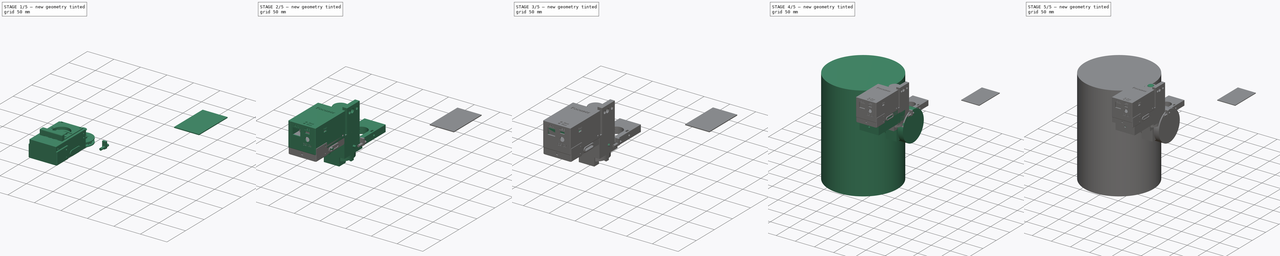
[diagram: build sequence overview — one tinted view per stage of 5, left to right]
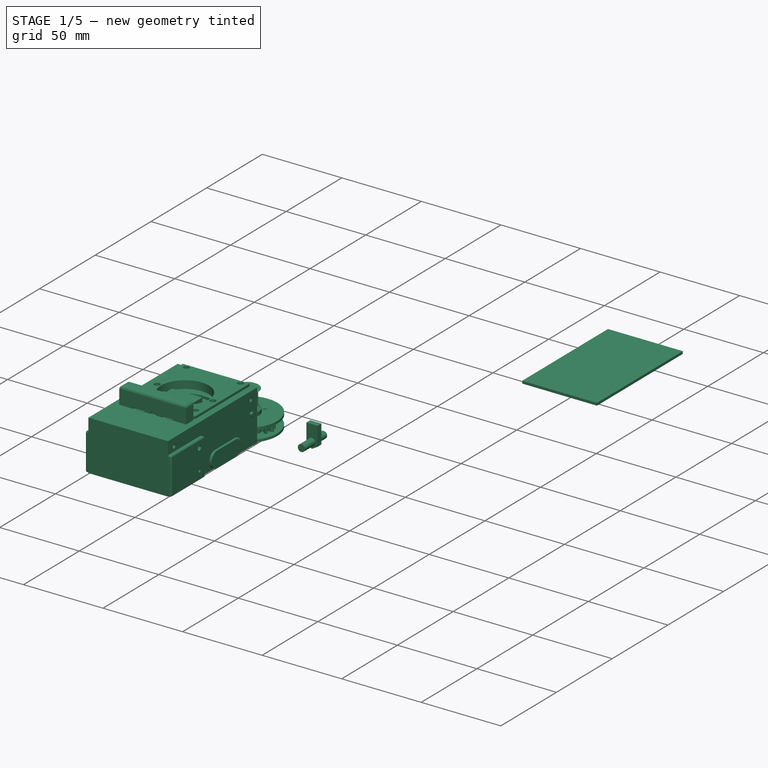
[diagram: stage 1 of 5 — iso view after this stage's code; geometry added in this stage tinted green]
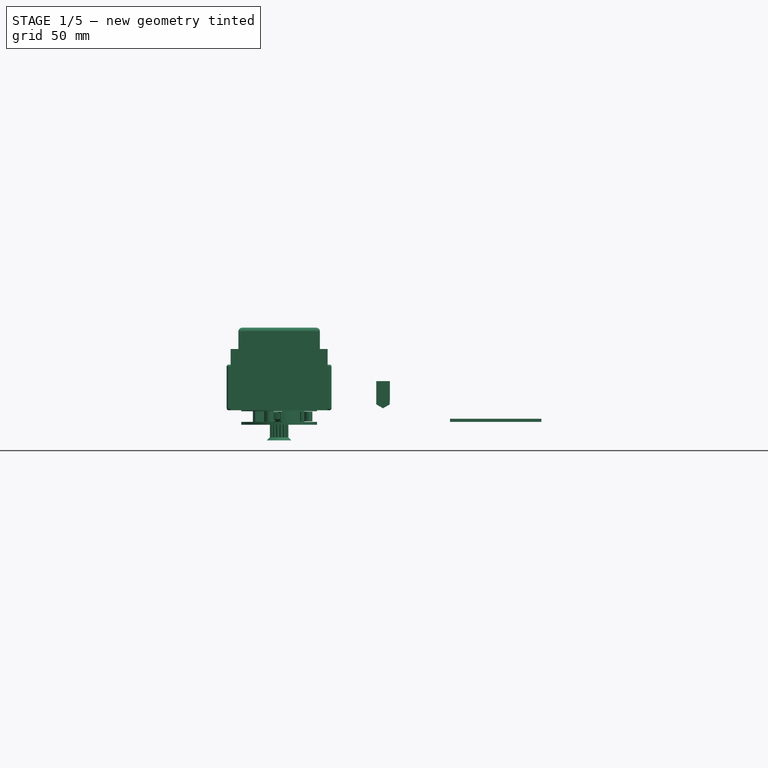
[diagram: stage 1 of 5 — front view after this stage's code; geometry added in this stage tinted green]
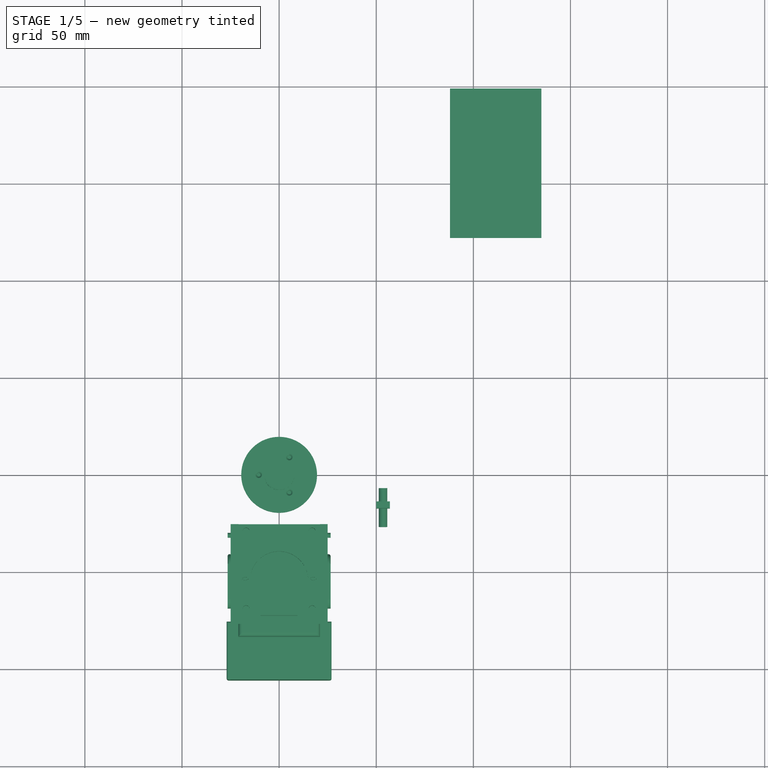
[diagram: stage 1 of 5 — top view after this stage's code; geometry added in this stage tinted green]
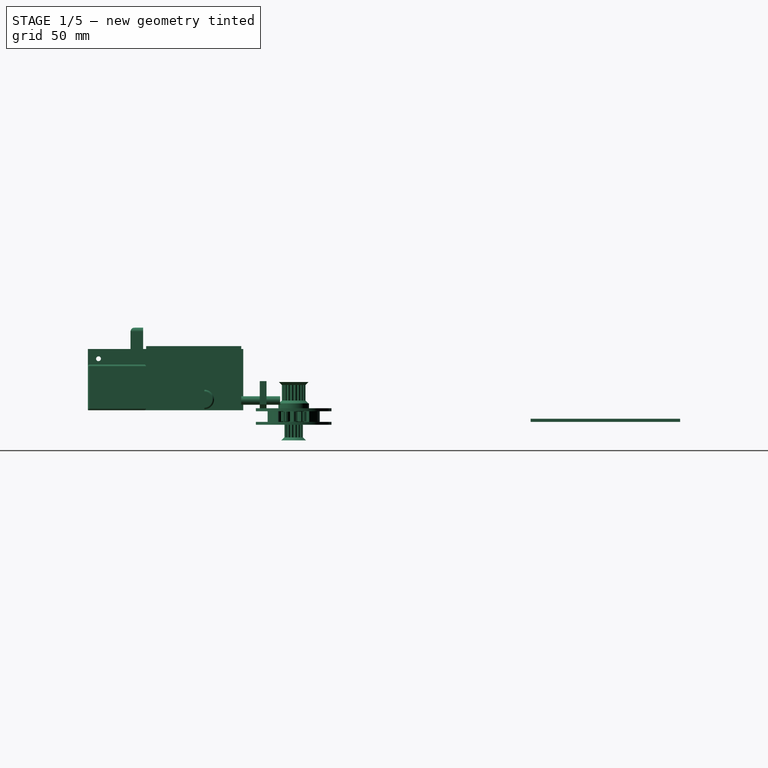
[diagram: stage 1 of 5 — right view after this stage's code; geometry added in this stage tinted green]
FCSTD DOCUMENT  (FreeCAD 0.19R24291 (Git))
Label: 28BYJ-fokuser
License: All rights reserved
LicenseURL: http://en.wikipedia.org/wiki/All_rights_reserved
objects: Part::Feature×782, Part::Cylinder×401, Part::Box×225, Part::MultiFuse×165, Part::Cut×79, Part::Extrusion×34, Part::Fillet×32, App::Part×28, Sketcher::SketchObject×24, Part::FeaturePython×10, Part::Part2DObjectPython×10, Part::Chamfer×5, Part::Sphere×1
note: 1768 computed .brp shape members not serialized (recipe doc carries the construction recipe); baked Part::Feature solids carry a one-line shape summary decoded from their .brp

FEATURE [App::Part] Part018  label="GSO"
  Group = -> [Fillet028003005,Cylinder112024025003003006010004276004,Cylinder112024025003003006010004264,Cylinder112024025003003006010004276005,Cylinder112024025003003006010004276,Cylinder112024025003003006010004276003,Cylinder112024025003003006010004276006,Cylinder112024025003003006010004276007,Fusion005043005007002078054,Fusion005043005007002078053,Cylinder112024025003003006010004263,+94 more]
  Origin = -> Origin018
FEATURE [Part::Feature] Shape312
  shape: bbox 0.6 x 0.6 x 2e-07 mm, 0 faces, 0 solids (baked)
FEATURE [Part::Feature] Shape292
  shape: bbox 2e-07 x 10.17 x 2e-07 mm, 0 faces, 0 solids (baked)
FEATURE [Part::Feature] Shape315
  shape: bbox 3.2 x 1.594 x 2e-07 mm, 0 faces, 0 solids (baked)
FEATURE [Part::Feature] Shape326
  shape: bbox 3 x 3 x 2e-07 mm, 0 faces, 0 solids (baked)
FEATURE [Part::Feature] Shape328
  shape: bbox 0.9 x 0.9 x 2e-07 mm, 0 faces, 0 solids (baked)
FEATURE [Part::Feature] Shape330
  shape: bbox 0.9 x 0.9 x 2e-07 mm, 0 faces, 0 solids (baked)
FEATURE [Part::Feature] Shape321
  shape: bbox 3.5 x 3.5 x 2e-07 mm, 0 faces, 0 solids (baked)
FEATURE [Part::Feature] Shape337
  shape: bbox 1.524 x 1.524 x 2e-07 mm, 0 faces, 0 solids (baked)
FEATURE [Part::Feature] Shape285
  shape: bbox 2e-07 x 15.5 x 2e-07 mm, 0 faces, 0 solids (baked)
FEATURE [Part::Feature] Shape320
  shape: bbox 3 x 3 x 2e-07 mm, 0 faces, 0 solids (baked)
FEATURE [Part::Feature] Shape313
  shape: bbox 4.4 x 2.2 x 2e-07 mm, 0 faces, 0 solids (baked)
FEATURE [Part::Feature] Shape332
  shape: bbox 0.9 x 0.9 x 2e-07 mm, 0 faces, 0 solids (baked)
FEATURE [Part::Feature] Shape283
  shape: bbox 2e-07 x 5.08 x 2e-07 mm, 0 faces, 0 solids (baked)
FEATURE [Part::Feature] Shape297
  shape: bbox 2e-07 x 1.016 x 2e-07 mm, 0 faces, 0 solids (baked)
FEATURE [Part::Feature] Shape317
  shape: bbox 12 x 12 x 2e-07 mm, 0 faces, 0 solids (baked)
FEATURE [Part::Feature] Shape343
  shape: bbox 1.524 x 1.524 x 2e-07 mm, 0 faces, 0 solids (baked)
FEATURE [Part::Feature] Shape336
  shape: bbox 0.9144 x 0.9144 x 2e-07 mm, 0 faces, 0 solids (baked)
FEATURE [Part::Feature] Shape344
  shape: bbox 0.9144 x 0.9144 x 2e-07 mm, 0 faces, 0 solids (baked)
FEATURE [Part::Feature] Shape323
  shape: bbox 3.5 x 3.5 x 2e-07 mm, 0 faces, 0 solids (baked)
FEATURE [Part::Feature] Shape333
  shape: bbox 1.651 x 1.651 x 2e-07 mm, 0 faces, 0 solids (baked)
FEATURE [Part::Feature] Shape290
  shape: bbox 7.517 x 2e-07 x 2e-07 mm, 0 faces, 0 solids (baked)
FEATURE [Part::Feature] Shape309
  shape: bbox 6.1 x 3.154 x 2e-07 mm, 0 faces, 0 solids (baked)
FEATURE [Part::Feature] Shape345
  shape: bbox 1.524 x 1.524 x 2e-07 mm, 0 faces, 0 solids (baked)
FEATURE [Part::Feature] Shape331
  shape: bbox 1.651 x 1.651 x 2e-07 mm, 0 faces, 0 solids (baked)
FEATURE [Part::Feature] Shape346
  shape: bbox 0.9144 x 0.9144 x 2e-07 mm, 0 faces, 0 solids (baked)
FEATURE [Part::Feature] Shape291
  shape: bbox 7.513 x 2e-07 x 2e-07 mm, 0 faces, 0 solids (baked)
FEATURE [Part::Feature] Shape293
  shape: bbox 7.513 x 2e-07 x 2e-07 mm, 0 faces, 0 solids (baked)
FEATURE [Part::Feature] Shape308
  shape: bbox 9.758 x 8.689 x 2e-07 mm, 0 faces, 0 solids (baked)
FEATURE [Part::Feature] Shape286
  shape: bbox 2e-07 x 15.5 x 2e-07 mm, 0 faces, 0 solids (baked)
FEATURE [Part::Feature] Shape287
  shape: bbox 18.16 x 2e-07 x 2e-07 mm, 0 faces, 0 solids (baked)
FEATURE [Part::Feature] Shape299
  shape: bbox 2e-07 x 2.032 x 2e-07 mm, 0 faces, 0 solids (baked)
FEATURE [Part::Feature] Shape294
  shape: bbox 7.517 x 2e-07 x 2e-07 mm, 0 faces, 0 solids (baked)
FEATURE [Part::Feature] Shape304
  shape: bbox 4 x 3.547 x 2e-07 mm, 0 faces, 0 solids (baked)
FEATURE [Part::Feature] Shape284
  shape: bbox 18.16 x 2e-07 x 2e-07 mm, 0 faces, 0 solids (baked)
FEATURE [Part::Feature] Shape302
  shape: bbox 1.27 x 2e-07 x 2e-07 mm, 0 faces, 0 solids (baked)
FEATURE [Part::Feature] Shape295
  shape: bbox 1.016 x 2e-07 x 2e-07 mm, 0 faces, 0 solids (baked)
FEATURE [Part::Feature] Shape305
  shape: bbox 0.6 x 0.6 x 2e-07 mm, 0 faces, 0 solids (baked)
FEATURE [Part::Feature] Shape306
  shape: bbox 0.25 x 0.25 x 2e-07 mm, 0 faces, 0 solids (baked)
FEATURE [Part::Feature] Shape310
  shape: bbox 0.3 x 0.3 x 2e-07 mm, 0 faces, 0 solids (baked)
FEATURE [Part::Feature] Shape314
  shape: bbox 4.4 x 2.2 x 2e-07 mm, 0 faces, 0 solids (baked)
FEATURE [Part::Feature] Shape301
  shape: bbox 2e-07 x 0.762 x 2e-07 mm, 0 faces, 0 solids (baked)
FEATURE [Part::Feature] Shape318
  shape: bbox 2.54 x 2.54 x 2e-07 mm, 0 faces, 0 solids (baked)
FEATURE [Part::Feature] Shape303
  shape: bbox 4 x 3.547 x 2e-07 mm, 0 faces, 0 solids (baked)
FEATURE [Part::Feature] Shape322
  shape: bbox 3 x 3 x 2e-07 mm, 0 faces, 0 solids (baked)
FEATURE [Part::Feature] Shape288
  shape: bbox 7.513 x 2e-07 x 2e-07 mm, 0 faces, 0 solids (baked)
FEATURE [Part::Feature] Shape289
  shape: bbox 7.521 x 2e-07 x 2e-07 mm, 0 faces, 0 solids (baked)
FEATURE [Part::Feature] Shape298
  shape: bbox 1.016 x 2e-07 x 2e-07 mm, 0 faces, 0 solids (baked)
FEATURE [Part::Feature] Shape300
  shape: bbox 2e-07 x 0.254 x 2e-07 mm, 0 faces, 0 solids (baked)
FEATURE [Part::Feature] Shape296
  shape: bbox 2e-07 x 1.016 x 2e-07 mm, 0 faces, 0 solids (baked)
FEATURE [Part::Feature] Shape307
  shape: bbox 1.27 x 0.635 x 2e-07 mm, 0 faces, 0 solids (baked)
FEATURE [Part::Feature] Shape311
  shape: bbox 1.27 x 0.635 x 2e-07 mm, 0 faces, 0 solids (baked)
FEATURE [Part::Feature] Shape316
  shape: bbox 3.2 x 1.594 x 2e-07 mm, 0 faces, 0 solids (baked)
FEATURE [Part::Feature] Shape319
  shape: bbox 8 x 8 x 2e-07 mm, 0 faces, 0 solids (baked)
FEATURE [Part::Feature] Shape324
  shape: bbox 3 x 3 x 2e-07 mm, 0 faces, 0 solids (baked)
FEATURE [Part::Feature] Shape325
  shape: bbox 3.5 x 3.5 x 2e-07 mm, 0 faces, 0 solids (baked)
FEATURE [Part::Feature] Shape327
  shape: bbox 3.5 x 3.5 x 2e-07 mm, 0 faces, 0 solids (baked)
FEATURE [Part::Feature] Shape329
  shape: bbox 1.651 x 1.651 x 2e-07 mm, 0 faces, 0 solids (baked)
FEATURE [Part::Feature] Shape334
  shape: bbox 0.9 x 0.9 x 2e-07 mm, 0 faces, 0 solids (baked)
FEATURE [Part::Feature] Shape335
  shape: bbox 1.651 x 1.651 x 2e-07 mm, 0 faces, 0 solids (baked)
FEATURE [Part::Feature] Shape339
  shape: bbox 1.524 x 1.524 x 2e-07 mm, 0 faces, 0 solids (baked)
FEATURE [Part::Feature] Shape338
  shape: bbox 0.9144 x 0.9144 x 2e-07 mm, 0 faces, 0 solids (baked)
FEATURE [Part::Feature] Shape340
  shape: bbox 0.9144 x 0.9144 x 2e-07 mm, 0 faces, 0 solids (baked)
FEATURE [Part::Feature] Shape341
  shape: bbox 1.524 x 1.524 x 2e-07 mm, 0 faces, 0 solids (baked)
FEATURE [Part::Feature] Shape342
  shape: bbox 0.9144 x 0.9144 x 2e-07 mm, 0 faces, 0 solids (baked)
FEATURE [Part::Feature] Shape365
  shape: bbox 1.575 x 1.575 x 2e-07 mm, 0 faces, 0 solids (baked)
FEATURE [Part::Feature] Shape369
  shape: bbox 1.905 x 1.905 x 2e-07 mm, 0 faces, 0 solids (baked)
FEATURE [Part::Feature] Shape374
  shape: bbox 1 x 1 x 2e-07 mm, 0 faces, 0 solids (baked)
FEATURE [Part::Feature] Shape361
  shape: bbox 1.575 x 1.575 x 2e-07 mm, 0 faces, 0 solids (baked)
FEATURE [Part::Feature] Shape375
  shape: bbox 2.159 x 2.159 x 2e-07 mm, 0 faces, 0 solids (baked)
FEATURE [Part::Feature] Shape356
  shape: bbox 1.016 x 1.016 x 2e-07 mm, 0 faces, 0 solids (baked)
FEATURE [Part::Feature] Shape353
  shape: bbox 1.88 x 1.88 x 2e-07 mm, 0 faces, 0 solids (baked)
FEATURE [Part::Feature] Shape370
  shape: bbox 1 x 1 x 2e-07 mm, 0 faces, 0 solids (baked)
FEATURE [Part::Feature] Shape352
  shape: bbox 1.016 x 1.016 x 2e-07 mm, 0 faces, 0 solids (baked)
FEATURE [Part::Feature] Shape376
  shape: bbox 1 x 1 x 2e-07 mm, 0 faces, 0 solids (baked)
FEATURE [Part::Feature] Shape350
  shape: bbox 1.016 x 1.016 x 2e-07 mm, 0 faces, 0 solids (baked)
FEATURE [Part::Feature] Shape358
  shape: bbox 0.889 x 0.889 x 2e-07 mm, 0 faces, 0 solids (baked)
FEATURE [Part::Feature] Shape377
  shape: bbox 2.159 x 2.159 x 2e-07 mm, 0 faces, 0 solids (baked)
FEATURE [Part::Feature] Shape351
  shape: bbox 1.88 x 1.88 x 2e-07 mm, 0 faces, 0 solids (baked)
FEATURE [Part::Feature] Shape378
  shape: bbox 1.2 x 1.2 x 2e-07 mm, 0 faces, 0 solids (baked)
FEATURE [Part::Feature] Shape379
  shape: bbox 1.8 x 1.8 x 2e-07 mm, 0 faces, 0 solids (baked)
FEATURE [Part::Feature] Shape363
  shape: bbox 1.575 x 1.575 x 2e-07 mm, 0 faces, 0 solids (baked)
FEATURE [Part::Feature] Shape380
  shape: bbox 1.2 x 1.2 x 2e-07 mm, 0 faces, 0 solids (baked)
FEATURE [Part::Feature] Shape381
  shape: bbox 1.8 x 1.8 x 2e-07 mm, 0 faces, 0 solids (baked)
FEATURE [Part::Feature] Shape382
  shape: bbox 0.9 x 0.9 x 2e-07 mm, 0 faces, 0 solids (baked)
FEATURE [Part::Feature] Shape383
  shape: bbox 1.5 x 1.5 x 2e-07 mm, 0 faces, 0 solids (baked)
FEATURE [Part::Feature] Shape384
  shape: bbox 0.9 x 0.9 x 2e-07 mm, 0 faces, 0 solids (baked)
FEATURE [Part::Feature] Shape385
  shape: bbox 1.5 x 1.5 x 2e-07 mm, 0 faces, 0 solids (baked)
FEATURE [Part::Feature] Shape372
  shape: bbox 1 x 1 x 2e-07 mm, 0 faces, 0 solids (baked)
FEATURE [Part::Feature] Shape360
  shape: bbox 0.889 x 0.889 x 2e-07 mm, 0 faces, 0 solids (baked)
FEATURE [Part::Feature] Shape362
  shape: bbox 0.889 x 0.889 x 2e-07 mm, 0 faces, 0 solids (baked)
FEATURE [Part::Feature] Shape367
  shape: bbox 1.905 x 1.905 x 2e-07 mm, 0 faces, 0 solids (baked)
FEATURE [Part::Feature] Shape386
  shape: bbox 0.9 x 0.9 x 2e-07 mm, 0 faces, 0 solids (baked)
FEATURE [Part::Feature] Shape357
  shape: bbox 1.88 x 1.88 x 2e-07 mm, 0 faces, 0 solids (baked)
FEATURE [Part::Feature] Shape348
  shape: bbox 0.9144 x 0.9144 x 2e-07 mm, 0 faces, 0 solids (baked)
FEATURE [Part::Feature] Shape347
  shape: bbox 1.524 x 1.524 x 2e-07 mm, 0 faces, 0 solids (baked)
FEATURE [Part::Feature] Shape355
  shape: bbox 1.88 x 1.88 x 2e-07 mm, 0 faces, 0 solids (baked)
FEATURE [Part::Feature] Shape359
  shape: bbox 1.575 x 1.575 x 2e-07 mm, 0 faces, 0 solids (baked)
FEATURE [Part::Feature] Shape368
  shape: bbox 1.118 x 1.118 x 2e-07 mm, 0 faces, 0 solids (baked)
FEATURE [Part::Feature] Shape366
  shape: bbox 1.118 x 1.118 x 2e-07 mm, 0 faces, 0 solids (baked)
FEATURE [Part::Feature] Shape364
  shape: bbox 0.889 x 0.889 x 2e-07 mm, 0 faces, 0 solids (baked)
FEATURE [Part::Feature] Shape371
  shape: bbox 2.159 x 2.159 x 2e-07 mm, 0 faces, 0 solids (baked)
FEATURE [Part::Feature] Shape349
  shape: bbox 1.524 x 1.524 x 2e-07 mm, 0 faces, 0 solids (baked)
FEATURE [Part::Feature] Shape354
  shape: bbox 1.016 x 1.016 x 2e-07 mm, 0 faces, 0 solids (baked)
FEATURE [Part::Feature] Shape373
  shape: bbox 2.159 x 2.159 x 2e-07 mm, 0 faces, 0 solids (baked)
FEATURE [Part::Feature] Shape431
  shape: bbox 1.5 x 1.5 x 2e-07 mm, 0 faces, 0 solids (baked)
FEATURE [Part::Feature] Shape436
  shape: bbox 0.9144 x 0.9144 x 2e-07 mm, 0 faces, 0 solids (baked)
FEATURE [Part::Feature] Shape438
  shape: bbox 0.9144 x 0.9144 x 2e-07 mm, 0 faces, 0 solids (baked)
FEATURE [Part::Feature] Shape441
  shape: bbox 1.524 x 1.524 x 2e-07 mm, 0 faces, 0 solids (baked)
FEATURE [Part::Feature] Shape408
  shape: bbox 0.9 x 0.9 x 2e-07 mm, 0 faces, 0 solids (baked)
FEATURE [Part::Feature] Shape413
  shape: bbox 1.5 x 1.5 x 2e-07 mm, 0 faces, 0 solids (baked)
FEATURE [Part::Feature] Shape415
  shape: bbox 1.5 x 1.5 x 2e-07 mm, 0 faces, 0 solids (baked)
FEATURE [Part::Feature] Shape428
  shape: bbox 0.9 x 0.9 x 2e-07 mm, 0 faces, 0 solids (baked)
FEATURE [Part::Feature] Shape414
  shape: bbox 0.9 x 0.9 x 2e-07 mm, 0 faces, 0 solids (baked)
FEATURE [Part::Feature] Shape439
  shape: bbox 1.524 x 1.524 x 2e-07 mm, 0 faces, 0 solids (baked)
FEATURE [Part::Feature] Shape393
  shape: bbox 1.5 x 1.5 x 2e-07 mm, 0 faces, 0 solids (baked)
FEATURE [Part::Feature] Shape390
  shape: bbox 0.9 x 0.9 x 2e-07 mm, 0 faces, 0 solids (baked)
FEATURE [Part::Feature] Shape420
  shape: bbox 0.9 x 0.9 x 2e-07 mm, 0 faces, 0 solids (baked)
FEATURE [Part::Feature] Shape419
  shape: bbox 1.5 x 1.5 x 2e-07 mm, 0 faces, 0 solids (baked)
FEATURE [Part::Feature] Shape394
  shape: bbox 0.9 x 0.9 x 2e-07 mm, 0 faces, 0 solids (baked)
FEATURE [Part::Feature] Shape396
  shape: bbox 0.9 x 0.9 x 2e-07 mm, 0 faces, 0 solids (baked)
FEATURE [Part::Feature] Shape401
  shape: bbox 1.5 x 1.5 x 2e-07 mm, 0 faces, 0 solids (baked)
FEATURE [Part::Feature] Shape387
  shape: bbox 1.5 x 1.5 x 2e-07 mm, 0 faces, 0 solids (baked)
FEATURE [Part::Feature] Shape388
  shape: bbox 0.9 x 0.9 x 2e-07 mm, 0 faces, 0 solids (baked)
FEATURE [Part::Feature] Shape398
  shape: bbox 0.9 x 0.9 x 2e-07 mm, 0 faces, 0 solids (baked)
FEATURE [Part::Feature] Shape399
  shape: bbox 1.5 x 1.5 x 2e-07 mm, 0 faces, 0 solids (baked)
FEATURE [Part::Feature] Shape405
  shape: bbox 1.5 x 1.5 x 2e-07 mm, 0 faces, 0 solids (baked)
FEATURE [Part::Feature] Shape412
  shape: bbox 0.9 x 0.9 x 2e-07 mm, 0 faces, 0 solids (baked)
FEATURE [Part::Feature] Shape403
  shape: bbox 1.5 x 1.5 x 2e-07 mm, 0 faces, 0 solids (baked)
FEATURE [Part::Feature] Shape421
  shape: bbox 1.5 x 1.5 x 2e-07 mm, 0 faces, 0 solids (baked)
FEATURE [Part::Feature] Shape424
  shape: bbox 0.9 x 0.9 x 2e-07 mm, 0 faces, 0 solids (baked)
FEATURE [Part::Feature] Shape425
  shape: bbox 1.5 x 1.5 x 2e-07 mm, 0 faces, 0 solids (baked)
FEATURE [Part::Feature] Shape426
  shape: bbox 0.9 x 0.9 x 2e-07 mm, 0 faces, 0 solids (baked)
FEATURE [Part::Feature] Shape429
  shape: bbox 1.5 x 1.5 x 2e-07 mm, 0 faces, 0 solids (baked)
FEATURE [Part::Feature] Shape432
  shape: bbox 0.9 x 0.9 x 2e-07 mm, 0 faces, 0 solids (baked)
FEATURE [Part::Feature] Shape391
  shape: bbox 1.5 x 1.5 x 2e-07 mm, 0 faces, 0 solids (baked)
FEATURE [Part::Feature] Shape400
  shape: bbox 0.9 x 0.9 x 2e-07 mm, 0 faces, 0 solids (baked)
FEATURE [Part::Feature] Shape406
  shape: bbox 0.9 x 0.9 x 2e-07 mm, 0 faces, 0 solids (baked)
FEATURE [Part::Feature] Shape389
  shape: bbox 1.5 x 1.5 x 2e-07 mm, 0 faces, 0 solids (baked)
FEATURE [Part::Feature] Shape418
  shape: bbox 0.9 x 0.9 x 2e-07 mm, 0 faces, 0 solids (baked)
FEATURE [Part::Feature] Shape422
  shape: bbox 0.9 x 0.9 x 2e-07 mm, 0 faces, 0 solids (baked)
FEATURE [Part::Feature] Shape402
  shape: bbox 0.9 x 0.9 x 2e-07 mm, 0 faces, 0 solids (baked)
FEATURE [Part::Feature] Shape434
  shape: bbox 0.9 x 0.9 x 2e-07 mm, 0 faces, 0 solids (baked)
FEATURE [Part::Feature] Shape435
  shape: bbox 1.5 x 1.5 x 2e-07 mm, 0 faces, 0 solids (baked)
FEATURE [Part::Feature] Shape407
  shape: bbox 1.5 x 1.5 x 2e-07 mm, 0 faces, 0 solids (baked)
FEATURE [Part::Feature] Shape416
  shape: bbox 0.9 x 0.9 x 2e-07 mm, 0 faces, 0 solids (baked)
FEATURE [Part::Feature] Shape410
  shape: bbox 0.9 x 0.9 x 2e-07 mm, 0 faces, 0 solids (baked)
FEATURE [Part::Feature] Shape411
  shape: bbox 1.5 x 1.5 x 2e-07 mm, 0 faces, 0 solids (baked)
FEATURE [Part::Feature] Shape409
  shape: bbox 1.5 x 1.5 x 2e-07 mm, 0 faces, 0 solids (baked)
FEATURE [Part::Feature] Shape423
  shape: bbox 1.5 x 1.5 x 2e-07 mm, 0 faces, 0 solids (baked)
FEATURE [Part::Feature] Shape427
  shape: bbox 1.5 x 1.5 x 2e-07 mm, 0 faces, 0 solids (baked)
FEATURE [Part::Feature] Shape417
  shape: bbox 1.5 x 1.5 x 2e-07 mm, 0 faces, 0 solids (baked)
FEATURE [Part::Feature] Shape430
  shape: bbox 0.9 x 0.9 x 2e-07 mm, 0 faces, 0 solids (baked)
FEATURE [Part::Feature] Shape404
  shape: bbox 0.9 x 0.9 x 2e-07 mm, 0 faces, 0 solids (baked)
FEATURE [Part::Feature] Shape392
  shape: bbox 0.9 x 0.9 x 2e-07 mm, 0 faces, 0 solids (baked)
FEATURE [Part::Feature] Shape395
  shape: bbox 1.5 x 1.5 x 2e-07 mm, 0 faces, 0 solids (baked)
FEATURE [Part::Feature] Shape397
  shape: bbox 1.5 x 1.5 x 2e-07 mm, 0 faces, 0 solids (baked)
FEATURE [Part::Feature] Shape433
  shape: bbox 1.5 x 1.5 x 2e-07 mm, 0 faces, 0 solids (baked)
FEATURE [Part::Feature] Shape437
  shape: bbox 1.524 x 1.524 x 2e-07 mm, 0 faces, 0 solids (baked)
FEATURE [Part::Feature] Shape440
  shape: bbox 0.9144 x 0.9144 x 2e-07 mm, 0 faces, 0 solids (baked)
FEATURE [Part::Feature] Shape442
  shape: bbox 0.9144 x 0.9144 x 2e-07 mm, 0 faces, 0 solids (baked)
FEATURE [Part::Feature] Shape443
  shape: bbox 1.524 x 1.524 x 2e-07 mm, 0 faces, 0 solids (baked)
FEATURE [Part::Feature] Shape445
  shape: bbox 1.524 x 1.524 x 2e-07 mm, 0 faces, 0 solids (baked)
FEATURE [Part::Feature] Shape446
  shape: bbox 0.9144 x 0.9144 x 2e-07 mm, 0 faces, 0 solids (baked)
FEATURE [Part::Feature] Shape447
  shape: bbox 1.524 x 1.524 x 2e-07 mm, 0 faces, 0 solids (baked)
FEATURE [Part::Feature] Shape448
  shape: bbox 0.9144 x 0.9144 x 2e-07 mm, 0 faces, 0 solids (baked)
FEATURE [Part::Feature] Shape449
  shape: bbox 1.524 x 1.524 x 2e-07 mm, 0 faces, 0 solids (baked)
FEATURE [Part::Feature] Shape444
  shape: bbox 0.9144 x 0.9144 x 2e-07 mm, 0 faces, 0 solids (baked)
FEATURE [Part::Feature] Shape450
  shape: bbox 0.9144 x 0.9144 x 2e-07 mm, 0 faces, 0 solids (baked)
FEATURE [Part::Feature] Shape477
  shape: bbox 1.524 x 1.524 x 2e-07 mm, 0 faces, 0 solids (baked)
FEATURE [Part::Feature] Shape482
  shape: bbox 0.9144 x 0.9144 x 2e-07 mm, 0 faces, 0 solids (baked)
FEATURE [Part::Feature] Shape463
  shape: bbox 1.88 x 1.88 x 2e-07 mm, 0 faces, 0 solids (baked)
FEATURE [Part::Feature] Shape457
  shape: bbox 2 x 2 x 2e-07 mm, 0 faces, 0 solids (baked)
FEATURE [Part::Feature] Shape487
  shape: bbox 1.524 x 1.524 x 2e-07 mm, 0 faces, 0 solids (baked)
FEATURE [Part::Feature] Shape452
  shape: bbox 0.9 x 0.9 x 2e-07 mm, 0 faces, 0 solids (baked)
FEATURE [Part::Feature] Shape468
  shape: bbox 0.8992 x 0.8992 x 2e-07 mm, 0 faces, 0 solids (baked)
FEATURE [Part::Feature] Shape451
  shape: bbox 1.524 x 1.524 x 2e-07 mm, 0 faces, 0 solids (baked)
FEATURE [Part::Feature] Shape483
  shape: bbox 1.524 x 1.524 x 2e-07 mm, 0 faces, 0 solids (baked)
FEATURE [Part::Feature] Shape488
  shape: bbox 0.9144 x 0.9144 x 2e-07 mm, 0 faces, 0 solids (baked)
FEATURE [Part::Feature] Shape459
  shape: bbox 2 x 2 x 2e-07 mm, 0 faces, 0 solids (baked)
FEATURE [Part::Feature] Shape465
  shape: bbox 1.7 x 1.7 x 2e-07 mm, 0 faces, 0 solids (baked)
FEATURE [Part::Feature] Shape460
  shape: bbox 0.8992 x 0.8992 x 2e-07 mm, 0 faces, 0 solids (baked)
FEATURE [Part::Feature] Shape454
  shape: bbox 0.9 x 0.9 x 2e-07 mm, 0 faces, 0 solids (baked)
FEATURE [Part::Feature] Shape467
  shape: bbox 1.88 x 1.88 x 2e-07 mm, 0 faces, 0 solids (baked)
FEATURE [Part::Feature] Shape469
  shape: bbox 1.88 x 1.88 x 2e-07 mm, 0 faces, 0 solids (baked)
FEATURE [Part::Feature] Shape462
  shape: bbox 0.8992 x 0.8992 x 2e-07 mm, 0 faces, 0 solids (baked)
FEATURE [Part::Feature] Shape472
  shape: bbox 0.8992 x 0.8992 x 2e-07 mm, 0 faces, 0 solids (baked)
FEATURE [Part::Feature] Shape484
  shape: bbox 0.9144 x 0.9144 x 2e-07 mm, 0 faces, 0 solids (baked)
FEATURE [Part::Feature] Shape489
  shape: bbox 1.524 x 1.524 x 2e-07 mm, 0 faces, 0 solids (baked)
FEATURE [Part::Feature] Shape474
  shape: bbox 0.9144 x 0.9144 x 2e-07 mm, 0 faces, 0 solids (baked)
FEATURE [Part::Feature] Shape475
  shape: bbox 1.524 x 1.524 x 2e-07 mm, 0 faces, 0 solids (baked)
FEATURE [Part::Feature] Shape478
  shape: bbox 0.9144 x 0.9144 x 2e-07 mm, 0 faces, 0 solids (baked)
FEATURE [Part::Feature] Shape480
  shape: bbox 0.9144 x 0.9144 x 2e-07 mm, 0 faces, 0 solids (baked)
FEATURE [Part::Feature] Shape476
  shape: bbox 0.9144 x 0.9144 x 2e-07 mm, 0 faces, 0 solids (baked)
FEATURE [Part::Feature] Shape473
  shape: bbox 1.88 x 1.88 x 2e-07 mm, 0 faces, 0 solids (baked)
FEATURE [Part::Feature] Shape458
  shape: bbox 1.3 x 1.3 x 2e-07 mm, 0 faces, 0 solids (baked)
FEATURE [Part::Feature] Shape479
  shape: bbox 1.524 x 1.524 x 2e-07 mm, 0 faces, 0 solids (baked)
FEATURE [Part::Feature] Shape481
  shape: bbox 1.524 x 1.524 x 2e-07 mm, 0 faces, 0 solids (baked)
FEATURE [Part::Feature] Shape485
  shape: bbox 1.524 x 1.524 x 2e-07 mm, 0 faces, 0 solids (baked)
FEATURE [Part::Feature] Shape464
  shape: bbox 1.1 x 1.1 x 2e-07 mm, 0 faces, 0 solids (baked)
FEATURE [Part::Feature] Shape453
  shape: bbox 1.8 x 1.8 x 2e-07 mm, 0 faces, 0 solids (baked)
FEATURE [Part::Feature] Shape486
  shape: bbox 0.9144 x 0.9144 x 2e-07 mm, 0 faces, 0 solids (baked)
FEATURE [Part::Feature] Shape455
  shape: bbox 1.8 x 1.8 x 2e-07 mm, 0 faces, 0 solids (baked)
FEATURE [Part::Feature] Shape470
  shape: bbox 0.8992 x 0.8992 x 2e-07 mm, 0 faces, 0 solids (baked)
FEATURE [Part::Feature] Shape456
  shape: bbox 1.3 x 1.3 x 2e-07 mm, 0 faces, 0 solids (baked)
FEATURE [Part::Feature] Shape490
  shape: bbox 0.9144 x 0.9144 x 2e-07 mm, 0 faces, 0 solids (baked)
FEATURE [Part::Feature] Shape471
  shape: bbox 1.88 x 1.88 x 2e-07 mm, 0 faces, 0 solids (baked)
FEATURE [Part::Feature] Shape461
  shape: bbox 1.88 x 1.88 x 2e-07 mm, 0 faces, 0 solids (baked)
FEATURE [Part::Feature] Shape466
  shape: bbox 0.8992 x 0.8992 x 2e-07 mm, 0 faces, 0 solids (baked)
FEATURE [Part::Feature] Shape563
  shape: bbox 1.118 x 1.118 x 2e-07 mm, 0 faces, 0 solids (baked)
FEATURE [Part::Feature] Shape579
  shape: bbox 3.3 x 3.3 x 2e-07 mm, 0 faces, 0 solids (baked)
FEATURE [Part::Feature] Shape543
  shape: bbox 1 x 1 x 2e-07 mm, 0 faces, 0 solids (baked)
FEATURE [Part::Feature] Shape568
  shape: bbox 0.9 x 0.9 x 2e-07 mm, 0 faces, 0 solids (baked)
FEATURE [Part::Feature] Shape551
  shape: bbox 2e-07 x 1.88 x 2e-07 mm, 0 faces, 0 solids (baked)
FEATURE [Part::Feature] Shape560
  shape: bbox 1.575 x 2e-07 x 2e-07 mm, 0 faces, 0 solids (baked)
FEATURE [Part::Feature] Shape545
  shape: bbox 1.6 x 2e-07 x 2e-07 mm, 0 faces, 0 solids (baked)
FEATURE [Part::Feature] Shape532
  shape: bbox 1.6 x 0.8 x 2e-07 mm, 0 faces, 0 solids (baked)
FEATURE [Part::Feature] Shape548
  shape: bbox 1.016 x 1.016 x 2e-07 mm, 0 faces, 0 solids (baked)
FEATURE [Part::Feature] Shape552
  shape: bbox 1.88 x 2e-07 x 2e-07 mm, 0 faces, 0 solids (baked)
FEATURE [Part::Feature] Shape539
  shape: bbox 1 x 1 x 2e-07 mm, 0 faces, 0 solids (baked)
FEATURE [Part::Feature] Shape538
  shape: bbox 1.6 x 0.8 x 2e-07 mm, 0 faces, 0 solids (baked)
FEATURE [Part::Feature] Shape561
  shape: bbox 2e-07 x 1.575 x 2e-07 mm, 0 faces, 0 solids (baked)
FEATURE [Part::Feature] Shape541
  shape: bbox 1.6 x 0.8 x 2e-07 mm, 0 faces, 0 solids (baked)
FEATURE [Part::Feature] Shape540
  shape: bbox 1.6 x 0.8 x 2e-07 mm, 0 faces, 0 solids (baked)
FEATURE [Part::Feature] Shape534
  shape: bbox 1.6 x 0.8 x 2e-07 mm, 0 faces, 0 solids (baked)
FEATURE [Part::Feature] Shape557
  shape: bbox 2e-07 x 1.575 x 2e-07 mm, 0 faces, 0 solids (baked)
FEATURE [Part::Feature] Shape558
  shape: bbox 0.889 x 0.889 x 2e-07 mm, 0 faces, 0 solids (baked)
FEATURE [Part::Feature] Shape566
  shape: bbox 1.905 x 2e-07 x 2e-07 mm, 0 faces, 0 solids (baked)
FEATURE [Part::Feature] Shape555
  shape: bbox 2e-07 x 1.575 x 2e-07 mm, 0 faces, 0 solids (baked)
FEATURE [Part::Feature] Shape556
  shape: bbox 1.575 x 2e-07 x 2e-07 mm, 0 faces, 0 solids (baked)
FEATURE [Part::Feature] Shape567
  shape: bbox 2e-07 x 1.905 x 2e-07 mm, 0 faces, 0 solids (baked)
FEATURE [Part::Feature] Shape544
  shape: bbox 2e-07 x 1.6 x 2e-07 mm, 0 faces, 0 solids (baked)
FEATURE [Part::Feature] Shape569
  shape: bbox 1.5 x 2e-07 x 2e-07 mm, 0 faces, 0 solids (baked)
FEATURE [Part::Feature] Shape546
  shape: bbox 2e-07 x 1.6 x 2e-07 mm, 0 faces, 0 solids (baked)
FEATURE [Part::Feature] Shape559
  shape: bbox 2e-07 x 1.575 x 2e-07 mm, 0 faces, 0 solids (baked)
FEATURE [Part::Feature] Shape571
  shape: bbox 1.5 x 2e-07 x 2e-07 mm, 0 faces, 0 solids (baked)
FEATURE [Part::Feature] Shape553
  shape: bbox 0.889 x 0.889 x 2e-07 mm, 0 faces, 0 solids (baked)
FEATURE [Part::Feature] Shape574
  shape: bbox 1.7 x 2e-07 x 2e-07 mm, 0 faces, 0 solids (baked)
FEATURE [Part::Feature] Shape537
  shape: bbox 1.6 x 0.8 x 2e-07 mm, 0 faces, 0 solids (baked)
FEATURE [Part::Feature] Shape575
  shape: bbox 2e-07 x 1.575 x 2e-07 mm, 0 faces, 0 solids (baked)
FEATURE [Part::Feature] Shape550
  shape: bbox 1.88 x 2e-07 x 2e-07 mm, 0 faces, 0 solids (baked)
FEATURE [Part::Feature] Shape564
  shape: bbox 1.905 x 2e-07 x 2e-07 mm, 0 faces, 0 solids (baked)
FEATURE [Part::Feature] Shape576
  shape: bbox 1.7 x 2e-07 x 2e-07 mm, 0 faces, 0 solids (baked)
FEATURE [Part::Feature] Shape577
  shape: bbox 2e-07 x 1.575 x 2e-07 mm, 0 faces, 0 solids (baked)
FEATURE [Part::Feature] Shape535
  shape: bbox 1.6 x 0.8 x 2e-07 mm, 0 faces, 0 solids (baked)
FEATURE [Part::Feature] Shape536
  shape: bbox 1 x 1 x 2e-07 mm, 0 faces, 0 solids (baked)
FEATURE [Part::Feature] Shape570
  shape: bbox 2e-07 x 1.5 x 2e-07 mm, 0 faces, 0 solids (baked)
FEATURE [Part::Feature] Shape533
  shape: bbox 1 x 1 x 2e-07 mm, 0 faces, 0 solids (baked)
FEATURE [Part::Feature] Shape572
  shape: bbox 2e-07 x 1.5 x 2e-07 mm, 0 faces, 0 solids (baked)
FEATURE [Part::Feature] Shape542
  shape: bbox 1 x 1 x 2e-07 mm, 0 faces, 0 solids (baked)
FEATURE [Part::Feature] Shape565
  shape: bbox 2e-07 x 1.905 x 2e-07 mm, 0 faces, 0 solids (baked)
FEATURE [Part::Feature] Shape578
  shape: bbox 0.61 x 0.61 x 2e-07 mm, 0 faces, 0 solids (baked)
FEATURE [Part::Feature] Shape547
  shape: bbox 1.6 x 2e-07 x 2e-07 mm, 0 faces, 0 solids (baked)
FEATURE [Part::Feature] Shape554
  shape: bbox 1.575 x 2e-07 x 2e-07 mm, 0 faces, 0 solids (baked)
FEATURE [Part::Feature] Shape549
  shape: bbox 2e-07 x 1.88 x 2e-07 mm, 0 faces, 0 solids (baked)
FEATURE [Part::Feature] Shape531
  shape: bbox 1.6 x 0.8 x 2e-07 mm, 0 faces, 0 solids (baked)
FEATURE [Part::Feature] Shape562
  shape: bbox 1.575 x 2e-07 x 2e-07 mm, 0 faces, 0 solids (baked)
FEATURE [Part::Feature] Shape573
  shape: bbox 1.1 x 1.1 x 2e-07 mm, 0 faces, 0 solids (baked)
FEATURE [Part::Feature] Shape580
  shape: bbox 3.3 x 3.3 x 2e-07 mm, 0 faces, 0 solids (baked)
FEATURE [Part::Feature] Shape501
  shape: bbox 1.6 x 0.8 x 2e-07 mm, 0 faces, 0 solids (baked)
FEATURE [Part::Feature] Shape507
  shape: bbox 1.6 x 0.8 x 2e-07 mm, 0 faces, 0 solids (baked)
FEATURE [Part::Feature] Shape509
  shape: bbox 1 x 1 x 2e-07 mm, 0 faces, 0 solids (baked)
FEATURE [Part::Feature] Shape493
  shape: bbox 1.524 x 1.524 x 2e-07 mm, 0 faces, 0 solids (baked)
FEATURE [Part::Feature] Shape515
  shape: bbox 1 x 1 x 2e-07 mm, 0 faces, 0 solids (baked)
FEATURE [Part::Feature] Shape504
  shape: bbox 1.6 x 0.8 x 2e-07 mm, 0 faces, 0 solids (baked)
FEATURE [Part::Feature] Shape516
  shape: bbox 1.6 x 0.8 x 2e-07 mm, 0 faces, 0 solids (baked)
FEATURE [Part::Feature] Shape505
  shape: bbox 1.6 x 0.8 x 2e-07 mm, 0 faces, 0 solids (baked)
FEATURE [Part::Feature] Shape514
  shape: bbox 1.6 x 0.8 x 2e-07 mm, 0 faces, 0 solids (baked)
FEATURE [Part::Feature] Shape517
  shape: bbox 1.6 x 0.8 x 2e-07 mm, 0 faces, 0 solids (baked)
FEATURE [Part::Feature] Shape492
  shape: bbox 0.9144 x 0.9144 x 2e-07 mm, 0 faces, 0 solids (baked)
FEATURE [Part::Feature] Shape520
  shape: bbox 1.6 x 0.8 x 2e-07 mm, 0 faces, 0 solids (baked)
FEATURE [Part::Feature] Shape524
  shape: bbox 1 x 1 x 2e-07 mm, 0 faces, 0 solids (baked)
FEATURE [Part::Feature] Shape495
  shape: bbox 1.524 x 1.524 x 2e-07 mm, 0 faces, 0 solids (baked)
FEATURE [Part::Feature] Shape512
  shape: bbox 1 x 1 x 2e-07 mm, 0 faces, 0 solids (baked)
FEATURE [Part::Feature] Shape497
  shape: bbox 1.524 x 1.524 x 2e-07 mm, 0 faces, 0 solids (baked)
FEATURE [Part::Feature] Shape498
  shape: bbox 1.6 x 0.8 x 2e-07 mm, 0 faces, 0 solids (baked)
FEATURE [Part::Feature] Shape499
  shape: bbox 1.6 x 0.8 x 2e-07 mm, 0 faces, 0 solids (baked)
FEATURE [Part::Feature] Shape508
  shape: bbox 1.6 x 0.8 x 2e-07 mm, 0 faces, 0 solids (baked)
FEATURE [Part::Feature] Shape510
  shape: bbox 1.6 x 0.8 x 2e-07 mm, 0 faces, 0 solids (baked)
FEATURE [Part::Feature] Shape494
  shape: bbox 0.9144 x 0.9144 x 2e-07 mm, 0 faces, 0 solids (baked)
FEATURE [Part::Feature] Shape513
  shape: bbox 1.6 x 0.8 x 2e-07 mm, 0 faces, 0 solids (baked)
FEATURE [Part::Feature] Shape518
  shape: bbox 1 x 1 x 2e-07 mm, 0 faces, 0 solids (baked)
FEATURE [Part::Feature] Shape522
  shape: bbox 1.6 x 0.8 x 2e-07 mm, 0 faces, 0 solids (baked)
FEATURE [Part::Feature] Shape502
  shape: bbox 1.6 x 0.8 x 2e-07 mm, 0 faces, 0 solids (baked)
FEATURE [Part::Feature] Shape525
  shape: bbox 1.6 x 0.8 x 2e-07 mm, 0 faces, 0 solids (baked)
FEATURE [Part::Feature] Shape526
  shape: bbox 1.6 x 0.8 x 2e-07 mm, 0 faces, 0 solids (baked)
FEATURE [Part::Feature] Shape527
  shape: bbox 1 x 1 x 2e-07 mm, 0 faces, 0 solids (baked)
FEATURE [Part::Feature] Shape523
  shape: bbox 1.6 x 0.8 x 2e-07 mm, 0 faces, 0 solids (baked)
FEATURE [Part::Feature] Shape500
  shape: bbox 1 x 1 x 2e-07 mm, 0 faces, 0 solids (baked)
FEATURE [Part::Feature] Shape506
  shape: bbox 1 x 1 x 2e-07 mm, 0 faces, 0 solids (baked)
FEATURE [Part::Feature] Shape511
  shape: bbox 1.6 x 0.8 x 2e-07 mm, 0 faces, 0 solids (baked)
FEATURE [Part::Feature] Shape519
  shape: bbox 1.6 x 0.8 x 2e-07 mm, 0 faces, 0 solids (baked)
FEATURE [Part::Feature] Shape491
  shape: bbox 1.524 x 1.524 x 2e-07 mm, 0 faces, 0 solids (baked)
FEATURE [Part::Feature] Shape528
  shape: bbox 1.6 x 0.8 x 2e-07 mm, 0 faces, 0 solids (baked)
FEATURE [Part::Feature] Shape529
  shape: bbox 1.6 x 0.8 x 2e-07 mm, 0 faces, 0 solids (baked)
FEATURE [Part::Feature] Shape530
  shape: bbox 1 x 1 x 2e-07 mm, 0 faces, 0 solids (baked)
FEATURE [Part::Feature] Shape503
  shape: bbox 1 x 1 x 2e-07 mm, 0 faces, 0 solids (baked)
FEATURE [Part::Feature] Shape521
  shape: bbox 1 x 1 x 2e-07 mm, 0 faces, 0 solids (baked)
FEATURE [Part::Feature] Shape496
  shape: bbox 0.9144 x 0.9144 x 2e-07 mm, 0 faces, 0 solids (baked)
FEATURE [Part::Feature] Shape581
  shape: bbox 1.704 x 2e-07 x 2e-07 mm, 0 faces, 0 solids (baked)
FEATURE [Part::Box] Box021259  label="Krychle248"
  AttacherType = Attacher::AttachEngine3D
  Height = 1.6
  Length = 47
  Placement = pos=(88,122,0) rot=(0,0,1;0rad)
  Width = 77
FEATURE [Part::Cylinder] Cylinder112024025003003006010004276080  label="Válec421"
  Angle = 360
  AttacherType = Attacher::AttachEngine3D
  Height = 53
  Placement = pos=(-26.5,-46,11.5) rot=(0,1,0;1.5708rad)
  Radius = 2.3
FEATURE [Part::Box] Box021266  label="Krychle255"
  AttacherType = Attacher::AttachEngine3D
  Height = 23.5
  Length = 50
  Placement = pos=(-25,-106,6) rot=(0,0,1;0rad)
  Width = 80
FEATURE [Part::Cylinder] Cylinder112024025003003006010004276081  label="Válec422"
  Angle = 360
  AttacherType = Attacher::AttachEngine3D
  Height = 53
  Placement = pos=(-26.5,-64,11.5) rot=(0,1,0;1.5708rad)
  Radius = 5
FEATURE [Part::Box] Box021267  label="Krychle256"
  AttacherType = Attacher::AttachEngine3D
  Height = 10
  Length = 53
  Placement = pos=(-26.5,-64,6.5) rot=(0,0,1;0rad)
  Width = 18
FEATURE [Part::Cylinder] Cylinder112024025003003006010004276082  label="cy060"
  Angle = 360
  AttacherType = Attacher::AttachEngine3D
  Height = 24
  Placement = pos=(-17.5,-53,9) rot=(0,0,1;0rad)
  Radius = 1.8
FEATURE [Part::Cylinder] Cylinder112024025003003006010004276083  label="cy061"
  Angle = 360
  AttacherType = Attacher::AttachEngine3D
  Height = 24
  Placement = pos=(17.5,-53,9) rot=(0,0,1;0rad)
  Radius = 1.8
FEATURE [Part::Cylinder] Cylinder112024025003003006010004276084  label="cy062"
  Angle = 360
  AttacherType = Attacher::AttachEngine3D
  Height = 6
  Placement = pos=(-17.5,-53,18) rot=(0,0,1;0rad)
  Radius = 3.8
FEATURE [Part::Cylinder] Cylinder112024025003003006010004276085  label="cy063"
  Angle = 360
  AttacherType = Attacher::AttachEngine3D
  Height = 6
  Placement = pos=(17.5,-53,18) rot=(0,0,1;0rad)
  Radius = 3.8
FEATURE [Part::Box] Box021268  label="Krychle257"
  AttacherType = Attacher::AttachEngine3D
  Height = 6
  Length = 4
  Placement = pos=(-17.5,-56.8,18) rot=(0,0,1;0rad)
  Width = 7.6
FEATURE [Part::Box] Box021269  label="Krychle258"
  AttacherType = Attacher::AttachEngine3D
  Height = 6
  Length = 4
  Placement = pos=(13.5,-56.8,18) rot=(0,0,1;0rad)
  Width = 7.6
FEATURE [Part::Box] Box021270  label="Krychle259"
  AttacherType = Attacher::AttachEngine3D
  Height = 20
  Length = 19
  Placement = pos=(-9.5,-73,18) rot=(0,0,1;0rad)
  Width = 20
FEATURE [Part::Cylinder] Cylinder112024025003003006010004276086  label="Válec423"
  Angle = 360
  AttacherType = Attacher::AttachEngine3D
  Height = 53
  Placement = pos=(-26.5,-31.5,24.5) rot=(0,1,0;1.5708rad)
  Radius = 1.25
FEATURE [Part::Cylinder] Cylinder112024025003003006010004276087  label="Válec424"
  Angle = 360
  AttacherType = Attacher::AttachEngine3D
  Height = 53
  Placement = pos=(-26.5,-100.5,24.5) rot=(0,1,0;1.5708rad)
  Radius = 1.25
FEATURE [Part::Feature] Fillet028003009001  label="MyfOCUS cOVER001"
  Placement = pos=(0,0,8) rot=(0,0,1;0rad)
  shape: bbox 53 x 83 x 47 mm, 694 faces (baked)
FEATURE [Part::Feature] Cut018020020009027020002003004004026003005007020  label="Pulley-GT2-16_28BYJ--049"
  Placement = pos=(0,0,0) rot=(1,0,0;3.14159rad)
  shape: bbox 12.68 x 12.68 x 11 mm, 393 faces (baked)
FEATURE [Part::Cylinder] Cylinder112024025003003006010004276103  label="cy064"
  Angle = 360
  AttacherType = Attacher::AttachEngine3D
  Height = 6
  Placement = pos=(0,-45,17) rot=(0,0,1;0rad)
  Radius = 12
FEATURE [Part::Feature] Cut018020020009027020002003004004026003005007022  label="Pulley-GT2-16_28BYJ--050"
  Placement = pos=(0,0,0) rot=(1,0,0;3.14159rad)
  shape: bbox 12.68 x 12.68 x 11 mm, 393 faces (baked)
FEATURE [Part::Cylinder] Cylinder112024025003003006010004276104  label="Válec437"
  Angle = 360
  AttacherType = Attacher::AttachEngine3D
  Height = 3
  Placement = pos=(0,0,1.5) rot=(0,0,1;0rad)
  Radius = 6.3
FEATURE [Part::MultiFuse] Fusion005043005007002078086001024
  Shapes = -> [Cut018020020009027020002003004004026003005007022,Cylinder112024025003003006010004276104]
FEATURE [Part::Cylinder] Cylinder112024025003003006010004276105  label="Válec438"
  Angle = 360
  AttacherType = Attacher::AttachEngine3D
  Height = 5
  Placement = pos=(0,0,1.5) rot=(0,0,1;0rad)
  Radius = 2.75
FEATURE [Part::Cut] Cut018020020009027020002003004004026003005007023  label="pastorek001"
  Base = -> Fusion005043005007002078086001024
  Tool = -> Cylinder112024025003003006010004276105
FEATURE [Part::Cylinder] Cylinder112024025003003006010004276106  label="Válec439"
  Angle = 360
  AttacherType = Attacher::AttachEngine3D
  Height = 11
  Placement = pos=(0,0,-9.5) rot=(0,0,1;0rad)
  Radius = 3.9
FEATURE [Part::Cylinder] Cylinder112024025003003006010004276107  label="Válec440"
  Angle = 360
  AttacherType = Attacher::AttachEngine3D
  Height = 11
  Placement = pos=(0,0,-9.5) rot=(0,0,1;0rad)
  Radius = 7
FEATURE [Part::Cut] Cut018020020009027020002003004004026003005007024
  Base = -> Cylinder112024025003003006010004276107
  Tool = -> Cylinder112024025003003006010004276106
FEATURE [Part::Cut] Cut018020020009027020002003004004026003005007025  label="SK"
  Base = -> Cut018020020009027020002003004004026003005007020
  Tool = -> Cut018020020009027020002003004004026003005007024
FEATURE [Part::Feature] Cut018020020009027020002003004004026003005007025001  label="SK001"
  shape: bbox 7.8 x 7.8 x 11 mm, 8 faces (baked)
FEATURE [Part::Cylinder] Cylinder112024025003003006010004276108  label="Válec441"
  Angle = 360
  AttacherType = Attacher::AttachEngine3D
  Height = 53
  Placement = pos=(-26.5,-100.5,24.5) rot=(0,1,0;1.5708rad)
  Radius = 1.25
FEATURE [Part::Cylinder] Cylinder112024025003003006010004276109  label="cy065"
  Angle = 360
  AttacherType = Attacher::AttachEngine3D
  Height = 24
  Placement = pos=(0,-53,9) rot=(0,0,1;0rad)
  Radius = 15
FEATURE [Part::Cylinder] Cylinder112024025003003006010004276110  label="Válec442"
  Angle = 360
  AttacherType = Attacher::AttachEngine3D
  Height = 53
  Placement = pos=(-26.5,-46,11.5) rot=(0,1,0;1.5708rad)
  Radius = 5
FEATURE [Part::Cylinder] Cylinder112024025003003006010004276111  label="Válec443"
  Angle = 360
  AttacherType = Attacher::AttachEngine3D
  Height = 53
  Placement = pos=(-26.5,-46,11.5) rot=(0,1,0;1.5708rad)
  Radius = 2.3
FEATURE [Part::Box] Box021277  label="Krychle260"
  AttacherType = Attacher::AttachEngine3D
  Height = 12.5
  Length = 42
  Placement = pos=(-21,-99,5.5) rot=(0,0,1;0rad)
  Width = 80
FEATURE [Part::Box] Box021278  label="Krychle261"
  AttacherType = Attacher::AttachEngine3D
  Height = 10
  Length = 53
  Placement = pos=(-26.5,-64,6.5) rot=(0,0,1;0rad)
  Width = 18
FEATURE [Part::Box] Box021279  label="Krychle262"
  AttacherType = Attacher::AttachEngine3D
  Height = 4.6
  Length = 53
  Placement = pos=(-26.5,-64,9.2) rot=(0,0,1;0rad)
  Width = 18
FEATURE [Part::Cylinder] Cylinder112024025003003006010004276112  label="cy066"
  Angle = 360
  AttacherType = Attacher::AttachEngine3D
  Height = 24
  Placement = pos=(17.5,-53,9) rot=(0,0,1;0rad)
  Radius = 1.8
FEATURE [Part::Cylinder] Cylinder112024025003003006010004276113  label="cy067"
  Angle = 360
  AttacherType = Attacher::AttachEngine3D
  Height = 6
  Placement = pos=(17.5,-53,18) rot=(0,0,1;0rad)
  Radius = 3.8
FEATURE [Part::Box] Box021280  label="Krychle263"
  AttacherType = Attacher::AttachEngine3D
  Height = 6
  Length = 4
  Placement = pos=(-17.5,-56.8,18) rot=(0,0,1;0rad)
  Width = 7.6
FEATURE [Part::Cylinder] Cylinder112024025003003006010004276114  label="Válec444"
  Angle = 360
  AttacherType = Attacher::AttachEngine3D
  Height = 53
  Placement = pos=(-26.5,-64,11.5) rot=(0,1,0;1.5708rad)
  Radius = 2.3
FEATURE [Part::Cylinder] Cylinder112024025003003006010004276115  label="cy068"
  Angle = 360
  AttacherType = Attacher::AttachEngine3D
  Height = 6
  Placement = pos=(-17.5,-53,18) rot=(0,0,1;0rad)
  Radius = 3.8
FEATURE [Part::Box] Box021281  label="Krychle264"
  AttacherType = Attacher::AttachEngine3D
  Height = 6
  Length = 4
  Placement = pos=(13.5,-56.8,18) rot=(0,0,1;0rad)
  Width = 7.6
FEATURE [Part::Box] Box021282  label="Krychle265"
  AttacherType = Attacher::AttachEngine3D
  Height = 23.5
  Length = 50
  Placement = pos=(-25,-106,6) rot=(0,0,1;0rad)
  Width = 80
FEATURE [Part::Cylinder] Cylinder112024025003003006010004276116  label="Válec445"
  Angle = 360
  AttacherType = Attacher::AttachEngine3D
  Height = 53
  Placement = pos=(-26.5,-64,11.5) rot=(0,1,0;1.5708rad)
  Radius = 5
FEATURE [Part::Cylinder] Cylinder112024025003003006010004276117  label="cy069"
  Angle = 360
  AttacherType = Attacher::AttachEngine3D
  Height = 24
  Placement = pos=(-17.5,-53,9) rot=(0,0,1;0rad)
  Radius = 1.8
FEATURE [Part::Box] Box021283  label="Krychle266"
  AttacherType = Attacher::AttachEngine3D
  Height = 20
  Length = 19
  Placement = pos=(-9.5,-73,18) rot=(0,0,1;0rad)
  Width = 20
FEATURE [Part::Cylinder] Cylinder112024025003003006010004276118  label="Válec446"
  Angle = 360
  AttacherType = Attacher::AttachEngine3D
  Height = 53
  Placement = pos=(-26.5,-31.5,24.5) rot=(0,1,0;1.5708rad)
  Radius = 1.25
FEATURE [Part::MultiFuse] Fusion005043005007002078086001025  label="Motor M005"
  Shapes = -> [Cylinder112024025003003006010004276116,Cylinder112024025003003006010004276110,Box021278,Box021282]
FEATURE [Part::Cylinder] Cylinder112024025003003006010004276119  label="cy070"
  Angle = 360
  AttacherType = Attacher::AttachEngine3D
  Height = 6
  Placement = pos=(0,-45,17) rot=(0,0,1;0rad)
  Radius = 12
FEATURE [Part::Cylinder] Cylinder112024025003003006010004276120  label="Válec447"
  Angle = 360
  AttacherType = Attacher::AttachEngine3D
  Height = 20
  Placement = pos=(-27,-53.5,11) rot=(0,1,0;1.5708rad)
  Radius = 2.2
FEATURE [Part::Box] Box021284  label="Krychle267"
  AttacherType = Attacher::AttachEngine3D
  Height = 10
  Length = 3.5
  Placement = pos=(13.5,-57,11) rot=(0,0,1;0rad)
  Width = 7
FEATURE [Sketcher::SketchObject] Sketch024
  FullyConstrained = false
  MapMode = 5
  Placement = pos=(13.5,-57,11) rot=(0.57735,-0.57735,-0.57735;2.0944rad)
  Support = -> [Box021284]
  sketch-geometry (7):
    g0: LineSegment StartX=-3.5 StartY=4 StartZ=0 EndX=-6.9641 EndY=2 EndZ=0
    g1: LineSegment StartX=-6.9641 StartY=2 StartZ=0 EndX=-6.9641 EndY=-2 EndZ=0
    g2: LineSegment StartX=-6.9641 StartY=-2 StartZ=0 EndX=-3.5 EndY=-4 EndZ=0
    g3: LineSegment StartX=-3.5 StartY=-4 StartZ=0 EndX=-0.0358984 EndY=-2 EndZ=0
    g4: LineSegment StartX=-0.0358984 StartY=-2 StartZ=0 EndX=-0.0358984 EndY=2 EndZ=0
    g5: LineSegment StartX=-0.0358984 StartY=2 StartZ=0 EndX=-3.5 EndY=4 EndZ=0
    g6: Circle CenterX=-3.5 CenterY=0 CenterZ=0 NormalX=0 NormalY=0 NormalZ=1 AngleXU=0 Radius=4
  constraints (14):
    c: Coincident(g0,g1)
    c: Coincident(g1,g2)
    c: Coincident(g2,g3)
    c: Coincident(g3,g4)
    c: Coincident(g4,g5)
    c: Coincident(g5,g0)
    c: Equal(g0, g1-g5) x5
    c: PointOnObject(g0,g6)
    c: PointOnObject(g1,g6)
    c: PointOnObject(g2,g6)
    c: PointOnObject(g3,g6)
    c: PointOnObject(g4,g6)
    c: PointOnObject(g5,g6)
    c: PointOnObject(g6,g-1)
FEATURE [Part::Extrusion] Extrude033
  Base = -> Sketch024
  Dir = (-1,0,0)
  DirMode = 2
  FaceMakerClass = Part::FaceMakerBullseye
  LengthFwd = -3.5
  LengthRev = 0
  Solid = true
  Symmetric = false
FEATURE [Part::MultiFuse] Fusion005043005007002078086001027  label="Matice024"
  Placement = pos=(-31,0,0) rot=(0,0,1;0rad)
  Shapes = -> [Box021284,Extrude033]
FEATURE [Part::MultiFuse] Fusion005043005007002078086001028  label="matice"
  Placement = pos=(0,0,0) rot=(0,0,1;1.5708rad)
  Shapes = -> [Fusion005043005007002078086001027,Cylinder112024025003003006010004276120]
FEATURE [Part::Feature] Fusion005043005007002078086001028001  label="matice001"
  Placement = pos=(-53.5,-118.5,24) rot=(1,0,0;3.14159rad)
  shape: bbox 7 x 20 x 14 mm, 15 faces (baked)
FEATURE [Part::MultiFuse] Fusion005043005007002078086001026  label="Motor vyrezy004"
  Shapes = -> [Box021277,Cylinder112024025003003006010004276109,Cylinder112024025003003006010004276114,Cylinder112024025003003006010004276111,Box021279,Cylinder112024025003003006010004276117,Cylinder112024025003003006010004276112,Cylinder112024025003003006010004276115,Cylinder112024025003003006010004276113,Box021280,Box021281,Box021283,Cylinder112024025003003006010004276118,+3 more]
FEATURE [Part::Cut] Cut018020020009027020002003004004026003005007025002  label="AF Motor004"
  Base = -> Fusion005043005007002078086001025
  Tool = -> Fusion005043005007002078086001026
FEATURE [Part::Fillet] Fillet028003009002002
  Base = -> Cut018020020009027020002003004004026003005007025002
  Edges = 10 edges r=1: [Edge4,Edge7,Edge17,Edge21,Edge38,Edge42,Edge156,Edge159,Edge162,Edge163]
FEATURE [Part::Feature] Fillet028003009002002001  label="Fillet028003009002003"
  shape: bbox 53 x 80 x 23.5 mm, 79 faces (baked)
FEATURE [App::Part] Part024  label="NewmyAF"
  Group = -> [Cut018020020009027020002003004004026003005007019,Cut018020020009027020002003004004026003005007018,Fusion005043005007002078086001020,Fusion005043005007002078086001021,Fusion005043005007002078086001022,Fusion005043005007002078086001019,Cylinder112024025003003006010004276090,Box021271,Box021272,Box021273,Cylinder112024025003003006010004276088,Cylinder112024025003003006010004276089,+85 more]
  Origin = -> Origin024
  Placement = pos=(0,0,-1) rot=(0,0,1;0rad)
FEATURE [Part::Feature] Fusion005043005007002078086001028002  label="matice002"
  Placement = pos=(-53.5,-118.5,24) rot=(1,0,0;3.14159rad)
  shape: bbox 7 x 20 x 14 mm, 15 faces (baked)
FEATURE [Part::Box] Box021285  label="Krychle268"
  AttacherType = Attacher::AttachEngine3D
  Height = 23.5
  Length = 54
  Placement = pos=(-27,-106,6) rot=(0,0,1;0rad)
  Width = 30
FEATURE [Part::Cylinder] Cylinder112024025003003006010004276122  label="Válec449"
  Angle = 360
  AttacherType = Attacher::AttachEngine3D
  Height = 60
  Placement = pos=(-30,-80.5,24.5) rot=(0,1,0;1.5708rad)
  Radius = 1.6
FEATURE [Part::Box] Box021287  label="Krychle270"
  AttacherType = Attacher::AttachEngine3D
  Height = 12.5
  Length = 42
  Placement = pos=(-21,-99,5.5) rot=(0,0,1;0rad)
  Width = 80
FEATURE [Part::Box] Box021291  label="Krychle274"
  AttacherType = Attacher::AttachEngine3D
  Height = 24
  Length = 50
  Placement = pos=(-25,-84,6) rot=(0,0,1;0rad)
  Width = 20
FEATURE [Part::Cylinder] Cylinder112024025003003006010004276129  label="Válec453"
  Angle = 360
  AttacherType = Attacher::AttachEngine3D
  Height = 60
  Placement = pos=(-30,-80.5,11.5) rot=(0,1,0;1.5708rad)
  Radius = 1
FEATURE [Part::MultiFuse] Fusion005043005007002078086001028004  label="Motor vyrezy005"
  Shapes = -> [Box021287,Box021291,Cylinder112024025003003006010004276129,Cylinder112024025003003006010004276122,Fusion005043005007002078086001028002]
FEATURE [Part::Cut] Cut018020020009027020002003004004026003005007025003  label="Tenzione V4"
  Base = -> Box021285
  Tool = -> Fusion005043005007002078086001028004
FEATURE [Part::Fillet] Fillet028003009002002002  label="tenzioner"
  Base = -> Cut018020020009027020002003004004026003005007025003
  Edges = 12 edges r=1: [Edge1,Edge2,Edge3,Edge7,Edge8,Edge9,Edge11,Edge15,Edge16,Edge17,Edge25,Edge26]
FEATURE [Part::Feature] Fillet028003009002002002001  label="tenzioner001"
  shape: bbox 54 x 30 x 23.5 mm, 46 faces (baked)
FEATURE [Part::FeaturePython] InvoluteGear005  # WARN: FeaturePython — macro-defined, semantics opaque (R4)
  backlash = 0
  beta = 0
  clearance = 0.25
  double_helix = false
  head = 0
  height = 5.5
  module = 1.2
  numpoints = 6
  pressure_angle = 20
  reversed_backlash = false
  shift = 0
  simple = false
  teeth = 27
  undercut = false
FEATURE [Part::Cylinder] Cylinder112024025003003006010004276130  label="Válec454"
  Angle = 360
  AttacherType = Attacher::AttachEngine3D
  Height = 5.5
  Radius = 20
FEATURE [Part::Cut] Cut002  label="ring 001"
  Base = -> Cylinder112024025003003006010004276130
  Placement = pos=(0,-47,21) rot=(0,0,1;0rad)
  Tool = -> InvoluteGear005
FEATURE [Part::Feature] Cut018020020009027020002003004004026003005007025004001  label="EAF-motor-V008"
  Placement = pos=(0,0,25.5) rot=(0,1,0;3.14159rad)
  shape: bbox 53 x 58 x 42.5 mm, 103 faces (baked)
FEATURE [Part::Cylinder] Cylinder112024025003003006010004276131  label="Válec455"
  Angle = 360
  AttacherType = Attacher::AttachEngine3D
  Height = 60
  Placement = pos=(-30,-80.5,11.5) rot=(0,1,0;1.5708rad)
  Radius = 0.6
FEATURE [Part::Cylinder] Cylinder112024025003003006010004276132  label="Válec456"
  Angle = 360
  AttacherType = Attacher::AttachEngine3D
  Height = 60
  Placement = pos=(-30,-80.5,24.5) rot=(0,1,0;1.5708rad)
  Radius = 1.2
FEATURE [Part::MultiFuse] Fusion005043005007002078086001028005
  Shapes = -> [Cylinder112024025003003006010004276131,Cylinder112024025003003006010004276132]
FEATURE [Part::Cut] Cut018020020009027020002003004004026003005007025004002  label="EAF motor"
  Base = -> Cut018020020009027020002003004004026003005007025004001
  Tool = -> Fusion005043005007002078086001028005
FEATURE [App::Part] Part017  label="Fin2"
  Group = -> [Fusion005043005007002078020,Fusion005043005007002078021,Box021185,Cylinder112024025003003006010004209,Cylinder112024025003003006010004207,Cylinder112024025003003006010004206,Cylinder112024025003003006010004205,Box021183,Box021186,Cylinder112024025003003006010004203,Box021184,Cylinder112024025003003006010004204,Box021187,Box021182,Cylinder112024025003003006010004208,Box021188,Box021189,+110 more]
  Origin = -> Origin017
FEATURE [Part::Feature] Cut018020020009027020002003004004026003005007025004002001  label="EAF motor001"
  shape: bbox 53 x 58 x 42.5 mm, 106 faces (baked)
FEATURE [App::Part] Part012  label="SCT -EAF V4"
  Group = -> [Cylinder112024025003003006010004099,Cylinder112024025003003006010004101,Cylinder112024025003003006010004100,Cylinder112024025003003006010004102,Fusion005043005007002055,Fusion005043005007002057,Fusion005043005007002056,Cylinder112024025003003006010004098,Box021116,Cylinder112024025003003006010004103,Box021117,Cut018020020009027020002003004004026003002,Cylinder112024025003003006010004112,+44 more]
  Origin = -> Origin012
FEATURE [Part::Cylinder] Cylinder112024025003003006010004276133  label="Válec457"
  Angle = 360
  AttacherType = Attacher::AttachEngine3D
  Height = 53
  Placement = pos=(-26.5,-64,11.5) rot=(0,1,0;1.5708rad)
  Radius = 5
FEATURE [Part::Cylinder] Cylinder112024025003003006010004276134  label="cy071"
  Angle = 360
  AttacherType = Attacher::AttachEngine3D
  Height = 24
  Placement = pos=(-17.5,-55,9) rot=(0,0,1;0rad)
  Radius = 1.8
FEATURE [Part::Cylinder] Cylinder112024025003003006010004276135  label="cy072"
  Angle = 360
  AttacherType = Attacher::AttachEngine3D
  Height = 6
  Placement = pos=(-17.5,-55,18) rot=(0,0,1;0rad)
  Radius = 3.8
FEATURE [Part::Box] Box021292  label="Krychle275"
  AttacherType = Attacher::AttachEngine3D
  Height = 6
  Length = 4
  Placement = pos=(-17.5,-58.8,18) rot=(0,0,1;0rad)
  Width = 7.6
FEATURE [Part::Cylinder] Cylinder112024025003003006010004276136  label="cy073"
  Angle = 360
  AttacherType = Attacher::AttachEngine3D
  Height = 20
  Placement = pos=(0,-55,18) rot=(0,0,1;0rad)
  Radius = 15
FEATURE [Part::Cylinder] Cylinder112024025003003006010004276137  label="Válec458"
  Angle = 360
  AttacherType = Attacher::AttachEngine3D
  Height = 53
  Placement = pos=(-26.5,-64,11.5) rot=(0,1,0;1.5708rad)
  Radius = 2.3
FEATURE [Part::Cylinder] Cylinder112024025003003006010004276138  label="Válec459"
  Angle = 360
  AttacherType = Attacher::AttachEngine3D
  Height = 53
  Placement = pos=(-26.5,-46,11.5) rot=(0,1,0;1.5708rad)
  Radius = 5
FEATURE [Part::Box] Box021293  label="Krychle276"
  AttacherType = Attacher::AttachEngine3D
  Height = 4.6
  Length = 53
  Placement = pos=(-26.5,-64,9.2) rot=(0,0,1;0rad)
  Width = 18
FEATURE [Part::Cylinder] Cylinder112024025003003006010004276139  label="Válec460"
  Angle = 360
  AttacherType = Attacher::AttachEngine3D
  Height = 53
  Placement = pos=(-26.5,-46,11.5) rot=(0,1,0;1.5708rad)
  Radius = 2.3
FEATURE [Part::Box] Box021294  label="Krychle277"
  AttacherType = Attacher::AttachEngine3D
  Height = 31.5
  Length = 50
  Placement = pos=(-25,-106,6) rot=(0,0,1;0rad)
  Width = 80
FEATURE [Part::Box] Box021295  label="Krychle278"
  AttacherType = Attacher::AttachEngine3D
  Height = 12.5
  Length = 42
  Placement = pos=(-21,-99.5,5.5) rot=(0,0,1;0rad)
  Width = 80
FEATURE [Part::Box] Box021296  label="Krychle279"
  AttacherType = Attacher::AttachEngine3D
  Height = 10
  Length = 53
  Placement = pos=(-26.5,-64,6.5) rot=(0,0,1;0rad)
  Width = 18
FEATURE [Part::Cylinder] Cylinder112024025003003006010004276140  label="cy074"
  Angle = 360
  AttacherType = Attacher::AttachEngine3D
  Height = 24
  Placement = pos=(17.5,-55,9) rot=(0,0,1;0rad)
  Radius = 1.8
FEATURE [Part::Cylinder] Cylinder112024025003003006010004276141  label="cy075"
  Angle = 360
  AttacherType = Attacher::AttachEngine3D
  Height = 6
  Placement = pos=(17.5,-55,18) rot=(0,0,1;0rad)
  Radius = 3.8
FEATURE [Part::Cylinder] Cylinder112024025003003006010004276142  label="Válec461"
  Angle = 360
  AttacherType = Attacher::AttachEngine3D
  Height = 5
  Placement = pos=(-25.5,-31.5,32.5) rot=(0,1,0;1.5708rad)
  Radius = 1.25
FEATURE [Part::Box] Box021297  label="Krychle280"
  AttacherType = Attacher::AttachEngine3D
  Height = 6
  Length = 4
  Placement = pos=(13.5,-58.8,18) rot=(0,0,1;0rad)
  Width = 7.6
FEATURE [Part::Box] Box021298  label="Krychle281"
  AttacherType = Attacher::AttachEngine3D
  Height = 20
  Length = 19
  Placement = pos=(-9.5,-73.5,19) rot=(0,0,1;0rad)
  Width = 20
FEATURE [Part::Cylinder] Cylinder112024025003003006010004276143  label="Válec462"
  Angle = 360
  AttacherType = Attacher::AttachEngine3D
  Height = 53
  Placement = pos=(-26.5,-100.5,32.5) rot=(0,1,0;1.5708rad)
  Radius = 1.25
FEATURE [Part::MultiFuse] Fusion005043005007002078086001028006  label="Motor M006"
  Shapes = -> [Cylinder112024025003003006010004276133,Cylinder112024025003003006010004276138,Box021296,Box021294]
FEATURE [Part::Cylinder] Cylinder112024025003003006010004276144  label="cy076"
  Angle = 360
  AttacherType = Attacher::AttachEngine3D
  Height = 20
  Placement = pos=(0,-47,18) rot=(0,0,1;0rad)
  Radius = 20
FEATURE [Part::Box] Box021299  label="Krychle282"
  AttacherType = Attacher::AttachEngine3D
  Height = 3.5
  Length = 42
  Placement = pos=(-21,-76,34) rot=(0,0,1;0rad)
  Width = 50
FEATURE [Part::Cylinder] Cylinder112024025003003006010004276146  label="cy078"
  Angle = 360
  AttacherType = Attacher::AttachEngine3D
  Height = 4.5
  Placement = pos=(17.5,-55,29.5) rot=(0,0,1;0rad)
  Radius = 3.8
FEATURE [Part::Cylinder] Cylinder112024025003003006010004276147  label="cy079"
  Angle = 360
  AttacherType = Attacher::AttachEngine3D
  Height = 4.5
  Placement = pos=(-17.5,-55,29.5) rot=(0,0,1;0rad)
  Radius = 3.8
FEATURE [Part::Box] Box021300  label="Krychle283"
  AttacherType = Attacher::AttachEngine3D
  Height = 5
  Length = 42
  Placement = pos=(-21,-76,34) rot=(0,0,1;0rad)
  Width = 49
FEATURE [Part::Cylinder] Cylinder112024025003003006010004276148  label="Válec463"
  Angle = 360
  AttacherType = Attacher::AttachEngine3D
  Height = 3.5
  Placement = pos=(-17,-29.5,18) rot=(0,0,1;0rad)
  Radius = 3
FEATURE [Part::Cylinder] Cylinder112024025003003006010004276149  label="Válec464"
  Angle = 360
  AttacherType = Attacher::AttachEngine3D
  Height = 3.5
  Placement = pos=(17,-29.5,18) rot=(0,0,1;0rad)
  Radius = 3
FEATURE [Part::Cylinder] Cylinder112024025003003006010004276150  label="Válec465"
  Angle = 360
  AttacherType = Attacher::AttachEngine3D
  Height = 3.5
  Placement = pos=(-17,-69.5,18) rot=(0,0,1;0rad)
  Radius = 3
FEATURE [Part::Cylinder] Cylinder112024025003003006010004276151  label="Válec466"
  Angle = 360
  AttacherType = Attacher::AttachEngine3D
  Height = 3.5
  Placement = pos=(17,-69.5,18) rot=(0,0,1;0rad)
  Radius = 3
FEATURE [Part::Cylinder] Cylinder112024025003003006010004276152  label="Válec467"
  Angle = 360
  AttacherType = Attacher::AttachEngine3D
  Height = 25
  Placement = pos=(-17,-29.5,18) rot=(0,0,1;0rad)
  Radius = 1.7
FEATURE [Part::Cylinder] Cylinder112024025003003006010004276153  label="Válec468"
  Angle = 360
  AttacherType = Attacher::AttachEngine3D
  Height = 25
  Placement = pos=(-17,-69.5,18) rot=(0,0,1;0rad)
  Radius = 1.7
FEATURE [Part::Cylinder] Cylinder112024025003003006010004276154  label="Válec469"
  Angle = 360
  AttacherType = Attacher::AttachEngine3D
  Height = 25
  Placement = pos=(17,-69.5,18) rot=(0,0,1;0rad)
  Radius = 1.7
FEATURE [Part::Cylinder] Cylinder112024025003003006010004276155  label="Válec470"
  Angle = 360
  AttacherType = Attacher::AttachEngine3D
  Height = 25
  Placement = pos=(17,-29.5,18) rot=(0,0,1;0rad)
  Radius = 1.7
FEATURE [Part::MultiFuse] Fusion005043005007002078086001028011
  Shapes = -> [Cylinder112024025003003006010004276152,Cylinder112024025003003006010004276153,Cylinder112024025003003006010004276154,Cylinder112024025003003006010004276155]
FEATURE [Part::MultiFuse] Fusion005043005007002078086001028008  label="Motor-dira"
  Placement = pos=(0,0,11) rot=(0,0,1;0rad)
  Shapes = -> [Cylinder112024025003003006010004276136,Box021298,Box021297,Box021292,Cylinder112024025003003006010004276141,Cylinder112024025003003006010004276135,Cylinder112024025003003006010004276140,Cylinder112024025003003006010004276134,Fusion005043005007002078086001028011]
FEATURE [Part::Cut] Cut018020020009027020002003004004026003005007025004002003  label="Motor plate002"
  Base = -> Box021300
  Tool = -> Fusion005043005007002078086001028008
FEATURE [Part::Cylinder] Cylinder112024025003003006010004276156  label="Válec471"
  Angle = 360
  AttacherType = Attacher::AttachEngine3D
  Height = 25
  Placement = pos=(-17,-29.5,18) rot=(0,0,1;0rad)
  Radius = 1.7
FEATURE [Part::Cylinder] Cylinder112024025003003006010004276157  label="Válec472"
  Angle = 360
  AttacherType = Attacher::AttachEngine3D
  Height = 25
  Placement = pos=(-17,-69.5,18) rot=(0,0,1;0rad)
  Radius = 1.7
FEATURE [Part::Cylinder] Cylinder112024025003003006010004276158  label="Válec473"
  Angle = 360
  AttacherType = Attacher::AttachEngine3D
  Height = 25
  Placement = pos=(17,-29.5,18) rot=(0,0,1;0rad)
  Radius = 1.7
FEATURE [Part::Cylinder] Cylinder112024025003003006010004276159  label="Válec474"
  Angle = 360
  AttacherType = Attacher::AttachEngine3D
  Height = 25
  Placement = pos=(17,-69.5,18) rot=(0,0,1;0rad)
  Radius = 1.7
FEATURE [Part::MultiFuse] Fusion005043005007002078086001028010
  Shapes = -> [Cylinder112024025003003006010004276148,Cylinder112024025003003006010004276150,Cylinder112024025003003006010004276151,Cylinder112024025003003006010004276149,Cylinder112024025003003006010004276156,Cylinder112024025003003006010004276157,Cylinder112024025003003006010004276158,Cylinder112024025003003006010004276159]
FEATURE [Part::Cylinder] Cylinder112024025003003006010004276160  label="Válec475"
  Angle = 360
  AttacherType = Attacher::AttachEngine3D
  Height = 5
  Placement = pos=(20.5,-31.5,32.5) rot=(0,1,0;1.5708rad)
  Radius = 1.25
FEATURE [Part::Feature] Fusion005043005007002078086001028012  label="matice003"
  Placement = pos=(-53.5,-118.5,24) rot=(1,0,0;3.14159rad)
  shape: bbox 7 x 20 x 14 mm, 15 faces (baked)
FEATURE [Part::MultiFuse] Fusion005043005007002078086001028007  label="Motor vyrezy006"
  Shapes = -> [Box021295,Cylinder112024025003003006010004276137,Cylinder112024025003003006010004276139,Box021293,Cylinder112024025003003006010004276142,Cylinder112024025003003006010004276143,Cylinder112024025003003006010004276144,Box021299,Cylinder112024025003003006010004276147,Cylinder112024025003003006010004276146,Fusion005043005007002078086001028010,Cylinder112024025003003006010004276160,+1 more]
FEATURE [Part::Cut] Cut018020020009027020002003004004026003005007025004002002  label="AF Motor005"
  Base = -> Fusion005043005007002078086001028006
  Tool = -> Fusion005043005007002078086001028007
FEATURE [Part::MultiFuse] Fusion005043005007002078086001028009  label="Motor AF"
  Shapes = -> [Cut018020020009027020002003004004026003005007025004002002,Cut002]
FEATURE [Part::Cylinder] Cylinder112024025003003006010004276161  label="cy080"
  Angle = 360
  AttacherType = Attacher::AttachEngine3D
  Height = 20
  Placement = pos=(0,-47,18) rot=(0,0,1;0rad)
  Radius = 15.3
FEATURE [Part::Cut] Cut018020020009027020002003004004026003005007025004002004
  Base = -> Fusion005043005007002078086001028009
  Tool = -> Cylinder112024025003003006010004276161
FEATURE [Part::Fillet] Fillet028003009002002002002  label="AF gear"
  Base = -> Cut018020020009027020002003004004026003005007025004002004
  Edges = 11 edges r=1: [Edge4,Edge7,Edge17,Edge21,Edge25,Edge35,Edge39,Edge134,Edge137,Edge140,Edge141]
FEATURE [Part::Feature] Fillet028003009002002002002001  label="AF gear001"
  shape: bbox 53 x 80 x 31.5 mm, 199 faces (baked)
FEATURE [Part::Cylinder] Cylinder014004  label="Válec016"
  Angle = 360
  AttacherType = Attacher::AttachEngine3D
  Height = 10
  Placement = pos=(10.5,0,0) rot=(0,0,1;0rad)
  Radius = 2.8
FEATURE [Part::FeaturePython] InvoluteGear002  label="planet"  # WARN: FeaturePython — macro-defined, semantics opaque (R4)
  Placement = pos=(10.5,0,0.25) rot=(0,0,1;0rad)
  backlash = 0
  beta = 0
  clearance = 0.25
  double_helix = false
  head = 0
  height = 5
  module = 1.2
  numpoints = 6
  pressure_angle = 20
  reversed_backlash = false
  shift = 0
  simple = false
  teeth = 9
  undercut = false
FEATURE [Part::Cut] Cut008  label="Planet0 zaklad final"
  Base = -> InvoluteGear002
  Tool = -> Cylinder014004
FEATURE [Part::Cylinder] Cylinder014003  label="Válec015"
  Angle = 360
  AttacherType = Attacher::AttachEngine3D
  Height = 10
  Radius = 2.7
FEATURE [Part::FeaturePython] InvoluteGear  label="Sun"  # WARN: FeaturePython — macro-defined, semantics opaque (R4)
  Placement = pos=(0,0,0.25) rot=(0,0,1;0rad)
  backlash = 0
  beta = 0
  clearance = 0.25
  double_helix = false
  head = 0
  height = 5
  module = 1.2
  numpoints = 6
  pressure_angle = 20
  reversed_backlash = false
  shift = 0
  simple = false
  teeth = 9
  undercut = false
FEATURE [Part::Cut] Cut007  label="Sun0 zaklad"
  Base = -> InvoluteGear
  Tool = -> Cylinder014003
FEATURE [Part::Cylinder] Cylinder010  label="unasec spodek"
  Angle = 360
  AttacherType = Attacher::AttachEngine3D
  Height = 1.5
  Placement = pos=(0,0,-1.5) rot=(0,0,1;0rad)
  Radius = 19.5
FEATURE [Part::Cylinder] Cylinder011  label="unasec stred"
  Angle = 360
  AttacherType = Attacher::AttachEngine3D
  Height = 7
  Placement = pos=(0,0,-1.5) rot=(0,0,1;0rad)
  Radius = 13.5
FEATURE [Part::MultiFuse] Fusion002
  Shapes = -> [Cylinder011,Cylinder010]
FEATURE [Part::Cylinder] Cylinder112024025003003006010004276162  label="Válec476"
  Angle = 360
  AttacherType = Attacher::AttachEngine3D
  Height = 10
  Placement = pos=(0,0,-3) rot=(0,0,1;0rad)
  Radius = 7
FEATURE [Part::Cylinder] Cylinder013  label="Válec011"
  Angle = 360
  AttacherType = Attacher::AttachEngine3D
  Height = 10
  Placement = pos=(10.5,0,0) rot=(0,0,1;0rad)
  Radius = 8
FEATURE [Part::Feature] Cylinder014005005  label="Válec022"
  Placement = pos=(0,0,0) rot=(0,0,1;2.0944rad)
  shape: bbox 5 x 5 x 7 mm, 3 faces (baked)
FEATURE [Part::Feature] Cylinder014005004  label="Válec021"
  shape: bbox 5 x 5 x 7 mm, 3 faces (baked)
FEATURE [Part::Feature] Cylinder014005006  label="Válec023"
  Placement = pos=(0,0,0) rot=(0,0,1;4.18879rad)
  shape: bbox 5 x 5 x 7 mm, 3 faces (baked)
FEATURE [Part::MultiFuse] Fusion006
  Shapes = -> [Cylinder014005006,Cylinder014005004,Cylinder014005005]
FEATURE [Part::Feature] Cylinder014001  label="Válec013"
  Placement = pos=(0,0,0) rot=(0,0,1;2.0944rad)
  shape: bbox 16 x 16 x 10 mm, 3 faces (baked)
FEATURE [Part::Feature] Cylinder014002  label="Válec014"
  Placement = pos=(0,0,0) rot=(0,0,1;4.18879rad)
  shape: bbox 16 x 16 x 10 mm, 3 faces (baked)
FEATURE [Part::MultiFuse] Fusion005043005007002078086001028013
  Shapes = -> [Cylinder112024025003003006010004276162,Cylinder013,Cylinder014002,Cylinder014001]
FEATURE [Part::Cut] Cut004  label="unasec spodek001"
  Base = -> Fusion002
  Tool = -> Fusion005043005007002078086001028013
FEATURE [Part::Feature] Screw_solid003  label="M2x4-Screw (Solid)003"
  Placement = pos=(0,0,0) rot=(0,0,1;1.0472rad)
  shape: bbox 3.6 x 3.6 x 4 mm, 12 faces (baked)
FEATURE [Part::Feature] Screw_solid004  label="M2x4-Screw (Solid)004"
  Placement = pos=(0,0,0) rot=(0,0,-1;1.0472rad)
  shape: bbox 3.6 x 3.6 x 4 mm, 12 faces (baked)
FEATURE [Part::Feature] Screw_solid005  label="M2x4-Screw (Solid)005"
  Placement = pos=(0,0,0) rot=(0,0,1;3.14159rad)
  shape: bbox 3.6 x 3.6 x 4 mm, 12 faces (baked)
FEATURE [Part::MultiFuse] Fusion004  label="srouby002"
  Shapes = -> [Screw_solid003,Screw_solid004,Screw_solid005]
FEATURE [Part::Cut] Cut006  label="Uasec spodek"
  Base = -> Cut004
  Tool = -> Fusion004
FEATURE [Part::MultiFuse] Fusion008  label="Unasec spdek final"
  Shapes = -> [Cut006,Fusion006]
FEATURE [Part::Feature] Fusion008001  label="Unasec spdek final001"
  shape: bbox 39 x 39 x 8.5 mm, 28 faces (baked)
FEATURE [Part::Feature] difference001009  label="GT2-40"
  Placement = pos=(0,0,11) rot=(0,0,1;0rad)
  shape: bbox 15.22 x 15.22 x 11 mm, 484 faces (baked)
FEATURE [Part::Feature] Screw_solid009  label="M2x4-Screw (Solid)009"
  Placement = pos=(0,0,0) rot=(0,0,-1;1.0472rad)
  shape: bbox 3.6 x 3.6 x 4 mm, 12 faces (baked)
FEATURE [Part::Feature] Screw_solid010  label="M2x4-Screw (Solid)010"
  Placement = pos=(0,0,0) rot=(0,0,1;1.0472rad)
  shape: bbox 3.6 x 3.6 x 4 mm, 12 faces (baked)
FEATURE [Part::Feature] Screw_solid011  label="M2x4-Screw (Solid)011"
  Placement = pos=(0,0,0) rot=(0,0,1;3.14159rad)
  shape: bbox 3.6 x 3.6 x 4 mm, 12 faces (baked)
FEATURE [Part::Feature] Cylinder112024025003003006010004276163  label="Válec477"
  Placement = pos=(0,0,0) rot=(0,0,1;4.18879rad)
  shape: bbox 5 x 5 x 7 mm, 3 faces (baked)
FEATURE [Part::Feature] Cylinder112024025003003006010004276164  label="Válec478"
  shape: bbox 5 x 5 x 7 mm, 3 faces (baked)
FEATURE [Part::Feature] Cylinder112024025003003006010004276165  label="Válec479"
  Placement = pos=(0,0,0) rot=(0,0,1;2.0944rad)
  shape: bbox 5 x 5 x 7 mm, 3 faces (baked)
FEATURE [Part::MultiFuse] Fusion005043005007002078086001028015
  Shapes = -> [Cylinder112024025003003006010004276163,Cylinder112024025003003006010004276164,Cylinder112024025003003006010004276165]
FEATURE [Part::MultiFuse] Fusion005043005007002078086001028016  label="srouby004"
  Placement = pos=(0,0,0.5) rot=(0,0,1;0rad)
  Shapes = -> [Screw_solid010,Screw_solid009,Screw_solid011]
FEATURE [Part::Cylinder] Cylinder112024025003003006010004276166  label="Unasec vrch002"
  Angle = 360
  AttacherType = Attacher::AttachEngine3D
  Height = 1.5
  Placement = pos=(0,0,5.5) rot=(0,0,1;0rad)
  Radius = 19.5
FEATURE [Part::Cut] Cut018020020009027020002003004004026003005007025004002005  label="unasec vrch002"
  Base = -> Cylinder112024025003003006010004276166
  Tool = -> Fusion005043005007002078086001028016
FEATURE [Part::Cylinder] Cylinder112024025003003006010004276167  label="Válec480"
  Angle = 360
  AttacherType = Attacher::AttachEngine3D
  Height = 7
  Radius = 2.6
FEATURE [Part::MultiFuse] Fusion005043005007002078086001028014
  Placement = pos=(0,0,1) rot=(0,0,1;0rad)
  Shapes = -> [Fusion005043005007002078086001028015,Cylinder112024025003003006010004276167]
FEATURE [Part::Cut] Cut018020020009027020002003004004026003005007025004002006  label="Unasec Vrch zaklad002"
  Base = -> Cut018020020009027020002003004004026003005007025004002005
  Tool = -> Fusion005043005007002078086001028014
FEATURE [Part::Cylinder] Cylinder112024025003003006010004276168  label="Válec481"
  Angle = 360
  AttacherType = Attacher::AttachEngine3D
  Height = 4
  Placement = pos=(0,0,5.5) rot=(0,0,1;0rad)
  Radius = 7.9
FEATURE [Part::MultiFuse] Fusion005043005007002078086001028017  label="Unasec vrch "
  Shapes = -> [difference001009,Cut018020020009027020002003004004026003005007025004002006,Cylinder112024025003003006010004276168]
FEATURE [Part::Feature] Cut018020020009027020002003004004026003005007025004002009  label="Pulley-GT2-16_28BYJ--051"
  Placement = pos=(0,0,0) rot=(1,0,0;3.14159rad)
  shape: bbox 12.68 x 12.68 x 11 mm, 393 faces (baked)
FEATURE [Part::Cylinder] Cylinder112024025003003006010004276169  label="Válec482"
  Angle = 360
  AttacherType = Attacher::AttachEngine3D
  Height = 11
  Placement = pos=(0,0,-9.5) rot=(0,0,1;0rad)
  Radius = 3.85
FEATURE [Part::Cylinder] Cylinder112024025003003006010004276170  label="Válec483"
  Angle = 360
  AttacherType = Attacher::AttachEngine3D
  Height = 11
  Placement = pos=(0,0,-9.5) rot=(0,0,1;0rad)
  Radius = 7
FEATURE [Part::Cut] Cut018020020009027020002003004004026003005007025004002007
  Base = -> Cylinder112024025003003006010004276170
  Tool = -> Cylinder112024025003003006010004276169
FEATURE [Part::Cut] Cut018020020009027020002003004004026003005007025004002008  label="SK002"
  Base = -> Cut018020020009027020002003004004026003005007025004002009
  Placement = pos=(0,0,3.75) rot=(0,0,1;0rad)
  Tool = -> Cut018020020009027020002003004004026003005007025004002007
FEATURE [Part::MultiFuse] Fusion005043005007002078086001028018  label="Sun pastorek"
  Shapes = -> [Cut007,Cut018020020009027020002003004004026003005007025004002008]
FEATURE [App::Part] Part025  label="S Planetoou"
  Group = -> [Cylinder112024025003003006010004276141,Fusion005043005007002078086001028008,Fusion005043005007002078086001028011,Cylinder112024025003003006010004276136,Cylinder112024025003003006010004276134,Cylinder112024025003003006010004276135,Box021292,Cylinder112024025003003006010004276140,Cylinder112024025003003006010004276152,Box021298,Cylinder112024025003003006010004276155,Box021297,+95 more]
  Origin = -> Origin025
  Placement = pos=(0,-47,26.5) rot=(1,0,0;3.14159rad)
FEATURE [Part::Feature] Cut001  label="MP35EA001"
  Placement = pos=(0,-57,41) rot=(0,1,0;3.14159rad)
  shape: bbox 50 x 39.82 x 27 mm, 18 faces (baked)
FEATURE [Part::Feature] Compound002  label="28BYJ-48 final001"
  Placement = pos=(0,0,-1) rot=(0,0,1;0rad)
  shape: bbox 42 x 31 x 29 mm, 57 faces, 3 solids (baked)
FEATURE [Part::Feature] Cut018020020009027020002003004004026003005007025004002010  label="Pulley-GT2-16_28BYJ--052"
  Placement = pos=(0,0,0) rot=(1,0,0;3.14159rad)
  shape: bbox 12.68 x 12.68 x 11 mm, 393 faces (baked)
FEATURE [App::Part] Part027  label="Pulley-GT2-16_28BYJ-049"
  Group = -> [Cut018020020009027020002003004004026003005007025004002010]
  License = CC BY 3.0
  LicenseURL = http://creativecommons.org/licenses/by/3.0/
  Origin = -> Origin026
  Placement = pos=(0,8,30) rot=(0,0,1;0rad)
FEATURE [App::Part] Part028  label="Motor 28BYJ-049"
  Group = -> [Compound002]
  License = CC BY 3.0
  LicenseURL = http://creativecommons.org/licenses/by/3.0/
  Origin = -> Origin027
FEATURE [App::Part] Part026  label="Motor a pastorek001"
  Group = -> [Part028,Part027]
  License = CC BY 3.0
  LicenseURL = http://creativecommons.org/licenses/by/3.0/
  Origin = -> Origin028
  Placement = pos=(0,-53,39) rot=(0,1,0;3.14159rad)
FEATURE [Part::Cylinder] Cylinder112024025003003006010004276171  label="cy081"
  Angle = 360
  AttacherType = Attacher::AttachEngine3D
  Height = 24
  Placement = pos=(0,-57,24) rot=(0,0,1;0rad)
  Radius = 18
FEATURE [Part::Cylinder] Cylinder112024025003003006010004276172  label="Válec484"
  Angle = 360
  AttacherType = Attacher::AttachEngine3D
  Height = 53
  Placement = pos=(-26.5,-46,11.5) rot=(0,1,0;1.5708rad)
  Radius = 5
FEATURE [Part::Cylinder] Cylinder112024025003003006010004276173  label="cy082"
  Angle = 360
  AttacherType = Attacher::AttachEngine3D
  Height = 24
  Placement = pos=(21,-57,20) rot=(0,0,1;0rad)
  Radius = 1.8
FEATURE [Part::Cylinder] Cylinder112024025003003006010004276174  label="cy083"
  Angle = 360
  AttacherType = Attacher::AttachEngine3D
  Height = 6
  Placement = pos=(21,-57,18) rot=(0,0,1;0rad)
  Radius = 3.6
FEATURE [Part::Cylinder] Cylinder112024025003003006010004276175  label="Válec485"
  Angle = 360
  AttacherType = Attacher::AttachEngine3D
  Height = 53
  Placement = pos=(-26.5,-31.5,24.5) rot=(0,1,0;1.5708rad)
  Radius = 1.25
FEATURE [Part::Box] Box021302  label="Krychle285"
  AttacherType = Attacher::AttachEngine3D
  Height = 21.5
  Length = 50
  Placement = pos=(-25,-106,6) rot=(0,0,1;0rad)
  Width = 80
FEATURE [Part::Box] Box021303  label="Krychle286"
  AttacherType = Attacher::AttachEngine3D
  Height = 4.6
  Length = 53
  Placement = pos=(-26.5,-64,9.2) rot=(0,0,1;0rad)
  Width = 18
FEATURE [Part::Cylinder] Cylinder112024025003003006010004276176  label="Válec486"
  Angle = 360
  AttacherType = Attacher::AttachEngine3D
  Height = 53
  Placement = pos=(-26.5,-64,11.5) rot=(0,1,0;1.5708rad)
  Radius = 2.3
FEATURE [Part::Cylinder] Cylinder112024025003003006010004276177  label="Válec487"
  Angle = 360
  AttacherType = Attacher::AttachEngine3D
  Height = 53
  Placement = pos=(-26.5,-46,11.5) rot=(0,1,0;1.5708rad)
  Radius = 2.3
FEATURE [Part::Box] Box021304  label="Krychle287"
  AttacherType = Attacher::AttachEngine3D
  Height = 12.5
  Length = 42
  Placement = pos=(-21,-99,5.5) rot=(0,0,1;0rad)
  Width = 80
FEATURE [Part::Cylinder] Cylinder112024025003003006010004276178  label="Válec488"
  Angle = 360
  AttacherType = Attacher::AttachEngine3D
  Height = 53
  Placement = pos=(-26.5,-64,11.5) rot=(0,1,0;1.5708rad)
  Radius = 5
FEATURE [Part::Box] Box021305  label="Krychle288"
  AttacherType = Attacher::AttachEngine3D
  Height = 10
  Length = 53
  Placement = pos=(-26.5,-64,6.5) rot=(0,0,1;0rad)
  Width = 18
FEATURE [Part::MultiFuse] Fusion005043005007002078086001028019  label="Motor M007"
  Shapes = -> [Cylinder112024025003003006010004276178,Cylinder112024025003003006010004276172,Box021305,Box021302]
FEATURE [Part::Cylinder] Cylinder112024025003003006010004276179  label="cy084"
  Angle = 360
  AttacherType = Attacher::AttachEngine3D
  Height = 24
  Placement = pos=(-21,-57,20) rot=(0,0,1;0rad)
  Radius = 1.8
FEATURE [Part::Cylinder] Cylinder112024025003003006010004276180  label="cy085"
  Angle = 360
  AttacherType = Attacher::AttachEngine3D
  Height = 6
  Placement = pos=(-21,-57,18) rot=(0,0,1;0rad)
  Radius = 3.6
FEATURE [Part::Box] Box021307  label="Krychle290"
  AttacherType = Attacher::AttachEngine3D
  Height = 16
  Length = 24
  Placement = pos=(-11.5,-61.5,24) rot=(0,0,-1;1.0472rad)
  Width = 24
FEATURE [Part::Cylinder] Cylinder112024025003003006010004276181  label="Válec489"
  Angle = 360
  AttacherType = Attacher::AttachEngine3D
  Height = 53
  Placement = pos=(-26.5,-100.5,24.5) rot=(0,1,0;1.5708rad)
  Radius = 1.25
FEATURE [Part::Cylinder] Cylinder112024025003003006010004276182  label="cy086"
  Angle = 360
  AttacherType = Attacher::AttachEngine3D
  Height = 6
  Placement = pos=(0,-47,18) rot=(0,0,1;0rad)
  Radius = 12
FEATURE [Part::Cylinder] Cylinder112024025003003006010004276183  label="cy087"
  Angle = 360
  AttacherType = Attacher::AttachEngine3D
  Height = 30
  Placement = pos=(-21,-57,18) rot=(0,0,1;0rad)
  Radius = 2.2
FEATURE [Part::Cylinder] Cylinder112024025003003006010004276184  label="cy088"
  Angle = 360
  AttacherType = Attacher::AttachEngine3D
  Height = 30
  Placement = pos=(21,-57,1) rot=(0,0,1;0rad)
  Radius = 2.2
FEATURE [Part::Box] Box021308  label="Krychle291"
  AttacherType = Attacher::AttachEngine3D
  Height = 10
  Length = 50
  Placement = pos=(-25,-83,24) rot=(0,0,1;0rad)
  Width = 48
FEATURE [Part::Cylinder] Cylinder112024025003003006010004276185  label="cy089"
  Angle = 360
  AttacherType = Attacher::AttachEngine3D
  Height = 24
  Placement = pos=(-17,-39,16) rot=(0,0,1;0rad)
  Radius = 1.65
FEATURE [Part::Cylinder] Cylinder112024025003003006010004276186  label="cy090"
  Angle = 360
  AttacherType = Attacher::AttachEngine3D
  Height = 3.5
  Placement = pos=(-17,-39,18) rot=(0,0,1;0rad)
  Radius = 2.9
FEATURE [Part::Cylinder] Cylinder112024025003003006010004276187  label="cy091"
  Angle = 360
  AttacherType = Attacher::AttachEngine3D
  Height = 24
  Placement = pos=(17,-39,16) rot=(0,0,1;0rad)
  Radius = 1.65
FEATURE [Part::Cylinder] Cylinder112024025003003006010004276188  label="cy092"
  Angle = 360
  AttacherType = Attacher::AttachEngine3D
  Height = 3.5
  Placement = pos=(17,-39,18) rot=(0,0,1;0rad)
  Radius = 2.9
FEATURE [Part::Cylinder] Cylinder112024025003003006010004276189  label="cy093"
  Angle = 360
  AttacherType = Attacher::AttachEngine3D
  Height = 24
  Placement = pos=(17,-79,16) rot=(0,0,1;0rad)
  Radius = 1.65
FEATURE [Part::Cylinder] Cylinder112024025003003006010004276190  label="cy094"
  Angle = 360
  AttacherType = Attacher::AttachEngine3D
  Height = 3.5
  Placement = pos=(17,-79,18) rot=(0,0,1;0rad)
  Radius = 2.9
FEATURE [Part::Cylinder] Cylinder112024025003003006010004276191  label="cy095"
  Angle = 360
  AttacherType = Attacher::AttachEngine3D
  Height = 24
  Placement = pos=(-17,-79,16) rot=(0,0,1;0rad)
  Radius = 1.65
FEATURE [Part::Cylinder] Cylinder112024025003003006010004276192  label="cy096"
  Angle = 360
  AttacherType = Attacher::AttachEngine3D
  Height = 3.5
  Placement = pos=(-17,-79,18) rot=(0,0,1;0rad)
  Radius = 2.9
FEATURE [Part::Cylinder] Cylinder112024025003003006010004276193  label="cy097"
  Angle = 360
  AttacherType = Attacher::AttachEngine3D
  Height = 24
  Placement = pos=(-17,-39,16) rot=(0,0,1;0rad)
  Radius = 1.65
FEATURE [Part::Cylinder] Cylinder112024025003003006010004276194  label="cy098"
  Angle = 360
  AttacherType = Attacher::AttachEngine3D
  Height = 3.5
  Placement = pos=(-17,-79,18) rot=(0,0,1;0rad)
  Radius = 2.9
FEATURE [Part::Cylinder] Cylinder112024025003003006010004276195  label="cy099"
  Angle = 360
  AttacherType = Attacher::AttachEngine3D
  Height = 3.5
  Placement = pos=(-17,-39,18) rot=(0,0,1;0rad)
  Radius = 2.9
FEATURE [Part::Cylinder] Cylinder112024025003003006010004276196  label="cy100"
  Angle = 360
  AttacherType = Attacher::AttachEngine3D
  Height = 24
  Placement = pos=(17,-39,16) rot=(0,0,1;0rad)
  Radius = 1.65
FEATURE [Part::Cylinder] Cylinder112024025003003006010004276197  label="cy101"
  Angle = 360
  AttacherType = Attacher::AttachEngine3D
  Height = 24
  Placement = pos=(17,-79,16) rot=(0,0,1;0rad)
  Radius = 1.65
FEATURE [Part::Cylinder] Cylinder112024025003003006010004276198  label="cy102"
  Angle = 360
  AttacherType = Attacher::AttachEngine3D
  Height = 3.5
  Placement = pos=(17,-39,18) rot=(0,0,1;0rad)
  Radius = 2.9
FEATURE [Part::Cylinder] Cylinder112024025003003006010004276199  label="cy103"
  Angle = 360
  AttacherType = Attacher::AttachEngine3D
  Height = 3.5
  Placement = pos=(17,-79,18) rot=(0,0,1;0rad)
  Radius = 2.9
FEATURE [Part::Cylinder] Cylinder112024025003003006010004276200  label="cy104"
  Angle = 360
  AttacherType = Attacher::AttachEngine3D
  Height = 24
  Placement = pos=(-17,-79,16) rot=(0,0,1;0rad)
  Radius = 1.65
FEATURE [Part::MultiFuse] Fusion005043005007002078086001028022
  Shapes = -> [Cylinder112024025003003006010004276193,Cylinder112024025003003006010004276195,Cylinder112024025003003006010004276196,Cylinder112024025003003006010004276198,Cylinder112024025003003006010004276197,Cylinder112024025003003006010004276199,Cylinder112024025003003006010004276200,Cylinder112024025003003006010004276194,Cylinder112024025003003006010004276171,Cylinder112024025003003006010004276183,+1 more]
FEATURE [Part::Box] Box021309  label="Krychle292"
  AttacherType = Attacher::AttachEngine3D
  Height = 7
  Length = 48
  Placement = pos=(-24,-83,24) rot=(0,0,1;0rad)
  Width = 48
FEATURE [Part::Feature] Cut018020020009027020002003004004026003005007025004002012  label="MP35EA002"
  Placement = pos=(0,-57,41) rot=(0,1,0;3.14159rad)
  shape: bbox 50 x 39.82 x 27 mm, 18 faces (baked)
FEATURE [Part::MultiFuse] Fusion005043005007002078086001028024
  Shapes = -> [Cylinder112024025003003006010004276185,Cylinder112024025003003006010004276192,Cylinder112024025003003006010004276186,Cylinder112024025003003006010004276187,Cylinder112024025003003006010004276189,Cylinder112024025003003006010004276188,Cylinder112024025003003006010004276190,Cylinder112024025003003006010004276191]
FEATURE [Part::Fillet] Fillet028003009002002002002002
  Base = -> Box021307
  Edges = 2 edges r=2.5: [Edge5,Edge7]
FEATURE [Part::MultiFuse] Fusion005043005007002078086001028023
  Shapes = -> [Fusion005043005007002078086001028022,Cut018020020009027020002003004004026003005007025004002012,Fillet028003009002002002002002]
FEATURE [Part::Cut] Cut018020020009027020002003004004026003005007025004002013  label="MotorPlate MP35EA"
  Base = -> Box021309
  Tool = -> Fusion005043005007002078086001028023
FEATURE [Part::Feature] Fusion005043005007002078086001028025  label="matice004"
  Placement = pos=(-53.5,-118.5,24) rot=(1,0,0;3.14159rad)
  shape: bbox 7 x 20 x 14 mm, 15 faces (baked)
FEATURE [Part::MultiFuse] Fusion005043005007002078086001028020  label="Motor vyrezy007"
  Shapes = -> [Box021304,Cylinder112024025003003006010004276176,Cylinder112024025003003006010004276177,Box021303,Cylinder112024025003003006010004276179,Cylinder112024025003003006010004276173,Cylinder112024025003003006010004276180,Cylinder112024025003003006010004276174,Cylinder112024025003003006010004276175,Cylinder112024025003003006010004276181,Cylinder112024025003003006010004276182,Box021308,+2 more]
FEATURE [Part::Cut] Cut018020020009027020002003004004026003005007025004002011  label="AF Moto MP35EA"
  Base = -> Fusion005043005007002078086001028019
  Tool = -> Fusion005043005007002078086001028020
FEATURE [Part::Fillet] Fillet028003009002002002002003  label="MP35EA base"
  Base = -> Cut018020020009027020002003004004026003005007025004002011
  Edges = 8 edges r=1: [Edge4,Edge7,Edge21,Edge25,Edge153,Edge156,Edge159,Edge160]
FEATURE [App::Part] Part029  label="MP35EA version"
  Group = -> [Fillet028003009002002002002002,Cut018020020009027020002003004004026003005007025004002012,Fusion005043005007002078086001028023,Fusion005043005007002078086001028022,Box021307,Cylinder112024025003003006010004276171,Cylinder112024025003003006010004276195,Cylinder112024025003003006010004276183,Cylinder112024025003003006010004276194,Cylinder112024025003003006010004276198,+39 more]
  Origin = -> Origin029
note: 10 file-system paths scrubbed to <path> (originals preserved in the JSON sidecar)
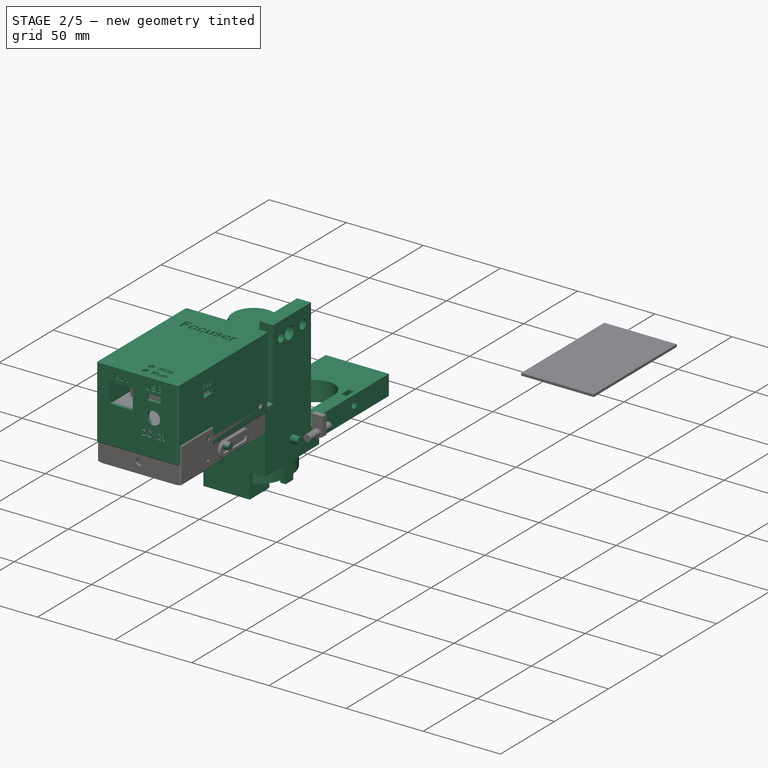
[diagram: stage 2 of 5 — iso view after this stage's code; geometry added in this stage tinted green]
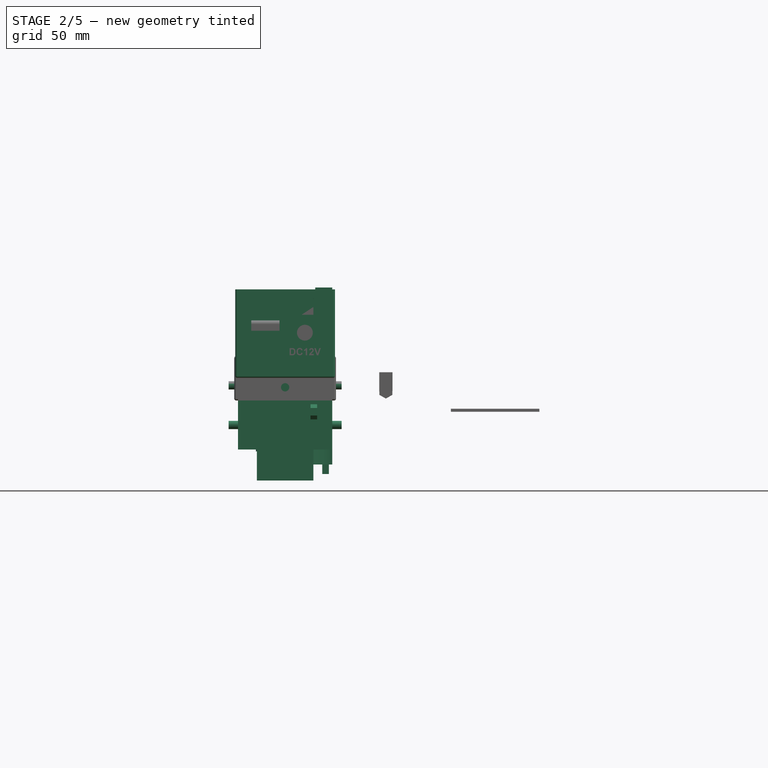
[diagram: stage 2 of 5 — front view after this stage's code; geometry added in this stage tinted green]
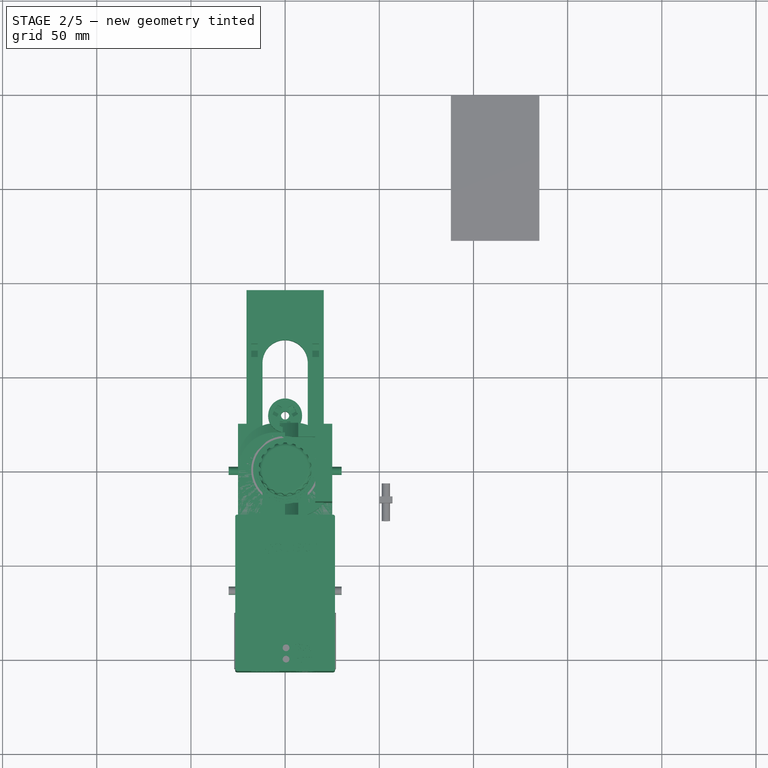
[diagram: stage 2 of 5 — top view after this stage's code; geometry added in this stage tinted green]
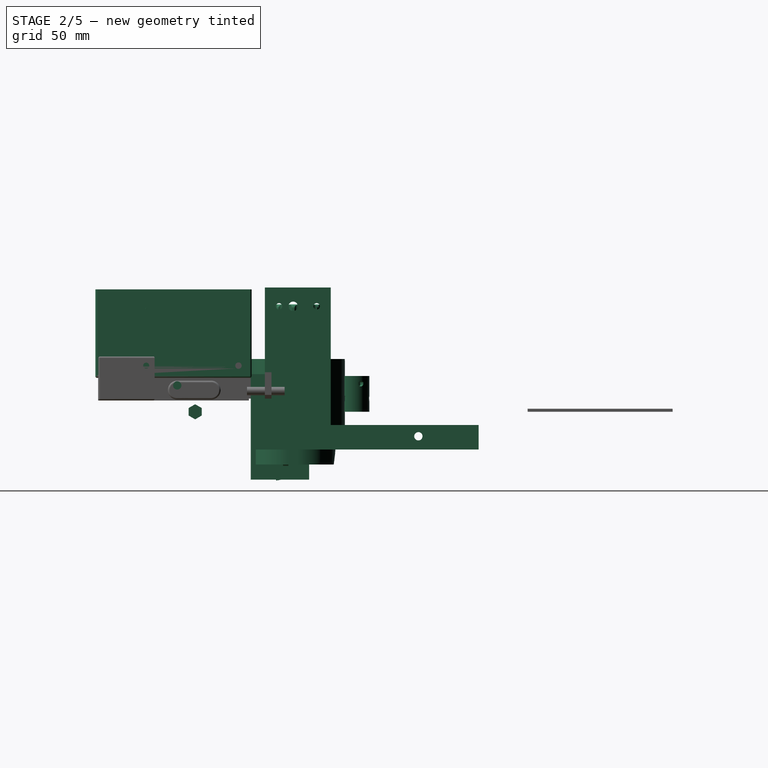
[diagram: stage 2 of 5 — right view after this stage's code; geometry added in this stage tinted green]
FEATURE [Part::Box] Box021210  label="Krychle199"
  AttacherType = Attacher::AttachEngine3D
  Height = 13
  Length = 50
  Placement = pos=(-25,-96,7) rot=(0,0,1;0rad)
  Width = 116
FEATURE [Part::Box] Box021211  label="Krychle200"
  AttacherType = Attacher::AttachEngine3D
  Height = 27
  Length = 50
  Placement = pos=(-25,-25,-20) rot=(0.995037,0,0.099504;0rad)
  Width = 45
FEATURE [Part::MultiFuse] Fusion005043005007002078040  label="Main004"
  Shapes = -> [Box021211,Box021210]
FEATURE [Part::Box] Box021215  label="Krychle204"
  AttacherType = Attacher::AttachEngine3D
  Height = 13
  Length = 4.5
  Placement = pos=(20.5,-102,7) rot=(0,0,1;0rad)
  Width = 77
FEATURE [Part::Cylinder] Cylinder112024025003003006010004236  label="sroub004"
  Angle = 360
  AttacherType = Attacher::AttachEngine3D
  Height = 60
  Placement = pos=(-30,-64,14) rot=(0,1,0;1.5708rad)
  Radius = 2.2
FEATURE [Part::Box] Box021216  label="Krychle205"
  AttacherType = Attacher::AttachEngine3D
  Height = 13
  Length = 24
  Placement = pos=(-12,-57.5,7) rot=(0,0,1;0rad)
  Width = 49
FEATURE [Part::Cylinder] Cylinder112024025003003006010004237  label="Válec334"
  Angle = 360
  AttacherType = Attacher::AttachEngine3D
  Height = 13
  Placement = pos=(0,-57.5,7) rot=(0,0,1;0rad)
  Radius = 12
FEATURE [Part::Fillet] Fillet028003004
  Base = -> Fusion005043005007002078040
  Edges = 4 edges r=20: [Edge3,Edge10,Edge13,Edge23]
FEATURE [Part::Box] Box021217  label="Krychle206"
  AttacherType = Attacher::AttachEngine3D
  Height = 5
  Length = 7.4
  Placement = pos=(-12.7,-90.5,7) rot=(0,0,1;0rad)
  Width = 18
FEATURE [Part::Cylinder] Cylinder112024025003003006010004238  label="Válec335"
  Angle = 360
  AttacherType = Attacher::AttachEngine3D
  Height = 14
  Placement = pos=(0,0,6) rot=(0,0,1;0rad)
  Radius = 16.25
FEATURE [Part::Cylinder] Cylinder112024025003003006010004239  label="Válec336"
  Angle = 360
  AttacherType = Attacher::AttachEngine3D
  Height = 5
  Placement = pos=(9,-90.5,7) rot=(0,0,1;0rad)
  Radius = 3.7
FEATURE [Part::Box] Box021218  label="Krychle207"
  AttacherType = Attacher::AttachEngine3D
  Height = 10
  Length = 3.5
  Placement = pos=(13.5,-58,0) rot=(0,0,1;0rad)
  Width = 7
FEATURE [Sketcher::SketchObject] Sketch012
  FullyConstrained = false
  MapMode = 5
  Placement = pos=(13.5,-58,0) rot=(0.57735,-0.57735,-0.57735;2.0944rad)
  Support = -> [Box021218]
  sketch-geometry (7):
    g0: LineSegment StartX=-3.5 StartY=4 StartZ=0 EndX=-6.9641 EndY=2 EndZ=0
    g1: LineSegment StartX=-6.9641 StartY=2 StartZ=0 EndX=-6.9641 EndY=-2 EndZ=0
    g2: LineSegment StartX=-6.9641 StartY=-2 StartZ=0 EndX=-3.5 EndY=-4 EndZ=0
    g3: LineSegment StartX=-3.5 StartY=-4 StartZ=0 EndX=-0.0358984 EndY=-2 EndZ=0
    g4: LineSegment StartX=-0.0358984 StartY=-2 StartZ=0 EndX=-0.0358984 EndY=2 EndZ=0
    g5: LineSegment StartX=-0.0358984 StartY=2 StartZ=0 EndX=-3.5 EndY=4 EndZ=0
    g6: Circle CenterX=-3.5 CenterY=0 CenterZ=0 NormalX=0 NormalY=0 NormalZ=1 AngleXU=0 Radius=4
  constraints (14):
    c: Coincident(g0,g1)
    c: Coincident(g1,g2)
    c: Coincident(g2,g3)
    c: Coincident(g3,g4)
    c: Coincident(g4,g5)
    c: Coincident(g5,g0)
    c: Equal(g0, g1-g5) x5
    c: PointOnObject(g0,g6)
    c: PointOnObject(g1,g6)
    c: PointOnObject(g2,g6)
    c: PointOnObject(g3,g6)
    c: PointOnObject(g4,g6)
    c: PointOnObject(g5,g6)
    c: PointOnObject(g6,g-1)
FEATURE [Part::Box] Box021219  label="Krychle208"
  AttacherType = Attacher::AttachEngine3D
  Height = 5
  Length = 7.4
  Placement = pos=(5.3,-90.5,7) rot=(0,0,1;0rad)
  Width = 18
FEATURE [Part::Box] Box021220  label="Krychle209"
  AttacherType = Attacher::AttachEngine3D
  Height = 10
  Length = 3.5
  Placement = pos=(13.5,-58,0) rot=(0,0,1;0rad)
  Width = 7
FEATURE [Sketcher::SketchObject] Sketch013
  FullyConstrained = false
  MapMode = 5
  Placement = pos=(13.5,-58,0) rot=(0.57735,-0.57735,-0.57735;2.0944rad)
  Support = -> [Box021220]
  sketch-geometry (7):
    g0: LineSegment StartX=-3.5 StartY=4 StartZ=0 EndX=-6.9641 EndY=2 EndZ=0
    g1: LineSegment StartX=-6.9641 StartY=2 StartZ=0 EndX=-6.9641 EndY=-2 EndZ=0
    g2: LineSegment StartX=-6.9641 StartY=-2 StartZ=0 EndX=-3.5 EndY=-4 EndZ=0
    g3: LineSegment StartX=-3.5 StartY=-4 StartZ=0 EndX=-0.0358984 EndY=-2 EndZ=0
    g4: LineSegment StartX=-0.0358984 StartY=-2 StartZ=0 EndX=-0.0358984 EndY=2 EndZ=0
    g5: LineSegment StartX=-0.0358984 StartY=2 StartZ=0 EndX=-3.5 EndY=4 EndZ=0
    g6: Circle CenterX=-3.5 CenterY=0 CenterZ=0 NormalX=0 NormalY=0 NormalZ=1 AngleXU=0 Radius=4
  constraints (14):
    c: Coincident(g0,g1)
    c: Coincident(g1,g2)
    c: Coincident(g2,g3)
    c: Coincident(g3,g4)
    c: Coincident(g4,g5)
    c: Coincident(g5,g0)
    c: Equal(g0, g1-g5) x5
    c: PointOnObject(g0,g6)
    c: PointOnObject(g1,g6)
    c: PointOnObject(g2,g6)
    c: PointOnObject(g3,g6)
    c: PointOnObject(g4,g6)
    c: PointOnObject(g5,g6)
    c: PointOnObject(g6,g-1)
FEATURE [Part::Cylinder] Cylinder112024025003003006010004240  label="Válec337"
  Angle = 360
  AttacherType = Attacher::AttachEngine3D
  Height = 5
  Placement = pos=(-9,-72.5,7) rot=(0,0,1;0rad)
  Radius = 3.7
FEATURE [Part::Extrusion] Extrude014
  Base = -> Sketch012
  Dir = (-1,0,0)
  DirMode = 2
  FaceMakerClass = Part::FaceMakerBullseye
  LengthFwd = -3.5
  LengthRev = 0
  Solid = true
  Symmetric = false
FEATURE [Part::Cylinder] Cylinder112024025003003006010004241  label="Válec338"
  Angle = 360
  AttacherType = Attacher::AttachEngine3D
  Height = 5
  Placement = pos=(9,-72.5,7) rot=(0,0,1;0rad)
  Radius = 3.7
FEATURE [Part::Extrusion] Extrude015
  Base = -> Sketch013
  Dir = (-1,0,0)
  DirMode = 2
  FaceMakerClass = Part::FaceMakerBullseye
  LengthFwd = -3.5
  LengthRev = 0
  Solid = true
  Symmetric = false
FEATURE [Part::Cylinder] Cylinder112024025003003006010004242  label="Válec339"
  Angle = 360
  AttacherType = Attacher::AttachEngine3D
  Height = 5
  Placement = pos=(-9,-90.5,7) rot=(0,0,1;0rad)
  Radius = 3.7
FEATURE [Part::Box] Box021221  label="Krychle210"
  AttacherType = Attacher::AttachEngine3D
  Height = 10
  Length = 3.5
  Placement = pos=(13.5,-58,0) rot=(0,0,1;0rad)
  Width = 7
FEATURE [Sketcher::SketchObject] Sketch014
  FullyConstrained = false
  MapMode = 5
  Placement = pos=(13.5,-58,0) rot=(0.57735,-0.57735,-0.57735;2.0944rad)
  Support = -> [Box021221]
  sketch-geometry (7):
    g0: LineSegment StartX=-3.5 StartY=4 StartZ=0 EndX=-6.9641 EndY=2 EndZ=0
    g1: LineSegment StartX=-6.9641 StartY=2 StartZ=0 EndX=-6.9641 EndY=-2 EndZ=0
    g2: LineSegment StartX=-6.9641 StartY=-2 StartZ=0 EndX=-3.5 EndY=-4 EndZ=0
    g3: LineSegment StartX=-3.5 StartY=-4 StartZ=0 EndX=-0.0358984 EndY=-2 EndZ=0
    g4: LineSegment StartX=-0.0358984 StartY=-2 StartZ=0 EndX=-0.0358984 EndY=2 EndZ=0
    g5: LineSegment StartX=-0.0358984 StartY=2 StartZ=0 EndX=-3.5 EndY=4 EndZ=0
    g6: Circle CenterX=-3.5 CenterY=0 CenterZ=0 NormalX=0 NormalY=0 NormalZ=1 AngleXU=0 Radius=4
  constraints (14):
    c: Coincident(g0,g1)
    c: Coincident(g1,g2)
    c: Coincident(g2,g3)
    c: Coincident(g3,g4)
    c: Coincident(g4,g5)
    c: Coincident(g5,g0)
    c: Equal(g0, g1-g5) x5
    c: PointOnObject(g0,g6)
    c: PointOnObject(g1,g6)
    c: PointOnObject(g2,g6)
    c: PointOnObject(g3,g6)
    c: PointOnObject(g4,g6)
    c: PointOnObject(g5,g6)
    c: PointOnObject(g6,g-1)
FEATURE [Part::Cylinder] Cylinder112024025003003006010004243  label="Sroub2"
  Angle = 360
  AttacherType = Attacher::AttachEngine3D
  Height = 60
  Placement = pos=(-30,0,-7) rot=(0,1,0;1.5708rad)
  Radius = 2.2
FEATURE [Part::Extrusion] Extrude016
  Base = -> Sketch014
  Dir = (-1,0,0)
  DirMode = 2
  FaceMakerClass = Part::FaceMakerBullseye
  LengthFwd = -3.5
  LengthRev = 0
  Solid = true
  Symmetric = false
FEATURE [Part::Box] Box021223  label="Krychle212"
  AttacherType = Attacher::AttachEngine3D
  Height = 10
  Length = 3.5
  Placement = pos=(13.5,-58,0) rot=(0,0,1;0rad)
  Width = 7
FEATURE [Sketcher::SketchObject] Sketch015
  FullyConstrained = false
  MapMode = 5
  Placement = pos=(13.5,-58,0) rot=(0.57735,-0.57735,-0.57735;2.0944rad)
  Support = -> [Box021223]
  sketch-geometry (7):
    g0: LineSegment StartX=-3.5 StartY=4 StartZ=0 EndX=-6.9641 EndY=2 EndZ=0
    g1: LineSegment StartX=-6.9641 StartY=2 StartZ=0 EndX=-6.9641 EndY=-2 EndZ=0
    g2: LineSegment StartX=-6.9641 StartY=-2 StartZ=0 EndX=-3.5 EndY=-4 EndZ=0
    g3: LineSegment StartX=-3.5 StartY=-4 StartZ=0 EndX=-0.0358984 EndY=-2 EndZ=0
    g4: LineSegment StartX=-0.0358984 StartY=-2 StartZ=0 EndX=-0.0358984 EndY=2 EndZ=0
    g5: LineSegment StartX=-0.0358984 StartY=2 StartZ=0 EndX=-3.5 EndY=4 EndZ=0
    g6: Circle CenterX=-3.5 CenterY=0 CenterZ=0 NormalX=0 NormalY=0 NormalZ=1 AngleXU=0 Radius=4
  constraints (14):
    c: Coincident(g0,g1)
    c: Coincident(g1,g2)
    c: Coincident(g2,g3)
    c: Coincident(g3,g4)
    c: Coincident(g4,g5)
    c: Coincident(g5,g0)
    c: Equal(g0, g1-g5) x5
    c: PointOnObject(g0,g6)
    c: PointOnObject(g1,g6)
    c: PointOnObject(g2,g6)
    c: PointOnObject(g3,g6)
    c: PointOnObject(g4,g6)
    c: PointOnObject(g5,g6)
    c: PointOnObject(g6,g-1)
FEATURE [Part::Extrusion] Extrude017
  Base = -> Sketch015
  Dir = (-1,0,0)
  DirMode = 2
  FaceMakerClass = Part::FaceMakerBullseye
  LengthFwd = -3.5
  LengthRev = 0
  Solid = true
  Symmetric = false
FEATURE [Part::MultiFuse] Fusion005043005007002078041  label="Matice015"
  Placement = pos=(-35,-27.5,-54) rot=(1,0,0;4.18879rad)
  Shapes = -> [Box021223,Extrude017]
FEATURE [Part::Cylinder] Cylinder112024025003003006010004232  label="Válec331"
  Angle = 360
  AttacherType = Attacher::AttachEngine3D
  Height = 20
  Placement = pos=(-8,-5,-27) rot=(1,0,0;1.5708rad)
  Radius = 1.7
FEATURE [Part::Cylinder] Cylinder112024025003003006010004233  label="Válec332"
  Angle = 360
  AttacherType = Attacher::AttachEngine3D
  Height = 20
  Placement = pos=(8,-5,-27) rot=(1,0,0;1.5708rad)
  Radius = 1.7
FEATURE [Part::Cylinder] Cylinder112024025003003006010004227  label="Válec327"
  Angle = 360
  AttacherType = Attacher::AttachEngine3D
  Height = 5
  Placement = pos=(8,-20,-27) rot=(1,0,0;1.5708rad)
  Radius = 3
FEATURE [Part::Cylinder] Cylinder112024025003003006010004234  label="Válec333"
  Angle = 360
  AttacherType = Attacher::AttachEngine3D
  Height = 5
  Placement = pos=(-8,-20,-27) rot=(1,0,0;1.5708rad)
  Radius = 3
FEATURE [Part::MultiFuse] Fusion005043005007002078034  label="Inbus001"
  Shapes = -> [Cylinder112024025003003006010004232,Cylinder112024025003003006010004233,Cylinder112024025003003006010004227,Cylinder112024025003003006010004234]
FEATURE [Part::Box] Box021225  label="Krychle214"
  AttacherType = Attacher::AttachEngine3D
  Height = 20
  Length = 30
  Placement = pos=(-15,-11.5,-36.5) rot=(1,0,0;0.174533rad)
  Width = 5
FEATURE [Part::Box] Box021226  label="Krychle215"
  AttacherType = Attacher::AttachEngine3D
  Height = 20
  Length = 30
  Placement = pos=(-15,-25,-36) rot=(0,0,1;0rad)
  Width = 14
FEATURE [Part::Cylinder] Cylinder112024025003003006010004276008  label="Válec363"
  Angle = 360
  AttacherType = Attacher::AttachEngine3D
  Height = 43
  Placement = pos=(0,0,-21) rot=(0,0,1;0rad)
  Radius = 15.5
FEATURE [Part::Cylinder] Cylinder112024025003003006010004276009  label="Válec364"
  Angle = 360
  AttacherType = Attacher::AttachEngine3D
  Height = 14
  Placement = pos=(0,0,6.5) rot=(0,0,1;0rad)
  Radius = 17
FEATURE [Part::MultiFuse] Fusion005043005007002078061  label="Diry in"
  Shapes = -> [Box021225,Fusion005043005007002078034,Cylinder112024025003003006010004276008,Cylinder112024025003003006010004276009]
FEATURE [Part::Cylinder] Cylinder112024025003003006010004276010  label="Válec365"
  Angle = 360
  AttacherType = Attacher::AttachEngine3D
  Height = 41
  Placement = pos=(0,0,-21) rot=(0,0,1;0rad)
  Radius = 18
FEATURE [Part::Box] Box021227  label="Krychle216"
  AttacherType = Attacher::AttachEngine3D
  Height = 50
  Length = 32
  Placement = pos=(-16,-14,-65) rot=(0,0,1;0rad)
  Width = 16
FEATURE [Part::Box] Box021228  label="Krychle217"
  AttacherType = Attacher::AttachEngine3D
  Height = 13
  Length = 50
  Placement = pos=(-25,-96,7) rot=(0,0,1;0rad)
  Width = 96
FEATURE [Part::Cylinder] Cylinder112024025003003006010004276011  label="Velky003"
  Angle = 360
  AttacherType = Attacher::AttachEngine3D
  Height = 53
  Placement = pos=(-27,27,-44.5) rot=(0,1,0;1.5708rad)
  Radius = 41.5
FEATURE [Part::Box] Box021229  label="Krychle218"
  AttacherType = Attacher::AttachEngine3D
  Height = 13
  Length = 4.5
  Placement = pos=(20.5,-102,7) rot=(0,0,1;0rad)
  Width = 77
FEATURE [Part::Cylinder] Cylinder112024025003003006010004276012  label="sroub005"
  Angle = 360
  AttacherType = Attacher::AttachEngine3D
  Height = 60
  Placement = pos=(-30,-64,13) rot=(0,1,0;1.5708rad)
  Radius = 2.2
FEATURE [Part::Box] Box021231  label="Krychle220"
  AttacherType = Attacher::AttachEngine3D
  Height = 13
  Length = 4.5
  Placement = pos=(-25,-102,7) rot=(0,0,1;0rad)
  Width = 77
FEATURE [Part::Cylinder] Cylinder112024025003003006010004276013  label="Válec366"
  Angle = 360
  AttacherType = Attacher::AttachEngine3D
  Height = 16
  Placement = pos=(0,0,-15) rot=(0,0,1;0rad)
  Radius = 14.5
FEATURE [Part::MultiFuse] Fusion005043005007002078072  label="Tělo003"
  Placement = pos=(0,0,0) rot=(0,0,1;1.5708rad)
  Shapes = -> [Box021227,Cylinder112024025003003006010004276011,Cylinder112024025003003006010004276013]
FEATURE [Part::Cylinder] Cylinder112024025003003006010004276014  label="Válec367"
  Angle = 360
  AttacherType = Attacher::AttachEngine3D
  Height = 5
  Placement = pos=(-9,-90.5,15) rot=(0,0,1;0rad)
  Radius = 3.7
FEATURE [Part::Cylinder] Cylinder112024025003003006010004276015  label="Válec368"
  Angle = 360
  AttacherType = Attacher::AttachEngine3D
  Height = 5
  Placement = pos=(9,-90.5,15) rot=(0,0,1;0rad)
  Radius = 3.7
FEATURE [Part::Box] Box021233  label="Krychle222"
  AttacherType = Attacher::AttachEngine3D
  Height = 5
  Length = 7.4
  Placement = pos=(-12.7,-90.5,15) rot=(0,0,1;0rad)
  Width = 18
FEATURE [Part::Box] Box021234  label="Krychle223"
  AttacherType = Attacher::AttachEngine3D
  Height = 10
  Length = 3.5
  Placement = pos=(13.5,-58,0) rot=(0,0,1;0rad)
  Width = 7
FEATURE [Sketcher::SketchObject] Sketch016
  FullyConstrained = false
  MapMode = 5
  Placement = pos=(13.5,-58,0) rot=(0.57735,-0.57735,-0.57735;2.0944rad)
  Support = -> [Box021234]
  sketch-geometry (7):
    g0: LineSegment StartX=-3.5 StartY=4 StartZ=0 EndX=-6.9641 EndY=2 EndZ=0
    g1: LineSegment StartX=-6.9641 StartY=2 StartZ=0 EndX=-6.9641 EndY=-2 EndZ=0
    g2: LineSegment StartX=-6.9641 StartY=-2 StartZ=0 EndX=-3.5 EndY=-4 EndZ=0
    g3: LineSegment StartX=-3.5 StartY=-4 StartZ=0 EndX=-0.0358984 EndY=-2 EndZ=0
    g4: LineSegment StartX=-0.0358984 StartY=-2 StartZ=0 EndX=-0.0358984 EndY=2 EndZ=0
    g5: LineSegment StartX=-0.0358984 StartY=2 StartZ=0 EndX=-3.5 EndY=4 EndZ=0
    g6: Circle CenterX=-3.5 CenterY=0 CenterZ=0 NormalX=0 NormalY=0 NormalZ=1 AngleXU=0 Radius=4
  constraints (14):
    c: Coincident(g0,g1)
    c: Coincident(g1,g2)
    c: Coincident(g2,g3)
    c: Coincident(g3,g4)
    c: Coincident(g4,g5)
    c: Coincident(g5,g0)
    c: Equal(g0, g1-g5) x5
    c: PointOnObject(g0,g6)
    c: PointOnObject(g1,g6)
    c: PointOnObject(g2,g6)
    c: PointOnObject(g3,g6)
    c: PointOnObject(g4,g6)
    c: PointOnObject(g5,g6)
    c: PointOnObject(g6,g-1)
FEATURE [Part::Extrusion] Extrude019
  Base = -> Sketch016
  Dir = (-1,0,0)
  DirMode = 2
  FaceMakerClass = Part::FaceMakerBullseye
  LengthFwd = -3.5
  LengthRev = 0
  Solid = true
  Symmetric = false
FEATURE [Part::MultiFuse] Fusion005043005007002078067  label="Matice017"
  Placement = pos=(6,-54.5,-10) rot=(1,0,0;3.14159rad)
  Shapes = -> [Box021234,Extrude019]
FEATURE [Part::Cylinder] Cylinder112024025003003006010004276017  label="Sroub003"
  Angle = 360
  AttacherType = Attacher::AttachEngine3D
  Height = 20
  Placement = pos=(10,0,-10) rot=(0,1,0;1.5708rad)
  Radius = 2.2
FEATURE [Part::Box] Box021235  label="Krychle224"
  AttacherType = Attacher::AttachEngine3D
  Height = 10
  Length = 3.5
  Placement = pos=(13.5,-58,0) rot=(0,0,1;0rad)
  Width = 7
FEATURE [Sketcher::SketchObject] Sketch018
  FullyConstrained = false
  MapMode = 5
  Placement = pos=(13.5,-58,0) rot=(0.57735,-0.57735,-0.57735;2.0944rad)
  Support = -> [Box021235]
  sketch-geometry (7):
    g0: LineSegment StartX=-3.5 StartY=4 StartZ=0 EndX=-6.9641 EndY=2 EndZ=0
    g1: LineSegment StartX=-6.9641 StartY=2 StartZ=0 EndX=-6.9641 EndY=-2 EndZ=0
    g2: LineSegment StartX=-6.9641 StartY=-2 StartZ=0 EndX=-3.5 EndY=-4 EndZ=0
    g3: LineSegment StartX=-3.5 StartY=-4 StartZ=0 EndX=-0.0358984 EndY=-2 EndZ=0
    g4: LineSegment StartX=-0.0358984 StartY=-2 StartZ=0 EndX=-0.0358984 EndY=2 EndZ=0
    g5: LineSegment StartX=-0.0358984 StartY=2 StartZ=0 EndX=-3.5 EndY=4 EndZ=0
    g6: Circle CenterX=-3.5 CenterY=0 CenterZ=0 NormalX=0 NormalY=0 NormalZ=1 AngleXU=0 Radius=4
  constraints (14):
    c: Coincident(g0,g1)
    c: Coincident(g1,g2)
    c: Coincident(g2,g3)
    c: Coincident(g3,g4)
    c: Coincident(g4,g5)
    c: Coincident(g5,g0)
    c: Equal(g0, g1-g5) x5
    c: PointOnObject(g0,g6)
    c: PointOnObject(g1,g6)
    c: PointOnObject(g2,g6)
    c: PointOnObject(g3,g6)
    c: PointOnObject(g4,g6)
    c: PointOnObject(g5,g6)
    c: PointOnObject(g6,g-1)
FEATURE [Part::Cylinder] Cylinder112024025003003006010004276020  label="Válec372"
  Angle = 360
  AttacherType = Attacher::AttachEngine3D
  Height = 5
  Placement = pos=(-9,-72.5,15) rot=(0,0,1;0rad)
  Radius = 3.7
FEATURE [Part::Cylinder] Cylinder112024025003003006010004276021  label="Válec373"
  Angle = 360
  AttacherType = Attacher::AttachEngine3D
  Height = 13
  Placement = pos=(0,-57.5,7) rot=(0,0,1;0rad)
  Radius = 12
FEATURE [Part::Extrusion] Extrude021
  Base = -> Sketch018
  Dir = (-1,0,0)
  DirMode = 2
  FaceMakerClass = Part::FaceMakerBullseye
  LengthFwd = -3.5
  LengthRev = 0
  Solid = true
  Symmetric = false
FEATURE [Part::MultiFuse] Fusion005043005007002078066  label="Matice016"
  Placement = pos=(1,-118.5,13) rot=(1,0,0;3.14159rad)
  Shapes = -> [Box021235,Extrude021]
FEATURE [Part::Box] Box021236  label="Krychle225"
  AttacherType = Attacher::AttachEngine3D
  Height = 13
  Length = 24
  Placement = pos=(-12,-57.5,7) rot=(0,0,1;0rad)
  Width = 49
FEATURE [Part::Cylinder] Cylinder112024025003003006010004276022  label="Válec374"
  Angle = 360
  AttacherType = Attacher::AttachEngine3D
  Height = 14
  Placement = pos=(0,0,6) rot=(0,0,1;0rad)
  Radius = 16.25
FEATURE [Part::Box] Box021237  label="Krychle226"
  AttacherType = Attacher::AttachEngine3D
  Height = 5
  Length = 7.4
  Placement = pos=(5.3,-90.5,15) rot=(0,0,1;0rad)
  Width = 18
FEATURE [Part::Box] Box021238  label="Krychle227"
  AttacherType = Attacher::AttachEngine3D
  Height = 10
  Length = 3.5
  Placement = pos=(13.5,-58,0) rot=(0,0,1;0rad)
  Width = 7
FEATURE [Sketcher::SketchObject] Sketch019
  FullyConstrained = false
  MapMode = 5
  Placement = pos=(13.5,-58,0) rot=(0.57735,-0.57735,-0.57735;2.0944rad)
  Support = -> [Box021238]
  sketch-geometry (7):
    g0: LineSegment StartX=-3.5 StartY=4 StartZ=0 EndX=-6.9641 EndY=2 EndZ=0
    g1: LineSegment StartX=-6.9641 StartY=2 StartZ=0 EndX=-6.9641 EndY=-2 EndZ=0
    g2: LineSegment StartX=-6.9641 StartY=-2 StartZ=0 EndX=-3.5 EndY=-4 EndZ=0
    g3: LineSegment StartX=-3.5 StartY=-4 StartZ=0 EndX=-0.0358984 EndY=-2 EndZ=0
    g4: LineSegment StartX=-0.0358984 StartY=-2 StartZ=0 EndX=-0.0358984 EndY=2 EndZ=0
    g5: LineSegment StartX=-0.0358984 StartY=2 StartZ=0 EndX=-3.5 EndY=4 EndZ=0
    g6: Circle CenterX=-3.5 CenterY=0 CenterZ=0 NormalX=0 NormalY=0 NormalZ=1 AngleXU=0 Radius=4
  constraints (14):
    c: Coincident(g0,g1)
    c: Coincident(g1,g2)
    c: Coincident(g2,g3)
    c: Coincident(g3,g4)
    c: Coincident(g4,g5)
    c: Coincident(g5,g0)
    c: Equal(g0, g1-g5) x5
    c: PointOnObject(g0,g6)
    c: PointOnObject(g1,g6)
    c: PointOnObject(g2,g6)
    c: PointOnObject(g3,g6)
    c: PointOnObject(g4,g6)
    c: PointOnObject(g5,g6)
    c: PointOnObject(g6,g-1)
FEATURE [Part::Extrusion] Extrude018
  Base = -> Sketch019
  Dir = (-1,0,0)
  DirMode = 2
  FaceMakerClass = Part::FaceMakerBullseye
  LengthFwd = -3.5
  LengthRev = 0
  Solid = true
  Symmetric = false
FEATURE [Part::MultiFuse] Fusion005043005007002078071  label="Matice019"
  Placement = pos=(-31.5,-118.5,13) rot=(1,0,0;3.14159rad)
  Shapes = -> [Box021238,Extrude018]
FEATURE [Part::Cylinder] Cylinder112024025003003006010004276023  label="Válec375"
  Angle = 360
  AttacherType = Attacher::AttachEngine3D
  Height = 5
  Placement = pos=(9,-72.5,15) rot=(0,0,1;0rad)
  Radius = 3.7
FEATURE [Part::Box] Box021239  label="Krychle228"
  AttacherType = Attacher::AttachEngine3D
  Height = 10
  Length = 3.5
  Placement = pos=(13.5,-58,0) rot=(0,0,1;0rad)
  Width = 7
FEATURE [Sketcher::SketchObject] Sketch017
  FullyConstrained = false
  MapMode = 5
  Placement = pos=(13.5,-58,0) rot=(0.57735,-0.57735,-0.57735;2.0944rad)
  Support = -> [Box021239]
  sketch-geometry (7):
    g0: LineSegment StartX=-3.5 StartY=4 StartZ=0 EndX=-6.9641 EndY=2 EndZ=0
    g1: LineSegment StartX=-6.9641 StartY=2 StartZ=0 EndX=-6.9641 EndY=-2 EndZ=0
    g2: LineSegment StartX=-6.9641 StartY=-2 StartZ=0 EndX=-3.5 EndY=-4 EndZ=0
    g3: LineSegment StartX=-3.5 StartY=-4 StartZ=0 EndX=-0.0358984 EndY=-2 EndZ=0
    g4: LineSegment StartX=-0.0358984 StartY=-2 StartZ=0 EndX=-0.0358984 EndY=2 EndZ=0
    g5: LineSegment StartX=-0.0358984 StartY=2 StartZ=0 EndX=-3.5 EndY=4 EndZ=0
    g6: Circle CenterX=-3.5 CenterY=0 CenterZ=0 NormalX=0 NormalY=0 NormalZ=1 AngleXU=0 Radius=4
  constraints (14):
    c: Coincident(g0,g1)
    c: Coincident(g1,g2)
    c: Coincident(g2,g3)
    c: Coincident(g3,g4)
    c: Coincident(g4,g5)
    c: Coincident(g5,g0)
    c: Equal(g0, g1-g5) x5
    c: PointOnObject(g0,g6)
    c: PointOnObject(g1,g6)
    c: PointOnObject(g2,g6)
    c: PointOnObject(g3,g6)
    c: PointOnObject(g4,g6)
    c: PointOnObject(g5,g6)
    c: PointOnObject(g6,g-1)
FEATURE [Part::Extrusion] Extrude020
  Base = -> Sketch017
  Dir = (-1,0,0)
  DirMode = 2
  FaceMakerClass = Part::FaceMakerBullseye
  LengthFwd = -3.5
  LengthRev = 0
  Solid = true
  Symmetric = false
FEATURE [Part::MultiFuse] Fusion005043005007002078069  label="Matice018"
  Placement = pos=(-36.5,-54.5,1.5) rot=(1,0,0;3.14159rad)
  Shapes = -> [Box021239,Extrude020]
FEATURE [Part::Cylinder] Cylinder112024025003003006010004276024  label="Válec376"
  Angle = 360
  AttacherType = Attacher::AttachEngine3D
  Height = 48
  Placement = pos=(5,0,-28) rot=(0,0,1;0rad)
  Radius = 20
FEATURE [Part::Cylinder] Cylinder112024025003003006010004276025  label="Válec377"
  Angle = 360
  AttacherType = Attacher::AttachEngine3D
  Height = 48
  Placement = pos=(-5,0,-28) rot=(0,0,1;0rad)
  Radius = 20
FEATURE [Part::Box] Box021240  label="Krychle229"
  AttacherType = Attacher::AttachEngine3D
  Height = 48
  Length = 10
  Placement = pos=(-5,-25,-28) rot=(0.995037,0,0.099504;0rad)
  Width = 45
FEATURE [Part::Box] Box021241  label="Krychle230"
  AttacherType = Attacher::AttachEngine3D
  Height = 48
  Length = 50
  Placement = pos=(-25,-5,-28) rot=(0.995037,0,0.099504;0rad)
  Width = 5
FEATURE [Part::Cylinder] Cylinder112024025003003006010004276026  label="Válec378"
  Angle = 360
  AttacherType = Attacher::AttachEngine3D
  Height = 48
  Placement = pos=(-5,-5,-28) rot=(0,0,1;0rad)
  Radius = 20
FEATURE [Part::Cylinder] Cylinder112024025003003006010004276027  label="Válec379"
  Angle = 360
  AttacherType = Attacher::AttachEngine3D
  Height = 48
  Placement = pos=(5,-5,-28) rot=(0,0,1;0rad)
  Radius = 20
FEATURE [Part::MultiFuse] Fusion005043005007002078073  label="Main005"
  Shapes = -> [Box021228,Cylinder112024025003003006010004276025,Box021240,Box021241,Cylinder112024025003003006010004276026,Cylinder112024025003003006010004276027,Cylinder112024025003003006010004276024]
FEATURE [Part::Cylinder] Cylinder112024025003003006010004276028  label="Sroub004"
  Angle = 360
  AttacherType = Attacher::AttachEngine3D
  Height = 20
  Placement = pos=(-35,0,1.5) rot=(0,1,0;1.5708rad)
  Radius = 2.2
FEATURE [Part::MultiFuse] Fusion005043005007002078068  label="Holes009"
  Shapes = -> [Cylinder112024025003003006010004276010,Box021231,Box021229,Cylinder112024025003003006010004276012,Cylinder112024025003003006010004276021,Box021236,Box021233,Box021237,Cylinder112024025003003006010004276023,Cylinder112024025003003006010004276015,Cylinder112024025003003006010004276020,Cylinder112024025003003006010004276014,Cylinder112024025003003006010004276022,Fusion005043005007002078066,+6 more]
FEATURE [Part::Cut] Cut018020020009027020002003004004026003005007014  label="Main006"
  Base = -> Fusion005043005007002078073
  Tool = -> Fusion005043005007002078068
FEATURE [App::Part] Part016  label="PCB"
  Group = -> [Shape,Shape001,Shape002,Shape003,Shape004,Shape005,Shape006,Shape007,Shape008,Shape009,Shape010,Shape011,Shape012,Shape013,Shape014,Shape015,Shape016,Shape017,Shape018,Shape019,Shape020,Shape021,Shape022,Shape023,Shape024,Shape025,Shape026,Shape027,Shape028,Shape029,Shape030,Shape031,Shape032,Shape033,Shape034,Shape035,Shape036,Shape037,Shape038,Shape039,Shape040,Shape041,Shape042,Shape043,+69 more]
  Origin = -> Origin016
  Placement = pos=(-23,45.9,0) rot=(0,0,1;0rad)
FEATURE [Part::Box] Box021242  label="Krychle231"
  AttacherType = Attacher::AttachEngine3D
  Height = 48
  Length = 10
  Placement = pos=(-5,-25,-28) rot=(0.995037,0,0.099504;0rad)
  Width = 50
FEATURE [Part::Box] Box021243  label="Krychle232"
  AttacherType = Attacher::AttachEngine3D
  Height = 13
  Length = 50
  Placement = pos=(-25,-96,7) rot=(0,0,1;0rad)
  Width = 96
FEATURE [Part::Box] Box021244  label="Krychle233"
  AttacherType = Attacher::AttachEngine3D
  Height = 13
  Length = 4.5
  Placement = pos=(20.5,-102,7) rot=(0,0,1;0rad)
  Width = 77
FEATURE [Part::Cylinder] Cylinder112024025003003006010004276030  label="Sroub005"
  Angle = 360
  AttacherType = Attacher::AttachEngine3D
  Height = 20
  Placement = pos=(-30,0,-5) rot=(0,1,0;1.5708rad)
  Radius = 2.2
FEATURE [Part::Cylinder] Cylinder112024025003003006010004276031  label="sroub006"
  Angle = 360
  AttacherType = Attacher::AttachEngine3D
  Height = 60
  Placement = pos=(-30,-64,13) rot=(0,1,0;1.5708rad)
  Radius = 2.2
FEATURE [Part::Box] Box021245  label="Krychle234"
  AttacherType = Attacher::AttachEngine3D
  Height = 10
  Length = 3.5
  Placement = pos=(13.5,-58,0) rot=(0,0,1;0rad)
  Width = 7
FEATURE [Sketcher::SketchObject] Sketch020
  FullyConstrained = false
  MapMode = 5
  Placement = pos=(13.5,-58,0) rot=(0.57735,-0.57735,-0.57735;2.0944rad)
  Support = -> [Box021245]
  sketch-geometry (7):
    g0: LineSegment StartX=-3.5 StartY=4 StartZ=0 EndX=-6.9641 EndY=2 EndZ=0
    g1: LineSegment StartX=-6.9641 StartY=2 StartZ=0 EndX=-6.9641 EndY=-2 EndZ=0
    g2: LineSegment StartX=-6.9641 StartY=-2 StartZ=0 EndX=-3.5 EndY=-4 EndZ=0
    g3: LineSegment StartX=-3.5 StartY=-4 StartZ=0 EndX=-0.0358984 EndY=-2 EndZ=0
    g4: LineSegment StartX=-0.0358984 StartY=-2 StartZ=0 EndX=-0.0358984 EndY=2 EndZ=0
    g5: LineSegment StartX=-0.0358984 StartY=2 StartZ=0 EndX=-3.5 EndY=4 EndZ=0
    g6: Circle CenterX=-3.5 CenterY=0 CenterZ=0 NormalX=0 NormalY=0 NormalZ=1 AngleXU=0 Radius=4
  constraints (14):
    c: Coincident(g0,g1)
    c: Coincident(g1,g2)
    c: Coincident(g2,g3)
    c: Coincident(g3,g4)
    c: Coincident(g4,g5)
    c: Coincident(g5,g0)
    c: Equal(g0, g1-g5) x5
    c: PointOnObject(g0,g6)
    c: PointOnObject(g1,g6)
    c: PointOnObject(g2,g6)
    c: PointOnObject(g3,g6)
    c: PointOnObject(g4,g6)
    c: PointOnObject(g5,g6)
    c: PointOnObject(g6,g-1)
FEATURE [Part::Box] Box021246  label="Krychle235"
  AttacherType = Attacher::AttachEngine3D
  Height = 10
  Length = 3.5
  Placement = pos=(13.5,-58,0) rot=(0,0,1;0rad)
  Width = 7
FEATURE [Sketcher::SketchObject] Sketch021
  FullyConstrained = false
  MapMode = 5
  Placement = pos=(13.5,-58,0) rot=(0.57735,-0.57735,-0.57735;2.0944rad)
  Support = -> [Box021246]
  sketch-geometry (7):
    g0: LineSegment StartX=-3.5 StartY=4 StartZ=0 EndX=-6.9641 EndY=2 EndZ=0
    g1: LineSegment StartX=-6.9641 StartY=2 StartZ=0 EndX=-6.9641 EndY=-2 EndZ=0
    g2: LineSegment StartX=-6.9641 StartY=-2 StartZ=0 EndX=-3.5 EndY=-4 EndZ=0
    g3: LineSegment StartX=-3.5 StartY=-4 StartZ=0 EndX=-0.0358984 EndY=-2 EndZ=0
    g4: LineSegment StartX=-0.0358984 StartY=-2 StartZ=0 EndX=-0.0358984 EndY=2 EndZ=0
    g5: LineSegment StartX=-0.0358984 StartY=2 StartZ=0 EndX=-3.5 EndY=4 EndZ=0
    g6: Circle CenterX=-3.5 CenterY=0 CenterZ=0 NormalX=0 NormalY=0 NormalZ=1 AngleXU=0 Radius=4
  constraints (14):
    c: Coincident(g0,g1)
    c: Coincident(g1,g2)
    c: Coincident(g2,g3)
    c: Coincident(g3,g4)
    c: Coincident(g4,g5)
    c: Coincident(g5,g0)
    c: Equal(g0, g1-g5) x5
    c: PointOnObject(g0,g6)
    c: PointOnObject(g1,g6)
    c: PointOnObject(g2,g6)
    c: PointOnObject(g3,g6)
    c: PointOnObject(g4,g6)
    c: PointOnObject(g5,g6)
    c: PointOnObject(g6,g-1)
FEATURE [Part::Extrusion] Extrude022
  Base = -> Sketch020
  Dir = (-1,0,0)
  DirMode = 2
  FaceMakerClass = Part::FaceMakerBullseye
  LengthFwd = -3.5
  LengthRev = 0
  Solid = true
  Symmetric = false
FEATURE [Part::MultiFuse] Fusion005043005007002078079  label="Matice020"
  Placement = pos=(1,-118.5,13) rot=(1,0,0;3.14159rad)
  Shapes = -> [Box021245,Extrude022]
FEATURE [Part::Cylinder] Cylinder112024025003003006010004276033  label="Válec382"
  Angle = 360
  AttacherType = Attacher::AttachEngine3D
  Height = 13
  Placement = pos=(0,-57.5,7) rot=(0,0,1;0rad)
  Radius = 12
FEATURE [Part::Box] Box021247  label="Krychle236"
  AttacherType = Attacher::AttachEngine3D
  Height = 20
  Length = 12
  Placement = pos=(-15,-25,-36) rot=(0,0,1;0rad)
  Width = 31
FEATURE [Part::Extrusion] Extrude023
  Base = -> Sketch021
  Dir = (-1,0,0)
  DirMode = 2
  FaceMakerClass = Part::FaceMakerBullseye
  LengthFwd = -3.5
  LengthRev = 0
  Solid = true
  Symmetric = false
FEATURE [Part::MultiFuse] Fusion005043005007002078080  label="Matice021"
  Placement = pos=(-31.5,-118.5,13) rot=(1,0,0;3.14159rad)
  Shapes = -> [Box021246,Extrude023]
FEATURE [Part::Cylinder] Cylinder112024025003003006010004276034  label="Válec383"
  Angle = 360
  AttacherType = Attacher::AttachEngine3D
  Height = 5
  Placement = pos=(-9,-72.5,15) rot=(0,0,1;0rad)
  Radius = 3.7
FEATURE [Part::Box] Box021248  label="Krychle237"
  AttacherType = Attacher::AttachEngine3D
  Height = 5
  Length = 7.4
  Placement = pos=(5.3,-90.5,15) rot=(0,0,1;0rad)
  Width = 18
FEATURE [Part::Box] Box021249  label="Krychle238"
  AttacherType = Attacher::AttachEngine3D
  Height = 13
  Length = 4.5
  Placement = pos=(-25,-102,7) rot=(0,0,1;0rad)
  Width = 77
FEATURE [Part::Cylinder] Cylinder112024025003003006010004276035  label="Válec384"
  Angle = 360
  AttacherType = Attacher::AttachEngine3D
  Height = 50
  Placement = pos=(0,0,-28) rot=(0,0,1;0rad)
  Radius = 18
FEATURE [Part::Box] Box021250  label="Krychle239"
  AttacherType = Attacher::AttachEngine3D
  Height = 5
  Length = 7.4
  Placement = pos=(-12.7,-90.5,15) rot=(0,0,1;0rad)
  Width = 18
FEATURE [Part::Box] Box021251  label="Krychle240"
  AttacherType = Attacher::AttachEngine3D
  Height = 50
  Length = 35
  Placement = pos=(-17.5,-18,-66) rot=(0,0,1;0rad)
  Width = 15
FEATURE [Part::Box] Box021252  label="Krychle241"
  AttacherType = Attacher::AttachEngine3D
  Height = 10
  Length = 3.5
  Placement = pos=(13.5,-58,0) rot=(0,0,1;0rad)
  Width = 7
FEATURE [Sketcher::SketchObject] Sketch022
  FullyConstrained = false
  MapMode = 5
  Placement = pos=(13.5,-58,0) rot=(0.57735,-0.57735,-0.57735;2.0944rad)
  Support = -> [Box021252]
  sketch-geometry (7):
    g0: LineSegment StartX=-3.5 StartY=4 StartZ=0 EndX=-6.9641 EndY=2 EndZ=0
    g1: LineSegment StartX=-6.9641 StartY=2 StartZ=0 EndX=-6.9641 EndY=-2 EndZ=0
    g2: LineSegment StartX=-6.9641 StartY=-2 StartZ=0 EndX=-3.5 EndY=-4 EndZ=0
    g3: LineSegment StartX=-3.5 StartY=-4 StartZ=0 EndX=-0.0358984 EndY=-2 EndZ=0
    g4: LineSegment StartX=-0.0358984 StartY=-2 StartZ=0 EndX=-0.0358984 EndY=2 EndZ=0
    g5: LineSegment StartX=-0.0358984 StartY=2 StartZ=0 EndX=-3.5 EndY=4 EndZ=0
    g6: Circle CenterX=-3.5 CenterY=0 CenterZ=0 NormalX=0 NormalY=0 NormalZ=1 AngleXU=0 Radius=4
  constraints (14):
    c: Coincident(g0,g1)
    c: Coincident(g1,g2)
    c: Coincident(g2,g3)
    c: Coincident(g3,g4)
    c: Coincident(g4,g5)
    c: Coincident(g5,g0)
    c: Equal(g0, g1-g5) x5
    c: PointOnObject(g0,g6)
    c: PointOnObject(g1,g6)
    c: PointOnObject(g2,g6)
    c: PointOnObject(g3,g6)
    c: PointOnObject(g4,g6)
    c: PointOnObject(g5,g6)
    c: PointOnObject(g6,g-1)
FEATURE [Part::Cylinder] Cylinder112024025003003006010004276036  label="Válec385"
  Angle = 360
  AttacherType = Attacher::AttachEngine3D
  Height = 5
  Placement = pos=(-9,-90.5,15) rot=(0,0,1;0rad)
  Radius = 3.7
FEATURE [Part::Cylinder] Cylinder112024025003003006010004276037  label="Válec386"
  Angle = 360
  AttacherType = Attacher::AttachEngine3D
  Height = 5
  Placement = pos=(9,-90.5,15) rot=(0,0,1;0rad)
  Radius = 3.7
FEATURE [Part::Box] Box021253  label="Krychle242"
  AttacherType = Attacher::AttachEngine3D
  Height = 13
  Length = 24
  Placement = pos=(-12,-57.5,7) rot=(0,0,1;0rad)
  Width = 49
FEATURE [Part::Cylinder] Cylinder112024025003003006010004276038  label="Velky004"
  Angle = 360
  AttacherType = Attacher::AttachEngine3D
  Height = 53
  Placement = pos=(-27,27,-52.5) rot=(0,1,0;1.5708rad)
  Radius = 43.5
FEATURE [Part::MultiFuse] Fusion005043005007002078074  label="Tělo004"
  Placement = pos=(-2,0,0) rot=(0,0,1;1.5708rad)
  Shapes = -> [Box021251,Cylinder112024025003003006010004276038]
FEATURE [Part::Cylinder] Cylinder112024025003003006010004276039  label="Válec387"
  Angle = 360
  AttacherType = Attacher::AttachEngine3D
  Height = 5
  Placement = pos=(9,-72.5,15) rot=(0,0,1;0rad)
  Radius = 3.7
FEATURE [Part::Extrusion] Extrude025
  Base = -> Sketch022
  Dir = (-1,0,0)
  DirMode = 2
  FaceMakerClass = Part::FaceMakerBullseye
  LengthFwd = -3.5
  LengthRev = 0
  Solid = true
  Symmetric = false
FEATURE [Part::MultiFuse] Fusion005043005007002078083  label="Matice022"
  Placement = pos=(6.25,-54.5,-23) rot=(1,0,0;3.14159rad)
  Shapes = -> [Box021252,Extrude025]
FEATURE [Part::Box] Box021254  label="Krychle243"
  AttacherType = Attacher::AttachEngine3D
  Height = 10
  Length = 3.5
  Placement = pos=(13.5,-58,0) rot=(0,0,1;0rad)
  Width = 7
FEATURE [Part::Cylinder] Cylinder112024025003003006010004276041  label="Válec389"
  Angle = 360
  AttacherType = Attacher::AttachEngine3D
  Height = 5
  Placement = pos=(8,-20,-27) rot=(1,0,0;1.5708rad)
  Radius = 3
FEATURE [Part::Cylinder] Cylinder112024025003003006010004276042  label="Válec390"
  Angle = 360
  AttacherType = Attacher::AttachEngine3D
  Height = 14
  Placement = pos=(0,0,6.5) rot=(0,0,1;0rad)
  Radius = 17
FEATURE [Part::Cylinder] Cylinder112024025003003006010004276043  label="Válec391"
  Angle = 360
  AttacherType = Attacher::AttachEngine3D
  Height = 5
  Placement = pos=(-8,-20,-27) rot=(1,0,0;1.5708rad)
  Radius = 3
FEATURE [Part::Cylinder] Cylinder112024025003003006010004276044  label="Válec392"
  Angle = 360
  AttacherType = Attacher::AttachEngine3D
  Height = 20
  Placement = pos=(8,-5,-27) rot=(1,0,0;1.5708rad)
  Radius = 1.7
FEATURE [Part::Cylinder] Cylinder112024025003003006010004276045  label="Válec393"
  Angle = 360
  AttacherType = Attacher::AttachEngine3D
  Height = 20
  Placement = pos=(-8,-5,-27) rot=(1,0,0;1.5708rad)
  Radius = 1.7
FEATURE [Part::MultiFuse] Fusion005043005007002078076  label="Inbus002"
  Shapes = -> [Cylinder112024025003003006010004276045,Cylinder112024025003003006010004276044,Cylinder112024025003003006010004276041,Cylinder112024025003003006010004276043]
FEATURE [Sketcher::SketchObject] Sketch023
  FullyConstrained = false
  MapMode = 5
  Placement = pos=(13.5,-58,0) rot=(0.57735,-0.57735,-0.57735;2.0944rad)
  Support = -> [Box021254]
  sketch-geometry (7):
    g0: LineSegment StartX=-3.5 StartY=4 StartZ=0 EndX=-6.9641 EndY=2 EndZ=0
    g1: LineSegment StartX=-6.9641 StartY=2 StartZ=0 EndX=-6.9641 EndY=-2 EndZ=0
    g2: LineSegment StartX=-6.9641 StartY=-2 StartZ=0 EndX=-3.5 EndY=-4 EndZ=0
    g3: LineSegment StartX=-3.5 StartY=-4 StartZ=0 EndX=-0.0358984 EndY=-2 EndZ=0
    g4: LineSegment StartX=-0.0358984 StartY=-2 StartZ=0 EndX=-0.0358984 EndY=2 EndZ=0
    g5: LineSegment StartX=-0.0358984 StartY=2 StartZ=0 EndX=-3.5 EndY=4 EndZ=0
    g6: Circle CenterX=-3.5 CenterY=0 CenterZ=0 NormalX=0 NormalY=0 NormalZ=1 AngleXU=0 Radius=4
  constraints (14):
    c: Coincident(g0,g1)
    c: Coincident(g1,g2)
    c: Coincident(g2,g3)
    c: Coincident(g3,g4)
    c: Coincident(g4,g5)
    c: Coincident(g5,g0)
    c: Equal(g0, g1-g5) x5
    c: PointOnObject(g0,g6)
    c: PointOnObject(g1,g6)
    c: PointOnObject(g2,g6)
    c: PointOnObject(g3,g6)
    c: PointOnObject(g4,g6)
    c: PointOnObject(g5,g6)
    c: PointOnObject(g6,g-1)
FEATURE [Part::Extrusion] Extrude024
  Base = -> Sketch023
  Dir = (-1,0,0)
  DirMode = 2
  FaceMakerClass = Part::FaceMakerBullseye
  LengthFwd = -3.5
  LengthRev = 0
  Solid = true
  Symmetric = false
FEATURE [Part::MultiFuse] Fusion005043005007002078084  label="Matice023"
  Placement = pos=(-37,-54.5,-5) rot=(1,0,0;3.14159rad)
  Shapes = -> [Box021254,Extrude024]
FEATURE [Part::Cylinder] Cylinder112024025003003006010004276046  label="Válec394"
  Angle = 360
  AttacherType = Attacher::AttachEngine3D
  Height = 48
  Placement = pos=(5,5,-28) rot=(0,0,1;0rad)
  Radius = 20
FEATURE [Part::Cylinder] Cylinder112024025003003006010004276047  label="Válec395"
  Angle = 360
  AttacherType = Attacher::AttachEngine3D
  Height = 48
  Placement = pos=(-5,5,-28) rot=(0,0,1;0rad)
  Radius = 20
FEATURE [Part::Cylinder] Cylinder112024025003003006010004276048  label="Válec396"
  Angle = 360
  AttacherType = Attacher::AttachEngine3D
  Height = 48
  Placement = pos=(5,-5,-28) rot=(0,0,1;0rad)
  Radius = 20
FEATURE [Part::Cylinder] Cylinder112024025003003006010004276049  label="Válec397"
  Angle = 360
  AttacherType = Attacher::AttachEngine3D
  Height = 48
  Placement = pos=(-5,-5,-28) rot=(0,0,1;0rad)
  Radius = 20
FEATURE [Part::Box] Box021257  label="Krychle246"
  AttacherType = Attacher::AttachEngine3D
  Height = 48
  Length = 50
  Placement = pos=(-25,-5,-28) rot=(0.995037,0,0.099504;0rad)
  Width = 10
FEATURE [Part::Cylinder] Cylinder112024025003003006010004276052  label="Sroub007"
  Angle = 360
  AttacherType = Attacher::AttachEngine3D
  Height = 20
  Placement = pos=(15,2.5,-56) rot=(0,1,0;1.5708rad)
  Radius = 2.5
FEATURE [Part::Feature] Fusion005043005007002078086001001  label="M004"
  Placement = pos=(3,43,-6) rot=(0,1,0;0.663225rad)
  shape: bbox 12.88 x 20 x 13.74 mm, 15 faces (baked)
FEATURE [Part::Feature] Fusion005043005007002078086001002  label="M005"
  Placement = pos=(3,0,-6) rot=(0,1,0;0.663225rad)
  shape: bbox 12.88 x 20 x 13.74 mm, 15 faces (baked)
FEATURE [Part::Box] Box021258  label="Krychle247"
  AttacherType = Attacher::AttachEngine3D
  Height = 86
  Length = 9
  Placement = pos=(16,-17.5,-66) rot=(0,0,1;0rad)
  Width = 35
FEATURE [Part::MultiFuse] Fusion005043005007002078075  label="Main007"
  Shapes = -> [Box021242,Box021243,Cylinder112024025003003006010004276046,Cylinder112024025003003006010004276047,Cylinder112024025003003006010004276048,Cylinder112024025003003006010004276049,Box021257,Box021258]
FEATURE [Part::Cylinder] Cylinder112024025003003006010004276053  label="Válec398"
  Angle = 360
  AttacherType = Attacher::AttachEngine3D
  Height = 20
  Placement = pos=(-10,10,-27) rot=(1,0,0;1.5708rad)
  Radius = 1.7
FEATURE [Part::Cylinder] Cylinder112024025003003006010004276054  label="Válec399"
  Angle = 360
  AttacherType = Attacher::AttachEngine3D
  Height = 20
  Placement = pos=(10,10,-27) rot=(1,0,0;1.5708rad)
  Radius = 1.7
FEATURE [Part::Cylinder] Cylinder112024025003003006010004276055  label="Válec400"
  Angle = 360
  AttacherType = Attacher::AttachEngine3D
  Height = 5
  Placement = pos=(10,-8,-27) rot=(1,0,0;1.5708rad)
  Radius = 3
FEATURE [Part::Cylinder] Cylinder112024025003003006010004276056  label="Válec401"
  Angle = 360
  AttacherType = Attacher::AttachEngine3D
  Height = 5
  Placement = pos=(-10,-8,-27) rot=(1,0,0;1.5708rad)
  Radius = 3
FEATURE [Part::MultiFuse] Fusion005043005007002078086001003  label="Inbus003"
  Placement = pos=(12,0,-29) rot=(0,0,1;1.5708rad)
  Shapes = -> [Cylinder112024025003003006010004276053,Cylinder112024025003003006010004276054,Cylinder112024025003003006010004276055,Cylinder112024025003003006010004276056]
FEATURE [Part::Cylinder] Cylinder112024025003003006010004276057  label="Sroub008"
  Angle = 360
  AttacherType = Attacher::AttachEngine3D
  Height = 10
  Placement = pos=(20,2.5,-56) rot=(0,1,0;1.5708rad)
  Radius = 4.2
FEATURE [Part::MultiFuse] Fusion005043005007002078078  label="Holes010"
  Shapes = -> [Cylinder112024025003003006010004276035,Box021249,Box021244,Cylinder112024025003003006010004276031,Cylinder112024025003003006010004276033,Box021253,Box021250,Box021248,Cylinder112024025003003006010004276039,Cylinder112024025003003006010004276037,Cylinder112024025003003006010004276034,Cylinder112024025003003006010004276036,Fusion005043005007002078079,Fusion005043005007002078080,+8 more]
FEATURE [Part::MultiFuse] Fusion005043005007002078081  label="Diry in001"
  Shapes = -> [Cylinder112024025003003006010004276042,Fusion005043005007002078078]
FEATURE [Part::Cut] Cut018020020009027020002003004004026003005007015  label="Ref_EAF_v4"
  Base = -> Fusion005043005007002078075
  Placement = pos=(0,0,0) rot=(1,0,0;3.14159rad)
  Tool = -> Fusion005043005007002078081
FEATURE [App::Part] Part013  label="Newton EAF  V4"
  Group = -> [Cut018020020009027020002003004004026003005007001,Box021145,Box021147,Cylinder112024025003003006010004145,Box021148,Cylinder112024025003003006010004146,Cylinder112024025003003006010004147,Cylinder112024025003003006010004148,Cylinder112024025003003006010004149,Cylinder112024025003003006010004150,Box021149,Cylinder112024025003003006010004151,Cylinder112024025003003006010004152,+88 more]
  Origin = -> Origin013
  Placement = pos=(0,0,25.5) rot=(0,1,0;3.14159rad)
FEATURE [Part::Cylinder] Cylinder112024025003003006010004276058  label="Válec402"
  Angle = 360
  AttacherType = Attacher::AttachEngine3D
  Height = 18
  Placement = pos=(0,0,39) rot=(0,0,1;0rad)
  Radius = 14
FEATURE [Part::Cylinder] Cylinder112024025003003006010004276059  label="Válec403"
  Angle = 360
  AttacherType = Attacher::AttachEngine3D
  Height = 13
  Placement = pos=(0,0,15) rot=(0,0,1;0rad)
  Radius = 14
FEATURE [Part::Cylinder] Cylinder112024025003003006010004276062  label="Válec406"
  Angle = 360
  AttacherType = Attacher::AttachEngine3D
  Height = 18
  Placement = pos=(0,0,7) rot=(0,0,1;0rad)
  Radius = 9.8
FEATURE [Part::Cylinder] Cylinder112024025003003006010004276064  label="Válec408"
  Angle = 360
  AttacherType = Attacher::AttachEngine3D
  Height = 10
  Placement = pos=(-19,0,19.5) rot=(0,1,0;1.5708rad)
  Radius = 3.7
FEATURE [Part::Cylinder] Cylinder112024025003003006010004276065  label="Válec409"
  Angle = 360
  AttacherType = Attacher::AttachEngine3D
  Height = 10
  Placement = pos=(9,0,19.5) rot=(0,1,0;1.5708rad)
  Radius = 3.7
FEATURE [Part::Cylinder] Cylinder112024025003003006010004276067  label="Válec411"
  Angle = 360
  AttacherType = Attacher::AttachEngine3D
  Height = 27
  Radius = 7.2
FEATURE [Part::Cylinder] Cylinder112024025003003006010004276069  label="Válec413"
  Angle = 360
  AttacherType = Attacher::AttachEngine3D
  Height = 40
  Placement = pos=(-20,0,19.5) rot=(0,1,0;1.5708rad)
  Radius = 2.15
FEATURE [App::Part] Part015  label="TMP"
  Group = -> [Box021164,Box021165,Box021166,Box021247,Cylinder112024025003003006010004276045,Cylinder112024025003003006010004276043,Cylinder112024025003003006010004276041,Cylinder112024025003003006010004276044,Fusion005043005007002078076,Box021252,Extrude025,Sketch022,Fusion005043005007002078083,Cylinder112024025003003006010004276070,Cylinder112024025003003006010004276071,Fusion005043005007002078086001005]
  Origin = -> Origin015
FEATURE [Part::Cylinder] Cylinder112024025003003006010004276072  label="Válec416"
  Angle = 360
  AttacherType = Attacher::AttachEngine3D
  Height = 17
  Placement = pos=(15,0,36) rot=(0,0,1;0rad)
  Radius = 2
FEATURE [Part::Feature] Fusion005043005007002078086001007
  Placement = pos=(0,0,0) rot=(0,0,1;2.0944rad)
  shape: bbox 10.6 x 11.86 x 17 mm, 9 faces, 3 solids (baked)
FEATURE [Part::Feature] Fusion005043005007002078086001008
  Placement = pos=(0,0,0) rot=(0,0,1;1.0472rad)
  shape: bbox 14.1 x 5.782 x 17 mm, 9 faces, 3 solids (baked)
FEATURE [Part::Feature] Cylinder112024025003003006010004276073  label="Válec417"
  Placement = pos=(0,0,0) rot=(0,0,1;0.349066rad)
  shape: bbox 4 x 4 x 17 mm, 3 faces (baked)
FEATURE [Part::Feature] Fusion005043005007002078086001009
  Placement = pos=(0,0,0) rot=(0,0,1;4.18879rad)
  shape: bbox 14.1 x 5.782 x 17 mm, 9 faces, 3 solids (baked)
FEATURE [Part::Feature] Cylinder112024025003003006010004276074  label="Válec418"
  Placement = pos=(0,0,0) rot=(0,0,1;0.698132rad)
  shape: bbox 4 x 4 x 17 mm, 3 faces (baked)
FEATURE [Part::Feature] Fusion005043005007002078086001010
  Placement = pos=(0,0,0) rot=(0,0,-1;1.0472rad)
  shape: bbox 10.6 x 11.86 x 17 mm, 9 faces, 3 solids (baked)
FEATURE [Part::Feature] Fusion005043005007002078086001011
  Placement = pos=(0,0,0) rot=(0,0,1;3.14159rad)
  shape: bbox 7.509 x 13.64 x 17 mm, 9 faces, 3 solids (baked)
FEATURE [Part::MultiFuse] Fusion005043005007002078086001012
  Shapes = -> [Cylinder112024025003003006010004276072,Cylinder112024025003003006010004276073,Cylinder112024025003003006010004276074]
FEATURE [Part::MultiFuse] Fusion005043005007002078086001013
  Placement = pos=(0,0,4) rot=(0,0,1;0rad)
  Shapes = -> [Fusion005043005007002078086001012,Fusion005043005007002078086001008,Fusion005043005007002078086001007,Fusion005043005007002078086001009,Fusion005043005007002078086001010,Fusion005043005007002078086001011]
FEATURE [Part::MultiFuse] Fusion005043005007002078086001004  label="VROUBKY Z INBUD"
  Shapes = -> [Cylinder112024025003003006010004276064,Cylinder112024025003003006010004276065,Cylinder112024025003003006010004276069,Cylinder112024025003003006010004276067,Fusion005043005007002078086001013]
FEATURE [Part::MultiFuse] Fusion005043005007002078086001014
  Shapes = -> [Cylinder112024025003003006010004276059,Cylinder112024025003003006010004276058,difference001008,Cylinder112024025003003006010004276062]
FEATURE [Part::Fillet] Fillet028003007
  Base = -> Fusion005043005007002078086001014
  Edges = 2 edges r=2: [Edge49,Edge2734]
FEATURE [Part::Cut] Cut018020020009027020002003004004026003005007016  label="PulleyR"
  Base = -> Fillet028003007
  Tool = -> Fusion005043005007002078086001004
FEATURE [Part::Feature] Compound001  label="28BYJ-48 final"
  Placement = pos=(0,0,-1) rot=(0,0,1;0rad)
  shape: bbox 42 x 31 x 29 mm, 57 faces, 3 solids (baked)
FEATURE [App::Part] Part020  label="Motor 28BYJ-48"
  Group = -> [Compound001]
  License = CC BY 3.0
  LicenseURL = http://creativecommons.org/licenses/by/3.0/
  Origin = -> Origin020
FEATURE [Part::Feature] Cut002001  label="S dirou 4"
  Placement = pos=(0,0,-22) rot=(0,0,1;1.0472rad)
  shape: bbox 18 x 18 x 12 mm, 118 faces (baked)
FEATURE [Part::Feature] Cut002002  label="S dirou 5"
  Placement = pos=(0,0,0) rot=(1,0,0;3.14159rad)
  shape: bbox 18 x 18 x 12 mm, 108 faces (baked)
FEATURE [Part::Feature] Cut005005  label="Pulley-GT2-16_28BYJ--48"
  Placement = pos=(0,0,0) rot=(1,0,0;3.14159rad)
  shape: bbox 12.68 x 12.68 x 11 mm, 393 faces (baked)
FEATURE [App::Part] Part019  label="Pulley-GT2-16_28BYJ-48"
  Group = -> [Cut005005]
  License = CC BY 3.0
  LicenseURL = http://creativecommons.org/licenses/by/3.0/
  Origin = -> Origin019
  Placement = pos=(0,8,30) rot=(0,0,1;0rad)
FEATURE [App::Part] Part021  label="Motor a pastorek"
  Group = -> [Part020,Part019]
  License = CC BY 3.0
  LicenseURL = http://creativecommons.org/licenses/by/3.0/
  Origin = -> Origin021
  Placement = pos=(0,-55,52) rot=(0,1,0;3.14159rad)
FEATURE [Part::MultiFuse] Fusion029
  Shapes = -> [Cut002001,Cut002002]
FEATURE [Part::Cylinder] Cylinder072  label="Válec068"
  Angle = 360
  AttacherType = Attacher::AttachEngine3D
  Height = 10
  Placement = pos=(0,0,-3) rot=(0,0,1;0rad)
  Radius = 10
FEATURE [Part::Cut] Cut002003  label="Clutch"
  Base = -> Fusion029
  Placement = pos=(0,29,22) rot=(0,0,1;0rad)
  Tool = -> Cylinder072
FEATURE [Part::Feature] Shape582
  shape: bbox 31.76 x 2e-07 x 2e-07 mm, 0 faces, 0 solids (baked)
FEATURE [Part::Feature] Shape583
  shape: bbox 0.9931 x 2e-07 x 2e-07 mm, 0 faces, 0 solids (baked)
FEATURE [Part::Feature] Shape584
  shape: bbox 1.245 x 1.242 x 2e-07 mm, 0 faces, 0 solids (baked)
FEATURE [Part::Feature] Shape585
  shape: bbox 2e-07 x 1.735 x 2e-07 mm, 0 faces, 0 solids (baked)
FEATURE [Part::Feature] Shape586
  shape: bbox 1.072 x 1.074 x 2e-07 mm, 0 faces, 0 solids (baked)
FEATURE [Part::Feature] Shape587
  shape: bbox 1.669 x 1.671 x 2e-07 mm, 0 faces, 0 solids (baked)
FEATURE [Part::Feature] Shape588
  shape: bbox 0.7417 x 0.7417 x 2e-07 mm, 0 faces, 0 solids (baked)
FEATURE [Part::Feature] Shape589
  shape: bbox 4.9 x 2e-07 x 2e-07 mm, 0 faces, 0 solids (baked)
FEATURE [Part::Feature] Shape590
  shape: bbox 1.143 x 1.143 x 2e-07 mm, 0 faces, 0 solids (baked)
FEATURE [Part::Feature] Shape591
  shape: bbox 1.143 x 1.143 x 2e-07 mm, 0 faces, 0 solids (baked)
FEATURE [Part::Feature] Shape592
  shape: bbox 4.191 x 2e-07 x 2e-07 mm, 0 faces, 0 solids (baked)
FEATURE [Part::Feature] Shape593
  shape: bbox 2.924 x 2e-07 x 2e-07 mm, 0 faces, 0 solids (baked)
FEATURE [Part::Feature] Shape594
  shape: bbox 1.905 x 1.905 x 2e-07 mm, 0 faces, 0 solids (baked)
FEATURE [Part::Feature] Shape595
  shape: bbox 0.127 x 46.23 x 2e-07 mm, 0 faces, 0 solids (baked)
FEATURE [Part::Feature] Shape596
  shape: bbox 4.95 x 4.95 x 2e-07 mm, 0 faces, 0 solids (baked)
FEATURE [Part::Feature] Shape597
  shape: bbox 2e-07 x 5.702 x 2e-07 mm, 0 faces, 0 solids (baked)
FEATURE [Part::Feature] Shape598
  shape: bbox 3.048 x 2e-07 x 2e-07 mm, 0 faces, 0 solids (baked)
FEATURE [Part::Feature] Shape599
  shape: bbox 3.002 x 3.002 x 2e-07 mm, 0 faces, 0 solids (baked)
FEATURE [Part::Feature] Shape600
  shape: bbox 1.905 x 1.905 x 2e-07 mm, 0 faces, 0 solids (baked)
FEATURE [Part::Feature] Shape601
  shape: bbox 10.48 x 10.48 x 2e-07 mm, 0 faces, 0 solids (baked)
FEATURE [Part::Feature] Shape602
  shape: bbox 7.663 x 2e-07 x 2e-07 mm, 0 faces, 0 solids (baked)
FEATURE [Part::Feature] Shape603
  shape: bbox 2.939 x 2.936 x 2e-07 mm, 0 faces, 0 solids (baked)
FEATURE [Part::Feature] Shape604
  shape: bbox 0.5055 x 0.5055 x 2e-07 mm, 0 faces, 0 solids (baked)
FEATURE [Part::Feature] Shape605
  shape: bbox 2e-07 x 0.3099 x 2e-07 mm, 0 faces, 0 solids (baked)
FEATURE [Part::Feature] Shape606
  shape: bbox 19.87 x 2e-07 x 2e-07 mm, 0 faces, 0 solids (baked)
FEATURE [Part::Feature] Shape607
  shape: bbox 2.924 x 2e-07 x 2e-07 mm, 0 faces, 0 solids (baked)
FEATURE [Part::Feature] Shape608
  shape: bbox 31.94 x 2e-07 x 2e-07 mm, 0 faces, 0 solids (baked)
FEATURE [Part::Feature] Shape609
  shape: bbox 1.831 x 1.831 x 2e-07 mm, 0 faces, 0 solids (baked)
FEATURE [Part::Feature] Shape610
  shape: bbox 3.033 x 3.033 x 2e-07 mm, 0 faces, 0 solids (baked)
FEATURE [Part::Feature] Shape611
  shape: bbox 17.13 x 2e-07 x 2e-07 mm, 0 faces, 0 solids (baked)
FEATURE [Part::Feature] Shape612
  shape: bbox 76.58 x 0.127 x 2e-07 mm, 0 faces, 0 solids (baked)
FEATURE [Part::Feature] Shape613
  shape: bbox 9.934 x 2e-07 x 2e-07 mm, 0 faces, 0 solids (baked)
FEATURE [Part::Feature] Shape614
  shape: bbox 8.131 x 2e-07 x 2e-07 mm, 0 faces, 0 solids (baked)
FEATURE [Part::Feature] Shape615
  shape: bbox 11.16 x 2e-07 x 2e-07 mm, 0 faces, 0 solids (baked)
FEATURE [Part::Feature] Shape616
  shape: bbox 2.367 x 2.367 x 2e-07 mm, 0 faces, 0 solids (baked)
FEATURE [Part::Feature] Shape617
  shape: bbox 0.03556 x 0.03556 x 2e-07 mm, 0 faces, 0 solids (baked)
FEATURE [Part::Feature] Shape618
  shape: bbox 5.89 x 5.89 x 2e-07 mm, 0 faces, 0 solids (baked)
FEATURE [Part::Feature] Shape619
  shape: bbox 0.127 x 0.127 x 2e-07 mm, 0 faces, 0 solids (baked)
FEATURE [Part::Feature] Shape620
  shape: bbox 2e-07 x 46.1 x 2e-07 mm, 0 faces, 0 solids (baked)
FEATURE [Part::Feature] Shape621
  shape: bbox 9.804 x 9.804 x 2e-07 mm, 0 faces, 0 solids (baked)
FEATURE [Part::Feature] Shape622
  shape: bbox 4.501 x 4.501 x 2e-07 mm, 0 faces, 0 solids (baked)
FEATURE [Part::Feature] Shape623
  shape: bbox 8.092 x 2e-07 x 2e-07 mm, 0 faces, 0 solids (baked)
FEATURE [Part::Feature] Shape624
  shape: bbox 2.924 x 2e-07 x 2e-07 mm, 0 faces, 0 solids (baked)
FEATURE [Part::Feature] Shape625
  shape: bbox 1.905 x 1.905 x 2e-07 mm, 0 faces, 0 solids (baked)
FEATURE [Part::Feature] Shape626
  shape: bbox 8.004 x 2e-07 x 2e-07 mm, 0 faces, 0 solids (baked)
FEATURE [Part::Feature] Shape627
  shape: bbox 76.71 x 0.254 x 2e-07 mm, 0 faces, 0 solids (baked)
FEATURE [Part::Feature] Shape628
  shape: bbox 6.19 x 6.19 x 2e-07 mm, 0 faces, 0 solids (baked)
FEATURE [Part::Feature] Shape629
  shape: bbox 13.71 x 2e-07 x 2e-07 mm, 0 faces, 0 solids (baked)
FEATURE [Part::Feature] Shape089
  shape: bbox 1.27 x 1.27 x 2e-07 mm, 0 faces, 0 solids (baked)
FEATURE [Part::Feature] Shape630
  shape: bbox 5.08 x 2e-07 x 2e-07 mm, 0 faces, 0 solids (baked)
FEATURE [Part::Feature] Shape090
  shape: bbox 0.2692 x 2e-07 x 2e-07 mm, 0 faces, 0 solids (baked)
FEATURE [Part::Feature] Shape631
  shape: bbox 0.1905 x 0.188 x 2e-07 mm, 0 faces, 0 solids (baked)
FEATURE [Part::Feature] Shape071
  shape: bbox 5.306 x 5.306 x 2e-07 mm, 0 faces, 0 solids (baked)
FEATURE [Part::Feature] Shape095
  shape: bbox 1.402 x 1.402 x 2e-07 mm, 0 faces, 0 solids (baked)
FEATURE [Part::Feature] Shape632
  shape: bbox 2e-07 x 5.687 x 2e-07 mm, 0 faces, 0 solids (baked)
FEATURE [Part::Feature] Shape096
  shape: bbox 2e-07 x 1.836 x 2e-07 mm, 0 faces, 0 solids (baked)
FEATURE [Part::Feature] Shape633
  shape: bbox 3.81 x 2e-07 x 2e-07 mm, 0 faces, 0 solids (baked)
FEATURE [Part::Feature] Shape634
  shape: bbox 2e-07 x 1.14 x 2e-07 mm, 0 faces, 0 solids (baked)
FEATURE [Part::Feature] Shape635
  shape: bbox 7.097 x 2e-07 x 2e-07 mm, 0 faces, 0 solids (baked)
FEATURE [Part::Feature] Shape636
  shape: bbox 1.781 x 2e-07 x 2e-07 mm, 0 faces, 0 solids (baked)
FEATURE [Part::Feature] Shape069
  shape: bbox 11.7 x 11.7 x 2e-07 mm, 0 faces, 0 solids (baked)
FEATURE [Part::Feature] Shape076
  shape: bbox 4.445 x 4.445 x 2e-07 mm, 0 faces, 0 solids (baked)
FEATURE [Part::Feature] Shape077
  shape: bbox 8.555 x 2e-07 x 2e-07 mm, 0 faces, 0 solids (baked)
FEATURE [Part::Feature] Shape637
  shape: bbox 5.847 x 2e-07 x 2e-07 mm, 0 faces, 0 solids (baked)
FEATURE [Part::Feature] Shape081
  shape: bbox 1.102 x 2e-07 x 2e-07 mm, 0 faces, 0 solids (baked)
FEATURE [Part::Feature] Shape085
  shape: bbox 2e-07 x 0.508 x 2e-07 mm, 0 faces, 0 solids (baked)
FEATURE [Part::Feature] Shape084
  shape: bbox 5.832 x 5.832 x 2e-07 mm, 0 faces, 0 solids (baked)
FEATURE [Part::Feature] Shape093
  shape: bbox 2e-07 x 1.836 x 2e-07 mm, 0 faces, 0 solids (baked)
FEATURE [Part::Feature] Shape094
  shape: bbox 1.387 x 1.389 x 2e-07 mm, 0 faces, 0 solids (baked)
FEATURE [Part::Feature] Shape080
  shape: bbox 2e-07 x 0.5309 x 2e-07 mm, 0 faces, 0 solids (baked)
FEATURE [Part::Feature] Shape638
  shape: bbox 2.54 x 2.54 x 2e-07 mm, 0 faces, 0 solids (baked)
FEATURE [Part::Feature] Shape086
  shape: bbox 5.207 x 5.207 x 2e-07 mm, 0 faces, 0 solids (baked)
FEATURE [Part::Feature] Shape091
  shape: bbox 2e-07 x 1.692 x 2e-07 mm, 0 faces, 0 solids (baked)
FEATURE [Part::Feature] Shape088
  shape: bbox 2e-07 x 2.487 x 2e-07 mm, 0 faces, 0 solids (baked)
FEATURE [Part::Feature] Shape074
  shape: bbox 1.425 x 1.425 x 2e-07 mm, 0 faces, 0 solids (baked)
FEATURE [Part::Feature] Shape092
  shape: bbox 2.87 x 2.87 x 2e-07 mm, 0 faces, 0 solids (baked)
FEATURE [Part::Feature] Shape097
  shape: bbox 2.855 x 2.858 x 2e-07 mm, 0 faces, 0 solids (baked)
FEATURE [Part::Feature] Shape639
  shape: bbox 2.794 x 2.794 x 2e-07 mm, 0 faces, 0 solids (baked)
FEATURE [Part::Feature] Shape640
  shape: bbox 4.191 x 4.191 x 2e-07 mm, 0 faces, 0 solids (baked)
FEATURE [Part::Feature] Shape073
  shape: bbox 4.798 x 4.798 x 2e-07 mm, 0 faces, 0 solids (baked)
FEATURE [Part::Feature] Shape641
  shape: bbox 2.921 x 2.921 x 2e-07 mm, 0 faces, 0 solids (baked)
FEATURE [Part::Feature] Shape068
  shape: bbox 2e-07 x 0.4445 x 2e-07 mm, 0 faces, 0 solids (baked)
FEATURE [Part::Feature] Shape078
  shape: bbox 0.1549 x 0.1549 x 2e-07 mm, 0 faces, 0 solids (baked)
FEATURE [Part::Feature] Shape087
  shape: bbox 1.285 x 1.283 x 2e-07 mm, 0 faces, 0 solids (baked)
FEATURE [Part::Feature] Shape098
  shape: bbox 2e-07 x 0.2438 x 2e-07 mm, 0 faces, 0 solids (baked)
FEATURE [Part::Feature] Shape099
  shape: bbox 2.87 x 2.87 x 2e-07 mm, 0 faces, 0 solids (baked)
FEATURE [Part::Feature] Shape082
  shape: bbox 6.35 x 6.35 x 2e-07 mm, 0 faces, 0 solids (baked)
FEATURE [Part::Feature] Shape100
  shape: bbox 2e-07 x 1.593 x 2e-07 mm, 0 faces, 0 solids (baked)
FEATURE [Part::Feature] Shape642
  shape: bbox 0.127 x 0.127 x 2e-07 mm, 0 faces, 0 solids (baked)
FEATURE [Part::Feature] Shape643
  shape: bbox 1.201 x 1.201 x 2e-07 mm, 0 faces, 0 solids (baked)
FEATURE [Part::Feature] Shape644
  shape: bbox 0.5359 x 2e-07 x 2e-07 mm, 0 faces, 0 solids (baked)
FEATURE [Part::Feature] Shape645
  shape: bbox 2e-07 x 3.937 x 2e-07 mm, 0 faces, 0 solids (baked)
FEATURE [Part::Feature] Shape075
  shape: bbox 15.58 x 2e-07 x 2e-07 mm, 0 faces, 0 solids (baked)
FEATURE [Part::Feature] Shape079
  shape: bbox 2.009 x 2.009 x 2e-07 mm, 0 faces, 0 solids (baked)
FEATURE [Part::Feature] Shape646
  shape: bbox 4.29 x 4.29 x 2e-07 mm, 0 faces, 0 solids (baked)
FEATURE [Part::Feature] Shape083
  shape: bbox 4.646 x 2e-07 x 2e-07 mm, 0 faces, 0 solids (baked)
FEATURE [Part::Feature] Shape647
  shape: bbox 6.604 x 2e-07 x 2e-07 mm, 0 faces, 0 solids (baked)
FEATURE [Part::Feature] Shape648
  shape: bbox 2.477 x 2.477 x 2e-07 mm, 0 faces, 0 solids (baked)
FEATURE [Part::Feature] Shape070
  shape: bbox 2e-07 x 6.462 x 2e-07 mm, 0 faces, 0 solids (baked)
FEATURE [Part::Feature] Shape072
  shape: bbox 25.84 x 2e-07 x 2e-07 mm, 0 faces, 0 solids (baked)
FEATURE [Part::Feature] Shape124
  shape: bbox 1.463 x 1.463 x 2e-07 mm, 0 faces, 0 solids (baked)
FEATURE [Part::Feature] Shape125
  shape: bbox 0.7112 x 2e-07 x 2e-07 mm, 0 faces, 0 solids (baked)
FEATURE [Part::Feature] Shape126
  shape: bbox 9.03 x 9.03 x 2e-07 mm, 0 faces, 0 solids (baked)
FEATURE [Part::Feature] Shape112
  shape: bbox 6.746 x 2e-07 x 2e-07 mm, 0 faces, 0 solids (baked)
FEATURE [Part::Feature] Shape103
  shape: bbox 2e-07 x 0.9728 x 2e-07 mm, 0 faces, 0 solids (baked)
FEATURE [Part::Feature] Shape101
  shape: bbox 1.387 x 1.389 x 2e-07 mm, 0 faces, 0 solids (baked)
FEATURE [Part::Feature] Shape102
  shape: bbox 2.334 x 2.334 x 2e-07 mm, 0 faces, 0 solids (baked)
FEATURE [Part::Feature] Shape107
  shape: bbox 12.8 x 12.8 x 2e-07 mm, 0 faces, 0 solids (baked)
FEATURE [Part::Feature] Shape106
  shape: bbox 2e-07 x 1.153 x 2e-07 mm, 0 faces, 0 solids (baked)
FEATURE [Part::Feature] Shape108
  shape: bbox 2e-07 x 5.862 x 2e-07 mm, 0 faces, 0 solids (baked)
FEATURE [Part::Feature] Shape111
  shape: bbox 8.852 x 8.852 x 2e-07 mm, 0 faces, 0 solids (baked)
FEATURE [Part::Feature] Shape114
  shape: bbox 4.498 x 2e-07 x 2e-07 mm, 0 faces, 0 solids (baked)
FEATURE [Part::Feature] Shape116
  shape: bbox 2.924 x 2e-07 x 2e-07 mm, 0 faces, 0 solids (baked)
FEATURE [Part::Feature] Shape117
  shape: bbox 1.905 x 1.905 x 2e-07 mm, 0 faces, 0 solids (baked)
FEATURE [Part::Feature] Shape104
  shape: bbox 1.636 x 1.636 x 2e-07 mm, 0 faces, 0 solids (baked)
FEATURE [Part::Feature] Shape105
  shape: bbox 0.287 x 2e-07 x 2e-07 mm, 0 faces, 0 solids (baked)
FEATURE [Part::Feature] Shape110
  shape: bbox 0.7112 x 2e-07 x 2e-07 mm, 0 faces, 0 solids (baked)
FEATURE [Part::Feature] Shape109
  shape: bbox 2.113 x 2.113 x 2e-07 mm, 0 faces, 0 solids (baked)
FEATURE [Part::Feature] Shape115
  shape: bbox 3.81 x 3.81 x 2e-07 mm, 0 faces, 0 solids (baked)
FEATURE [Part::Feature] Shape113
  shape: bbox 0.922 x 0.922 x 2e-07 mm, 0 faces, 0 solids (baked)
FEATURE [Part::Feature] Shape118
  shape: bbox 1.425 x 1.422 x 2e-07 mm, 0 faces, 0 solids (baked)
FEATURE [Part::Feature] Shape120
  shape: bbox 0.9322 x 0.9322 x 2e-07 mm, 0 faces, 0 solids (baked)
FEATURE [Part::Feature] Shape121
  shape: bbox 1.163 x 2e-07 x 2e-07 mm, 0 faces, 0 solids (baked)
FEATURE [Part::Feature] Shape122
  shape: bbox 12.81 x 12.81 x 2e-07 mm, 0 faces, 0 solids (baked)
FEATURE [Part::Feature] Shape123
  shape: bbox 2e-07 x 6.944 x 2e-07 mm, 0 faces, 0 solids (baked)
FEATURE [Part::Feature] Shape119
  shape: bbox 2e-07 x 3.846 x 2e-07 mm, 0 faces, 0 solids (baked)
FEATURE [Part::Feature] Shape178
  shape: bbox 2e-07 x 0.8606 x 2e-07 mm, 0 faces, 0 solids (baked)
FEATURE [Part::Feature] Shape149
  shape: bbox 14.73 x 2e-07 x 2e-07 mm, 0 faces, 0 solids (baked)
FEATURE [Part::Feature] Shape173
  shape: bbox 2e-07 x 0.7024 x 2e-07 mm, 0 faces, 0 solids (baked)
FEATURE [Part::Feature] Shape132
  shape: bbox 2e-07 x 7.084 x 2e-07 mm, 0 faces, 0 solids (baked)
FEATURE [Part::Feature] Shape152
  shape: bbox 2.078 x 2.08 x 2e-07 mm, 0 faces, 0 solids (baked)
FEATURE [Part::Feature] Shape158
  shape: bbox 1.361 x 1.361 x 2e-07 mm, 0 faces, 0 solids (baked)
FEATURE [Part::Feature] Shape155
  shape: bbox 3.378 x 2e-07 x 2e-07 mm, 0 faces, 0 solids (baked)
FEATURE [Part::Feature] Shape129
  shape: bbox 2e-07 x 1.803 x 2e-07 mm, 0 faces, 0 solids (baked)
FEATURE [Part::Feature] Shape164
  shape: bbox 2e-07 x 1.698 x 2e-07 mm, 0 faces, 0 solids (baked)
FEATURE [Part::Feature] Shape139
  shape: bbox 2.032 x 2e-07 x 2e-07 mm, 0 faces, 0 solids (baked)
FEATURE [Part::Feature] Shape131
  shape: bbox 0.254 x 0.254 x 2e-07 mm, 0 faces, 0 solids (baked)
FEATURE [Part::Feature] Shape161
  shape: bbox 2.305 x 2e-07 x 2e-07 mm, 0 faces, 0 solids (baked)
FEATURE [Part::Feature] Shape166
  shape: bbox 2e-07 x 1.698 x 2e-07 mm, 0 faces, 0 solids (baked)
FEATURE [Part::Feature] Shape137
  shape: bbox 2e-07 x 7.049 x 2e-07 mm, 0 faces, 0 solids (baked)
FEATURE [Part::Feature] Shape142
  shape: bbox 8.374 x 2e-07 x 2e-07 mm, 0 faces, 0 solids (baked)
FEATURE [Part::Feature] Shape151
  shape: bbox 2e-07 x 3.132 x 2e-07 mm, 0 faces, 0 solids (baked)
FEATURE [Part::Feature] Shape154
  shape: bbox 2e-07 x 1.732 x 2e-07 mm, 0 faces, 0 solids (baked)
FEATURE [Part::Feature] Shape160
  shape: bbox 2.548 x 0.005334 x 2e-07 mm, 0 faces, 0 solids (baked)
FEATURE [Part::Feature] Shape168
  shape: bbox 2e-07 x 1.698 x 2e-07 mm, 0 faces, 0 solids (baked)
FEATURE [Part::Feature] Shape135
  shape: bbox 2e-07 x 3.099 x 2e-07 mm, 0 faces, 0 solids (baked)
FEATURE [Part::Feature] Shape127
  shape: bbox 5.342 x 2e-07 x 2e-07 mm, 0 faces, 0 solids (baked)
FEATURE [Part::Feature] Shape128
  shape: bbox 1.158 x 1.158 x 2e-07 mm, 0 faces, 0 solids (baked)
FEATURE [Part::Feature] Shape130
  shape: bbox 1.267 x 1.267 x 2e-07 mm, 0 faces, 0 solids (baked)
FEATURE [Part::Feature] Shape138
  shape: bbox 3.112 x 3.112 x 2e-07 mm, 0 faces, 0 solids (baked)
FEATURE [Part::Feature] Shape153
  shape: bbox 2e-07 x 1.181 x 2e-07 mm, 0 faces, 0 solids (baked)
FEATURE [Part::Feature] Shape163
  shape: bbox 2e-07 x 0.9889 x 2e-07 mm, 0 faces, 0 solids (baked)
FEATURE [Part::Feature] Shape165
  shape: bbox 2e-07 x 1.698 x 2e-07 mm, 0 faces, 0 solids (baked)
FEATURE [Part::Feature] Shape156
  shape: bbox 9.865 x 9.863 x 2e-07 mm, 0 faces, 0 solids (baked)
FEATURE [Part::Feature] Shape159
  shape: bbox 2.548 x 0.005334 x 2e-07 mm, 0 faces, 0 solids (baked)
FEATURE [Part::Feature] Shape136
  shape: bbox 1.438 x 1.438 x 2e-07 mm, 0 faces, 0 solids (baked)
FEATURE [Part::Feature] Shape147
  shape: bbox 2e-07 x 12.95 x 2e-07 mm, 0 faces, 0 solids (baked)
FEATURE [Part::Feature] Shape170
  shape: bbox 2e-07 x 1.698 x 2e-07 mm, 0 faces, 0 solids (baked)
FEATURE [Part::Feature] Shape141
  shape: bbox 5.525 x 5.525 x 2e-07 mm, 0 faces, 0 solids (baked)
FEATURE [Part::Feature] Shape167
  shape: bbox 2e-07 x 1.698 x 2e-07 mm, 0 faces, 0 solids (baked)
FEATURE [Part::Feature] Shape148
  shape: bbox 7.493 x 7.493 x 2e-07 mm, 0 faces, 0 solids (baked)
FEATURE [Part::Feature] Shape146
  shape: bbox 7.112 x 2e-07 x 2e-07 mm, 0 faces, 0 solids (baked)
FEATURE [Part::Feature] Shape143
  shape: bbox 6.612 x 6.612 x 2e-07 mm, 0 faces, 0 solids (baked)
FEATURE [Part::Feature] Shape162
  shape: bbox 2.325 x 2e-07 x 2e-07 mm, 0 faces, 0 solids (baked)
FEATURE [Part::Feature] Shape150
  shape: bbox 1.862 x 1.862 x 2e-07 mm, 0 faces, 0 solids (baked)
FEATURE [Part::Feature] Shape169
  shape: bbox 2e-07 x 1.698 x 2e-07 mm, 0 faces, 0 solids (baked)
FEATURE [Part::Feature] Shape134
  shape: bbox 5.865 x 5.865 x 2e-07 mm, 0 faces, 0 solids (baked)
FEATURE [Part::Feature] Shape171
  shape: bbox 2e-07 x 0.8489 x 2e-07 mm, 0 faces, 0 solids (baked)
FEATURE [Part::Feature] Shape172
  shape: bbox 2e-07 x 0.4121 x 2e-07 mm, 0 faces, 0 solids (baked)
FEATURE [Part::Feature] Shape133
  shape: bbox 2e-07 x 3.089 x 2e-07 mm, 0 faces, 0 solids (baked)
FEATURE [Part::Feature] Shape174
  shape: bbox 2e-07 x 0.8606 x 2e-07 mm, 0 faces, 0 solids (baked)
FEATURE [Part::Feature] Shape140
  shape: bbox 0.4445 x 0.4445 x 2e-07 mm, 0 faces, 0 solids (baked)
FEATURE [Part::Feature] Shape157
  shape: bbox 2e-07 x 12.14 x 2e-07 mm, 0 faces, 0 solids (baked)
FEATURE [Part::Feature] Shape175
  shape: bbox 2e-07 x 0.8606 x 2e-07 mm, 0 faces, 0 solids (baked)
FEATURE [Part::Feature] Shape176
  shape: bbox 2e-07 x 0.8606 x 2e-07 mm, 0 faces, 0 solids (baked)
FEATURE [Part::Feature] Shape177
  shape: bbox 2e-07 x 0.8606 x 2e-07 mm, 0 faces, 0 solids (baked)
FEATURE [Part::Feature] Shape144
  shape: bbox 2e-07 x 13.79 x 2e-07 mm, 0 faces, 0 solids (baked)
FEATURE [Part::Feature] Shape145
  shape: bbox 0.508 x 0.508 x 2e-07 mm, 0 faces, 0 solids (baked)
FEATURE [Part::Feature] Shape245
  shape: bbox 2e-07 x 6.4 x 2e-07 mm, 0 faces, 0 solids (baked)
FEATURE [Part::Feature] Shape269
  shape: bbox 0.254 x 2e-07 x 2e-07 mm, 0 faces, 0 solids (baked)
FEATURE [Part::Feature] Shape224
  shape: bbox 2.015 x 2e-07 x 2e-07 mm, 0 faces, 0 solids (baked)
FEATURE [Part::Feature] Shape243
  shape: bbox 1.016 x 2e-07 x 2e-07 mm, 0 faces, 0 solids (baked)
FEATURE [Part::Feature] Shape226
  shape: bbox 2e-07 x 1.016 x 2e-07 mm, 0 faces, 0 solids (baked)
FEATURE [Part::Feature] Shape242
  shape: bbox 2e-07 x 1.016 x 2e-07 mm, 0 faces, 0 solids (baked)
FEATURE [Part::Feature] Shape275
  shape: bbox 5.08 x 2e-07 x 2e-07 mm, 0 faces, 0 solids (baked)
FEATURE [Part::Feature] Shape276
  shape: bbox 2e-07 x 0.254 x 2e-07 mm, 0 faces, 0 solids (baked)
FEATURE [Part::Feature] Shape230
  shape: bbox 1.016 x 2e-07 x 2e-07 mm, 0 faces, 0 solids (baked)
FEATURE [Part::Feature] Shape234
  shape: bbox 2e-07 x 2.032 x 2e-07 mm, 0 faces, 0 solids (baked)
FEATURE [Part::Feature] Shape228
  shape: bbox 1.016 x 2e-07 x 2e-07 mm, 0 faces, 0 solids (baked)
FEATURE [Part::Feature] Shape219
  shape: bbox 2e-07 x 1.524 x 2e-07 mm, 0 faces, 0 solids (baked)
FEATURE [Part::Feature] Shape251
  shape: bbox 2e-07 x 10.5 x 2e-07 mm, 0 faces, 0 solids (baked)
FEATURE [Part::Feature] Shape220
  shape: bbox 2.015 x 2e-07 x 2e-07 mm, 0 faces, 0 solids (baked)
FEATURE [Part::Feature] Shape229
  shape: bbox 2e-07 x 2.032 x 2e-07 mm, 0 faces, 0 solids (baked)
FEATURE [Part::Feature] Shape235
  shape: bbox 1.016 x 2e-07 x 2e-07 mm, 0 faces, 0 solids (baked)
FEATURE [Part::Feature] Shape236
  shape: bbox 2e-07 x 1.016 x 2e-07 mm, 0 faces, 0 solids (baked)
FEATURE [Part::Feature] Shape247
  shape: bbox 2e-07 x 6.6 x 2e-07 mm, 0 faces, 0 solids (baked)
FEATURE [Part::Feature] Shape252
  shape: bbox 2e-07 x 10.5 x 2e-07 mm, 0 faces, 0 solids (baked)
FEATURE [Part::Feature] Shape253
  shape: bbox 2e-07 x 10.5 x 2e-07 mm, 0 faces, 0 solids (baked)
FEATURE [Part::Feature] Shape263
  shape: bbox 3.175 x 2e-07 x 2e-07 mm, 0 faces, 0 solids (baked)
FEATURE [Part::Feature] Shape264
  shape: bbox 2e-07 x 2.54 x 2e-07 mm, 0 faces, 0 solids (baked)
FEATURE [Part::Feature] Shape268
  shape: bbox 0.254 x 2e-07 x 2e-07 mm, 0 faces, 0 solids (baked)
FEATURE [Part::Feature] Shape232
  shape: bbox 2e-07 x 1.016 x 2e-07 mm, 0 faces, 0 solids (baked)
FEATURE [Part::Feature] Shape248
  shape: bbox 2e-07 x 6.6 x 2e-07 mm, 0 faces, 0 solids (baked)
FEATURE [Part::Feature] Shape258
  shape: bbox 2e-07 x 0.762 x 2e-07 mm, 0 faces, 0 solids (baked)
FEATURE [Part::Feature] Shape238
  shape: bbox 1.016 x 2e-07 x 2e-07 mm, 0 faces, 0 solids (baked)
FEATURE [Part::Feature] Shape239
  shape: bbox 2e-07 x 2.032 x 2e-07 mm, 0 faces, 0 solids (baked)
FEATURE [Part::Feature] Shape254
  shape: bbox 2e-07 x 10.5 x 2e-07 mm, 0 faces, 0 solids (baked)
FEATURE [Part::Feature] Shape261
  shape: bbox 2e-07 x 0.762 x 2e-07 mm, 0 faces, 0 solids (baked)
FEATURE [Part::Feature] Shape237
  shape: bbox 2e-07 x 1.016 x 2e-07 mm, 0 faces, 0 solids (baked)
FEATURE [Part::Feature] Shape241
  shape: bbox 2e-07 x 1.016 x 2e-07 mm, 0 faces, 0 solids (baked)
FEATURE [Part::Feature] Shape244
  shape: bbox 2e-07 x 2.032 x 2e-07 mm, 0 faces, 0 solids (baked)
FEATURE [Part::Feature] Shape257
  shape: bbox 2e-07 x 0.762 x 2e-07 mm, 0 faces, 0 solids (baked)
FEATURE [Part::Feature] Shape225
  shape: bbox 1.016 x 2e-07 x 2e-07 mm, 0 faces, 0 solids (baked)
FEATURE [Part::Feature] Shape231
  shape: bbox 2e-07 x 1.016 x 2e-07 mm, 0 faces, 0 solids (baked)
FEATURE [Part::Feature] Shape227
  shape: bbox 2e-07 x 1.016 x 2e-07 mm, 0 faces, 0 solids (baked)
FEATURE [Part::Feature] Shape233
  shape: bbox 1.016 x 2e-07 x 2e-07 mm, 0 faces, 0 solids (baked)
FEATURE [Part::Feature] Shape240
  shape: bbox 1.016 x 2e-07 x 2e-07 mm, 0 faces, 0 solids (baked)
FEATURE [Part::Feature] Shape246
  shape: bbox 2e-07 x 6.4 x 2e-07 mm, 0 faces, 0 solids (baked)
FEATURE [Part::Feature] Shape255
  shape: bbox 0.254 x 2e-07 x 2e-07 mm, 0 faces, 0 solids (baked)
FEATURE [Part::Feature] Shape221
  shape: bbox 2e-07 x 35.4 x 2e-07 mm, 0 faces, 0 solids (baked)
FEATURE [Part::Feature] Shape249
  shape: bbox 9 x 2e-07 x 2e-07 mm, 0 faces, 0 solids (baked)
FEATURE [Part::Feature] Shape259
  shape: bbox 5.08 x 2e-07 x 2e-07 mm, 0 faces, 0 solids (baked)
FEATURE [Part::Feature] Shape256
  shape: bbox 0.254 x 2e-07 x 2e-07 mm, 0 faces, 0 solids (baked)
FEATURE [Part::Feature] Shape222
  shape: bbox 5.3 x 2e-07 x 2e-07 mm, 0 faces, 0 solids (baked)
FEATURE [Part::Feature] Shape260
  shape: bbox 2e-07 x 0.762 x 2e-07 mm, 0 faces, 0 solids (baked)
FEATURE [Part::Feature] Shape265
  shape: bbox 5.08 x 2e-07 x 2e-07 mm, 0 faces, 0 solids (baked)
FEATURE [Part::Feature] Shape266
  shape: bbox 2e-07 x 2.54 x 2e-07 mm, 0 faces, 0 solids (baked)
FEATURE [Part::Feature] Shape223
  shape: bbox 2e-07 x 35.4 x 2e-07 mm, 0 faces, 0 solids (baked)
FEATURE [Part::Feature] Shape250
  shape: bbox 9 x 2e-07 x 2e-07 mm, 0 faces, 0 solids (baked)
FEATURE [Part::Feature] Shape267
  shape: bbox 1.905 x 2e-07 x 2e-07 mm, 0 faces, 0 solids (baked)
FEATURE [Part::Feature] Shape262
  shape: bbox 5.08 x 2e-07 x 2e-07 mm, 0 faces, 0 solids (baked)
FEATURE [Part::Feature] Shape270
  shape: bbox 2e-07 x 0.762 x 2e-07 mm, 0 faces, 0 solids (baked)
FEATURE [Part::Feature] Shape271
  shape: bbox 2e-07 x 0.762 x 2e-07 mm, 0 faces, 0 solids (baked)
FEATURE [Part::Feature] Shape272
  shape: bbox 5.08 x 2e-07 x 2e-07 mm, 0 faces, 0 solids (baked)
FEATURE [Part::Feature] Shape273
  shape: bbox 2e-07 x 0.762 x 2e-07 mm, 0 faces, 0 solids (baked)
FEATURE [Part::Feature] Shape274
  shape: bbox 2e-07 x 0.762 x 2e-07 mm, 0 faces, 0 solids (baked)
FEATURE [Part::Feature] Shape277
  shape: bbox 2e-07 x 0.254 x 2e-07 mm, 0 faces, 0 solids (baked)
FEATURE [Part::Feature] Shape278
  shape: bbox 0.762 x 2e-07 x 2e-07 mm, 0 faces, 0 solids (baked)
FEATURE [Part::Feature] Shape279
  shape: bbox 0.762 x 2e-07 x 2e-07 mm, 0 faces, 0 solids (baked)
FEATURE [Part::Feature] Shape280
  shape: bbox 2e-07 x 5.08 x 2e-07 mm, 0 faces, 0 solids (baked)
FEATURE [Part::Feature] Shape281
  shape: bbox 0.762 x 2e-07 x 2e-07 mm, 0 faces, 0 solids (baked)
FEATURE [Part::Feature] Shape282
  shape: bbox 0.762 x 2e-07 x 2e-07 mm, 0 faces, 0 solids (baked)
FEATURE [Part::Feature] Shape194
  shape: bbox 1.905 x 2e-07 x 2e-07 mm, 0 faces, 0 solids (baked)
FEATURE [Part::Feature] Shape182
  shape: bbox 20.32 x 2e-07 x 2e-07 mm, 0 faces, 0 solids (baked)
FEATURE [Part::Feature] Shape201
  shape: bbox 2e-07 x 7.62 x 2e-07 mm, 0 faces, 0 solids (baked)
FEATURE [Part::Feature] Shape215
  shape: bbox 5.207 x 2e-07 x 2e-07 mm, 0 faces, 0 solids (baked)
FEATURE [Part::Feature] Shape216
  shape: bbox 2e-07 x 2.743 x 2e-07 mm, 0 faces, 0 solids (baked)
FEATURE [Part::Feature] Shape184
  shape: bbox 20.32 x 2e-07 x 2e-07 mm, 0 faces, 0 solids (baked)
FEATURE [Part::Feature] Shape217
  shape: bbox 2e-07 x 2.743 x 2e-07 mm, 0 faces, 0 solids (baked)
FEATURE [Part::Feature] Shape218
  shape: bbox 1.524 x 2e-07 x 2e-07 mm, 0 faces, 0 solids (baked)
FEATURE [Part::Feature] Shape189
  shape: bbox 2e-07 x 11.43 x 2e-07 mm, 0 faces, 0 solids (baked)
FEATURE [Part::Feature] Shape200
  shape: bbox 2.54 x 2e-07 x 2e-07 mm, 0 faces, 0 solids (baked)
FEATURE [Part::Feature] Shape203
  shape: bbox 2e-07 x 5.715 x 2e-07 mm, 0 faces, 0 solids (baked)
FEATURE [Part::Feature] Shape196
  shape: bbox 7.62 x 2e-07 x 2e-07 mm, 0 faces, 0 solids (baked)
FEATURE [Part::Feature] Shape199
  shape: bbox 2e-07 x 1.905 x 2e-07 mm, 0 faces, 0 solids (baked)
FEATURE [Part::Feature] Shape179
  shape: bbox 2e-07 x 0.8606 x 2e-07 mm, 0 faces, 0 solids (baked)
FEATURE [Part::Feature] Shape204
  shape: bbox 2e-07 x 17.02 x 2e-07 mm, 0 faces, 0 solids (baked)
FEATURE [Part::Feature] Shape205
  shape: bbox 10.92 x 2e-07 x 2e-07 mm, 0 faces, 0 solids (baked)
FEATURE [Part::Feature] Shape210
  shape: bbox 2e-07 x 5.207 x 2e-07 mm, 0 faces, 0 solids (baked)
FEATURE [Part::Feature] Shape207
  shape: bbox 10.92 x 2e-07 x 2e-07 mm, 0 faces, 0 solids (baked)
FEATURE [Part::Feature] Shape188
  shape: bbox 2e-07 x 12.7 x 2e-07 mm, 0 faces, 0 solids (baked)
FEATURE [Part::Feature] Shape190
  shape: bbox 2e-07 x 1.27 x 2e-07 mm, 0 faces, 0 solids (baked)
FEATURE [Part::Feature] Shape183
  shape: bbox 2e-07 x 15.24 x 2e-07 mm, 0 faces, 0 solids (baked)
FEATURE [Part::Feature] Shape186
  shape: bbox 5.588 x 2e-07 x 2e-07 mm, 0 faces, 0 solids (baked)
FEATURE [Part::Feature] Shape192
  shape: bbox 2e-07 x 10.16 x 2e-07 mm, 0 faces, 0 solids (baked)
FEATURE [Part::Feature] Shape195
  shape: bbox 2e-07 x 2.54 x 2e-07 mm, 0 faces, 0 solids (baked)
FEATURE [Part::Feature] Shape181
  shape: bbox 2e-07 x 0.4303 x 2e-07 mm, 0 faces, 0 solids (baked)
FEATURE [Part::Feature] Shape187
  shape: bbox 5.588 x 2e-07 x 2e-07 mm, 0 faces, 0 solids (baked)
FEATURE [Part::Feature] Shape185
  shape: bbox 2e-07 x 15.24 x 2e-07 mm, 0 faces, 0 solids (baked)
FEATURE [Part::Feature] Shape193
  shape: bbox 1.27 x 2e-07 x 2e-07 mm, 0 faces, 0 solids (baked)
FEATURE [Part::Feature] Shape197
  shape: bbox 2e-07 x 2.54 x 2e-07 mm, 0 faces, 0 solids (baked)
FEATURE [Part::Feature] Shape202
  shape: bbox 2.54 x 2e-07 x 2e-07 mm, 0 faces, 0 solids (baked)
FEATURE [Part::Feature] Shape191
  shape: bbox 1.27 x 2e-07 x 2e-07 mm, 0 faces, 0 solids (baked)
FEATURE [Part::Feature] Shape198
  shape: bbox 5.715 x 2e-07 x 2e-07 mm, 0 faces, 0 solids (baked)
FEATURE [Part::Feature] Shape209
  shape: bbox 2.743 x 2e-07 x 2e-07 mm, 0 faces, 0 solids (baked)
FEATURE [Part::Feature] Shape180
  shape: bbox 5.9 x 2e-07 x 2e-07 mm, 0 faces, 0 solids (baked)
FEATURE [Part::Feature] Shape211
  shape: bbox 2.743 x 2e-07 x 2e-07 mm, 0 faces, 0 solids (baked)
FEATURE [Part::Feature] Shape212
  shape: bbox 2.743 x 2e-07 x 2e-07 mm, 0 faces, 0 solids (baked)
FEATURE [Part::Feature] Shape213
  shape: bbox 5.207 x 2e-07 x 2e-07 mm, 0 faces, 0 solids (baked)
FEATURE [Part::Feature] Shape208
  shape: bbox 2e-07 x 5.207 x 2e-07 mm, 0 faces, 0 solids (baked)
FEATURE [Part::Feature] Shape206
  shape: bbox 2e-07 x 17.02 x 2e-07 mm, 0 faces, 0 solids (baked)
FEATURE [Part::Feature] Shape214
  shape: bbox 2e-07 x 2.743 x 2e-07 mm, 0 faces, 0 solids (baked)
FEATURE [App::Part] Part023  label="PCB002"
  Group = -> [Shape627,Shape620,Shape612,Shape595,Shape626,Shape596,Shape628,Shape613,Shape601,Shape629,Shape622,Shape597,Shape609,Shape614,Shape621,Shape615,Shape618,Shape605,Shape591,Shape592,Shape598,Shape619,Shape623,Shape617,Shape607,Shape600,Shape593,Shape625,Shape624,Shape594,Shape599,Shape611,Shape616,Shape602,Shape603,Shape606,Shape610,Shape604,Shape608,Shape584,Shape585,Shape588,Shape583,Shape586,+537 more]
  Origin = -> Origin022
  Placement = pos=(0,115,1.6) rot=(0,0,1;1.5708rad)
FEATURE [App::Part] Part022  label="FPCB"
  Group = -> [Part023,Box021259]
  Origin = -> Origin023
  Placement = pos=(111.5,-226.5,66) rot=(0,1,0;3.14159rad)
FEATURE [Part::Cylinder] Cylinder112024025003003006010004276076  label="Válec419"
  Angle = 360
  AttacherType = Attacher::AttachEngine3D
  Height = 53
  Placement = pos=(-26.5,-46,11.5) rot=(0,1,0;1.5708rad)
  Radius = 5
FEATURE [Part::Cylinder] Cylinder112024025003003006010004276077  label="cy059"
  Angle = 360
  AttacherType = Attacher::AttachEngine3D
  Height = 24
  Placement = pos=(0,-53,9) rot=(0,0,1;0rad)
  Radius = 15
FEATURE [Part::Box] Box021264  label="Krychle253"
  AttacherType = Attacher::AttachEngine3D
  Height = 4.6
  Length = 53
  Placement = pos=(-26.5,-64,9.2) rot=(0,0,1;0rad)
  Width = 18
FEATURE [Part::Box] Box021265  label="Krychle254"
  AttacherType = Attacher::AttachEngine3D
  Height = 12.5
  Length = 42
  Placement = pos=(-21,-106,5.5) rot=(0,0,1;0rad)
  Width = 80
FEATURE [Part::Cylinder] Cylinder112024025003003006010004276079  label="Válec420"
  Angle = 360
  AttacherType = Attacher::AttachEngine3D
  Height = 53
  Placement = pos=(-26.5,-64,11.5) rot=(0,1,0;1.5708rad)
  Radius = 2.3
FEATURE [Part::MultiFuse] Fusion005043005007002078086001015  label="Motor M004"
  Shapes = -> [Cylinder112024025003003006010004276081,Cylinder112024025003003006010004276076,Box021267,Box021266]
FEATURE [Part::Box] Box021271  label="vitreni"
  AttacherType = Attacher::AttachEngine3D
  Height = 45
  Length = 49
  Placement = pos=(-24.5,-105.5,18) rot=(0,0,1;0rad)
  Width = 79
FEATURE [Part::Box] Box021272  label="Vnejsi"
  AttacherType = Attacher::AttachEngine3D
  Height = 47
  Length = 53
  Placement = pos=(-26.5,-107.5,18) rot=(0,0,1;0rad)
  Width = 83
FEATURE [Part::Box] Box021273  label="vitreni001"
  AttacherType = Attacher::AttachEngine3D
  Height = 11.5
  Length = 50
  Placement = pos=(-25,-106,18) rot=(0,0,1;0rad)
  Width = 80
FEATURE [Part::MultiFuse] Fusion005043005007002078086001017
  Shapes = -> [Box021271,Box021273]
FEATURE [Part::Cut] Cut018020020009027020002003004004026003005007018
  Base = -> Box021272
  Tool = -> Fusion005043005007002078086001017
FEATURE [Part::Cylinder] Cylinder112024025003003006010004276088  label="Válec425"
  Angle = 360
  AttacherType = Attacher::AttachEngine3D
  Height = 6
  Placement = pos=(20.5,-30,58) rot=(0,0,1;0rad)
  Radius = 4
FEATURE [Part::Cylinder] Cylinder112024025003003006010004276089  label="Válec426"
  Angle = 360
  AttacherType = Attacher::AttachEngine3D
  Height = 6
  Placement = pos=(-20.5,-30,58) rot=(0,0,1;0rad)
  Radius = 4
FEATURE [Part::Cylinder] Cylinder112024025003003006010004276090  label="Válec427"
  Angle = 360
  AttacherType = Attacher::AttachEngine3D
  Height = 6
  Placement = pos=(-20.5,-102,58) rot=(0,0,1;0rad)
  Radius = 4
FEATURE [Part::Cylinder] Cylinder112024025003003006010004276091  label="Válec428"
  Angle = 360
  AttacherType = Attacher::AttachEngine3D
  Height = 6
  Placement = pos=(20.5,-102,58) rot=(0,0,1;0rad)
  Radius = 4
FEATURE [Part::MultiFuse] Fusion005043005007002078086001018  label="sloupky"
  Shapes = -> [Cylinder112024025003003006010004276088,Cylinder112024025003003006010004276090,Cylinder112024025003003006010004276089,Cylinder112024025003003006010004276091]
FEATURE [Part::MultiFuse] Fusion005043005007002078086001019  label="Vnitrek"
  Shapes = -> [Fusion005043005007002078086001018,Cut018020020009027020002003004004026003005007018]
FEATURE [Part::Cylinder] Cylinder112024025003003006010004276092  label="Válec429"
  Angle = 360
  AttacherType = Attacher::AttachEngine3D
  Height = 5
  Placement = pos=(20.5,-102,58) rot=(0,0,1;0rad)
  Radius = 0.8
FEATURE [Part::Cylinder] Cylinder112024025003003006010004276093  label="Válec430"
  Angle = 360
  AttacherType = Attacher::AttachEngine3D
  Height = 5
  Placement = pos=(-20.5,-102,58) rot=(0,0,1;0rad)
  Radius = 0.8
FEATURE [Part::Cylinder] Cylinder112024025003003006010004276094  label="Válec431"
  Angle = 360
  AttacherType = Attacher::AttachEngine3D
  Height = 5
  Placement = pos=(20.5,-30,58) rot=(0,0,1;0rad)
  Radius = 0.8
FEATURE [Part::Cylinder] Cylinder112024025003003006010004276095  label="Válec432"
  Angle = 360
  AttacherType = Attacher::AttachEngine3D
  Height = 5
  Placement = pos=(-20.5,-30,58) rot=(0,0,1;0rad)
  Radius = 0.8
FEATURE [Part::MultiFuse] Fusion005043005007002078086001020  label="diry"
  Shapes = -> [Cylinder112024025003003006010004276094,Cylinder112024025003003006010004276093,Cylinder112024025003003006010004276095,Cylinder112024025003003006010004276092]
FEATURE [Part::Cylinder] Cylinder112024025003003006010004276096  label="Led"
  Angle = 360
  AttacherType = Attacher::AttachEngine3D
  Height = 10
  Placement = pos=(0.5,-101.2,56) rot=(0,0,1;0rad)
  Radius = 1.8
FEATURE [Part::Cylinder] Cylinder112024025003003006010004276097  label="Válec433"
  Angle = 360
  AttacherType = Attacher::AttachEngine3D
  Height = 53
  Placement = pos=(-26.5,-31.5,24.5) rot=(0,1,0;1.5708rad)
  Radius = 1.7
FEATURE [Part::Cylinder] Cylinder112024025003003006010004276098  label="Válec434"
  Angle = 360
  AttacherType = Attacher::AttachEngine3D
  Height = 53
  Placement = pos=(-26.5,-100.5,24.5) rot=(0,1,0;1.5708rad)
  Radius = 1.7
FEATURE [Part::Cylinder] Cylinder112024025003003006010004276099  label="Led001"
  Angle = 360
  AttacherType = Attacher::AttachEngine3D
  Height = 10
  Placement = pos=(0.5,-95.2,56) rot=(0,0,1;0rad)
  Radius = 1.8
FEATURE [Part::Box] Box021274  label="RJ"
  AttacherType = Attacher::AttachEngine3D
  Height = 13
  Length = 15
  Placement = pos=(-18,-108,43) rot=(0,0,1;0rad)
  Width = 10
FEATURE [Part::Box] Box021275  label="Usdb"
  AttacherType = Attacher::AttachEngine3D
  Height = 4
  Length = 9
  Placement = pos=(6,-108,51.5) rot=(0,0,1;0rad)
  Width = 10
FEATURE [Part::Cylinder] Cylinder112024025003003006010004276100  label="PWR"
  Angle = 360
  AttacherType = Attacher::AttachEngine3D
  Height = 10
  Placement = pos=(10.5,-101,42) rot=(1,0,0;1.5708rad)
  Radius = 4.2
FEATURE [Part::Part2DObjectPython] ShapeString003  # Draft 2D object (typed FeaturePython)
  FontFile = <path>
  Placement = pos=(5,-97,64) rot=(0,0,1;0rad)
  Size = 4
  String = Stat
  Tracking = 0
FEATURE [Part::Extrusion] Extrude026  label="Stat"
  Base = -> ShapeString003
  Dir = (0,0,1)
  DirMode = 2
  FaceMakerClass = Part::FaceMakerBullseye
  LengthFwd = 1
  LengthRev = 0
  Solid = true
  Symmetric = false
FEATURE [Part::Part2DObjectPython] ShapeString004  # Draft 2D object (typed FeaturePython)
  FontFile = <path>
  Placement = pos=(5,-103,64) rot=(0,0,1;0rad)
  Size = 4
  String = Run
  Tracking = 0
FEATURE [Part::Extrusion] Extrude027  label="Run"
  Base = -> ShapeString004
  Dir = (0,0,1)
  DirMode = 2
  FaceMakerClass = Part::FaceMakerBullseye
  LengthFwd = 1
  LengthRev = 0
  Solid = true
  Symmetric = false
FEATURE [Part::Part2DObjectPython] ShapeString005  # Draft 2D object (typed FeaturePython)
  FontFile = <path>
  Placement = pos=(5,-106.5,60) rot=(1,0,0;1.5708rad)
  Size = 4
  String = USB
  Tracking = 0
FEATURE [Part::Extrusion] Extrude028  label="USB"
  Base = -> ShapeString005
  Dir = (0,-1,0)
  DirMode = 2
  FaceMakerClass = Part::FaceMakerBullseye
  LengthFwd = 1
  LengthRev = 0
  Placement = pos=(0,0,-2.5) rot=(0,0,1;0rad)
  Solid = true
  Symmetric = false
FEATURE [Part::Part2DObjectPython] ShapeString006  # Draft 2D object (typed FeaturePython)
  FontFile = <path>
  Placement = pos=(-15.5,-106.5,60) rot=(1,0,0;1.5708rad)
  Size = 4
  String = Aux
  Tracking = 0
FEATURE [Part::Extrusion] Extrude029  label="Aux"
  Base = -> ShapeString006
  Dir = (0,-1,0)
  DirMode = 2
  FaceMakerClass = Part::FaceMakerBullseye
  LengthFwd = 1
  LengthRev = 0
  Placement = pos=(0,0,-2) rot=(0,0,1;0rad)
  Solid = true
  Symmetric = false
FEATURE [Part::Part2DObjectPython] ShapeString007  # Draft 2D object (typed FeaturePython)
  FontFile = <path>
  Placement = pos=(2,-106.5,40) rot=(1,0,0;1.5708rad)
  Size = 4
  String = DC12V
  Tracking = 0
FEATURE [Part::Extrusion] Extrude030  label="12V"
  Base = -> ShapeString007
  Dir = (0,-1,0)
  DirMode = 2
  FaceMakerClass = Part::FaceMakerBullseye
  LengthFwd = 1
  LengthRev = 0
  Placement = pos=(0,0,-10) rot=(0,0,1;0rad)
  Solid = true
  Symmetric = false
FEATURE [Part::Part2DObjectPython] ShapeString008  # Draft 2D object (typed FeaturePython)
  FontFile = <path>
  Placement = pos=(-20,-45,64) rot=(0,0,1;0rad)
  Size = 7
  String =  Focuser
  Tracking = 0
FEATURE [Part::Extrusion] Extrude031  label="Focuser"
  Base = -> ShapeString008
  Dir = (0,0,1)
  DirMode = 2
  FaceMakerClass = Part::FaceMakerBullseye
  LengthFwd = 1
  LengthRev = 0
  Solid = true
  Symmetric = false
FEATURE [Part::Box] Box021276  label="flash"
  AttacherType = Attacher::AttachEngine3D
  Height = 3
  Length = 9
  Placement = pos=(20,-84,49) rot=(0,0,1;0rad)
  Width = 8
FEATURE [Part::Part2DObjectPython] ShapeString009  # Draft 2D object (typed FeaturePython)
  FontFile = <path>
  Placement = pos=(0,0,0) rot=(1,0,0;1.5708rad)
  Size = 3
  String = Flash
  Tracking = 0
FEATURE [Part::Extrusion] Extrude032  label="Flash"
  Base = -> ShapeString009
  Dir = (0,-1,0)
  DirMode = 2
  FaceMakerClass = Part::FaceMakerBullseye
  LengthFwd = 1
  LengthRev = 0
  Placement = pos=(25.5,-85,54) rot=(0,0,1;1.5708rad)
  Solid = true
  Symmetric = false
FEATURE [Part::MultiFuse] Fusion005043005007002078086001022  label="testy"
  Shapes = -> [Extrude026,Extrude027,Extrude028,Extrude029,Extrude030,Extrude031,Extrude032]
FEATURE [Part::MultiFuse] Fusion005043005007002078086001021  label="otvory"
  Shapes = -> [Fusion005043005007002078086001020,Cylinder112024025003003006010004276094,Cylinder112024025003003006010004276093,Cylinder112024025003003006010004276095,Cylinder112024025003003006010004276092,Cylinder112024025003003006010004276096,Cylinder112024025003003006010004276097,Cylinder112024025003003006010004276098,Cylinder112024025003003006010004276099,Box021274,Cylinder112024025003003006010004276100,+3 more]
FEATURE [Part::Cut] Cut018020020009027020002003004004026003005007019  label="Myfocuser Cover"
  Base = -> Fusion005043005007002078086001019
  Tool = -> Fusion005043005007002078086001021
FEATURE [Part::Fillet] Fillet028003009  label="MyfOCUS cOVER"
  Base = -> Cut018020020009027020002003004004026003005007019
  Edges = 8 edges r=1: [Edge395,Edge396,Edge397,Edge484,Edge485,Edge486,Edge497,Edge667]
FEATURE [Part::MultiFuse] Fusion005043005007002078086001016  label="Motor vyrezy003"
  Shapes = -> [Box021265,Cylinder112024025003003006010004276077,Cylinder112024025003003006010004276079,Cylinder112024025003003006010004276080,Box021264,Cylinder112024025003003006010004276082,Cylinder112024025003003006010004276083,Cylinder112024025003003006010004276084,Cylinder112024025003003006010004276085,Box021268,Box021269,Box021270,Cylinder112024025003003006010004276086,+2 more]
FEATURE [Part::Cut] Cut018020020009027020002003004004026003005007017  label="AF Motor003"
  Base = -> Fusion005043005007002078086001015
  Tool = -> Fusion005043005007002078086001016
FEATURE [Part::Fillet] Fillet028003009002  label="MyFokusMotor"
  Base = -> Cut018020020009027020002003004004026003005007017
  Edges = 12 edges r=1: [Edge4,Edge7,Edge17,Edge21,Edge25,Edge29,Edge41,Edge43,Edge152,Edge155,Edge158,Edge159]
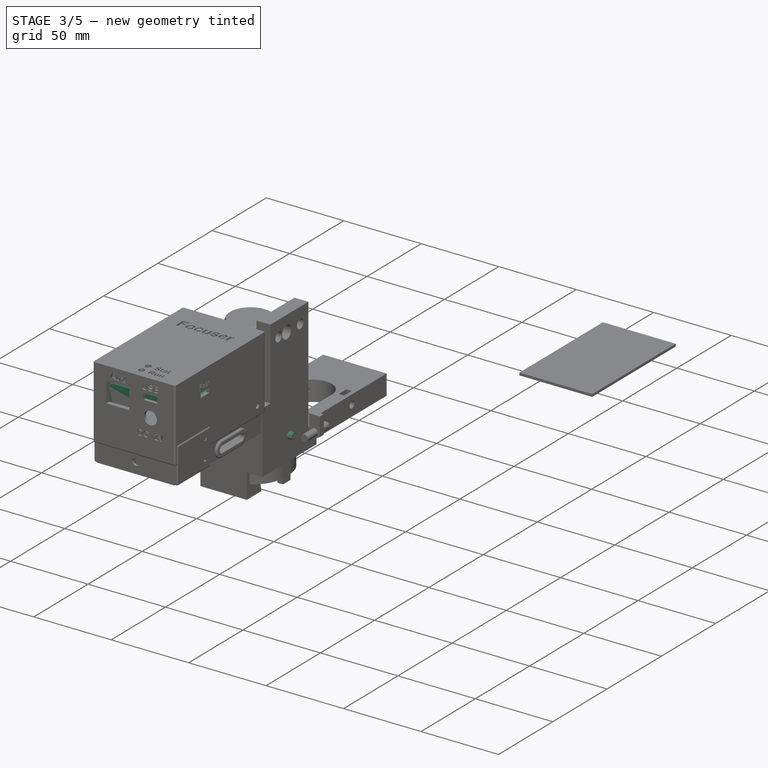
[diagram: stage 3 of 5 — iso view after this stage's code; geometry added in this stage tinted green]
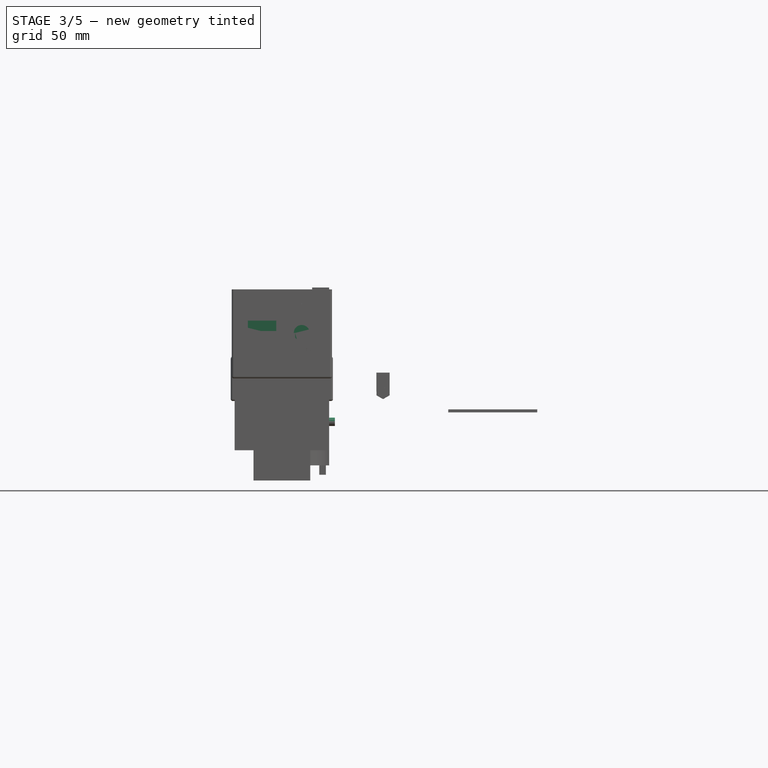
[diagram: stage 3 of 5 — front view after this stage's code; geometry added in this stage tinted green]
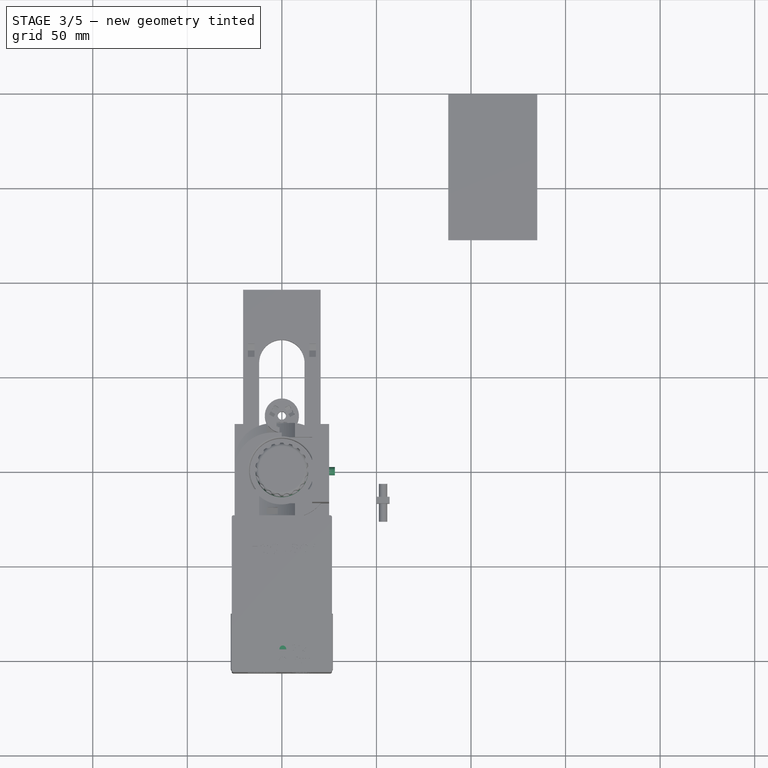
[diagram: stage 3 of 5 — top view after this stage's code; geometry added in this stage tinted green]
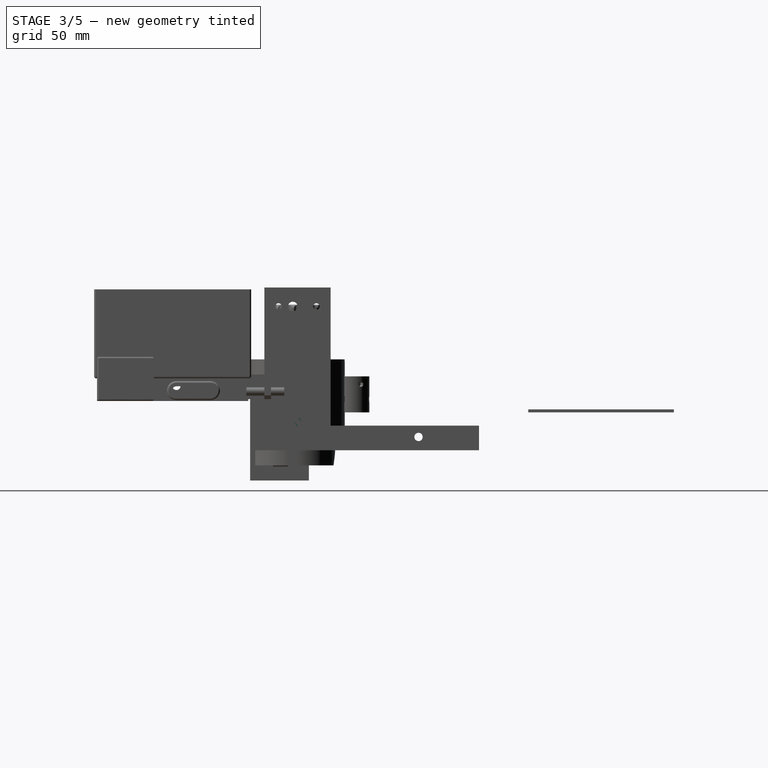
[diagram: stage 3 of 5 — right view after this stage's code; geometry added in this stage tinted green]
FEATURE [Part::Box] Box021129  label="Krychle120"
  AttacherType = Attacher::AttachEngine3D
  Height = 42.5
  Length = 50
  Placement = pos=(-25,-84,6) rot=(0,0,1;0rad)
  Width = 58
FEATURE [Part::Box] Box021130  label="Krychle121"
  AttacherType = Attacher::AttachEngine3D
  Height = 12.5
  Length = 42
  Placement = pos=(-21,-84,5.5) rot=(0,0,1;0rad)
  Width = 58
FEATURE [Part::Box] Box021131  label="Krychle122"
  AttacherType = Attacher::AttachEngine3D
  Height = 26
  Length = 42
  Placement = pos=(-21,-77.5,22.5) rot=(0,0,1;0rad)
  Width = 58
FEATURE [Part::Box] Box021132  label="Krychle123"
  AttacherType = Attacher::AttachEngine3D
  Height = 10
  Length = 53
  Placement = pos=(-26.5,-64,6.5) rot=(0,0,1;0rad)
  Width = 18
FEATURE [Part::Cylinder] Cylinder112024025003003006010004122  label="Válec249"
  Angle = 360
  AttacherType = Attacher::AttachEngine3D
  Height = 53
  Placement = pos=(-26.5,-46,11.5) rot=(0,1,0;1.5708rad)
  Radius = 5
FEATURE [Part::Cylinder] Cylinder112024025003003006010004123  label="Válec250"
  Angle = 360
  AttacherType = Attacher::AttachEngine3D
  Height = 53
  Placement = pos=(-26.5,-64,11.5) rot=(0,1,0;1.5708rad)
  Radius = 5
FEATURE [Part::MultiFuse] Fusion005043005007002062  label="Motor M1"
  Shapes = -> [Cylinder112024025003003006010004123,Cylinder112024025003003006010004122,Box021132,Box021129]
FEATURE [Part::Box] Box021133  label="Krychle124"
  AttacherType = Attacher::AttachEngine3D
  Height = 19.5
  Length = 50
  Placement = pos=(-25,-77.5,29.5) rot=(0,0,1;0rad)
  Width = 58
FEATURE [Part::Cylinder] Cylinder112024025003003006010004128  label="cy043"
  Angle = 360
  AttacherType = Attacher::AttachEngine3D
  Height = 24
  Placement = pos=(0,-39,0) rot=(0,0,1;0rad)
  Radius = 12
FEATURE [Part::Cylinder] Cylinder112024025003003006010004129  label="cy044"
  Angle = 360
  AttacherType = Attacher::AttachEngine3D
  Height = 24
  Placement = pos=(-9,-72.5,0) rot=(0,0,1;0rad)
  Radius = 2.2
FEATURE [Part::Cylinder] Cylinder112024025003003006010004130  label="cy045"
  Angle = 360
  AttacherType = Attacher::AttachEngine3D
  Height = 24
  Placement = pos=(9,-72.5,0) rot=(0,0,1;0rad)
  Radius = 2.2
FEATURE [Part::Cylinder] Cylinder112024025003003006010004131  label="Válec251"
  Angle = 360
  AttacherType = Attacher::AttachEngine3D
  Height = 53
  Placement = pos=(-26.5,-64,11.5) rot=(0,1,0;1.5708rad)
  Radius = 2.3
FEATURE [Part::Cylinder] Cylinder112024025003003006010004132  label="Válec252"
  Angle = 360
  AttacherType = Attacher::AttachEngine3D
  Height = 53
  Placement = pos=(-26.5,-46,11.5) rot=(0,1,0;1.5708rad)
  Radius = 2.3
FEATURE [Part::Box] Box021137  label="Krychle128"
  AttacherType = Attacher::AttachEngine3D
  Height = 4.6
  Length = 53
  Placement = pos=(-26.5,-64,9.2) rot=(0,0,1;0rad)
  Width = 18
FEATURE [Part::Box] Box021138  label="Krychle129"
  AttacherType = Attacher::AttachEngine3D
  Height = 19
  Length = 4
  Placement = pos=(21,-84,29.5) rot=(0,0,1;0rad)
  Width = 6.5
FEATURE [Part::Box] Box021139  label="Krychle130"
  AttacherType = Attacher::AttachEngine3D
  Height = 19
  Length = 4
  Placement = pos=(-25,-84,29.5) rot=(0,0,1;0rad)
  Width = 6.5
FEATURE [Part::MultiFuse] Fusion005043005007002063  label="Motor vyrezy"
  Shapes = -> [Box021130,Box021131,Box021133,Cylinder112024025003003006010004129,Cylinder112024025003003006010004130,Cylinder112024025003003006010004128,Cylinder112024025003003006010004131,Cylinder112024025003003006010004132,Box021137,Box021138,Box021139]
FEATURE [Part::Cut] Cut018020020009027020002003004004026003003  label="EAF Motor"
  Base = -> Fusion005043005007002062
  Tool = -> Fusion005043005007002063
FEATURE [Part::Fillet] Fillet030  label="EAF-Motor V4"
  Base = -> Cut018020020009027020002003004004026003003
  Edges = 20 edges: [Edge4 r=1,Edge7 r=1,Edge8 r=1,Edge9 r=2,Edge10 r=2,Edge16 r=1,Edge20 r=1,Edge24 r=2,Edge28 r=2,Edge31 r=2,Edge34 r=1,Edge39 r=2,Edge43 r=2,Edge77 r=2,Edge79 r=2,Edge85 r=2,Edge117 r=1,Edge120 r=1,Edge123 r=1,Edge124 r=1]
FEATURE [Part::Part2DObjectPython] ShapeString  # Draft 2D object (typed FeaturePython)
  FontFile = <path>
  Placement = pos=(-13.13,-84,29.82) rot=(1,0,0;1.5708rad)
  Size = 10
  String = EAF
  Tracking = 0
FEATURE [Part::Extrusion] Extrude002
  Base = -> ShapeString
  Dir = (0,-1,0)
  DirMode = 2
  FaceMakerClass = Part::FaceMakerBullseye
  LengthFwd = -0.75
  LengthRev = 0
  Solid = false
  Symmetric = false
FEATURE [Part::Cut] Cut018020020009027020002003004004026003005  label="EAF-motor-V4"
  Base = -> Fillet030
  Tool = -> Extrude002
FEATURE [Part::Box] Box021157  label="Krychle147"
  AttacherType = Attacher::AttachEngine3D
  Height = 10
  Length = 3.5
  Placement = pos=(13.5,-58,0) rot=(0,0,1;0rad)
  Width = 7
FEATURE [Sketcher::SketchObject] Sketch004
  FullyConstrained = false
  MapMode = 5
  Placement = pos=(13.5,-58,0) rot=(0.57735,-0.57735,-0.57735;2.0944rad)
  Support = -> [Box021157]
  sketch-geometry (7):
    g0: LineSegment StartX=-3.5 StartY=4 StartZ=0 EndX=-6.9641 EndY=2 EndZ=0
    g1: LineSegment StartX=-6.9641 StartY=2 StartZ=0 EndX=-6.9641 EndY=-2 EndZ=0
    g2: LineSegment StartX=-6.9641 StartY=-2 StartZ=0 EndX=-3.5 EndY=-4 EndZ=0
    g3: LineSegment StartX=-3.5 StartY=-4 StartZ=0 EndX=-0.0358984 EndY=-2 EndZ=0
    g4: LineSegment StartX=-0.0358984 StartY=-2 StartZ=0 EndX=-0.0358984 EndY=2 EndZ=0
    g5: LineSegment StartX=-0.0358984 StartY=2 StartZ=0 EndX=-3.5 EndY=4 EndZ=0
    g6: Circle CenterX=-3.5 CenterY=0 CenterZ=0 NormalX=0 NormalY=0 NormalZ=1 AngleXU=0 Radius=4
  constraints (14):
    c: Coincident(g0,g1)
    c: Coincident(g1,g2)
    c: Coincident(g2,g3)
    c: Coincident(g3,g4)
    c: Coincident(g4,g5)
    c: Coincident(g5,g0)
    c: Equal(g0, g1-g5) x5
    c: PointOnObject(g0,g6)
    c: PointOnObject(g1,g6)
    c: PointOnObject(g2,g6)
    c: PointOnObject(g3,g6)
    c: PointOnObject(g4,g6)
    c: PointOnObject(g5,g6)
    c: PointOnObject(g6,g-1)
FEATURE [Part::Extrusion] Extrude005
  Base = -> Sketch004
  Dir = (-1,0,0)
  DirMode = 2
  FaceMakerClass = Part::FaceMakerBullseye
  LengthFwd = -3.5
  LengthRev = 0
  Solid = true
  Symmetric = false
FEATURE [Part::MultiFuse] Fusion005043005007002078006  label="Matice004"
  Placement = pos=(3,-27.5,-52) rot=(1,0,0;4.18879rad)
  Shapes = -> [Box021157,Extrude005]
FEATURE [Part::Cylinder] Cylinder112024025003003006010004163  label="Válec280"
  Angle = 360
  AttacherType = Attacher::AttachEngine3D
  Height = 15
  Placement = pos=(13,0,-5) rot=(0,1,0;1.5708rad)
  Radius = 2.2
FEATURE [Part::Feature] Cut018020020009027020002003004004026003005007001  label="BODY001"
  shape: bbox 50 x 116 x 52 mm, 85 faces (baked)
FEATURE [Part::Box] Box021158  label="Krychle148"
  AttacherType = Attacher::AttachEngine3D
  Height = 12.5
  Length = 42
  Placement = pos=(-21,-95,5.5) rot=(0,0,1;0rad)
  Width = 69
FEATURE [Part::Box] Box021159  label="Krychle149"
  AttacherType = Attacher::AttachEngine3D
  Height = 26
  Length = 42
  Placement = pos=(-21,-69.5,30.5) rot=(0,0,1;0rad)
  Width = 58
FEATURE [Part::Box] Box021160  label="Krychle150"
  AttacherType = Attacher::AttachEngine3D
  Height = 10
  Length = 53
  Placement = pos=(-26.5,-64,6.5) rot=(0,0,1;0rad)
  Width = 18
FEATURE [Part::Cylinder] Cylinder112024025003003006010004164  label="Válec281"
  Angle = 360
  AttacherType = Attacher::AttachEngine3D
  Height = 53
  Placement = pos=(-26.5,-46,11.5) rot=(0,1,0;1.5708rad)
  Radius = 5
FEATURE [Part::Cylinder] Cylinder112024025003003006010004165  label="Válec282"
  Angle = 360
  AttacherType = Attacher::AttachEngine3D
  Height = 53
  Placement = pos=(-26.5,-64,11.5) rot=(0,1,0;1.5708rad)
  Radius = 5
FEATURE [Part::Box] Box021161  label="Krychle151"
  AttacherType = Attacher::AttachEngine3D
  Height = 42.5
  Length = 50
  Placement = pos=(-25,-95,6) rot=(0,0,1;0rad)
  Width = 69
FEATURE [Part::Box] Box021162  label="Krychle152"
  AttacherType = Attacher::AttachEngine3D
  Height = 19.5
  Length = 50
  Placement = pos=(-25,-69.5,30.5) rot=(0,0,1;0rad)
  Width = 58
FEATURE [Part::Cylinder] Cylinder112024025003003006010004166  label="cy046"
  Angle = 360
  AttacherType = Attacher::AttachEngine3D
  Height = 32
  Placement = pos=(0,-47.5,0) rot=(0,0,1;0rad)
  Radius = 12
FEATURE [Part::Cylinder] Cylinder112024025003003006010004167  label="cy047"
  Angle = 360
  AttacherType = Attacher::AttachEngine3D
  Height = 20
  Placement = pos=(-15.5,-62.5,15) rot=(0,0,1;0rad)
  Radius = 1.7
FEATURE [Part::Cylinder] Cylinder112024025003003006010004168  label="cy048"
  Angle = 360
  AttacherType = Attacher::AttachEngine3D
  Height = 20
  Placement = pos=(15.5,-62.5,15) rot=(0,0,1;0rad)
  Radius = 1.7
FEATURE [Part::Cylinder] Cylinder112024025003003006010004169  label="Válec283"
  Angle = 360
  AttacherType = Attacher::AttachEngine3D
  Height = 53
  Placement = pos=(-26.5,-64,11.5) rot=(0,1,0;1.5708rad)
  Radius = 2.3
FEATURE [Part::Cylinder] Cylinder112024025003003006010004170  label="Válec284"
  Angle = 360
  AttacherType = Attacher::AttachEngine3D
  Height = 53
  Placement = pos=(-26.5,-46,11.5) rot=(0,1,0;1.5708rad)
  Radius = 2.3
FEATURE [Part::Box] Box021163  label="Krychle153"
  AttacherType = Attacher::AttachEngine3D
  Height = 4.6
  Length = 53
  Placement = pos=(-26.5,-64,9.2) rot=(0,0,1;0rad)
  Width = 18
FEATURE [Part::Box] Box021164  label="Krychle154"
  AttacherType = Attacher::AttachEngine3D
  Height = 19
  Length = 4
  Placement = pos=(21,-84,29.5) rot=(0,0,1;0rad)
  Width = 6.5
FEATURE [Part::Box] Box021165  label="Krychle155"
  AttacherType = Attacher::AttachEngine3D
  Height = 19
  Length = 4
  Placement = pos=(-25,-84,29.5) rot=(0,0,1;0rad)
  Width = 6.5
FEATURE [Part::Part2DObjectPython] ShapeString001  # Draft 2D object (typed FeaturePython)
  FontFile = <path>
  Placement = pos=(-13.13,-84,29.82) rot=(1,0,0;1.5708rad)
  Size = 5
  String = OnStep Fokus
  Tracking = 0
FEATURE [Part::Extrusion] Extrude006  label="Test"
  Base = -> ShapeString001
  Dir = (0,-1,0)
  DirMode = 2
  FaceMakerClass = Part::FaceMakerBullseye
  LengthFwd = -0.75
  LengthRev = 0
  Placement = pos=(-9,-11,-10.5) rot=(0,0,1;0rad)
  Solid = false
  Symmetric = false
FEATURE [Part::MultiFuse] Fusion005043005007002078007  label="Motor M002"
  Shapes = -> [Cylinder112024025003003006010004165,Cylinder112024025003003006010004164,Box021160,Box021161]
FEATURE [Part::Feature] Fusion001001  label="Nema17"
  Placement = pos=(0,0,0) rot=(0,0,1;1.5708rad)
  shape: bbox 42.3 x 48 x 46.35 mm, 98 faces (baked)
FEATURE [App::Part] Part014  label="Nema 17"
  Group = -> [Fusion001001]
  License = CC BY 3.0
  LicenseURL = http://creativecommons.org/licenses/by/3.0/
  Origin = -> Origin014
  Placement = pos=(0,-47.5,57) rot=(1,0,0;3.14159rad)
FEATURE [Part::Cylinder] Cylinder112024025003003006010004171  label="cy049"
  Angle = 360
  AttacherType = Attacher::AttachEngine3D
  Height = 20
  Placement = pos=(-15.5,-31.5,15) rot=(0,0,1;0rad)
  Radius = 1.7
FEATURE [Part::Cylinder] Cylinder112024025003003006010004172  label="cy050"
  Angle = 360
  AttacherType = Attacher::AttachEngine3D
  Height = 20
  Placement = pos=(15.5,-31.5,15) rot=(0,0,1;0rad)
  Radius = 1.7
FEATURE [Part::Cylinder] Cylinder112024025003003006010004173  label="cy051"
  Angle = 360
  AttacherType = Attacher::AttachEngine3D
  Height = 5
  Placement = pos=(-15.5,-31.5,18) rot=(0,0,1;0rad)
  Radius = 3
FEATURE [Part::Cylinder] Cylinder112024025003003006010004174  label="cy052"
  Angle = 360
  AttacherType = Attacher::AttachEngine3D
  Height = 4
  Placement = pos=(15.5,-31.5,18) rot=(0,0,1;0rad)
  Radius = 3
FEATURE [Part::Cylinder] Cylinder112024025003003006010004175  label="cy053"
  Angle = 360
  AttacherType = Attacher::AttachEngine3D
  Height = 4
  Placement = pos=(-15.5,-62.5,18) rot=(0,0,1;0rad)
  Radius = 3
FEATURE [Part::Cylinder] Cylinder112024025003003006010004176  label="cy054"
  Angle = 360
  AttacherType = Attacher::AttachEngine3D
  Height = 4
  Placement = pos=(15.5,-62.5,18) rot=(0,0,1;0rad)
  Radius = 3
FEATURE [Part::MultiFuse] Fusion005043005007002078009  label="motor Inbus"
  Shapes = -> [Cylinder112024025003003006010004171,Cylinder112024025003003006010004172,Cylinder112024025003003006010004167,Cylinder112024025003003006010004168,Cylinder112024025003003006010004173,Cylinder112024025003003006010004174,Cylinder112024025003003006010004175,Cylinder112024025003003006010004176]
FEATURE [Part::Box] Box021166  label="Krychle156"
  AttacherType = Attacher::AttachEngine3D
  Height = 10
  Length = 10
  Width = 10
FEATURE [Part::Feature] Shape
  shape: bbox 19.56 x 2e-07 x 2e-07 mm, 0 faces, 0 solids (baked)
FEATURE [Part::Feature] Shape001
  shape: bbox 2e-07 x 20.45 x 2e-07 mm, 0 faces, 0 solids (baked)
FEATURE [Part::Feature] Shape002
  shape: bbox 19.56 x 2e-07 x 2e-07 mm, 0 faces, 0 solids (baked)
FEATURE [Part::Feature] Shape003
  shape: bbox 2e-07 x 20.32 x 2e-07 mm, 0 faces, 0 solids (baked)
FEATURE [Part::Feature] Shape004
  shape: bbox 0.127 x 0.127 x 2e-07 mm, 0 faces, 0 solids (baked)
FEATURE [Part::Feature] Shape005
  shape: bbox 3.048 x 2.032 x 2e-07 mm, 0 faces, 0 solids (baked)
FEATURE [Part::Feature] Shape006
  shape: bbox 3.81 x 0.127 x 2e-07 mm, 0 faces, 0 solids (baked)
FEATURE [Part::Feature] Shape007
  shape: bbox 2.413 x 2e-07 x 2e-07 mm, 0 faces, 0 solids (baked)
FEATURE [Part::Feature] Shape008
  shape: bbox 0.8865 x 0.8865 x 2e-07 mm, 0 faces, 0 solids (baked)
FEATURE [Part::Feature] Shape009
  shape: bbox 6.243 x 2e-07 x 2e-07 mm, 0 faces, 0 solids (baked)
FEATURE [Part::Feature] Shape010
  shape: bbox 0.8306 x 0.8306 x 2e-07 mm, 0 faces, 0 solids (baked)
FEATURE [Part::Feature] Shape011
  shape: bbox 1.168 x 0.6909 x 2e-07 mm, 0 faces, 0 solids (baked)
FEATURE [Part::Feature] Shape012
  shape: bbox 1.118 x 0.5969 x 2e-07 mm, 0 faces, 0 solids (baked)
FEATURE [Part::Feature] Shape013
  shape: bbox 4.064 x 0.127 x 2e-07 mm, 0 faces, 0 solids (baked)
FEATURE [Part::Feature] Shape014
  shape: bbox 2e-07 x 0.9042 x 2e-07 mm, 0 faces, 0 solids (baked)
FEATURE [Part::Feature] Shape015
  shape: bbox 3.383 x 3.917 x 2e-07 mm, 0 faces, 0 solids (baked)
FEATURE [Part::Feature] Shape016
  shape: bbox 8.024 x 2e-07 x 2e-07 mm, 0 faces, 0 solids (baked)
FEATURE [Part::Feature] Shape017
  shape: bbox 2e-07 x 4.064 x 2e-07 mm, 0 faces, 0 solids (baked)
FEATURE [Part::Feature] Shape018
  shape: bbox 1.778 x 0.127 x 2e-07 mm, 0 faces, 0 solids (baked)
FEATURE [Part::Feature] Shape019
  shape: bbox 5.588 x 2e-07 x 2e-07 mm, 0 faces, 0 solids (baked)
FEATURE [Part::Feature] Shape020
  shape: bbox 5.588 x 2e-07 x 2e-07 mm, 0 faces, 0 solids (baked)
FEATURE [Part::Feature] Shape021
  shape: bbox 2e-07 x 10.16 x 2e-07 mm, 0 faces, 0 solids (baked)
FEATURE [Part::Feature] Shape022
  shape: bbox 2e-07 x 1.27 x 2e-07 mm, 0 faces, 0 solids (baked)
FEATURE [Part::Feature] Shape023
  shape: bbox 2e-07 x 7.62 x 2e-07 mm, 0 faces, 0 solids (baked)
FEATURE [Part::Feature] Shape024
  shape: bbox 2e-07 x 1.27 x 2e-07 mm, 0 faces, 0 solids (baked)
FEATURE [Part::Feature] Shape025
  shape: bbox 1.27 x 2e-07 x 2e-07 mm, 0 faces, 0 solids (baked)
FEATURE [Part::Feature] Shape026
  shape: bbox 2e-07 x 7.62 x 2e-07 mm, 0 faces, 0 solids (baked)
FEATURE [Part::Feature] Shape027
  shape: bbox 1.27 x 2e-07 x 2e-07 mm, 0 faces, 0 solids (baked)
FEATURE [Part::Feature] Shape028
  shape: bbox 2e-07 x 10.2 x 2e-07 mm, 0 faces, 0 solids (baked)
FEATURE [Part::Feature] Shape029
  shape: bbox 14.65 x 2e-07 x 2e-07 mm, 0 faces, 0 solids (baked)
FEATURE [Part::Feature] Shape030
  shape: bbox 2e-07 x 10.2 x 2e-07 mm, 0 faces, 0 solids (baked)
FEATURE [Part::Feature] Shape031
  shape: bbox 14.65 x 2e-07 x 2e-07 mm, 0 faces, 0 solids (baked)
FEATURE [Part::Feature] Shape032
  shape: bbox 1.928 x 2e-07 x 2e-07 mm, 0 faces, 0 solids (baked)
FEATURE [Part::Feature] Shape033
  shape: bbox 2e-07 x 3.302 x 2e-07 mm, 0 faces, 0 solids (baked)
FEATURE [Part::Feature] Shape034
  shape: bbox 1.016 x 2e-07 x 2e-07 mm, 0 faces, 0 solids (baked)
FEATURE [Part::Feature] Shape035
  shape: bbox 2e-07 x 3.048 x 2e-07 mm, 0 faces, 0 solids (baked)
FEATURE [Part::Feature] Shape036
  shape: bbox 1.016 x 2e-07 x 2e-07 mm, 0 faces, 0 solids (baked)
FEATURE [Part::Feature] Shape037
  shape: bbox 2e-07 x 3.048 x 2e-07 mm, 0 faces, 0 solids (baked)
FEATURE [Part::Feature] Shape038
  shape: bbox 1.928 x 0.00254 x 2e-07 mm, 0 faces, 0 solids (baked)
FEATURE [Part::Feature] Shape039
  shape: bbox 2 x 2 x 2e-07 mm, 0 faces, 0 solids (baked)
FEATURE [Part::Feature] Shape040
  shape: bbox 2.5 x 2.5 x 2e-07 mm, 0 faces, 0 solids (baked)
FEATURE [Part::Feature] Shape041
  shape: bbox 2 x 2 x 2e-07 mm, 0 faces, 0 solids (baked)
FEATURE [Part::Feature] Shape042
  shape: bbox 2.5 x 2.5 x 2e-07 mm, 0 faces, 0 solids (baked)
FEATURE [Part::Feature] Shape043
  shape: bbox 2 x 2 x 2e-07 mm, 0 faces, 0 solids (baked)
FEATURE [Part::Feature] Shape044
  shape: bbox 2.5 x 2.5 x 2e-07 mm, 0 faces, 0 solids (baked)
FEATURE [Part::Feature] Shape045
  shape: bbox 2 x 2 x 2e-07 mm, 0 faces, 0 solids (baked)
FEATURE [Part::Feature] Shape046
  shape: bbox 2.5 x 2.5 x 2e-07 mm, 0 faces, 0 solids (baked)
FEATURE [Part::Feature] Shape047
  shape: bbox 1.016 x 1.016 x 2e-07 mm, 0 faces, 0 solids (baked)
FEATURE [Part::Feature] Shape048
  shape: bbox 1.88 x 1.88 x 2e-07 mm, 0 faces, 0 solids (baked)
FEATURE [Part::Feature] Shape049
  shape: bbox 1.016 x 1.016 x 2e-07 mm, 0 faces, 0 solids (baked)
FEATURE [Part::Feature] Shape050
  shape: bbox 1.88 x 1.88 x 2e-07 mm, 0 faces, 0 solids (baked)
FEATURE [Part::Feature] Shape051
  shape: bbox 1.016 x 1.016 x 2e-07 mm, 0 faces, 0 solids (baked)
FEATURE [Part::Feature] Shape052
  shape: bbox 1.88 x 1.88 x 2e-07 mm, 0 faces, 0 solids (baked)
FEATURE [Part::Feature] Shape053
  shape: bbox 0.9144 x 0.9144 x 2e-07 mm, 0 faces, 0 solids (baked)
FEATURE [Part::Feature] Shape054
  shape: bbox 1.524 x 1.524 x 2e-07 mm, 0 faces, 0 solids (baked)
FEATURE [Part::Feature] Shape055
  shape: bbox 0.9144 x 0.9144 x 2e-07 mm, 0 faces, 0 solids (baked)
FEATURE [Part::Feature] Shape056
  shape: bbox 1.524 x 1.524 x 2e-07 mm, 0 faces, 0 solids (baked)
FEATURE [Part::Feature] Shape057
  shape: bbox 0.9144 x 0.9144 x 2e-07 mm, 0 faces, 0 solids (baked)
FEATURE [Part::Feature] Shape058
  shape: bbox 1.524 x 1.524 x 2e-07 mm, 0 faces, 0 solids (baked)
FEATURE [Part::Feature] Shape059
  shape: bbox 0.9144 x 0.9144 x 2e-07 mm, 0 faces, 0 solids (baked)
FEATURE [Part::Feature] Shape060
  shape: bbox 1.524 x 1.524 x 2e-07 mm, 0 faces, 0 solids (baked)
FEATURE [Part::Feature] Shape061
  shape: bbox 1.016 x 1.016 x 2e-07 mm, 0 faces, 0 solids (baked)
FEATURE [Part::Feature] Shape062
  shape: bbox 2e-07 x 1.88 x 2e-07 mm, 0 faces, 0 solids (baked)
FEATURE [Part::Feature] Shape063
  shape: bbox 1.88 x 2e-07 x 2e-07 mm, 0 faces, 0 solids (baked)
FEATURE [Part::Feature] Shape064
  shape: bbox 2e-07 x 1.88 x 2e-07 mm, 0 faces, 0 solids (baked)
FEATURE [Part::Feature] Shape065
  shape: bbox 1.88 x 2e-07 x 2e-07 mm, 0 faces, 0 solids (baked)
FEATURE [Part::Feature] Shape066
  shape: bbox 2.032 x 2.032 x 2e-07 mm, 0 faces, 0 solids (baked)
FEATURE [Part::Feature] Shape067
  shape: bbox 2.032 x 2.032 x 2e-07 mm, 0 faces, 0 solids (baked)
FEATURE [Part::Box] Box021167  label="PCB001"
  AttacherType = Attacher::AttachEngine3D
  Height = 25
  Length = 23
  Placement = pos=(-10.5,-10.5,0) rot=(0,0,1;0rad)
  Width = 21
FEATURE [Part::Box] Box021168  label="Krychle157"
  AttacherType = Attacher::AttachEngine3D
  Height = 16
  Length = 20
  Placement = pos=(-13,-7,0) rot=(0,0,1;0rad)
  Width = 14
FEATURE [Part::Cylinder] Cylinder112024025003003006010004177  label="Válec285"
  Angle = 360
  AttacherType = Attacher::AttachEngine3D
  Height = 15
  Placement = pos=(-2.5,8,-5) rot=(0,0,1;0rad)
  Radius = 0.75
FEATURE [Part::Cylinder] Cylinder112024025003003006010004178  label="Válec286"
  Angle = 360
  AttacherType = Attacher::AttachEngine3D
  Height = 15
  Placement = pos=(5,-7.5,-5) rot=(0,0,1;0rad)
  Radius = 0.75
FEATURE [Part::Cylinder] Cylinder112024025003003006010004179  label="Válec287"
  Angle = 360
  AttacherType = Attacher::AttachEngine3D
  Height = 15
  Placement = pos=(5,8,-5) rot=(0,0,1;0rad)
  Radius = 0.75
FEATURE [Part::Cylinder] Cylinder112024025003003006010004180  label="Válec288"
  Angle = 359
  AttacherType = Attacher::AttachEngine3D
  Height = 18
  Placement = pos=(-2.5,-7.5,-5) rot=(0,0,1;0rad)
  Radius = 0.75
FEATURE [Part::Box] Box021169  label="Krychle158"
  AttacherType = Attacher::AttachEngine3D
  Height = 15
  Length = 21
  Placement = pos=(-10.5,-6,-2) rot=(0,0,1;0rad)
  Width = 12
FEATURE [Part::Cylinder] Cylinder112024025003003006010004181  label="Válec289"
  Angle = 359
  AttacherType = Attacher::AttachEngine3D
  Height = 2
  Placement = pos=(-5.5,-5.5,-2) rot=(0,0,1;0rad)
  Radius = 1.75
FEATURE [Part::Cylinder] Cylinder112024025003003006010004182  label="Válec290"
  Angle = 359
  AttacherType = Attacher::AttachEngine3D
  Height = 2
  Placement = pos=(-5.5,6,-2) rot=(0,0,1;0rad)
  Radius = 1.75
FEATURE [Part::MultiFuse] Fusion005043005007002078010  label="Port"
  Placement = pos=(0,-82,26) rot=(0,0,1;1.5708rad)
  Shapes = -> [Box021167,Box021169,Cylinder112024025003003006010004178,Cylinder112024025003003006010004177,Box021168,Cylinder112024025003003006010004180,Cylinder112024025003003006010004179,Cylinder112024025003003006010004181,Cylinder112024025003003006010004182]
FEATURE [Part::MultiFuse] Fusion005043005007002078008  label="Motor vyrezy001"
  Shapes = -> [Box021158,Box021159,Box021162,Cylinder112024025003003006010004166,Cylinder112024025003003006010004169,Cylinder112024025003003006010004170,Box021163,Fusion005043005007002078009,Fusion005043005007002078010,Extrude006]
FEATURE [Part::Cut] Cut018020020009027020002003004004026003005007002  label="EAF Motor001"
  Base = -> Fusion005043005007002078007
  Tool = -> Fusion005043005007002078008
FEATURE [Part::Fillet] Fillet028003  label="OnSterpFokus"
  Base = -> Cut018020020009027020002003004004026003005007002
  Edges = 14 edges: [Edge4 r=1,Edge7 r=1,Edge8 r=2,Edge17 r=1,Edge21 r=1,Edge25 r=2,Edge38 r=2,Edge42 r=2,Edge46 r=2,Edge48 r=2,Edge677 r=1,Edge680 r=1,Edge683 r=1,Edge684 r=1]
FEATURE [Part::Feature] Fillet028003001  label="OnSterpFokus001"
  shape: bbox 53 x 69 x 42.5 mm, 320 faces (baked)
FEATURE [Part::Feature] Fillet028003002  label="SCT-baseV005"
  shape: bbox 50 x 110 x 18.33 mm, 80 faces (baked)
FEATURE [Part::Box] Box021170  label="Krychle159"
  AttacherType = Attacher::AttachEngine3D
  Height = 13
  Length = 50
  Placement = pos=(-25,-96,7) rot=(0,0,1;0rad)
  Width = 86
FEATURE [Part::Box] Box021171  label="Krychle160"
  AttacherType = Attacher::AttachEngine3D
  Height = 23
  Length = 50
  Placement = pos=(-25,-25,-16) rot=(0.995037,0,0.099504;0rad)
  Width = 15
FEATURE [Part::Cylinder] Cylinder112024025003003006010004190  label="sroub001"
  Angle = 360
  AttacherType = Attacher::AttachEngine3D
  Height = 60
  Placement = pos=(-30,-64,14) rot=(0,1,0;1.5708rad)
  Radius = 2.2
FEATURE [Part::Cylinder] Cylinder112024025003003006010004191  label="Válec296"
  Angle = 360
  AttacherType = Attacher::AttachEngine3D
  Height = 5
  Placement = pos=(-9,-90.5,7) rot=(0,0,1;0rad)
  Radius = 3.7
FEATURE [Part::Box] Box021173  label="Krychle162"
  AttacherType = Attacher::AttachEngine3D
  Height = 13
  Length = 4.5
  Placement = pos=(20.5,-102,7) rot=(0,0,1;0rad)
  Width = 77
FEATURE [Part::Cylinder] Cylinder112024025003003006010004196  label="Válec301"
  Angle = 360
  AttacherType = Attacher::AttachEngine3D
  Height = 5
  Placement = pos=(9,-90.5,7) rot=(0,0,1;0rad)
  Radius = 3.7
FEATURE [Part::Box] Box021174  label="Krychle163"
  AttacherType = Attacher::AttachEngine3D
  Height = 5
  Length = 7.4
  Placement = pos=(5.3,-90.5,7) rot=(0,0,1;0rad)
  Width = 18
FEATURE [Part::Box] Box021178  label="Krychle167"
  AttacherType = Attacher::AttachEngine3D
  Height = 13
  Length = 4.5
  Placement = pos=(-25,-102,7) rot=(0,0,1;0rad)
  Width = 77
FEATURE [Part::Cylinder] Cylinder112024025003003006010004197  label="Válec302"
  Angle = 360
  AttacherType = Attacher::AttachEngine3D
  Height = 5
  Placement = pos=(-9,-72.5,7) rot=(0,0,1;0rad)
  Radius = 3.7
FEATURE [Part::Box] Box021179  label="Krychle168"
  AttacherType = Attacher::AttachEngine3D
  Height = 13
  Length = 24
  Placement = pos=(-12,-57.5,7) rot=(0,0,1;0rad)
  Width = 49
FEATURE [Part::Cylinder] Cylinder112024025003003006010004199  label="Válec304"
  Angle = 360
  AttacherType = Attacher::AttachEngine3D
  Height = 13
  Placement = pos=(0,-57.5,7) rot=(0,0,1;0rad)
  Radius = 12
FEATURE [Part::Cylinder] Cylinder112024025003003006010004200  label="Válec305"
  Angle = 360
  AttacherType = Attacher::AttachEngine3D
  Height = 5
  Placement = pos=(9,-72.5,7) rot=(0,0,1;0rad)
  Radius = 3.7
FEATURE [Part::Box] Box021181  label="Krychle170"
  AttacherType = Attacher::AttachEngine3D
  Height = 5
  Length = 7.4
  Placement = pos=(-12.7,-90.5,7) rot=(0,0,1;0rad)
  Width = 18
FEATURE [Part::Box] Box021175  label="Krychle164"
  AttacherType = Attacher::AttachEngine3D
  Height = 10
  Length = 3.5
  Placement = pos=(13.5,-58,0) rot=(0,0,1;0rad)
  Width = 7
FEATURE [Sketcher::SketchObject] Sketch005
  FullyConstrained = false
  MapMode = 5
  Placement = pos=(13.5,-58,0) rot=(0.57735,-0.57735,-0.57735;2.0944rad)
  Support = -> [Box021175]
  sketch-geometry (7):
    g0: LineSegment StartX=-3.5 StartY=4 StartZ=0 EndX=-6.9641 EndY=2 EndZ=0
    g1: LineSegment StartX=-6.9641 StartY=2 StartZ=0 EndX=-6.9641 EndY=-2 EndZ=0
    g2: LineSegment StartX=-6.9641 StartY=-2 StartZ=0 EndX=-3.5 EndY=-4 EndZ=0
    g3: LineSegment StartX=-3.5 StartY=-4 StartZ=0 EndX=-0.0358984 EndY=-2 EndZ=0
    g4: LineSegment StartX=-0.0358984 StartY=-2 StartZ=0 EndX=-0.0358984 EndY=2 EndZ=0
    g5: LineSegment StartX=-0.0358984 StartY=2 StartZ=0 EndX=-3.5 EndY=4 EndZ=0
    g6: Circle CenterX=-3.5 CenterY=0 CenterZ=0 NormalX=0 NormalY=0 NormalZ=1 AngleXU=0 Radius=4
  constraints (14):
    c: Coincident(g0,g1)
    c: Coincident(g1,g2)
    c: Coincident(g2,g3)
    c: Coincident(g3,g4)
    c: Coincident(g4,g5)
    c: Coincident(g5,g0)
    c: Equal(g0, g1-g5) x5
    c: PointOnObject(g0,g6)
    c: PointOnObject(g1,g6)
    c: PointOnObject(g2,g6)
    c: PointOnObject(g3,g6)
    c: PointOnObject(g4,g6)
    c: PointOnObject(g5,g6)
    c: PointOnObject(g6,g-1)
FEATURE [Part::Extrusion] Extrude007
  Base = -> Sketch005
  Dir = (-1,0,0)
  DirMode = 2
  FaceMakerClass = Part::FaceMakerBullseye
  LengthFwd = -3.5
  LengthRev = 0
  Solid = true
  Symmetric = false
FEATURE [Part::Box] Box021176  label="Krychle165"
  AttacherType = Attacher::AttachEngine3D
  Height = 10
  Length = 3.5
  Placement = pos=(13.5,-58,0) rot=(0,0,1;0rad)
  Width = 7
FEATURE [Sketcher::SketchObject] Sketch007
  FullyConstrained = false
  MapMode = 5
  Placement = pos=(13.5,-58,0) rot=(0.57735,-0.57735,-0.57735;2.0944rad)
  Support = -> [Box021176]
  sketch-geometry (7):
    g0: LineSegment StartX=-3.5 StartY=4 StartZ=0 EndX=-6.9641 EndY=2 EndZ=0
    g1: LineSegment StartX=-6.9641 StartY=2 StartZ=0 EndX=-6.9641 EndY=-2 EndZ=0
    g2: LineSegment StartX=-6.9641 StartY=-2 StartZ=0 EndX=-3.5 EndY=-4 EndZ=0
    g3: LineSegment StartX=-3.5 StartY=-4 StartZ=0 EndX=-0.0358984 EndY=-2 EndZ=0
    g4: LineSegment StartX=-0.0358984 StartY=-2 StartZ=0 EndX=-0.0358984 EndY=2 EndZ=0
    g5: LineSegment StartX=-0.0358984 StartY=2 StartZ=0 EndX=-3.5 EndY=4 EndZ=0
    g6: Circle CenterX=-3.5 CenterY=0 CenterZ=0 NormalX=0 NormalY=0 NormalZ=1 AngleXU=0 Radius=4
  constraints (14):
    c: Coincident(g0,g1)
    c: Coincident(g1,g2)
    c: Coincident(g2,g3)
    c: Coincident(g3,g4)
    c: Coincident(g4,g5)
    c: Coincident(g5,g0)
    c: Equal(g0, g1-g5) x5
    c: PointOnObject(g0,g6)
    c: PointOnObject(g1,g6)
    c: PointOnObject(g2,g6)
    c: PointOnObject(g3,g6)
    c: PointOnObject(g4,g6)
    c: PointOnObject(g5,g6)
    c: PointOnObject(g6,g-1)
FEATURE [Part::Extrusion] Extrude008
  Base = -> Sketch007
  Dir = (-1,0,0)
  DirMode = 2
  FaceMakerClass = Part::FaceMakerBullseye
  LengthFwd = -3.5
  LengthRev = 0
  Solid = true
  Symmetric = false
FEATURE [Part::MultiFuse] Fusion005043005007002078019  label="Matice007"
  Placement = pos=(1,-118.5,14) rot=(1,0,0;3.14159rad)
  Shapes = -> [Box021175,Extrude007]
FEATURE [Part::MultiFuse] Fusion005043005007002078011  label="Matice005"
  Placement = pos=(-31.5,-118.5,14) rot=(1,0,0;3.14159rad)
  Shapes = -> [Box021176,Extrude008]
FEATURE [Part::MultiFuse] Fusion005043005007002078016  label="Holes005"
  Shapes = -> [Box021178,Box021173,Cylinder112024025003003006010004190,Cylinder112024025003003006010004199,Box021179,Box021181,Box021174,Cylinder112024025003003006010004200,Cylinder112024025003003006010004196,Cylinder112024025003003006010004197,Cylinder112024025003003006010004191,Fusion005043005007002078019,Fusion005043005007002078011]
FEATURE [Part::Cylinder] Cylinder112024025003003006010004201  label="Válec306"
  Angle = 90
  AttacherType = Attacher::AttachEngine3D
  Height = 13
  Placement = pos=(-25,-23,7) rot=(0,0,1;0rad)
  Radius = 13
FEATURE [Part::Cylinder] Cylinder112024025003003006010004202  label="Válec307"
  Angle = 90
  AttacherType = Attacher::AttachEngine3D
  Height = 13
  Placement = pos=(25,-23,7) rot=(0,0,1;1.5708rad)
  Radius = 13
FEATURE [Part::MultiFuse] Fusion005043005007002078013  label="Main001"
  Shapes = -> [Box021171,Box021170,Cut018020020009027020002003004004026003005,Cylinder112024025003003006010004201,Cylinder112024025003003006010004202]
FEATURE [Part::Cut] Cut018020020009027020002003004004026003005007003  label="EAF_H"
  Base = -> Fusion005043005007002078013
  Tool = -> Fusion005043005007002078016
FEATURE [App::Part] Part004  label="Body"
  Group = -> [Cylinder112024025003003006010004142,Box021146,Cylinder112024025003003006010004144,Cylinder112024025003003006010004141,Cylinder112024025003003006010004143,Fusion005043005007002069,Fusion005043005007002068,Cut018020020009027020002003004004026003005005,Cylinder016,ShapeString,Sketch005,Sketch007,Fillet030,Cut018020020009027020002003004004026003005007003,Cut018020020009027020002003004004026003003,+42 more]
  License = CC BY 3.0
  LicenseURL = http://creativecommons.org/licenses/by/3.0/
  Origin = -> Origin004
FEATURE [Part::Part2DObjectPython] ShapeString002  # Draft 2D object (typed FeaturePython)
  FontFile = <path>
  Placement = pos=(-13.13,-84,29.82) rot=(1,0,0;1.5708rad)
  Size = 10
  String = EAF
  Tracking = 0
FEATURE [Part::Box] Box021182  label="Krychle171"
  AttacherType = Attacher::AttachEngine3D
  Height = 4.6
  Length = 53
  Placement = pos=(-26.5,-64,9.2) rot=(0,0,1;0rad)
  Width = 18
FEATURE [Part::Box] Box021183  label="Krychle172"
  AttacherType = Attacher::AttachEngine3D
  Height = 19
  Length = 4
  Placement = pos=(21,-84,29.5) rot=(0,0,1;0rad)
  Width = 6.5
FEATURE [Part::Cylinder] Cylinder112024025003003006010004203  label="cy055"
  Angle = 360
  AttacherType = Attacher::AttachEngine3D
  Height = 24
  Placement = pos=(9,-72.5,0) rot=(0,0,1;0rad)
  Radius = 2.2
FEATURE [Part::Box] Box021184  label="Krychle173"
  AttacherType = Attacher::AttachEngine3D
  Height = 42.5
  Length = 50
  Placement = pos=(-25,-84,6) rot=(0,0,1;0rad)
  Width = 58
FEATURE [Part::Box] Box021185  label="Krychle174"
  AttacherType = Attacher::AttachEngine3D
  Height = 10
  Length = 53
  Placement = pos=(-26.5,-64,6.5) rot=(0,0,1;0rad)
  Width = 18
FEATURE [Part::Cylinder] Cylinder112024025003003006010004204  label="Válec308"
  Angle = 360
  AttacherType = Attacher::AttachEngine3D
  Height = 53
  Placement = pos=(-26.5,-46,11.5) rot=(0,1,0;1.5708rad)
  Radius = 5
FEATURE [Part::Cylinder] Cylinder112024025003003006010004205  label="cy056"
  Angle = 360
  AttacherType = Attacher::AttachEngine3D
  Height = 24
  Placement = pos=(0,-39,0) rot=(0,0,1;0rad)
  Radius = 12
FEATURE [Part::Extrusion] Extrude009
  Base = -> ShapeString002
  Dir = (0,-1,0)
  DirMode = 2
  FaceMakerClass = Part::FaceMakerBullseye
  LengthFwd = -0.75
  LengthRev = 0
  Solid = false
  Symmetric = false
FEATURE [Part::Box] Box021186  label="Krychle175"
  AttacherType = Attacher::AttachEngine3D
  Height = 19.5
  Length = 50
  Placement = pos=(-25,-77.5,29.5) rot=(0,0,1;0rad)
  Width = 58
FEATURE [Part::Cylinder] Cylinder112024025003003006010004206  label="Válec309"
  Angle = 360
  AttacherType = Attacher::AttachEngine3D
  Height = 53
  Placement = pos=(-26.5,-64,11.5) rot=(0,1,0;1.5708rad)
  Radius = 2.3
FEATURE [Part::Box] Box021187  label="Krychle176"
  AttacherType = Attacher::AttachEngine3D
  Height = 26
  Length = 42
  Placement = pos=(-21,-77.5,22.5) rot=(0,0,1;0rad)
  Width = 58
FEATURE [Part::Cylinder] Cylinder112024025003003006010004207  label="cy057"
  Angle = 360
  AttacherType = Attacher::AttachEngine3D
  Height = 24
  Placement = pos=(-9,-72.5,0) rot=(0,0,1;0rad)
  Radius = 2.2
FEATURE [Part::Cylinder] Cylinder112024025003003006010004208  label="Válec310"
  Angle = 360
  AttacherType = Attacher::AttachEngine3D
  Height = 53
  Placement = pos=(-26.5,-46,11.5) rot=(0,1,0;1.5708rad)
  Radius = 2.3
FEATURE [Part::Box] Box021188  label="Krychle177"
  AttacherType = Attacher::AttachEngine3D
  Height = 19
  Length = 4
  Placement = pos=(-25,-84,29.5) rot=(0,0,1;0rad)
  Width = 6.5
FEATURE [Part::Box] Box021189  label="Krychle178"
  AttacherType = Attacher::AttachEngine3D
  Height = 12.5
  Length = 42
  Placement = pos=(-21,-84,5.5) rot=(0,0,1;0rad)
  Width = 58
FEATURE [Part::MultiFuse] Fusion005043005007002078020  label="Motor vyrezy002"
  Shapes = -> [Box021189,Box021187,Box021186,Cylinder112024025003003006010004207,Cylinder112024025003003006010004203,Cylinder112024025003003006010004205,Cylinder112024025003003006010004206,Cylinder112024025003003006010004208,Box021182,Box021183,Box021188]
FEATURE [Part::Cylinder] Cylinder112024025003003006010004209  label="Válec311"
  Angle = 360
  AttacherType = Attacher::AttachEngine3D
  Height = 53
  Placement = pos=(-26.5,-64,11.5) rot=(0,1,0;1.5708rad)
  Radius = 5
FEATURE [Part::MultiFuse] Fusion005043005007002078021  label="Motor M003"
  Shapes = -> [Cylinder112024025003003006010004209,Cylinder112024025003003006010004204,Box021185,Box021184]
FEATURE [Part::Cut] Cut018020020009027020002003004004026003005007006  label="EAF Motor002"
  Base = -> Fusion005043005007002078021
  Tool = -> Fusion005043005007002078020
FEATURE [Part::Fillet] Fillet028003003  label="EAF-Motor V005"
  Base = -> Cut018020020009027020002003004004026003005007006
  Edges = 20 edges: [Edge4 r=1,Edge7 r=1,Edge8 r=1,Edge9 r=2,Edge10 r=2,Edge16 r=1,Edge20 r=1,Edge24 r=2,Edge28 r=2,Edge31 r=2,Edge34 r=1,Edge39 r=2,Edge43 r=2,Edge77 r=2,Edge79 r=2,Edge85 r=2,Edge117 r=1,Edge120 r=1,Edge123 r=1,Edge124 r=1]
FEATURE [Part::Box] Box021190  label="Krychle179"
  AttacherType = Attacher::AttachEngine3D
  Height = 13
  Length = 50
  Placement = pos=(-25,-96,7) rot=(0,0,1;0rad)
  Width = 86
FEATURE [Part::Box] Box021191  label="Krychle180"
  AttacherType = Attacher::AttachEngine3D
  Height = 23
  Length = 50
  Placement = pos=(-25,-25,-16) rot=(0.995037,0,0.099504;0rad)
  Width = 15
FEATURE [Part::Box] Box021192  label="Krychle181"
  AttacherType = Attacher::AttachEngine3D
  Height = 5
  Length = 7.4
  Placement = pos=(5.3,-90.5,7) rot=(0,0,1;0rad)
  Width = 18
FEATURE [Part::Cylinder] Cylinder112024025003003006010004210  label="Válec312"
  Angle = 360
  AttacherType = Attacher::AttachEngine3D
  Height = 5
  Placement = pos=(-9,-90.5,7) rot=(0,0,1;0rad)
  Radius = 3.7
FEATURE [Part::Box] Box021193  label="Krychle182"
  AttacherType = Attacher::AttachEngine3D
  Height = 13
  Length = 4.5
  Placement = pos=(-25,-102,7) rot=(0,0,1;0rad)
  Width = 77
FEATURE [Part::Box] Box021194  label="Krychle183"
  AttacherType = Attacher::AttachEngine3D
  Height = 13
  Length = 4.5
  Placement = pos=(20.5,-102,7) rot=(0,0,1;0rad)
  Width = 77
FEATURE [Part::Cylinder] Cylinder112024025003003006010004211  label="Válec313"
  Angle = 360
  AttacherType = Attacher::AttachEngine3D
  Height = 5
  Placement = pos=(-9,-72.5,7) rot=(0,0,1;0rad)
  Radius = 3.7
FEATURE [Part::Box] Box021195  label="Krychle184"
  AttacherType = Attacher::AttachEngine3D
  Height = 13
  Length = 24
  Placement = pos=(-12,-57.5,7) rot=(0,0,1;0rad)
  Width = 49
FEATURE [Part::Cylinder] Cylinder112024025003003006010004212  label="Válec314"
  Angle = 360
  AttacherType = Attacher::AttachEngine3D
  Height = 13
  Placement = pos=(0,-57.5,7) rot=(0,0,1;0rad)
  Radius = 12
FEATURE [Part::Cylinder] Cylinder112024025003003006010004213  label="sroub002"
  Angle = 360
  AttacherType = Attacher::AttachEngine3D
  Height = 60
  Placement = pos=(-30,-64,14) rot=(0,1,0;1.5708rad)
  Radius = 2.2
FEATURE [Part::Cylinder] Cylinder112024025003003006010004214  label="Válec315"
  Angle = 360
  AttacherType = Attacher::AttachEngine3D
  Height = 5
  Placement = pos=(9,-90.5,7) rot=(0,0,1;0rad)
  Radius = 3.7
FEATURE [Part::Cylinder] Cylinder112024025003003006010004215  label="Válec316"
  Angle = 360
  AttacherType = Attacher::AttachEngine3D
  Height = 5
  Placement = pos=(9,-72.5,7) rot=(0,0,1;0rad)
  Radius = 3.7
FEATURE [Part::Cylinder] Cylinder112024025003003006010004216  label="Válec317"
  Angle = 90
  AttacherType = Attacher::AttachEngine3D
  Height = 13
  Placement = pos=(25,-23,7) rot=(0,0,1;1.5708rad)
  Radius = 13
FEATURE [Part::Cylinder] Cylinder112024025003003006010004217  label="Válec318"
  Angle = 90
  AttacherType = Attacher::AttachEngine3D
  Height = 13
  Placement = pos=(-25,-23,7) rot=(0,0,1;0rad)
  Radius = 13
FEATURE [Part::MultiFuse] Fusion005043005007002078023  label="Main002"
  Shapes = -> [Box021191,Box021190,Cylinder112024025003003006010004217,Cylinder112024025003003006010004216]
FEATURE [Part::Box] Box021196  label="Krychle185"
  AttacherType = Attacher::AttachEngine3D
  Height = 10
  Length = 3.5
  Placement = pos=(13.5,-58,0) rot=(0,0,1;0rad)
  Width = 7
FEATURE [Sketcher::SketchObject] Sketch009
  FullyConstrained = false
  MapMode = 5
  Placement = pos=(13.5,-58,0) rot=(0.57735,-0.57735,-0.57735;2.0944rad)
  Support = -> [Box021196]
  sketch-geometry (7):
    g0: LineSegment StartX=-3.5 StartY=4 StartZ=0 EndX=-6.9641 EndY=2 EndZ=0
    g1: LineSegment StartX=-6.9641 StartY=2 StartZ=0 EndX=-6.9641 EndY=-2 EndZ=0
    g2: LineSegment StartX=-6.9641 StartY=-2 StartZ=0 EndX=-3.5 EndY=-4 EndZ=0
    g3: LineSegment StartX=-3.5 StartY=-4 StartZ=0 EndX=-0.0358984 EndY=-2 EndZ=0
    g4: LineSegment StartX=-0.0358984 StartY=-2 StartZ=0 EndX=-0.0358984 EndY=2 EndZ=0
    g5: LineSegment StartX=-0.0358984 StartY=2 StartZ=0 EndX=-3.5 EndY=4 EndZ=0
    g6: Circle CenterX=-3.5 CenterY=0 CenterZ=0 NormalX=0 NormalY=0 NormalZ=1 AngleXU=0 Radius=4
  constraints (14):
    c: Coincident(g0,g1)
    c: Coincident(g1,g2)
    c: Coincident(g2,g3)
    c: Coincident(g3,g4)
    c: Coincident(g4,g5)
    c: Coincident(g5,g0)
    c: Equal(g0, g1-g5) x5
    c: PointOnObject(g0,g6)
    c: PointOnObject(g1,g6)
    c: PointOnObject(g2,g6)
    c: PointOnObject(g3,g6)
    c: PointOnObject(g4,g6)
    c: PointOnObject(g5,g6)
    c: PointOnObject(g6,g-1)
FEATURE [Part::Box] Box021197  label="Krychle186"
  AttacherType = Attacher::AttachEngine3D
  Height = 5
  Length = 7.4
  Placement = pos=(-12.7,-90.5,7) rot=(0,0,1;0rad)
  Width = 18
FEATURE [Part::Box] Box021198  label="Krychle187"
  AttacherType = Attacher::AttachEngine3D
  Height = 10
  Length = 3.5
  Placement = pos=(13.5,-58,0) rot=(0,0,1;0rad)
  Width = 7
FEATURE [Sketcher::SketchObject] Sketch008
  FullyConstrained = false
  MapMode = 5
  Placement = pos=(13.5,-58,0) rot=(0.57735,-0.57735,-0.57735;2.0944rad)
  Support = -> [Box021198]
  sketch-geometry (7):
    g0: LineSegment StartX=-3.5 StartY=4 StartZ=0 EndX=-6.9641 EndY=2 EndZ=0
    g1: LineSegment StartX=-6.9641 StartY=2 StartZ=0 EndX=-6.9641 EndY=-2 EndZ=0
    g2: LineSegment StartX=-6.9641 StartY=-2 StartZ=0 EndX=-3.5 EndY=-4 EndZ=0
    g3: LineSegment StartX=-3.5 StartY=-4 StartZ=0 EndX=-0.0358984 EndY=-2 EndZ=0
    g4: LineSegment StartX=-0.0358984 StartY=-2 StartZ=0 EndX=-0.0358984 EndY=2 EndZ=0
    g5: LineSegment StartX=-0.0358984 StartY=2 StartZ=0 EndX=-3.5 EndY=4 EndZ=0
    g6: Circle CenterX=-3.5 CenterY=0 CenterZ=0 NormalX=0 NormalY=0 NormalZ=1 AngleXU=0 Radius=4
  constraints (14):
    c: Coincident(g0,g1)
    c: Coincident(g1,g2)
    c: Coincident(g2,g3)
    c: Coincident(g3,g4)
    c: Coincident(g4,g5)
    c: Coincident(g5,g0)
    c: Equal(g0, g1-g5) x5
    c: PointOnObject(g0,g6)
    c: PointOnObject(g1,g6)
    c: PointOnObject(g2,g6)
    c: PointOnObject(g3,g6)
    c: PointOnObject(g4,g6)
    c: PointOnObject(g5,g6)
    c: PointOnObject(g6,g-1)
FEATURE [Part::Extrusion] Extrude010
  Base = -> Sketch009
  Dir = (-1,0,0)
  DirMode = 2
  FaceMakerClass = Part::FaceMakerBullseye
  LengthFwd = -3.5
  LengthRev = 0
  Solid = true
  Symmetric = false
FEATURE [Part::MultiFuse] Fusion005043005007002078024  label="Matice009"
  Placement = pos=(-31.5,-118.5,14) rot=(1,0,0;3.14159rad)
  Shapes = -> [Box021196,Extrude010]
FEATURE [Part::Extrusion] Extrude011
  Base = -> Sketch008
  Dir = (-1,0,0)
  DirMode = 2
  FaceMakerClass = Part::FaceMakerBullseye
  LengthFwd = -3.5
  LengthRev = 0
  Solid = true
  Symmetric = false
FEATURE [Part::MultiFuse] Fusion005043005007002078022  label="Matice008"
  Placement = pos=(1,-118.5,14) rot=(1,0,0;3.14159rad)
  Shapes = -> [Box021198,Extrude011]
FEATURE [Part::MultiFuse] Fusion005043005007002078025  label="Holes006"
  Shapes = -> [Box021193,Box021194,Cylinder112024025003003006010004213,Cylinder112024025003003006010004212,Box021195,Box021197,Box021192,Cylinder112024025003003006010004215,Cylinder112024025003003006010004214,Cylinder112024025003003006010004211,Cylinder112024025003003006010004210,Fusion005043005007002078022,Fusion005043005007002078024]
FEATURE [Part::Cut] Cut018020020009027020002003004004026003005007005  label="EAF_H001"
  Base = -> Fusion005043005007002078023
  Tool = -> Fusion005043005007002078025
FEATURE [Part::Box] Box021199  label="Krychle188"
  AttacherType = Attacher::AttachEngine3D
  Height = 23
  Length = 50
  Placement = pos=(-25,-25,-16) rot=(0.995037,0,0.099504;0rad)
  Width = 15
FEATURE [Part::Cylinder] Cylinder112024025003003006010004218  label="Válec319"
  Angle = 360
  AttacherType = Attacher::AttachEngine3D
  Height = 5
  Placement = pos=(-9,-90.5,7) rot=(0,0,1;0rad)
  Radius = 3.7
FEATURE [Part::Box] Box021200  label="Krychle189"
  AttacherType = Attacher::AttachEngine3D
  Height = 13
  Length = 50
  Placement = pos=(-25,-96,7) rot=(0,0,1;0rad)
  Width = 73
FEATURE [Part::Box] Box021201  label="Krychle190"
  AttacherType = Attacher::AttachEngine3D
  Height = 5
  Length = 7.4
  Placement = pos=(5.3,-90.5,7) rot=(0,0,1;0rad)
  Width = 18
FEATURE [Part::Box] Box021202  label="Krychle191"
  AttacherType = Attacher::AttachEngine3D
  Height = 10
  Length = 3.5
  Placement = pos=(13.5,-58,0) rot=(0,0,1;0rad)
  Width = 7
FEATURE [Sketcher::SketchObject] Sketch011
  FullyConstrained = false
  MapMode = 5
  Placement = pos=(13.5,-58,0) rot=(0.57735,-0.57735,-0.57735;2.0944rad)
  Support = -> [Box021202]
  sketch-geometry (7):
    g0: LineSegment StartX=-3.5 StartY=4 StartZ=0 EndX=-6.9641 EndY=2 EndZ=0
    g1: LineSegment StartX=-6.9641 StartY=2 StartZ=0 EndX=-6.9641 EndY=-2 EndZ=0
    g2: LineSegment StartX=-6.9641 StartY=-2 StartZ=0 EndX=-3.5 EndY=-4 EndZ=0
    g3: LineSegment StartX=-3.5 StartY=-4 StartZ=0 EndX=-0.0358984 EndY=-2 EndZ=0
    g4: LineSegment StartX=-0.0358984 StartY=-2 StartZ=0 EndX=-0.0358984 EndY=2 EndZ=0
    g5: LineSegment StartX=-0.0358984 StartY=2 StartZ=0 EndX=-3.5 EndY=4 EndZ=0
    g6: Circle CenterX=-3.5 CenterY=0 CenterZ=0 NormalX=0 NormalY=0 NormalZ=1 AngleXU=0 Radius=4
  constraints (14):
    c: Coincident(g0,g1)
    c: Coincident(g1,g2)
    c: Coincident(g2,g3)
    c: Coincident(g3,g4)
    c: Coincident(g4,g5)
    c: Coincident(g5,g0)
    c: Equal(g0, g1-g5) x5
    c: PointOnObject(g0,g6)
    c: PointOnObject(g1,g6)
    c: PointOnObject(g2,g6)
    c: PointOnObject(g3,g6)
    c: PointOnObject(g4,g6)
    c: PointOnObject(g5,g6)
    c: PointOnObject(g6,g-1)
FEATURE [Part::Cylinder] Cylinder112024025003003006010004219  label="Válec320"
  Angle = 360
  AttacherType = Attacher::AttachEngine3D
  Height = 13
  Placement = pos=(25,-23,7) rot=(0,0,1;1.5708rad)
  Radius = 13
FEATURE [Part::Box] Box021203  label="Krychle192"
  AttacherType = Attacher::AttachEngine3D
  Height = 5
  Length = 7.4
  Placement = pos=(-12.7,-90.5,7) rot=(0,0,1;0rad)
  Width = 18
FEATURE [Part::Cylinder] Cylinder112024025003003006010004220  label="Válec321"
  Angle = 360
  AttacherType = Attacher::AttachEngine3D
  Height = 5
  Placement = pos=(9,-72.5,7) rot=(0,0,1;0rad)
  Radius = 3.7
FEATURE [Part::Cylinder] Cylinder112024025003003006010004221  label="Válec322"
  Angle = 360
  AttacherType = Attacher::AttachEngine3D
  Height = 13
  Placement = pos=(-25,-23,7) rot=(0,0,1;0rad)
  Radius = 13
FEATURE [Part::Box] Box021204  label="Krychle193"
  AttacherType = Attacher::AttachEngine3D
  Height = 13
  Length = 4.5
  Placement = pos=(20.5,-102,7) rot=(0,0,1;0rad)
  Width = 77
FEATURE [Part::Cylinder] Cylinder112024025003003006010004222  label="Válec323"
  Angle = 360
  AttacherType = Attacher::AttachEngine3D
  Height = 5
  Placement = pos=(9,-90.5,7) rot=(0,0,1;0rad)
  Radius = 3.7
FEATURE [Part::Cylinder] Cylinder112024025003003006010004223  label="sroub003"
  Angle = 360
  AttacherType = Attacher::AttachEngine3D
  Height = 60
  Placement = pos=(-30,-64,14) rot=(0,1,0;1.5708rad)
  Radius = 2.2
FEATURE [Part::Cylinder] Cylinder112024025003003006010004224  label="Válec324"
  Angle = 360
  AttacherType = Attacher::AttachEngine3D
  Height = 13
  Placement = pos=(0,-57.5,7) rot=(0,0,1;0rad)
  Radius = 12
FEATURE [Part::Extrusion] Extrude013
  Base = -> Sketch011
  Dir = (-1,0,0)
  DirMode = 2
  FaceMakerClass = Part::FaceMakerBullseye
  LengthFwd = -3.5
  LengthRev = 0
  Solid = true
  Symmetric = false
FEATURE [Part::MultiFuse] Fusion005043005007002078029  label="Matice011"
  Placement = pos=(-31.5,-118.5,14) rot=(1,0,0;3.14159rad)
  Shapes = -> [Box021202,Extrude013]
FEATURE [Part::Cylinder] Cylinder112024025003003006010004225  label="Válec325"
  Angle = 360
  AttacherType = Attacher::AttachEngine3D
  Height = 5
  Placement = pos=(-9,-72.5,7) rot=(0,0,1;0rad)
  Radius = 3.7
FEATURE [Part::Box] Box021205  label="Krychle194"
  AttacherType = Attacher::AttachEngine3D
  Height = 13
  Length = 24
  Placement = pos=(-12,-57.5,7) rot=(0,0,1;0rad)
  Width = 49
FEATURE [Part::Box] Box021206  label="Krychle195"
  AttacherType = Attacher::AttachEngine3D
  Height = 13
  Length = 4.5
  Placement = pos=(-25,-102,7) rot=(0,0,1;0rad)
  Width = 77
FEATURE [Part::Box] Box021207  label="Krychle196"
  AttacherType = Attacher::AttachEngine3D
  Height = 10
  Length = 3.5
  Placement = pos=(13.5,-58,0) rot=(0,0,1;0rad)
  Width = 7
FEATURE [Sketcher::SketchObject] Sketch010
  FullyConstrained = false
  MapMode = 5
  Placement = pos=(13.5,-58,0) rot=(0.57735,-0.57735,-0.57735;2.0944rad)
  Support = -> [Box021207]
  sketch-geometry (7):
    g0: LineSegment StartX=-3.5 StartY=4 StartZ=0 EndX=-6.9641 EndY=2 EndZ=0
    g1: LineSegment StartX=-6.9641 StartY=2 StartZ=0 EndX=-6.9641 EndY=-2 EndZ=0
    g2: LineSegment StartX=-6.9641 StartY=-2 StartZ=0 EndX=-3.5 EndY=-4 EndZ=0
    g3: LineSegment StartX=-3.5 StartY=-4 StartZ=0 EndX=-0.0358984 EndY=-2 EndZ=0
    g4: LineSegment StartX=-0.0358984 StartY=-2 StartZ=0 EndX=-0.0358984 EndY=2 EndZ=0
    g5: LineSegment StartX=-0.0358984 StartY=2 StartZ=0 EndX=-3.5 EndY=4 EndZ=0
    g6: Circle CenterX=-3.5 CenterY=0 CenterZ=0 NormalX=0 NormalY=0 NormalZ=1 AngleXU=0 Radius=4
  constraints (14):
    c: Coincident(g0,g1)
    c: Coincident(g1,g2)
    c: Coincident(g2,g3)
    c: Coincident(g3,g4)
    c: Coincident(g4,g5)
    c: Coincident(g5,g0)
    c: Equal(g0, g1-g5) x5
    c: PointOnObject(g0,g6)
    c: PointOnObject(g1,g6)
    c: PointOnObject(g2,g6)
    c: PointOnObject(g3,g6)
    c: PointOnObject(g4,g6)
    c: PointOnObject(g5,g6)
    c: PointOnObject(g6,g-1)
FEATURE [Part::Extrusion] Extrude012
  Base = -> Sketch010
  Dir = (-1,0,0)
  DirMode = 2
  FaceMakerClass = Part::FaceMakerBullseye
  LengthFwd = -3.5
  LengthRev = 0
  Solid = true
  Symmetric = false
FEATURE [Part::MultiFuse] Fusion005043005007002078028  label="Matice010"
  Placement = pos=(1,-118.5,14) rot=(1,0,0;3.14159rad)
  Shapes = -> [Box021207,Extrude012]
FEATURE [Part::MultiFuse] Fusion005043005007002078027  label="Holes007"
  Shapes = -> [Box021206,Box021204,Cylinder112024025003003006010004223,Cylinder112024025003003006010004224,Box021205,Box021203,Box021201,Cylinder112024025003003006010004220,Cylinder112024025003003006010004222,Cylinder112024025003003006010004225,Cylinder112024025003003006010004218,Fusion005043005007002078028,Fusion005043005007002078029]
FEATURE [Part::Box] Box021208  label="Krychle197"
  AttacherType = Attacher::AttachEngine3D
  Height = 13
  Length = 13
  Placement = pos=(25,-36,7) rot=(0,0,1;0rad)
  Width = 26
FEATURE [Part::Box] Box021209  label="Krychle198"
  AttacherType = Attacher::AttachEngine3D
  Height = 13
  Length = 13
  Placement = pos=(-38,-36,7) rot=(0,0,1;0rad)
  Width = 26
FEATURE [Part::MultiFuse] Fusion005043005007002078030
  Shapes = -> [Cylinder112024025003003006010004221,Cylinder112024025003003006010004219]
FEATURE [Part::MultiFuse] Fusion005043005007002078031
  Shapes = -> [Box021208,Box021209]
FEATURE [Part::Cut] Cut018020020009027020002003004004026003005007008
  Base = -> Fusion005043005007002078030
  Tool = -> Fusion005043005007002078031
FEATURE [Part::MultiFuse] Fusion005043005007002078026  label="Main003"
  Shapes = -> [Box021199,Box021200,Cut018020020009027020002003004004026003005007008]
FEATURE [Part::Cut] Cut018020020009027020002003004004026003005007007  label="EAF_H002"
  Base = -> Fusion005043005007002078026
  Tool = -> Fusion005043005007002078027
FEATURE [Part::Cylinder] Cylinder112024025003003006010004226  label="Válec326"
  Angle = 360
  AttacherType = Attacher::AttachEngine3D
  Height = 16
  Placement = pos=(0,0,-15) rot=(0,0,1;0rad)
  Radius = 14.5
FEATURE [Part::Cylinder] Cylinder112024025003003006010004229  label="Válec329"
  Angle = 360
  AttacherType = Attacher::AttachEngine3D
  Height = 41
  Placement = pos=(0,0,-21) rot=(0,0,1;0rad)
  Radius = 14.7
FEATURE [Part::Box] Box021212  label="Krychle201"
  AttacherType = Attacher::AttachEngine3D
  Height = 50
  Length = 32
  Placement = pos=(-16,-14,-65) rot=(0,0,1;0rad)
  Width = 16
FEATURE [Part::Box] Box021213  label="Krychle202"
  AttacherType = Attacher::AttachEngine3D
  Height = 20
  Length = 30
  Placement = pos=(-15,-25,-36) rot=(0,0,1;0rad)
  Width = 14
FEATURE [Part::Cylinder] Cylinder112024025003003006010004235  label="Velky002"
  Angle = 360
  AttacherType = Attacher::AttachEngine3D
  Height = 53
  Placement = pos=(-27,27,-44.5) rot=(0,1,0;1.5708rad)
  Radius = 41.5
FEATURE [Part::MultiFuse] Fusion005043005007002078032  label="Tělo002"
  Shapes = -> [Box021212,Cylinder112024025003003006010004235,Cylinder112024025003003006010004226]
FEATURE [Part::Box] Box021214  label="Krychle203"
  AttacherType = Attacher::AttachEngine3D
  Height = 13
  Length = 4.5
  Placement = pos=(-25,-102,7) rot=(0,0,1;0rad)
  Width = 77
FEATURE [Part::MultiFuse] Fusion005043005007002078038  label="Body005"
  Shapes = -> [Box021213,Fillet028003004]
FEATURE [Part::MultiFuse] Fusion005043005007002078036  label="Matice012"
  Placement = pos=(1,-118.5,14) rot=(1,0,0;3.14159rad)
  Shapes = -> [Box021218,Extrude014]
FEATURE [Part::MultiFuse] Fusion005043005007002078039  label="Matice014"
  Placement = pos=(-31.5,-118.5,14) rot=(1,0,0;3.14159rad)
  Shapes = -> [Box021220,Extrude015]
FEATURE [Part::MultiFuse] Fusion005043005007002078037  label="Matice013"
  Placement = pos=(5,-27.5,-54) rot=(1,0,0;4.18879rad)
  Shapes = -> [Box021221,Extrude016]
FEATURE [Part::MultiFuse] Fusion005043005007002078035  label="Holes008"
  Shapes = -> [Cylinder112024025003003006010004229,Box021214,Box021215,Cylinder112024025003003006010004236,Cylinder112024025003003006010004237,Box021216,Box021217,Box021219,Cylinder112024025003003006010004241,Cylinder112024025003003006010004239,Cylinder112024025003003006010004240,Cylinder112024025003003006010004242,Cylinder112024025003003006010004238,Fusion005043005007002078036,Fusion005043005007002078039,+4 more]
FEATURE [Part::Cut] Cut018020020009027020002003004004026003005007010  label="GSO "
  Base = -> Fusion005043005007002078038
  Tool = -> Fusion005043005007002078035
FEATURE [Part::Feature] Fusion005043005007002078052
  Placement = pos=(0,0,0) rot=(0,0,1;1.0472rad)
  shape: bbox 14.1 x 5.782 x 17 mm, 9 faces, 3 solids (baked)
FEATURE [Part::Feature] Fusion005043005007002078053
  Placement = pos=(0,0,0) rot=(0,0,1;2.0944rad)
  shape: bbox 10.6 x 11.86 x 17 mm, 9 faces, 3 solids (baked)
FEATURE [Part::Feature] Fusion005043005007002078054
  Placement = pos=(0,0,0) rot=(0,0,1;4.18879rad)
  shape: bbox 14.1 x 5.782 x 17 mm, 9 faces, 3 solids (baked)
FEATURE [Part::Feature] Cylinder112024025003003006010004262  label="Válec359"
  Placement = pos=(0,0,0) rot=(0,0,1;0.698132rad)
  shape: bbox 4 x 4 x 17 mm, 3 faces (baked)
FEATURE [Part::Feature] Fusion005043005007002078055
  Placement = pos=(0,0,0) rot=(0,0,1;3.14159rad)
  shape: bbox 7.509 x 13.64 x 17 mm, 9 faces, 3 solids (baked)
FEATURE [Part::Feature] Fusion005043005007002078056
  Placement = pos=(0,0,0) rot=(0,0,-1;1.0472rad)
  shape: bbox 10.6 x 11.86 x 17 mm, 9 faces, 3 solids (baked)
FEATURE [Part::Feature] Cylinder112024025003003006010004263  label="Válec360"
  Placement = pos=(0,0,0) rot=(0,0,1;0.349066rad)
  shape: bbox 4 x 4 x 17 mm, 3 faces (baked)
FEATURE [Part::Cylinder] Cylinder112024025003003006010004264  label="Válec361"
  Angle = 360
  AttacherType = Attacher::AttachEngine3D
  Height = 17
  Placement = pos=(15,0,36) rot=(0,0,1;0rad)
  Radius = 2
FEATURE [Part::MultiFuse] Fusion005043005007002078057
  Shapes = -> [Cylinder112024025003003006010004264,Cylinder112024025003003006010004263,Cylinder112024025003003006010004262]
FEATURE [Part::Feature] difference001007  label="PulleyGSO"
  Placement = pos=(0,0,12.5) rot=(0,0,1;0rad)
  shape: bbox 27.96 x 27.96 x 23.5 mm, 1072 faces (baked)
FEATURE [Part::Cylinder] Cylinder112024025003003006010004276  label="imbus"
  Angle = 360
  AttacherType = Attacher::AttachEngine3D
  Height = 10
  Placement = pos=(0,-8,19.5) rot=(1,0,0;1.5708rad)
  Radius = 2.9
FEATURE [Part::Feature] Cylinder112024025003003006010004276001  label="imbus001"
  Placement = pos=(0,0,0) rot=(0,0,1;2.0944rad)
  shape: bbox 11.56 x 10.02 x 5.8 mm, 3 faces (baked)
FEATURE [Part::Feature] Cylinder112024025003003006010004276002  label="imbus002"
  Placement = pos=(0,0,0) rot=(0,0,1;4.18879rad)
  shape: bbox 11.56 x 10.02 x 5.8 mm, 3 faces (baked)
FEATURE [Part::Cylinder] Cylinder112024025003003006010004276003  label="staff"
  Angle = 360
  AttacherType = Attacher::AttachEngine3D
  Height = 30
  Placement = pos=(0,0,12) rot=(0,0,1;0rad)
  Radius = 2.6
FEATURE [Part::Cylinder] Cylinder112024025003003006010004276004  label="valecspodni001"
  Angle = 360
  AttacherType = Attacher::AttachEngine3D
  Height = 10
  Placement = pos=(0,0,15) rot=(0.707107,0,0.707107;0rad)
  Radius = 14
FEATURE [Part::Cylinder] Cylinder112024025003003006010004276005  label="valecspodni002"
  Angle = 360
  AttacherType = Attacher::AttachEngine3D
  Height = 10
  Placement = pos=(0,0,15) rot=(0.707107,0,0.707107;0rad)
  Radius = 9
FEATURE [Part::Cut] Cut018020020009027020002003004004026003005007011  label="Valecspodni"
  Base = -> Cylinder112024025003003006010004276004
  Tool = -> Cylinder112024025003003006010004276005
FEATURE [Part::Cylinder] Cylinder112024025003003006010004276006  label="Valec horni001"
  Angle = 360
  AttacherType = Attacher::AttachEngine3D
  Height = 18
  Placement = pos=(0,0,36) rot=(0,0,1;0rad)
  Radius = 14
FEATURE [Part::Fillet] Fillet028003005
  Base = -> Cylinder112024025003003006010004276006
  Edges = 1 edges r=2: [Edge1]
FEATURE [Part::MultiFuse] Fusion005043005007002078059  label="PulejMain"
  Shapes = -> [difference001007,Cut018020020009027020002003004004026003005007011,Fillet028003005]
FEATURE [Part::Cylinder] Cylinder112024025003003006010004276007  label="Válec362"
  Angle = 360
  AttacherType = Attacher::AttachEngine3D
  Height = 4
  Placement = pos=(0,0,10) rot=(0,0,1;0rad)
  Radius = 4.2
FEATURE [Part::MultiFuse] Fusion005043005007002078058  label="DiryGSOP"
  Shapes = -> [Fusion005043005007002078057,Fusion005043005007002078052,Fusion005043005007002078053,Fusion005043005007002078054,Fusion005043005007002078056,Fusion005043005007002078055,Cylinder112024025003003006010004276,Cylinder112024025003003006010004276001,Cylinder112024025003003006010004276002,Cylinder112024025003003006010004276003,Cylinder112024025003003006010004276007]
FEATURE [Part::Cut] Cut018020020009027020002003004004026003005007012  label="GSO puley"
  Base = -> Fusion005043005007002078059
  Placement = pos=(0,0,-16) rot=(0,0,1;0rad)
  Tool = -> Fusion005043005007002078058
FEATURE [Part::MultiFuse] Fusion005043005007002078060  label="GSO 001"
  Shapes = -> [Box021226,Cut018020020009027020002003004004026003005007010]
FEATURE [Part::Cut] Cut018020020009027020002003004004026003005007013
  Base = -> Fusion005043005007002078060
  Tool = -> Fusion005043005007002078061
FEATURE [Part::Fillet] Fillet028003006  label="GSO_EAF"
  Base = -> Cut018020020009027020002003004004026003005007013
  Edges = 16 edges: [Edge89 r=0.4,Edge167 r=1,Edge197 r=1,Edge218 r=1,Edge220 r=1,Edge222 r=1,Edge227 r=1,Edge240 r=1,Edge243 r=1,Edge244 r=1,Edge245 r=1,Edge246 r=1,Edge247 r=1,Edge248 r=1,Edge249 r=1,Edge317 r=0.4]
FEATURE [Part::Feature] Cylinder112024025003003006010004276070  label="Válec414"
  Placement = pos=(0,0,0) rot=(0,0,1;4.18879rad)
  shape: bbox 7.858 x 10.31 x 3.3 mm, 3 faces (baked)
FEATURE [Part::Feature] Cylinder112024025003003006010004276071  label="Válec415"
  Placement = pos=(0,0,0) rot=(0,0,1;2.0944rad)
  shape: bbox 7.858 x 10.31 x 3.3 mm, 3 faces (baked)
FEATURE [Part::Feature] difference001008  label="Pulley GT2  - 044"
  Placement = pos=(0,0,19.5) rot=(0,0,1;0rad)
  shape: bbox 27.96 x 27.96 x 19.5 mm, 1014 faces (baked)
FEATURE [Part::MultiFuse] Fusion005043005007002078086001005
  Shapes = -> [Cylinder112024025003003006010004276071,Cylinder112024025003003006010004276070]
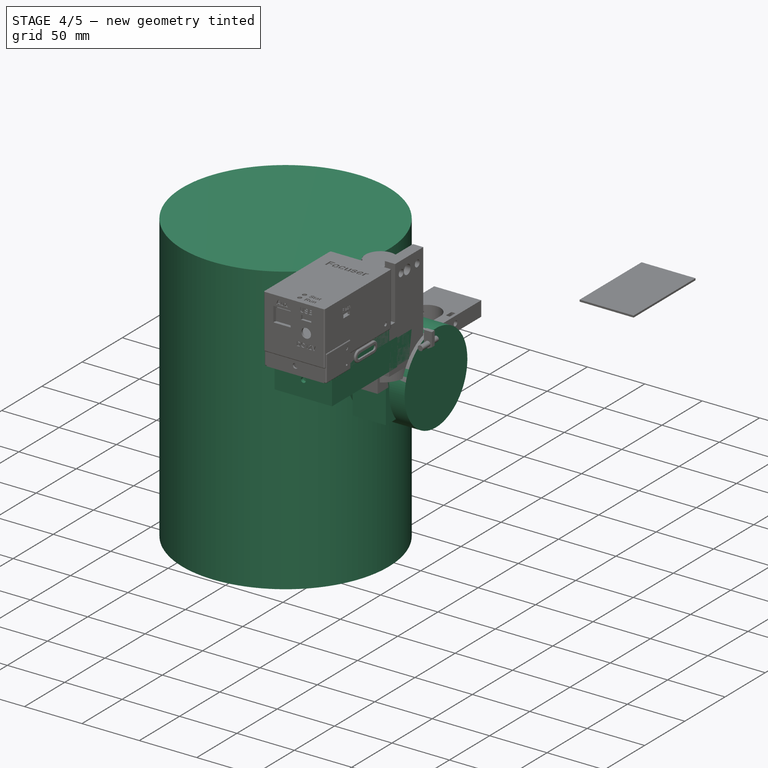
[diagram: stage 4 of 5 — iso view after this stage's code; geometry added in this stage tinted green]
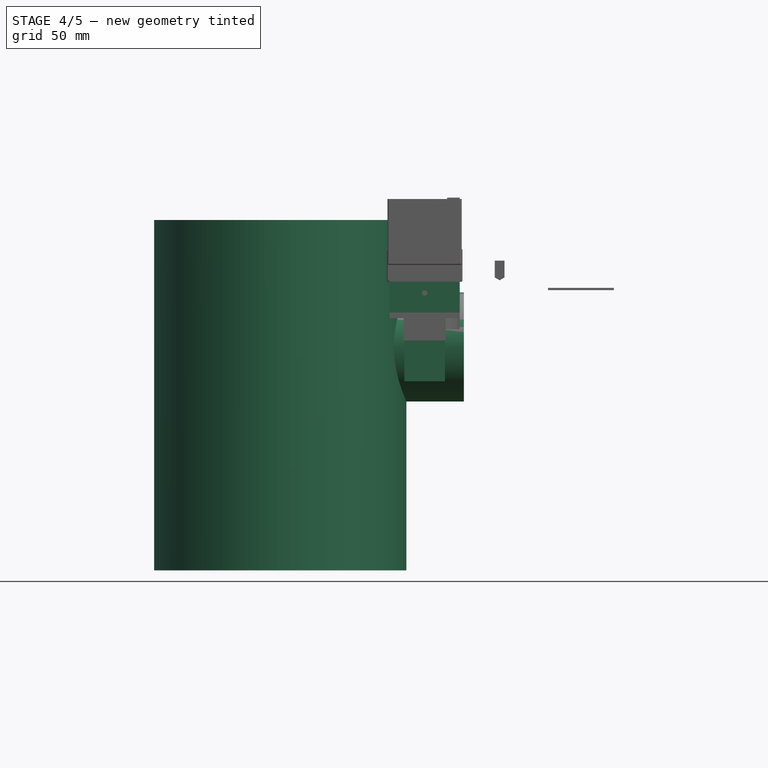
[diagram: stage 4 of 5 — front view after this stage's code; geometry added in this stage tinted green]
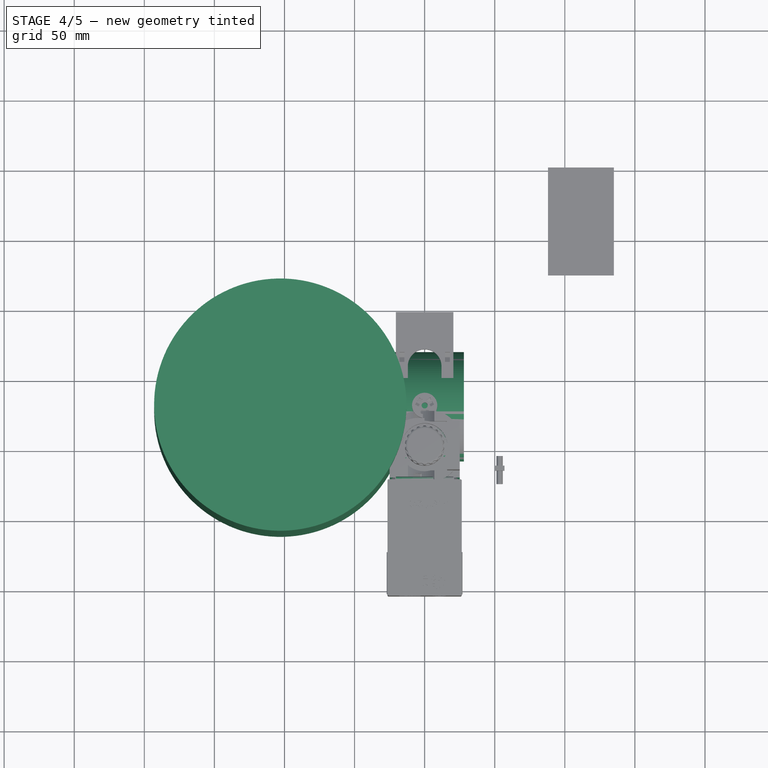
[diagram: stage 4 of 5 — top view after this stage's code; geometry added in this stage tinted green]
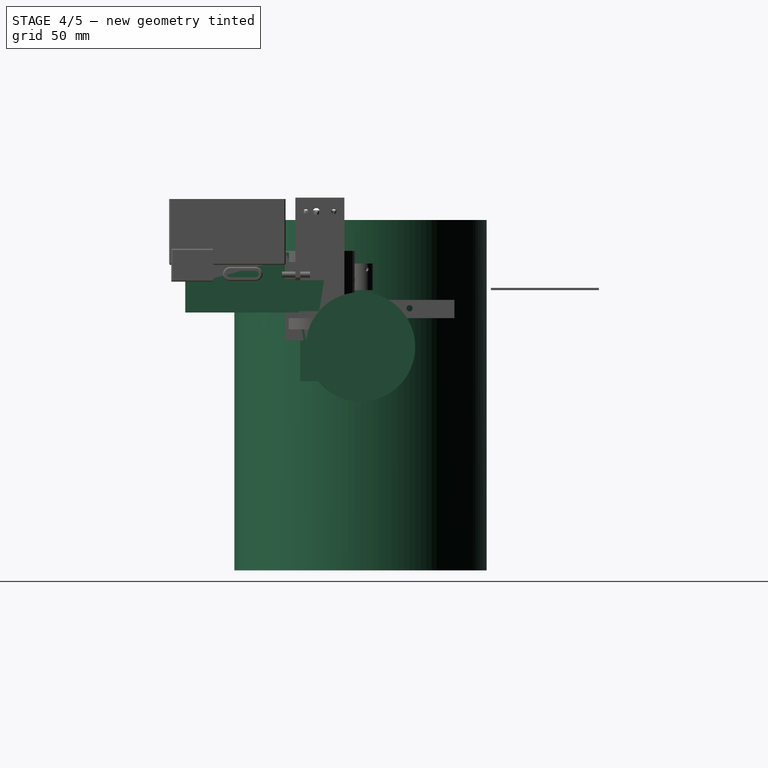
[diagram: stage 4 of 5 — right view after this stage's code; geometry added in this stage tinted green]
FEATURE [Part::Cylinder] Cylinder112024025003003006010004021  label="Válec192"
  Angle = 360
  AttacherType = Attacher::AttachEngine3D
  Height = 14
  Placement = pos=(14,-24,6) rot=(0,0,1;0rad)
  Radius = 1.15
FEATURE [Part::Box] Box021079  label="Krychle088"
  AttacherType = Attacher::AttachEngine3D
  Height = 14
  Length = 8
  Placement = pos=(10,-28.3,6) rot=(0,0,1;0rad)
  Width = 8.6
FEATURE [Part::Cylinder] Cylinder112024025003003006010004027  label="Válec198"
  Angle = 360
  AttacherType = Attacher::AttachEngine3D
  Height = 14
  Placement = pos=(10,-24,6) rot=(0,0,1;0rad)
  Radius = 4.3
FEATURE [Part::Cylinder] Cylinder112024025003003006010004028  label="Válec199"
  Angle = 360
  AttacherType = Attacher::AttachEngine3D
  Height = 14
  Placement = pos=(17.5,-24,11) rot=(0,1,0;1.5708rad)
  Radius = 1.7
FEATURE [Part::MultiFuse] Fusion005043005007002015
  Shapes = -> [Cylinder112024025003003006010004021,Cylinder112024025003003006010004028]
FEATURE [Part::Cylinder] Cylinder112024025003003006010004043  label="Válec214"
  Angle = 360
  AttacherType = Attacher::AttachEngine3D
  Height = 14
  Placement = pos=(11,-24,4) rot=(0,0,1;0rad)
  Radius = 1
FEATURE [Part::MultiFuse] Fusion005043005007002014
  Shapes = -> [Box021079,Cylinder112024025003003006010004027,Cylinder112024025003003006010004043]
FEATURE [Part::Cut] Cut018020020009027020002003004004013  label="kladka"
  Base = -> Fusion005043005007002014
  Tool = -> Fusion005043005007002015
FEATURE [Part::Chamfer] Chamfer008  label=" tensioner"
  Base = -> Cut018020020009027020002003004004013
  Edges = 2 edges r=0.3: [Edge1,Edge4]
FEATURE [App::Part] Part006  label="SCT - V2"
  Group = -> [Cut018020020009027020002003004004010,Cut018020020009027020002003004004011,Chamfer007,Fillet018,Cylinder112024025003003006010004004,Box021072,Box021074,Box021073,Box021070,Cylinder112024025003003006010004006,Cylinder112024025003003006010004011,Box021069,Box021071,Cylinder112024025003003006010004014,Cylinder112024025003003006010004015,Cylinder112024025003003006010004016,Box021075,Box021076,+62 more]
  License = CC BY 3.0
  LicenseURL = http://creativecommons.org/licenses/by/3.0/
  Origin = -> Origin006
FEATURE [Part::Feature] Cylinder112024025003003006010004044  label="holeě2i002"
  Placement = pos=(0,0,0) rot=(0,0,1;2.0944rad)
  shape: bbox 6 x 6 x 4 mm, 3 faces (baked)
FEATURE [Part::Feature] Cylinder112024025003003006010004045  label="hole1s002"
  Placement = pos=(0,0,0) rot=(0,0,1;4.18879rad)
  shape: bbox 3.4 x 3.4 x 10 mm, 3 faces (baked)
FEATURE [Part::Feature] Cylinder112024025003003006010004046  label="hole2s002"
  Placement = pos=(0,0,0) rot=(0,0,1;2.0944rad)
  shape: bbox 3.4 x 3.4 x 10 mm, 3 faces (baked)
FEATURE [Part::Feature] Cylinder112024025003003006010004047  label="hole1i002"
  Placement = pos=(0,0,0) rot=(0,0,1;4.18879rad)
  shape: bbox 6 x 6 x 4 mm, 3 faces (baked)
FEATURE [Part::Box] Box021084  label="Cub012"
  AttacherType = Attacher::AttachEngine3D
  Height = 31
  Length = 50
  Placement = pos=(-25,-93,0) rot=(0,0,1;0rad)
  Width = 68
FEATURE [Part::Cylinder] Cylinder112024025003003006010004048  label="Cy011"
  Angle = 360
  AttacherType = Attacher::AttachEngine3D
  Height = 6
  Radius = 25
FEATURE [Part::Cylinder] Cylinder112024025003003006010004049  label="hole3i002"
  Angle = 360
  AttacherType = Attacher::AttachEngine3D
  Height = 4
  Placement = pos=(0,16.5,3) rot=(0,0,1;0rad)
  Radius = 3
FEATURE [Part::Cylinder] Cylinder112024025003003006010004052  label="cy017"
  Angle = 360
  AttacherType = Attacher::AttachEngine3D
  Height = 24
  Placement = pos=(-9,-68,0) rot=(0,0,1;0rad)
  Radius = 2.2
FEATURE [Part::Box] Box021087  label="cub011"
  AttacherType = Attacher::AttachEngine3D
  Height = 18
  Length = 28
  Placement = pos=(-14,-45,6) rot=(0,0,1;0rad)
  Width = 25
FEATURE [Part::Cylinder] Cylinder112024025003003006010004053  label="cy018"
  Angle = 360
  AttacherType = Attacher::AttachEngine3D
  Height = 15
  Placement = pos=(0,0,6) rot=(0,0,1;0rad)
  Radius = 25
FEATURE [Part::Box] Box021088  label="Cub013"
  AttacherType = Attacher::AttachEngine3D
  Height = 16
  Length = 50
  Placement = pos=(-25,-25,6) rot=(0,0,1;0rad)
  Width = 12.5
FEATURE [Part::Chamfer] Chamfer009
  Base = -> Box021088
  Edges = 1 edges r=12: [Edge12]
FEATURE [Part::Box] Box021089  label="Cub014"
  AttacherType = Attacher::AttachEngine3D
  Height = 6
  Length = 50
  Placement = pos=(-25,-85,0) rot=(0,0,1;0rad)
  Width = 85
FEATURE [Part::Cylinder] Cylinder112024025003003006010004054  label="cy019"
  Angle = 360
  AttacherType = Attacher::AttachEngine3D
  Height = 24
  Placement = pos=(9,-68,0) rot=(0,0,1;0rad)
  Radius = 2.2
FEATURE [Part::Box] Box021090  label="cub012"
  AttacherType = Attacher::AttachEngine3D
  Height = 18
  Length = 42
  Placement = pos=(-21,-90,19) rot=(0,0,1;0rad)
  Width = 72
FEATURE [Part::Cylinder] Cylinder112024025003003006010004055  label="cy020"
  Angle = 360
  AttacherType = Attacher::AttachEngine3D
  Height = 10
  Radius = 10
FEATURE [Part::Cylinder] Cylinder112024025003003006010004056  label="hole3s002"
  Angle = 360
  AttacherType = Attacher::AttachEngine3D
  Height = 10
  Placement = pos=(0,16.5,0) rot=(0,0,1;0rad)
  Radius = 1.7
FEATURE [Part::Cylinder] Cylinder112024025003003006010004057  label="cy021"
  Angle = 360
  AttacherType = Attacher::AttachEngine3D
  Height = 24
  Placement = pos=(0,-45,0) rot=(0,0,1;0rad)
  Radius = 14
FEATURE [Part::Box] Box021091  label="cub013"
  AttacherType = Attacher::AttachEngine3D
  Height = 6
  Length = 28
  Placement = pos=(-14,-45,0) rot=(0,0,1;0rad)
  Width = 6
FEATURE [Part::MultiFuse] Fusion005043005007002034  label="Hole for SC screw002"
  Placement = pos=(0,0,0) rot=(0,0,1;3.14159rad)
  Shapes = -> [Cylinder112024025003003006010004047,Cylinder112024025003003006010004045,Cylinder112024025003003006010004044,Cylinder112024025003003006010004046,Cylinder112024025003003006010004056,Cylinder112024025003003006010004049]
FEATURE [Part::MultiFuse] Fusion005043005007002039  label="Solid base002"
  Shapes = -> [Box021084,Cylinder112024025003003006010004048,Box021089,Chamfer009]
FEATURE [Part::Box] Box021096  label="cub014"
  AttacherType = Attacher::AttachEngine3D
  Height = 24
  Length = 4.4
  Placement = pos=(6.8,-80,0) rot=(0,0,1;0rad)
  Width = 12
FEATURE [Part::Cylinder] Cylinder112024025003003006010004066  label="cy022"
  Angle = 360
  AttacherType = Attacher::AttachEngine3D
  Height = 24
  Placement = pos=(9,-80,0) rot=(0,0,1;0rad)
  Radius = 2.2
FEATURE [Part::Cylinder] Cylinder112024025003003006010004067  label="cy023"
  Angle = 360
  AttacherType = Attacher::AttachEngine3D
  Height = 24
  Placement = pos=(-9,-80,0) rot=(0,0,1;0rad)
  Radius = 2.2
FEATURE [Part::Box] Box021097  label="cub015"
  AttacherType = Attacher::AttachEngine3D
  Height = 24
  Length = 4.4
  Placement = pos=(-11.2,-80,0) rot=(0,0,1;0rad)
  Width = 12
FEATURE [Part::Cylinder] Cylinder112024025003003006010004069  label="cy024"
  Angle = 360
  AttacherType = Attacher::AttachEngine3D
  Height = 24
  Placement = pos=(0,-39,0) rot=(0,0,1;0rad)
  Radius = 14
FEATURE [Part::Box] Box021098  label="Krychle099"
  AttacherType = Attacher::AttachEngine3D
  Height = 3
  Length = 41
  Placement = pos=(-20.5,-83,19) rot=(0,0,1;0rad)
  Width = 61
FEATURE [Part::Box] Box021099  label="Krychle100"
  AttacherType = Attacher::AttachEngine3D
  Height = 12
  Length = 41
  Placement = pos=(-20.5,-83,19) rot=(0,0,1;0rad)
  Width = 6
FEATURE [Part::Box] Box021100  label="Krychle101"
  AttacherType = Attacher::AttachEngine3D
  Height = 8
  Length = 41
  Placement = pos=(-20.5,-24.5,19) rot=(0,0,1;0rad)
  Width = 2.5
FEATURE [Part::MultiFuse] Fusion005043005007002041  label="Plate"
  Shapes = -> [Box021100,Box021099,Box021098]
FEATURE [Part::Cylinder] Cylinder112024025003003006010004070  label="cy025"
  Angle = 360
  AttacherType = Attacher::AttachEngine3D
  Height = 24
  Placement = pos=(0,-39,0) rot=(0,0,1;0rad)
  Radius = 14
FEATURE [Part::Cylinder] Cylinder112024025003003006010004071  label="cy026"
  Angle = 360
  AttacherType = Attacher::AttachEngine3D
  Height = 24
  Placement = pos=(-9,-72.5,0) rot=(0,0,1;0rad)
  Radius = 2.2
FEATURE [Part::Cylinder] Cylinder112024025003003006010004072  label="cy027"
  Angle = 360
  AttacherType = Attacher::AttachEngine3D
  Height = 24
  Placement = pos=(9,-72.5,0) rot=(0,0,1;0rad)
  Radius = 2.2
FEATURE [Part::FeaturePython] Screw007  label="M4x25-Screw"  # Fasteners workbench fastener (typed FeaturePython)
  Placement = pos=(0,-79.75,26) rot=(-1,0,0;1.5708rad)
  diameter = 6
  invert = false
  length = 0
  matchOuter = false
  offset = 0
  thread = false
  type = 13
FEATURE [Part::Cylinder] Cylinder112024025003003006010004073  label="cy028"
  Angle = 360
  AttacherType = Attacher::AttachEngine3D
  Height = 24
  Placement = pos=(0,-72.5,26) rot=(1,0,0;1.5708rad)
  Radius = 2.2
FEATURE [Part::MultiFuse] Fusion005043005007002036  label="Holes002"
  Shapes = -> [Cylinder112024025003003006010004057,Cylinder112024025003003006010004069,Box021091,Cylinder112024025003003006010004054,Cylinder112024025003003006010004052,Cylinder112024025003003006010004066,Cylinder112024025003003006010004067,Box021097,Box021096,Cylinder112024025003003006010004055,Box021087,Box021090,Cylinder112024025003003006010004053,Cylinder112024025003003006010004073]
FEATURE [Part::Cut] Cut018020020009027020002003004004019  label="SCT-base002"
  Base = -> Fusion005043005007002039
  Tool = -> Fusion005043005007002036
FEATURE [Part::Fillet] Fillet021  label="SCT-EAF-no screw002"
  Base = -> Cut018020020009027020002003004004019
  Edges = 9 edges: [Edge6 r=1.5,Edge7 r=1.5,Edge8 r=1.5,Edge29 r=1,Edge30 r=1,Edge31 r=1,Edge109 r=1,Edge118 r=1,Edge134 r=1]
FEATURE [Part::Cut] Cut018020020009027020002003004004020  label="SCT-EAF 9,25 Edge HD V3"
  Base = -> Fillet021
  Tool = -> Fusion005043005007002034
FEATURE [Part::MultiFuse] Fusion005043005007002042
  Shapes = -> [Screw007,Cylinder112024025003003006010004070,Cylinder112024025003003006010004071,Cylinder112024025003003006010004072]
FEATURE [Part::Cut] Cut018020020009027020002003004004021
  Base = -> Fusion005043005007002041
  Tool = -> Fusion005043005007002042
FEATURE [Part::Fillet] Fillet022  label="Motor plate"
  Base = -> Cut018020020009027020002003004004021
  Edges = 4 edges r=1: [Edge2,Edge4,Edge32,Edge63]
FEATURE [App::Part] Part007  label="SCT EAF V3"
  Group = -> [Fusion005043005007002042,Fusion005043005007002041,Screw007,Cylinder112024025003003006010004071,Box021099,Cylinder112024025003003006010004072,Box021100,Box021098,Cylinder112024025003003006010004070,Cut018020020009027020002003004004021,Fillet022,Chamfer009,Fillet021,Cut018020020009027020002003004004019,Fusion005043005007002034,Fusion005043005007002036,Cylinder112024025003003006010004045,+25 more]
  License = CC BY 3.0
  LicenseURL = http://creativecommons.org/licenses/by/3.0/
  Origin = -> Origin007
FEATURE [Part::FeaturePython] Screw009  label="M4x30-Screw003"  # Fasteners workbench fastener (typed FeaturePython)
  Placement = pos=(0,0,2.25) rot=(0,0,1;0rad)
  diameter = 6
  invert = false
  length = 1
  matchOuter = false
  offset = 0
  thread = false
  type = 13
FEATURE [Part::Cylinder] Cylinder112024025003003006010004075  label="Válec227"
  Angle = 360
  AttacherType = Attacher::AttachEngine3D
  Height = 10
  Placement = pos=(8.5,0,0) rot=(0,0,1;0.349066rad)
  Radius = 1
FEATURE [Part::Cylinder] Cylinder112024025003003006010004076  label="Válec228"
  Angle = 360
  AttacherType = Attacher::AttachEngine3D
  Height = 5
  Radius = 8.5
FEATURE [Part::Cut] Cut018020020009027020002003004004023
  Base = -> Cylinder112024025003003006010004076
  Tool = -> Screw009
FEATURE [Part::Fillet] Fillet024  label="knob003"
  Base = -> Cut018020020009027020002003004004023
  Edges = 2 edges r=2: [Edge1,Edge3]
FEATURE [Part::Feature] Cylinder112024025003003006010004077  label="Válec229"
  Placement = pos=(0,0,0) rot=(0,0,1;0.349066rad)
  shape: bbox 2 x 2 x 10 mm, 3 faces (baked)
FEATURE [Part::Feature] Fusion005043005007002046
  Placement = pos=(0,0,0) rot=(0,0,1;2.0944rad)
  shape: bbox 6.25 x 14.82 x 10 mm, 18 faces, 6 solids (baked)
FEATURE [Part::Feature] Cylinder112024025003003006010004078  label="Válec230"
  Placement = pos=(0,0,0) rot=(0,0,1;0.698132rad)
  shape: bbox 2 x 2 x 10 mm, 3 faces (baked)
FEATURE [Part::MultiFuse] Fusion005043005007002045
  Shapes = -> [Cylinder112024025003003006010004075,Cylinder112024025003003006010004077,Cylinder112024025003003006010004078]
FEATURE [Part::Feature] Fusion005043005007002047
  Placement = pos=(0,0,0) rot=(0,0,1;1.0472rad)
  shape: bbox 7.726 x 3.01 x 10 mm, 9 faces, 3 solids (baked)
FEATURE [Part::MultiFuse] Fusion005043005007002044
  Shapes = -> [Fusion005043005007002045,Fusion005043005007002047]
FEATURE [Part::Feature] Fusion005043005007002048
  Placement = pos=(0,0,0) rot=(0,0,1;4.18879rad)
  shape: bbox 14.24 x 7.464 x 10 mm, 18 faces, 6 solids (baked)
FEATURE [Part::MultiFuse] Fusion005043005007002043
  Shapes = -> [Fusion005043005007002048,Fusion005043005007002046,Fusion005043005007002044]
FEATURE [Part::Cut] Cut018020020009027020002003004004024  label="Knob M4 v003"
  Base = -> Fillet024
  Tool = -> Fusion005043005007002043
FEATURE [App::Part] Part005  label="Knob M4"
  Group = -> [Cylinder112024022,Cut018020020009027020002003004003,Screw,Fillet013,Cut018020020009027020002003004004008,Screw001,Cylinder112024025003003006010003,Cylinder112024025003003006010004,Cylinder112024025003003006010004002,Fusion005043005007001,Fusion005043005007002001,Fusion005043005007002002,Cylinder112024025003003006010004001,Fusion005043005007002,Fusion005043005007,Fusion005043005007002003,Fillet017,+31 more]
  License = CC BY 3.0
  LicenseURL = http://creativecommons.org/licenses/by/3.0/
  Origin = -> Origin005
FEATURE [App::Part] Part  label="Newton"
  Group = -> [Fusion,Fusion001,Cut,Cylinder005,Cylinder001,Cylinder006,Box004,Box005,Box001,Cylinder004,Cylinder003,Box002,Box,Cylinder002,Box003,Cylinder,Cut018020020009027020001,Cut018020020009027020002,Cut018020020009027020002003003,Fillet,Part005]
  License = CC BY 3.0
  LicenseURL = http://creativecommons.org/licenses/by/3.0/
  Origin = -> Origin
FEATURE [Part::Feature] Cut018020020009027020002003004004025  label="base nema001"
  shape: bbox 50 x 86 x 24 mm, 75 faces (baked)
FEATURE [Part::Cylinder] Cylinder112024025003003006010004079  label="Válec231"
  Angle = 360
  AttacherType = Attacher::AttachEngine3D
  Height = 10
  Placement = pos=(0,-37,0) rot=(0,0,1;0rad)
  Radius = 10
FEATURE [Part::Cylinder] Cylinder112024025003003006010004080  label="Válec232"
  Angle = 360
  AttacherType = Attacher::AttachEngine3D
  Height = 10
  Placement = pos=(-9,-68,0) rot=(0,0,1;0rad)
  Radius = 2.2
FEATURE [Part::Box] Box021101  label="Krychle102"
  AttacherType = Attacher::AttachEngine3D
  Height = 10
  Length = 4.4
  Placement = pos=(6.8,-80,0) rot=(0,0,1;0rad)
  Width = 12
FEATURE [Part::Box] Box021102  label="Krychle103"
  AttacherType = Attacher::AttachEngine3D
  Height = 10
  Length = 20
  Placement = pos=(-10,-45,0) rot=(0,0,1;0rad)
  Width = 8
FEATURE [Part::Cylinder] Cylinder112024025003003006010004081  label="Válec233"
  Angle = 360
  AttacherType = Attacher::AttachEngine3D
  Height = 10
  Placement = pos=(-9,-80,0) rot=(0,0,1;0rad)
  Radius = 2.2
FEATURE [Part::Cylinder] Cylinder112024025003003006010004082  label="Válec234"
  Angle = 360
  AttacherType = Attacher::AttachEngine3D
  Height = 10
  Placement = pos=(9,-68,0) rot=(0,0,1;0rad)
  Radius = 2.2
FEATURE [Part::Box] Box021103  label="Krychle104"
  AttacherType = Attacher::AttachEngine3D
  Height = 10
  Length = 4.4
  Placement = pos=(-11.2,-80,0) rot=(0,0,1;0rad)
  Width = 12
FEATURE [Part::Box] Box021104  label="Kry002"
  AttacherType = Attacher::AttachEngine3D
  Height = 24
  Length = 42
  Placement = pos=(-21,-93,-19.5) rot=(0,0,1;0rad)
  Width = 75
FEATURE [Part::Cylinder] Cylinder112024025003003006010004083  label="Válec235"
  Angle = 360
  AttacherType = Attacher::AttachEngine3D
  Height = 10
  Placement = pos=(0,-45,0) rot=(0,0,1;0rad)
  Radius = 10
FEATURE [Part::Cylinder] Cylinder112024025003003006010004084  label="Válec236"
  Angle = 360
  AttacherType = Attacher::AttachEngine3D
  Height = 10
  Placement = pos=(9,-80,0) rot=(0,0,1;0rad)
  Radius = 2.2
FEATURE [Part::Cylinder] Cylinder112024025003003006010004085  label="Válec237"
  Angle = 360
  AttacherType = Attacher::AttachEngine3D
  Height = 27
  Placement = pos=(0,0,-17) rot=(0,0,1;0rad)
  Radius = 14.7
FEATURE [Part::Box] Box021105  label="Krychle105"
  AttacherType = Attacher::AttachEngine3D
  Height = 24
  Length = 50
  Placement = pos=(-25,-66,-16) rot=(0,0,1;0rad)
  Width = 51
FEATURE [Part::Cut] Cut018020020009027020002003004004027
  Base = -> Cut018020020009027020002003004004025
  Tool = -> Box021105
FEATURE [Part::Box] Box021106  label="Krychle106"
  AttacherType = Attacher::AttachEngine3D
  Height = 24
  Length = 50
  Placement = pos=(-25,-96,-16) rot=(0,0,1;0rad)
  Width = 81
FEATURE [Part::MultiFuse] Fusion005043005007002050
  Shapes = -> [Box021106,Cut018020020009027020002003004004027]
FEATURE [Part::FeaturePython] Screw010  label="M4x25-Screw001"  # Fasteners workbench fastener (typed FeaturePython)
  Placement = pos=(0,-79.75,26) rot=(-1,0,0;1.5708rad)
  diameter = 6
  invert = false
  length = 0
  matchOuter = false
  offset = 0
  thread = false
  type = 13
FEATURE [Part::Box] Box021107  label="Krychle107"
  AttacherType = Attacher::AttachEngine3D
  Height = 12
  Length = 41
  Placement = pos=(-20.5,-83,19) rot=(0,0,1;0rad)
  Width = 6
FEATURE [Part::Cylinder] Cylinder112024025003003006010004086  label="cy029"
  Angle = 360
  AttacherType = Attacher::AttachEngine3D
  Height = 24
  Placement = pos=(0,-39,0) rot=(0,0,1;0rad)
  Radius = 14
FEATURE [Part::Cylinder] Cylinder112024025003003006010004087  label="cy030"
  Angle = 360
  AttacherType = Attacher::AttachEngine3D
  Height = 24
  Placement = pos=(9,-72.5,0) rot=(0,0,1;0rad)
  Radius = 2.2
FEATURE [Part::Cylinder] Cylinder112024025003003006010004088  label="cy031"
  Angle = 360
  AttacherType = Attacher::AttachEngine3D
  Height = 24
  Placement = pos=(-9,-72.5,0) rot=(0,0,1;0rad)
  Radius = 2.2
FEATURE [Part::MultiFuse] Fusion005043005007002052
  Shapes = -> [Screw010,Cylinder112024025003003006010004086,Cylinder112024025003003006010004088,Cylinder112024025003003006010004087]
FEATURE [Part::Box] Box021108  label="Krychle108"
  AttacherType = Attacher::AttachEngine3D
  Height = 3
  Length = 41
  Placement = pos=(-20.5,-83,19) rot=(0,0,1;0rad)
  Width = 61
FEATURE [Part::Box] Box021109  label="Krychle109"
  AttacherType = Attacher::AttachEngine3D
  Height = 8
  Length = 41
  Placement = pos=(-20.5,-24.5,19) rot=(0,0,1;0rad)
  Width = 2.5
FEATURE [Part::MultiFuse] Fusion005043005007002051  label="Plate001"
  Shapes = -> [Box021109,Box021107,Box021108]
FEATURE [Part::Cut] Cut018020020009027020002003004004028
  Base = -> Fusion005043005007002051
  Tool = -> Fusion005043005007002052
FEATURE [Part::Fillet] Fillet025  label="Motor plate001"
  Base = -> Cut018020020009027020002003004004028
  Edges = 4 edges r=1: [Edge2,Edge4,Edge32,Edge63]
  Placement = pos=(0,0,24) rot=(0,1,0;3.14159rad)
FEATURE [Part::Cylinder] Cylinder112024025003003006010004089  label="Válec238"
  Angle = 360
  AttacherType = Attacher::AttachEngine3D
  Height = 10
  Placement = pos=(0,-89,-2) rot=(1,0,0;1.5708rad)
  Radius = 2.2
FEATURE [Part::MultiFuse] Fusion005043005007002049
  Shapes = -> [Cylinder112024025003003006010004085,Cylinder112024025003003006010004083,Cylinder112024025003003006010004079,Box021102,Cylinder112024025003003006010004082,Cylinder112024025003003006010004080,Cylinder112024025003003006010004084,Cylinder112024025003003006010004081,Box021103,Box021101,Box021104,Cylinder112024025003003006010004089]
FEATURE [Part::Cut] Cut018020020009027020002003004004026  label="N_EAF003"
  Base = -> Fusion005043005007002050
  Tool = -> Fusion005043005007002049
FEATURE [Part::Feature] Cut018020020009027020002003004004026001  label="N_EAF004"
  shape: bbox 50 x 116 x 24 mm, 62 faces (baked)
FEATURE [Part::Fillet] Fillet026  label="N_EAFV2"
  Base = -> Cut018020020009027020002003004004026001
  Edges = 8 edges r=1: [Edge75,Edge76,Edge78,Edge79,Edge80,Edge81,Edge177,Edge180]
FEATURE [App::Part] Part009  label="Newton V2"
  Group = -> [Cut018020020009027020002003004004026001,Fillet026,Cut018020020009027020002003004004025,Fusion005043005007002050,Fusion005043005007002049,Cylinder112024025003003006010004080,Cylinder112024025003003006010004079,Box021102,Box021103,Box021104,Cylinder112024025003003006010004081,Cylinder112024025003003006010004084,Cylinder112024025003003006010004085,Box021105,Cylinder112024025003003006010004082,+6 more]
  Origin = -> Origin009
FEATURE [Part::Feature] Cut018020020009027020002003004004026002  label="Nema refractor001"
  shape: bbox 50 x 89 x 24 mm, 96 faces (baked)
FEATURE [Part::Box] Box021110  label="Krychle110"
  AttacherType = Attacher::AttachEngine3D
  Height = 24
  Length = 50
  Placement = pos=(-25,-66,-16) rot=(0,0,1;0rad)
  Width = 51
FEATURE [Part::Cut] Cut018020020009027020002003004004026004
  Base = -> Cut018020020009027020002003004004026002
  Tool = -> Box021110
FEATURE [Part::Box] Box021111  label="Krychle111"
  AttacherType = Attacher::AttachEngine3D
  Height = 24
  Length = 50
  Placement = pos=(-25,-96,-16) rot=(0,0,1;0rad)
  Width = 81
FEATURE [Part::MultiFuse] Fusion005043005007002054
  Shapes = -> [Cut018020020009027020002003004004026004,Box021111]
FEATURE [Part::Box] Box021112  label="Krychle112"
  AttacherType = Attacher::AttachEngine3D
  Height = 10
  Length = 4.4
  Placement = pos=(6.8,-80,0) rot=(0,0,1;0rad)
  Width = 12
FEATURE [Part::Cylinder] Cylinder112024025003003006010004090  label="Válec239"
  Angle = 360
  AttacherType = Attacher::AttachEngine3D
  Height = 10
  Placement = pos=(0,-45,0) rot=(0,0,1;0rad)
  Radius = 10
FEATURE [Part::Box] Box021113  label="Krychle113"
  AttacherType = Attacher::AttachEngine3D
  Height = 10
  Length = 4.4
  Placement = pos=(-11.2,-80,0) rot=(0,0,1;0rad)
  Width = 12
FEATURE [Part::Cylinder] Cylinder112024025003003006010004091  label="Válec240"
  Angle = 360
  AttacherType = Attacher::AttachEngine3D
  Height = 10
  Placement = pos=(9,-80,0) rot=(0,0,1;0rad)
  Radius = 2.2
FEATURE [Part::Cylinder] Cylinder112024025003003006010004092  label="Válec241"
  Angle = 360
  AttacherType = Attacher::AttachEngine3D
  Height = 10
  Placement = pos=(-9,-80,0) rot=(0,0,1;0rad)
  Radius = 2.2
FEATURE [Part::Cylinder] Cylinder112024025003003006010004093  label="Válec242"
  Angle = 360
  AttacherType = Attacher::AttachEngine3D
  Height = 10
  Placement = pos=(-9,-68,0) rot=(0,0,1;0rad)
  Radius = 2.2
FEATURE [Part::Cylinder] Cylinder112024025003003006010004094  label="Válec243"
  Angle = 360
  AttacherType = Attacher::AttachEngine3D
  Height = 10
  Placement = pos=(9,-68,0) rot=(0,0,1;0rad)
  Radius = 2.2
FEATURE [Part::Box] Box021114  label="Kry003"
  AttacherType = Attacher::AttachEngine3D
  Height = 24
  Length = 42
  Placement = pos=(-21,-93,-19.5) rot=(0,0,1;0rad)
  Width = 75
FEATURE [Part::Cylinder] Cylinder112024025003003006010004095  label="Válec244"
  Angle = 360
  AttacherType = Attacher::AttachEngine3D
  Height = 10
  Placement = pos=(0,-37,0) rot=(0,0,1;0rad)
  Radius = 10
FEATURE [Part::Cylinder] Cylinder112024025003003006010004096  label="Válec245"
  Angle = 360
  AttacherType = Attacher::AttachEngine3D
  Height = 27
  Placement = pos=(0,0,-17) rot=(0,0,1;0rad)
  Radius = 14.7
FEATURE [Part::Box] Box021115  label="Krychle114"
  AttacherType = Attacher::AttachEngine3D
  Height = 10
  Length = 20
  Placement = pos=(-10,-45,0) rot=(0,0,1;0rad)
  Width = 8
FEATURE [Part::Cylinder] Cylinder112024025003003006010004097  label="Válec246"
  Angle = 360
  AttacherType = Attacher::AttachEngine3D
  Height = 10
  Placement = pos=(0,-86,-2) rot=(1,0,0;1.5708rad)
  Radius = 2.2
FEATURE [Part::MultiFuse] Fusion005043005007002053
  Shapes = -> [Cylinder112024025003003006010004096,Cylinder112024025003003006010004090,Cylinder112024025003003006010004095,Box021115,Cylinder112024025003003006010004094,Cylinder112024025003003006010004093,Cylinder112024025003003006010004091,Cylinder112024025003003006010004092,Box021113,Box021112,Box021114,Cylinder112024025003003006010004097]
FEATURE [Part::Cut] Cut018020020009027020002003004004026003  label="R_EAF002"
  Base = -> Fusion005043005007002054
  Tool = -> Fusion005043005007002053
FEATURE [Part::Feature] Cut018020020009027020002003004004026003001  label="R_EAF003"
  shape: bbox 50 x 119 x 24 mm, 83 faces (baked)
FEATURE [Part::Fillet] Fillet027
  Base = -> Cut018020020009027020002003004004026003001
  Edges = 8 edges r=1: [Edge1,Edge2,Edge3,Edge4,Edge56,Edge61,Edge246,Edge249]
FEATURE [App::Part] Part010  label="Refractor V2"
  Group = -> [Cut018020020009027020002003004004026002,Cylinder112024025003003006010004090,Box021110,Box021111,Box021112,Cylinder112024025003003006010004091,Box021113,Cylinder112024025003003006010004093,Cylinder112024025003003006010004094,Box021114,Cylinder112024025003003006010004096,Cylinder112024025003003006010004092,Box021115,Cylinder112024025003003006010004095,Cylinder112024025003003006010004097,+17 more]
  License = CC BY 3.0
  LicenseURL = http://creativecommons.org/licenses/by/3.0/
  Origin = -> Origin010
FEATURE [Part::Cylinder] Cylinder112024025003003006010004098  label="Cy012"
  Angle = 360
  AttacherType = Attacher::AttachEngine3D
  Height = 6
  Radius = 25
FEATURE [Part::Box] Box021116  label="Cub015"
  AttacherType = Attacher::AttachEngine3D
  Height = 17.5
  Length = 50
  Placement = pos=(-25,-85,0) rot=(0,0,1;0rad)
  Width = 85
FEATURE [Part::Feature] Cylinder112024025003003006010004099  label="hole2s003"
  Placement = pos=(0,0,0) rot=(0,0,1;2.0944rad)
  shape: bbox 3.4 x 3.4 x 10 mm, 3 faces (baked)
FEATURE [Part::Feature] Cylinder112024025003003006010004100  label="holeě2i003"
  Placement = pos=(0,0,0) rot=(0,0,1;2.0944rad)
  shape: bbox 6 x 6 x 4 mm, 3 faces (baked)
FEATURE [Part::Feature] Cylinder112024025003003006010004101  label="hole1i003"
  Placement = pos=(0,0,0) rot=(0,0,1;4.18879rad)
  shape: bbox 6 x 6 x 4 mm, 3 faces (baked)
FEATURE [Part::Feature] Cylinder112024025003003006010004102  label="hole1s003"
  Placement = pos=(0,0,0) rot=(0,0,1;4.18879rad)
  shape: bbox 3.4 x 3.4 x 10 mm, 3 faces (baked)
FEATURE [Part::Cylinder] Cylinder112024025003003006010004103  label="hole3i003"
  Angle = 360
  AttacherType = Attacher::AttachEngine3D
  Height = 4
  Placement = pos=(0,16.5,3) rot=(0,0,1;0rad)
  Radius = 3
FEATURE [Part::Box] Box021117  label="Cub016"
  AttacherType = Attacher::AttachEngine3D
  Height = 6
  Length = 50
  Placement = pos=(-25,-85,0) rot=(0,0,1;0rad)
  Width = 85
FEATURE [Part::MultiFuse] Fusion005043005007002055  label="Solid base003"
  Shapes = -> [Box021116,Cylinder112024025003003006010004098,Box021117]
FEATURE [Part::Cylinder] Cylinder112024025003003006010004104  label="hole3s003"
  Angle = 360
  AttacherType = Attacher::AttachEngine3D
  Height = 10
  Placement = pos=(0,16.5,0) rot=(0,0,1;0rad)
  Radius = 1.7
FEATURE [Part::MultiFuse] Fusion005043005007002056  label="Hole for SC screw003"
  Placement = pos=(0,0,0) rot=(0,0,1;3.66519rad)
  Shapes = -> [Cylinder112024025003003006010004101,Cylinder112024025003003006010004102,Cylinder112024025003003006010004100,Cylinder112024025003003006010004099,Cylinder112024025003003006010004104,Cylinder112024025003003006010004103]
FEATURE [Part::Cylinder] Cylinder112024025003003006010004105  label="cy032"
  Angle = 360
  AttacherType = Attacher::AttachEngine3D
  Height = 24
  Placement = pos=(9,-61,12) rot=(0,0,1;0rad)
  Radius = 4
FEATURE [Part::Cylinder] Cylinder112024025003003006010004106  label="cy033"
  Angle = 360
  AttacherType = Attacher::AttachEngine3D
  Height = 24
  Placement = pos=(0,-41.5,6) rot=(0,0,1;0rad)
  Radius = 14
FEATURE [Part::Cylinder] Cylinder112024025003003006010004107  label="cy034"
  Angle = 360
  AttacherType = Attacher::AttachEngine3D
  Height = 15
  Placement = pos=(0,0,6) rot=(0,0,1;0rad)
  Radius = 22
FEATURE [Part::Cylinder] Cylinder112024025003003006010004108  label="cy035"
  Angle = 360
  AttacherType = Attacher::AttachEngine3D
  Height = 24
  Placement = pos=(-9,-61,12) rot=(0,0,1;0rad)
  Radius = 4
FEATURE [Part::Cylinder] Cylinder112024025003003006010004109  label="cy036"
  Angle = 360
  AttacherType = Attacher::AttachEngine3D
  Height = 10
  Radius = 10
FEATURE [Part::Box] Box021120  label="cub018"
  AttacherType = Attacher::AttachEngine3D
  Height = 18
  Length = 28
  Placement = pos=(-14,-41.5,6) rot=(0,0,1;0rad)
  Width = 41.5
FEATURE [Part::Box] Box021122  label="cub019"
  AttacherType = Attacher::AttachEngine3D
  Height = 10
  Length = 8
  Placement = pos=(-13,-78,12) rot=(0,0,1;0rad)
  Width = 17
FEATURE [Part::Cylinder] Cylinder112024025003003006010004111  label="cy038"
  Angle = 360
  AttacherType = Attacher::AttachEngine3D
  Height = 24
  Placement = pos=(9,-78,12) rot=(0,0,1;0rad)
  Radius = 4
FEATURE [Part::Box] Box021123  label="cub020"
  AttacherType = Attacher::AttachEngine3D
  Height = 10
  Length = 8
  Placement = pos=(5,-78,12) rot=(0,0,1;0rad)
  Width = 17
FEATURE [Part::Cylinder] Cylinder112024025003003006010004112  label="cy039"
  Angle = 360
  AttacherType = Attacher::AttachEngine3D
  Height = 24
  Placement = pos=(-9,-78,12) rot=(0,0,1;0rad)
  Radius = 4
FEATURE [Part::Feature] Cylinder112024025003003006010004114  label="hole2s004"
  Placement = pos=(0,0,0) rot=(0,0,1;2.0944rad)
  shape: bbox 3.4 x 3.4 x 10 mm, 3 faces (baked)
FEATURE [Part::Feature] Cylinder112024025003003006010004115  label="hole1i004"
  Placement = pos=(0,0,0) rot=(0,0,1;4.18879rad)
  shape: bbox 6 x 6 x 4 mm, 3 faces (baked)
FEATURE [Part::Feature] Cylinder112024025003003006010004116  label="holeě2i004"
  Placement = pos=(0,0,0) rot=(0,0,1;2.0944rad)
  shape: bbox 6 x 6 x 4 mm, 3 faces (baked)
FEATURE [Part::Feature] Cylinder112024025003003006010004117  label="hole1s004"
  Placement = pos=(0,0,0) rot=(0,0,1;4.18879rad)
  shape: bbox 3.4 x 3.4 x 10 mm, 3 faces (baked)
FEATURE [Part::Cylinder] Cylinder112024025003003006010004118  label="hole3i004"
  Angle = 360
  AttacherType = Attacher::AttachEngine3D
  Height = 4
  Placement = pos=(0,16.5,3) rot=(0,0,1;0rad)
  Radius = 3
FEATURE [Part::Cylinder] Cylinder112024025003003006010004119  label="hole3s004"
  Angle = 360
  AttacherType = Attacher::AttachEngine3D
  Height = 10
  Placement = pos=(0,16.5,0) rot=(0,0,1;0rad)
  Radius = 1.7
FEATURE [Part::MultiFuse] Fusion005043005007002058  label="Hole for SC screw004"
  Placement = pos=(0,0,0) rot=(0,0,1;0.523599rad)
  Shapes = -> [Cylinder112024025003003006010004115,Cylinder112024025003003006010004117,Cylinder112024025003003006010004116,Cylinder112024025003003006010004114,Cylinder112024025003003006010004119,Cylinder112024025003003006010004118]
FEATURE [Part::Box] Box021124  label="ukos"
  AttacherType = Attacher::AttachEngine3D
  Height = 30
  Length = 50
  Placement = pos=(-25,0,6) rot=(1,0,0;0.977384rad)
  Width = 10
FEATURE [Part::Box] Box021125  label="Krychle116"
  AttacherType = Attacher::AttachEngine3D
  Height = 14
  Length = 5
  Placement = pos=(-25,-87,4) rot=(0,0,1;0rad)
  Width = 73
FEATURE [Part::Box] Box021126  label="Krychle117"
  AttacherType = Attacher::AttachEngine3D
  Height = 14
  Length = 5
  Placement = pos=(20,-87,4) rot=(0,0,1;0rad)
  Width = 73
FEATURE [Part::Cylinder] Cylinder112024025003003006010004120  label="Válec247"
  Angle = 360
  AttacherType = Attacher::AttachEngine3D
  Height = 20
  Placement = pos=(-27,-53.5,11) rot=(0,1,0;1.5708rad)
  Radius = 2.2
FEATURE [Part::Box] Box021127  label="Krychle118"
  AttacherType = Attacher::AttachEngine3D
  Height = 10
  Length = 3.5
  Placement = pos=(13.5,-57,11) rot=(0,0,1;0rad)
  Width = 7
FEATURE [Sketcher::SketchObject] Sketch
  FullyConstrained = false
  MapMode = 5
  Placement = pos=(13.5,-57,11) rot=(0.57735,-0.57735,-0.57735;2.0944rad)
  Support = -> [Box021127]
  sketch-geometry (7):
    g0: LineSegment StartX=-3.5 StartY=4 StartZ=0 EndX=-6.9641 EndY=2 EndZ=0
    g1: LineSegment StartX=-6.9641 StartY=2 StartZ=0 EndX=-6.9641 EndY=-2 EndZ=0
    g2: LineSegment StartX=-6.9641 StartY=-2 StartZ=0 EndX=-3.5 EndY=-4 EndZ=0
    g3: LineSegment StartX=-3.5 StartY=-4 StartZ=0 EndX=-0.0358984 EndY=-2 EndZ=0
    g4: LineSegment StartX=-0.0358984 StartY=-2 StartZ=0 EndX=-0.0358984 EndY=2 EndZ=0
    g5: LineSegment StartX=-0.0358984 StartY=2 StartZ=0 EndX=-3.5 EndY=4 EndZ=0
    g6: Circle CenterX=-3.5 CenterY=0 CenterZ=0 NormalX=0 NormalY=0 NormalZ=1 AngleXU=0 Radius=4
  constraints (14):
    c: Coincident(g0,g1)
    c: Coincident(g1,g2)
    c: Coincident(g2,g3)
    c: Coincident(g3,g4)
    c: Coincident(g4,g5)
    c: Coincident(g5,g0)
    c: Equal(g0, g1-g5) x5
    c: PointOnObject(g0,g6)
    c: PointOnObject(g1,g6)
    c: PointOnObject(g2,g6)
    c: PointOnObject(g3,g6)
    c: PointOnObject(g4,g6)
    c: PointOnObject(g5,g6)
    c: PointOnObject(g6,g-1)
FEATURE [Part::Extrusion] Extrude
  Base = -> Sketch
  Dir = (-1,0,0)
  DirMode = 2
  FaceMakerClass = Part::FaceMakerBullseye
  LengthFwd = -3.5
  LengthRev = 0
  Solid = true
  Symmetric = false
FEATURE [Part::MultiFuse] Fusion005043005007002059  label="Matice"
  Placement = pos=(0.5,0,0) rot=(0,0,1;0rad)
  Shapes = -> [Box021127,Extrude]
FEATURE [Part::Box] Box021128  label="Krychle119"
  AttacherType = Attacher::AttachEngine3D
  Height = 10
  Length = 3.5
  Placement = pos=(13.5,-57,11) rot=(0,0,1;0rad)
  Width = 7
FEATURE [Sketcher::SketchObject] Sketch001
  FullyConstrained = false
  MapMode = 5
  Placement = pos=(13.5,-57,11) rot=(0.57735,-0.57735,-0.57735;2.0944rad)
  Support = -> [Box021128]
  sketch-geometry (7):
    g0: LineSegment StartX=-3.5 StartY=4 StartZ=0 EndX=-6.9641 EndY=2 EndZ=0
    g1: LineSegment StartX=-6.9641 StartY=2 StartZ=0 EndX=-6.9641 EndY=-2 EndZ=0
    g2: LineSegment StartX=-6.9641 StartY=-2 StartZ=0 EndX=-3.5 EndY=-4 EndZ=0
    g3: LineSegment StartX=-3.5 StartY=-4 StartZ=0 EndX=-0.0358984 EndY=-2 EndZ=0
    g4: LineSegment StartX=-0.0358984 StartY=-2 StartZ=0 EndX=-0.0358984 EndY=2 EndZ=0
    g5: LineSegment StartX=-0.0358984 StartY=2 StartZ=0 EndX=-3.5 EndY=4 EndZ=0
    g6: Circle CenterX=-3.5 CenterY=0 CenterZ=0 NormalX=0 NormalY=0 NormalZ=1 AngleXU=0 Radius=4
  constraints (14):
    c: Coincident(g0,g1)
    c: Coincident(g1,g2)
    c: Coincident(g2,g3)
    c: Coincident(g3,g4)
    c: Coincident(g4,g5)
    c: Coincident(g5,g0)
    c: Equal(g0, g1-g5) x5
    c: PointOnObject(g0,g6)
    c: PointOnObject(g1,g6)
    c: PointOnObject(g2,g6)
    c: PointOnObject(g3,g6)
    c: PointOnObject(g4,g6)
    c: PointOnObject(g5,g6)
    c: PointOnObject(g6,g-1)
FEATURE [Part::Extrusion] Extrude001
  Base = -> Sketch001
  Dir = (-1,0,0)
  DirMode = 2
  FaceMakerClass = Part::FaceMakerBullseye
  LengthFwd = -3.5
  LengthRev = 0
  Solid = true
  Symmetric = false
FEATURE [Part::MultiFuse] Fusion005043005007002060  label="Matice001"
  Placement = pos=(-31,0,0) rot=(0,0,1;0rad)
  Shapes = -> [Box021128,Extrude001]
FEATURE [Part::Cylinder] Cylinder112024025003003006010004121  label="Válec248"
  Angle = 360
  AttacherType = Attacher::AttachEngine3D
  Height = 20
  Placement = pos=(7,-53.5,11) rot=(0,1,0;1.5708rad)
  Radius = 2.2
FEATURE [Part::MultiFuse] Fusion005043005007002061  label="matice dir"
  Placement = pos=(0,0,-0.5) rot=(0,0,1;0rad)
  Shapes = -> [Cylinder112024025003003006010004120,Fusion005043005007002059,Fusion005043005007002060,Cylinder112024025003003006010004121]
FEATURE [Part::MultiFuse] Fusion005043005007002057  label="Holes003"
  Shapes = -> [Cylinder112024025003003006010004106,Cylinder112024025003003006010004105,Cylinder112024025003003006010004108,Cylinder112024025003003006010004111,Cylinder112024025003003006010004112,Box021122,Box021123,Cylinder112024025003003006010004109,Box021120,Cylinder112024025003003006010004107,Fusion005043005007002056,Fusion005043005007002058,Box021124,Box021125,Box021126,Fusion005043005007002061]
FEATURE [Part::Cut] Cut018020020009027020002003004004026003002  label="SCT-base003"
  Base = -> Fusion005043005007002055
  Tool = -> Fusion005043005007002057
FEATURE [Part::Fillet] Fillet028  label="SCT-baseV4"
  Base = -> Cut018020020009027020002003004004026003002
  Edges = 5 edges r=1: [Edge1,Edge8,Edge30,Edge35,Edge37]
FEATURE [Part::Feature] Cut018020020009027020002003004004026003005001  label="EAF-motor-V005"
  shape: bbox 53 x 58 x 42.5 mm, 103 faces (baked)
FEATURE [Part::Feature] Cut018020020009027020002003004004026003005002  label="EAF-motor-V006"
  Placement = pos=(0,0,25.5) rot=(0,1,0;3.14159rad)
  shape: bbox 53 x 58 x 42.5 mm, 103 faces (baked)
FEATURE [Part::Box] Box021145  label="Krychle135"
  AttacherType = Attacher::AttachEngine3D
  Height = 13
  Length = 50
  Placement = pos=(-25,-96,7) rot=(0,0,1;0rad)
  Width = 116
FEATURE [Part::Cylinder] Cylinder016  label="TubusTelescop"
  Angle = 360
  AttacherType = Attacher::AttachEngine3D
  Height = 250
  Placement = pos=(-103,29,-200) rot=(0,0,1;0rad)
  Radius = 90
FEATURE [Part::Cylinder] Cylinder112024025003003006010004141  label="Velky"
  Angle = 360
  AttacherType = Attacher::AttachEngine3D
  Height = 53
  Placement = pos=(-25,29,-40.5) rot=(0,1,0;1.5708rad)
  Radius = 39
FEATURE [Part::Box] Box021146  label="Krychle136"
  AttacherType = Attacher::AttachEngine3D
  Height = 50
  Length = 29
  Placement = pos=(-14.5,-14,-65) rot=(0,0,1;0rad)
  Width = 16
FEATURE [Part::Cylinder] Cylinder112024025003003006010004142  label="Válec261"
  Angle = 360
  AttacherType = Attacher::AttachEngine3D
  Height = 16
  Placement = pos=(0,0,-15) rot=(0,0,1;0rad)
  Radius = 9
FEATURE [Part::Cylinder] Cylinder112024025003003006010004143  label="Válec262"
  Angle = 360
  AttacherType = Attacher::AttachEngine3D
  Height = 16
  Placement = pos=(0,0,-15) rot=(0,0,1;0rad)
  Radius = 14
FEATURE [Part::MultiFuse] Fusion005043005007002069  label="Tělo"
  Shapes = -> [Box021146,Cylinder112024025003003006010004141,Cylinder112024025003003006010004143]
FEATURE [Part::Cylinder] Cylinder112024025003003006010004144  label="Válec263"
  Angle = 360
  AttacherType = Attacher::AttachEngine3D
  Height = 10
  Placement = pos=(0,-6,-8) rot=(1,0,0;1.5708rad)
  Radius = 1.6
FEATURE [Part::MultiFuse] Fusion005043005007002068  label="Diry v telo"
  Shapes = -> [Cylinder112024025003003006010004144,Cylinder112024025003003006010004142]
FEATURE [Part::Cut] Cut018020020009027020002003004004026003005005  label="Body001"
  Base = -> Fusion005043005007002069
  Tool = -> Fusion005043005007002068
FEATURE [Part::Box] Box021147  label="Krychle137"
  AttacherType = Attacher::AttachEngine3D
  Height = 23
  Length = 50
  Placement = pos=(-25,-25,-16) rot=(0.995037,0,0.099504;0rad)
  Width = 45
FEATURE [Part::MultiFuse] Fusion005043005007002070  label="Main"
  Shapes = -> [Box021147,Box021145]
FEATURE [Part::Fillet] Fillet028002
  Base = -> Fusion005043005007002070
  Edges = 4 edges r=20: [Edge3,Edge10,Edge13,Edge23]
FEATURE [Part::Cylinder] Cylinder112024025003003006010004145  label="Válec264"
  Angle = 360
  AttacherType = Attacher::AttachEngine3D
  Height = 41
  Placement = pos=(0,0,-17) rot=(0,0,1;0rad)
  Radius = 14.7
FEATURE [Part::Box] Box021148  label="Krychle138"
  AttacherType = Attacher::AttachEngine3D
  Height = 50
  Length = 29
  Placement = pos=(-14.5,-14,-65) rot=(0,0,1;0rad)
  Width = 16
FEATURE [Part::Cylinder] Cylinder112024025003003006010004146  label="Velky001"
  Angle = 360
  AttacherType = Attacher::AttachEngine3D
  Height = 53
  Placement = pos=(-25,29,-40.5) rot=(0,1,0;1.5708rad)
  Radius = 39
FEATURE [Part::Cylinder] Cylinder112024025003003006010004147  label="Válec265"
  Angle = 360
  AttacherType = Attacher::AttachEngine3D
  Height = 16
  Placement = pos=(0,0,-15) rot=(0,0,1;0rad)
  Radius = 14
FEATURE [Part::MultiFuse] Fusion005043005007002072  label="Tělo001"
  Shapes = -> [Box021148,Cylinder112024025003003006010004146,Cylinder112024025003003006010004147]
FEATURE [Part::Cylinder] Cylinder112024025003003006010004148  label="Válec266"
  Angle = 360
  AttacherType = Attacher::AttachEngine3D
  Height = 10
  Placement = pos=(0,-6,-8) rot=(1,0,0;1.5708rad)
  Radius = 1.6
FEATURE [Part::Cylinder] Cylinder112024025003003006010004149  label="Válec267"
  Angle = 360
  AttacherType = Attacher::AttachEngine3D
  Height = 16
  Placement = pos=(0,0,-15) rot=(0,0,1;0rad)
  Radius = 9
FEATURE [Part::MultiFuse] Fusion005043005007002071  label="Diry v telo001"
  Shapes = -> [Cylinder112024025003003006010004148,Cylinder112024025003003006010004149]
FEATURE [Part::Cut] Cut018020020009027020002003004004026003005006  label="Body002"
  Base = -> Fusion005043005007002072
  Tool = -> Fusion005043005007002071
FEATURE [Part::Cylinder] Cylinder112024025003003006010004150  label="TubusTelescop001"
  Angle = 360
  AttacherType = Attacher::AttachEngine3D
  Height = 250
  Placement = pos=(-104.5,29,-200) rot=(0,0,1;0rad)
  Radius = 90.5
FEATURE [Part::Box] Box021149  label="Krychle139"
  AttacherType = Attacher::AttachEngine3D
  Height = 16
  Length = 30
  Placement = pos=(-15,-25,-32) rot=(0,0,1;0rad)
  Width = 10
FEATURE [Part::Cylinder] Cylinder112024025003003006010004151  label="Válec268"
  Angle = 360
  AttacherType = Attacher::AttachEngine3D
  Height = 10
  Placement = pos=(-11,-15,-27) rot=(1,0,0;1.5708rad)
  Radius = 1.7
FEATURE [Part::MultiFuse] Fusion005043005007002074  label="Body003"
  Shapes = -> [Box021149,Fillet028002]
FEATURE [Part::Cylinder] Cylinder112024025003003006010004152  label="Válec269"
  Angle = 360
  AttacherType = Attacher::AttachEngine3D
  Height = 10
  Placement = pos=(11,-15,-27) rot=(1,0,0;1.5708rad)
  Radius = 1.7
FEATURE [Part::Cylinder] Cylinder112024025003003006010004153  label="Válec270"
  Angle = 360
  AttacherType = Attacher::AttachEngine3D
  Height = 5
  Placement = pos=(11,-20,-27) rot=(1,0,0;1.5708rad)
  Radius = 3
FEATURE [Part::Cylinder] Cylinder112024025003003006010004154  label="Válec271"
  Angle = 360
  AttacherType = Attacher::AttachEngine3D
  Height = 5
  Placement = pos=(-11,-20,-27) rot=(1,0,0;1.5708rad)
  Radius = 3
FEATURE [Part::MultiFuse] Fusion005043005007002075  label="Inbus"
  Shapes = -> [Cylinder112024025003003006010004151,Cylinder112024025003003006010004152,Cylinder112024025003003006010004153,Cylinder112024025003003006010004154]
FEATURE [Part::Box] Box021150  label="Krychle140"
  AttacherType = Attacher::AttachEngine3D
  Height = 13
  Length = 4.5
  Placement = pos=(-25,-102,7) rot=(0,0,1;0rad)
  Width = 77
FEATURE [Part::Box] Box021151  label="Krychle141"
  AttacherType = Attacher::AttachEngine3D
  Height = 13
  Length = 4.5
  Placement = pos=(20.5,-102,7) rot=(0,0,1;0rad)
  Width = 77
FEATURE [Part::Cylinder] Cylinder112024025003003006010004155  label="sroub"
  Angle = 360
  AttacherType = Attacher::AttachEngine3D
  Height = 60
  Placement = pos=(-30,-64,14) rot=(0,1,0;1.5708rad)
  Radius = 2.2
FEATURE [Part::Cylinder] Cylinder112024025003003006010004156  label="Válec273"
  Angle = 360
  AttacherType = Attacher::AttachEngine3D
  Height = 13
  Placement = pos=(0,-57.5,7) rot=(0,0,1;0rad)
  Radius = 12
FEATURE [Part::Box] Box021152  label="Krychle142"
  AttacherType = Attacher::AttachEngine3D
  Height = 13
  Length = 24
  Placement = pos=(-12,-57.5,7) rot=(0,0,1;0rad)
  Width = 49
FEATURE [Part::Cylinder] Cylinder112024025003003006010004157  label="Válec274"
  Angle = 360
  AttacherType = Attacher::AttachEngine3D
  Height = 5
  Placement = pos=(-9,-90.5,7) rot=(0,0,1;0rad)
  Radius = 3.7
FEATURE [Part::Cylinder] Cylinder112024025003003006010004158  label="Válec275"
  Angle = 360
  AttacherType = Attacher::AttachEngine3D
  Height = 5
  Placement = pos=(9,-90.5,7) rot=(0,0,1;0rad)
  Radius = 3.7
FEATURE [Part::Cylinder] Cylinder112024025003003006010004159  label="Válec276"
  Angle = 360
  AttacherType = Attacher::AttachEngine3D
  Height = 5
  Placement = pos=(-9,-72.5,7) rot=(0,0,1;0rad)
  Radius = 3.7
FEATURE [Part::Cylinder] Cylinder112024025003003006010004160  label="Válec277"
  Angle = 360
  AttacherType = Attacher::AttachEngine3D
  Height = 5
  Placement = pos=(9,-72.5,7) rot=(0,0,1;0rad)
  Radius = 3.7
FEATURE [Part::Box] Box021153  label="Krychle143"
  AttacherType = Attacher::AttachEngine3D
  Height = 5
  Length = 7.4
  Placement = pos=(5.3,-90.5,7) rot=(0,0,1;0rad)
  Width = 18
FEATURE [Part::Box] Box021154  label="Krychle144"
  AttacherType = Attacher::AttachEngine3D
  Height = 5
  Length = 7.4
  Placement = pos=(-12.7,-90.5,7) rot=(0,0,1;0rad)
  Width = 18
FEATURE [Part::Cylinder] Cylinder112024025003003006010004161  label="Válec278"
  Angle = 360
  AttacherType = Attacher::AttachEngine3D
  Height = 10
  Placement = pos=(0,-15,-32) rot=(1,0,0;1.5708rad)
  Radius = 4
FEATURE [Part::Cylinder] Cylinder112024025003003006010004162  label="Válec279"
  Angle = 360
  AttacherType = Attacher::AttachEngine3D
  Height = 14
  Placement = pos=(0,0,6) rot=(0,0,1;0rad)
  Radius = 16.25
FEATURE [Part::Box] Box021155  label="Krychle145"
  AttacherType = Attacher::AttachEngine3D
  Height = 10
  Length = 3.5
  Placement = pos=(13.5,-58,0) rot=(0,0,1;0rad)
  Width = 7
FEATURE [Sketcher::SketchObject] Sketch002
  FullyConstrained = false
  MapMode = 5
  Placement = pos=(13.5,-58,0) rot=(0.57735,-0.57735,-0.57735;2.0944rad)
  Support = -> [Box021155]
  sketch-geometry (7):
    g0: LineSegment StartX=-3.5 StartY=4 StartZ=0 EndX=-6.9641 EndY=2 EndZ=0
    g1: LineSegment StartX=-6.9641 StartY=2 StartZ=0 EndX=-6.9641 EndY=-2 EndZ=0
    g2: LineSegment StartX=-6.9641 StartY=-2 StartZ=0 EndX=-3.5 EndY=-4 EndZ=0
    g3: LineSegment StartX=-3.5 StartY=-4 StartZ=0 EndX=-0.0358984 EndY=-2 EndZ=0
    g4: LineSegment StartX=-0.0358984 StartY=-2 StartZ=0 EndX=-0.0358984 EndY=2 EndZ=0
    g5: LineSegment StartX=-0.0358984 StartY=2 StartZ=0 EndX=-3.5 EndY=4 EndZ=0
    g6: Circle CenterX=-3.5 CenterY=0 CenterZ=0 NormalX=0 NormalY=0 NormalZ=1 AngleXU=0 Radius=4
  constraints (14):
    c: Coincident(g0,g1)
    c: Coincident(g1,g2)
    c: Coincident(g2,g3)
    c: Coincident(g3,g4)
    c: Coincident(g4,g5)
    c: Coincident(g5,g0)
    c: Equal(g0, g1-g5) x5
    c: PointOnObject(g0,g6)
    c: PointOnObject(g1,g6)
    c: PointOnObject(g2,g6)
    c: PointOnObject(g3,g6)
    c: PointOnObject(g4,g6)
    c: PointOnObject(g5,g6)
    c: PointOnObject(g6,g-1)
FEATURE [Part::Extrusion] Extrude003
  Base = -> Sketch002
  Dir = (-1,0,0)
  DirMode = 2
  FaceMakerClass = Part::FaceMakerBullseye
  LengthFwd = -3.5
  LengthRev = 0
  Solid = true
  Symmetric = false
FEATURE [Part::MultiFuse] Fusion005043005007002078004  label="Matice002"
  Placement = pos=(1,-118.5,14) rot=(1,0,0;3.14159rad)
  Shapes = -> [Box021155,Extrude003]
FEATURE [Part::Box] Box021156  label="Krychle146"
  AttacherType = Attacher::AttachEngine3D
  Height = 10
  Length = 3.5
  Placement = pos=(13.5,-58,0) rot=(0,0,1;0rad)
  Width = 7
FEATURE [Sketcher::SketchObject] Sketch003
  FullyConstrained = false
  MapMode = 5
  Placement = pos=(13.5,-58,0) rot=(0.57735,-0.57735,-0.57735;2.0944rad)
  Support = -> [Box021156]
  sketch-geometry (7):
    g0: LineSegment StartX=-3.5 StartY=4 StartZ=0 EndX=-6.9641 EndY=2 EndZ=0
    g1: LineSegment StartX=-6.9641 StartY=2 StartZ=0 EndX=-6.9641 EndY=-2 EndZ=0
    g2: LineSegment StartX=-6.9641 StartY=-2 StartZ=0 EndX=-3.5 EndY=-4 EndZ=0
    g3: LineSegment StartX=-3.5 StartY=-4 StartZ=0 EndX=-0.0358984 EndY=-2 EndZ=0
    g4: LineSegment StartX=-0.0358984 StartY=-2 StartZ=0 EndX=-0.0358984 EndY=2 EndZ=0
    g5: LineSegment StartX=-0.0358984 StartY=2 StartZ=0 EndX=-3.5 EndY=4 EndZ=0
    g6: Circle CenterX=-3.5 CenterY=0 CenterZ=0 NormalX=0 NormalY=0 NormalZ=1 AngleXU=0 Radius=4
  constraints (14):
    c: Coincident(g0,g1)
    c: Coincident(g1,g2)
    c: Coincident(g2,g3)
    c: Coincident(g3,g4)
    c: Coincident(g4,g5)
    c: Coincident(g5,g0)
    c: Equal(g0, g1-g5) x5
    c: PointOnObject(g0,g6)
    c: PointOnObject(g1,g6)
    c: PointOnObject(g2,g6)
    c: PointOnObject(g3,g6)
    c: PointOnObject(g4,g6)
    c: PointOnObject(g5,g6)
    c: PointOnObject(g6,g-1)
FEATURE [Part::Extrusion] Extrude004
  Base = -> Sketch003
  Dir = (-1,0,0)
  DirMode = 2
  FaceMakerClass = Part::FaceMakerBullseye
  LengthFwd = -3.5
  LengthRev = 0
  Solid = true
  Symmetric = false
FEATURE [Part::MultiFuse] Fusion005043005007002078005  label="Matice003"
  Placement = pos=(-31.5,-118.5,14) rot=(1,0,0;3.14159rad)
  Shapes = -> [Box021156,Extrude004]
FEATURE [Part::MultiFuse] Fusion005043005007002073  label="Holes004"
  Shapes = -> [Cylinder112024025003003006010004145,Cylinder112024025003003006010004150,Cut018020020009027020002003004004026003005006,Fusion005043005007002075,Box021150,Box021151,Cylinder112024025003003006010004155,Cylinder112024025003003006010004156,Box021152,Box021154,Box021153,Cylinder112024025003003006010004160,Cylinder112024025003003006010004158,Cylinder112024025003003006010004159,+7 more]
FEATURE [Part::Cut] Cut018020020009027020002003004004026003005007  label="BODY"
  Base = -> Fusion005043005007002074
  Tool = -> Fusion005043005007002073
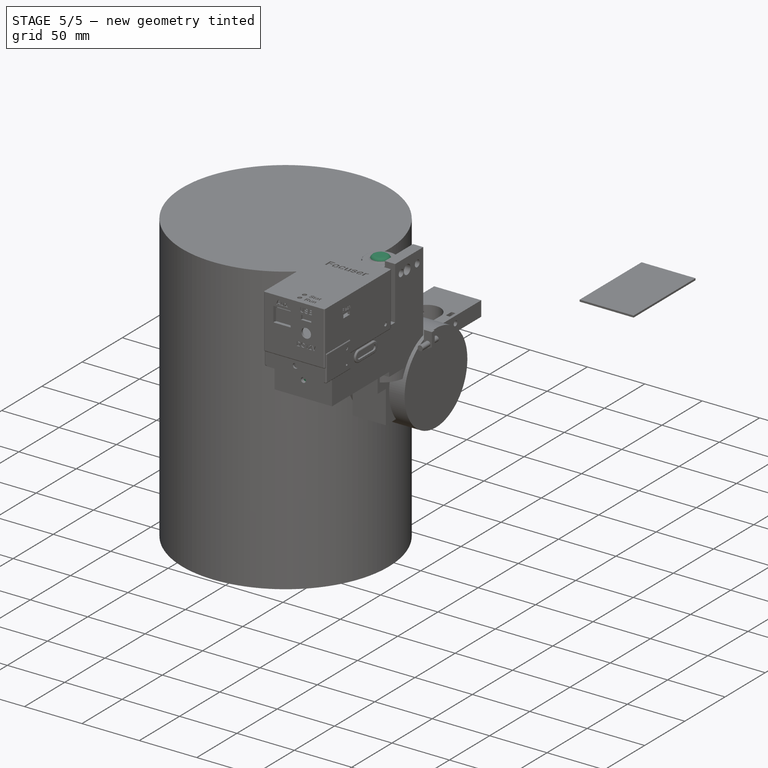
[diagram: stage 5 of 5 — iso view after this stage's code; geometry added in this stage tinted green]
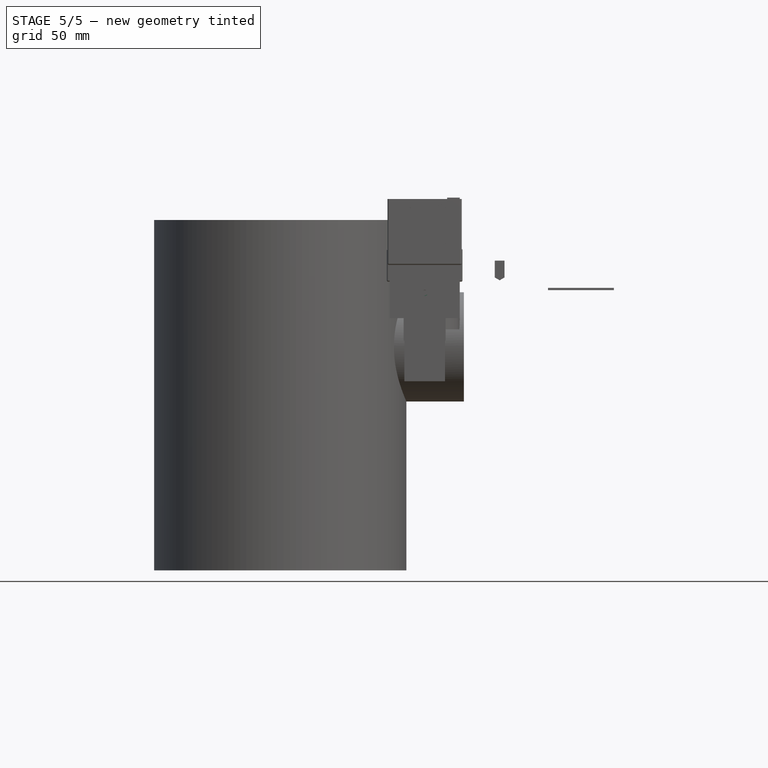
[diagram: stage 5 of 5 — front view after this stage's code; geometry added in this stage tinted green]
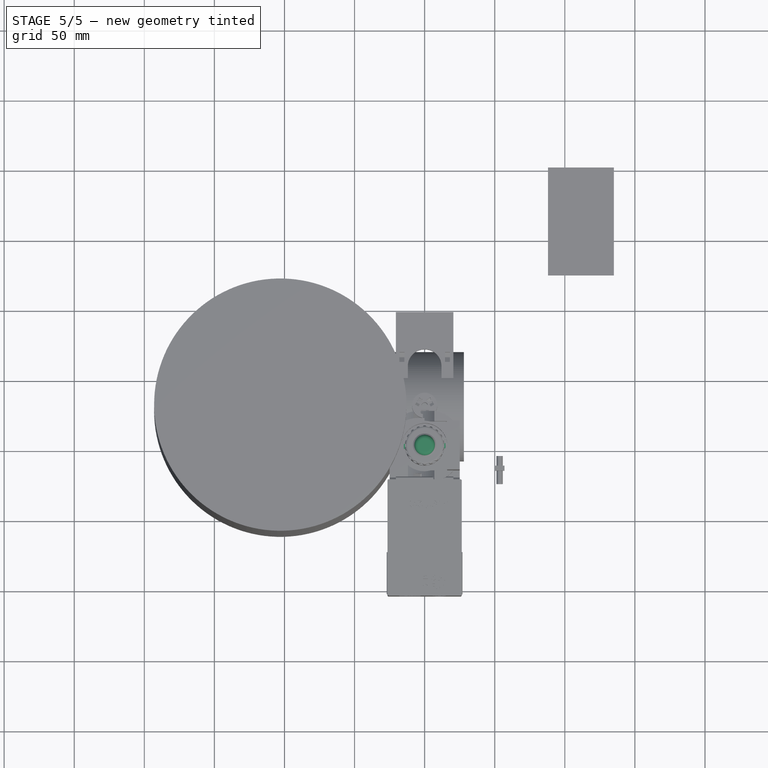
[diagram: stage 5 of 5 — top view after this stage's code; geometry added in this stage tinted green]
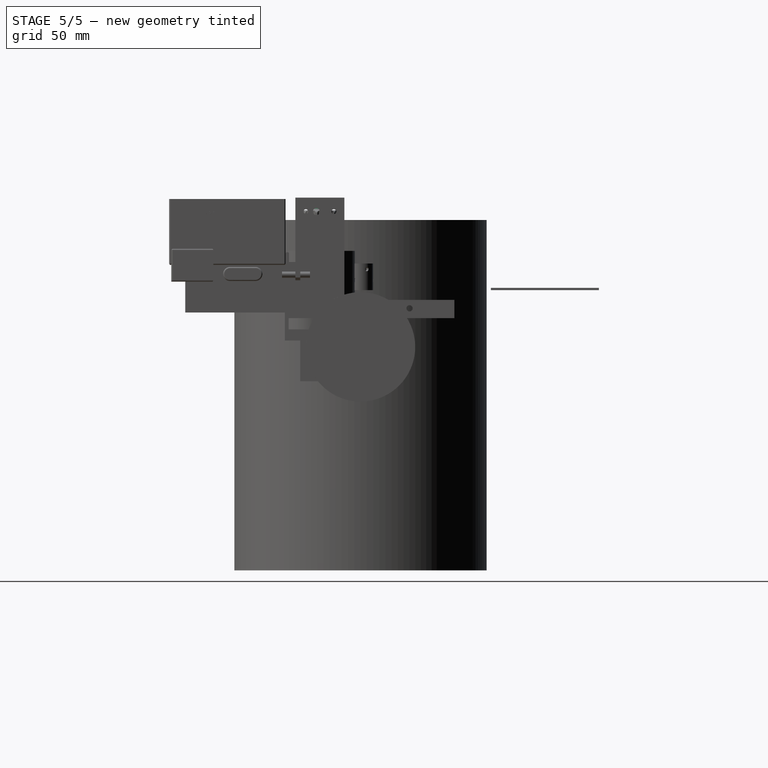
[diagram: stage 5 of 5 — right view after this stage's code; geometry added in this stage tinted green]
FEATURE [Part::Feature] Cut018020020009027020001  label="base nema"
  shape: bbox 50 x 86 x 24 mm, 75 faces (baked)
FEATURE [Part::Box] Box  label="Krychle"
  AttacherType = Attacher::AttachEngine3D
  Height = 24
  Length = 50
  Placement = pos=(-25,-66,-16) rot=(0,0,1;0rad)
  Width = 51
FEATURE [Part::Cut] Cut
  Base = -> Cut018020020009027020001
  Tool = -> Box
FEATURE [Part::Box] Box001  label="Krychle001"
  AttacherType = Attacher::AttachEngine3D
  Height = 24
  Length = 50
  Placement = pos=(-25,-85,-16) rot=(0,0,1;0rad)
  Width = 70
FEATURE [Part::Box] Box002  label="Kry"
  AttacherType = Attacher::AttachEngine3D
  Height = 24
  Length = 42
  Placement = pos=(-21,-83,-19.5) rot=(0,0,1;0rad)
  Width = 65
FEATURE [Part::MultiFuse] Fusion
  Shapes = -> [Box001,Cut]
FEATURE [Part::Cylinder] Cylinder  label="Válec"
  Angle = 360
  AttacherType = Attacher::AttachEngine3D
  Height = 27
  Placement = pos=(0,0,-17) rot=(0,0,1;0rad)
  Radius = 14.7
FEATURE [Part::Cylinder] Cylinder001  label="Válec001"
  Angle = 360
  AttacherType = Attacher::AttachEngine3D
  Height = 10
  Placement = pos=(0,-45,0) rot=(0,0,1;0rad)
  Radius = 10
FEATURE [Part::Cylinder] Cylinder002  label="Válec002"
  Angle = 360
  AttacherType = Attacher::AttachEngine3D
  Height = 10
  Placement = pos=(0,-37,0) rot=(0,0,1;0rad)
  Radius = 10
FEATURE [Part::Box] Box003  label="Krychle003"
  AttacherType = Attacher::AttachEngine3D
  Height = 10
  Length = 20
  Placement = pos=(-10,-45,0) rot=(0,0,1;0rad)
  Width = 8
FEATURE [Part::Cylinder] Cylinder003  label="Válec003"
  Angle = 360
  AttacherType = Attacher::AttachEngine3D
  Height = 10
  Placement = pos=(9,-68,0) rot=(0,0,1;0rad)
  Radius = 2.2
FEATURE [Part::Cylinder] Cylinder004  label="Válec004"
  Angle = 360
  AttacherType = Attacher::AttachEngine3D
  Height = 10
  Placement = pos=(-9,-68,0) rot=(0,0,1;0rad)
  Radius = 2.2
FEATURE [Part::Cylinder] Cylinder005  label="Válec005"
  Angle = 360
  AttacherType = Attacher::AttachEngine3D
  Height = 10
  Placement = pos=(9,-80,0) rot=(0,0,1;0rad)
  Radius = 2.2
FEATURE [Part::Cylinder] Cylinder006  label="Válec006"
  Angle = 360
  AttacherType = Attacher::AttachEngine3D
  Height = 10
  Placement = pos=(-9,-80,0) rot=(0,0,1;0rad)
  Radius = 2.2
FEATURE [Part::Box] Box004  label="Krychle004"
  AttacherType = Attacher::AttachEngine3D
  Height = 10
  Length = 4.4
  Placement = pos=(-11.2,-80,0) rot=(0,0,1;0rad)
  Width = 12
FEATURE [Part::Box] Box005  label="Krychle005"
  AttacherType = Attacher::AttachEngine3D
  Height = 10
  Length = 4.4
  Placement = pos=(6.8,-80,0) rot=(0,0,1;0rad)
  Width = 12
FEATURE [Part::MultiFuse] Fusion001
  Shapes = -> [Cylinder,Cylinder001,Cylinder002,Box003,Cylinder003,Cylinder004,Cylinder005,Cylinder006,Box004,Box005,Box002]
FEATURE [Part::Cut] Cut018020020009027020002  label="N_EAF"
  Base = -> Fusion
  Tool = -> Fusion001
FEATURE [Part::Box] Box021049  label="Krychle076"
  AttacherType = Attacher::AttachEngine3D
  Height = 24
  Length = 50
  Placement = pos=(-25,-66,-16) rot=(0,0,1;0rad)
  Width = 51
FEATURE [Part::Feature] Cut018020020009019001  label="Nema refractor"
  shape: bbox 50 x 89 x 24 mm, 96 faces (baked)
FEATURE [Part::Cut] Cut018020020009027020002002
  Base = -> Cut018020020009019001
  Tool = -> Box021049
FEATURE [Part::Feature] Cylinder112019  label="Válec127"
  Placement = pos=(0,0,0) rot=(0,0,1;4.18879rad)
  shape: bbox 7.858 x 10.31 x 3.3 mm, 3 faces (baked)
FEATURE [Part::Feature] difference001004  label="Pulley GT2  - 043"
  shape: bbox 27.96 x 27.96 x 19.5 mm, 1014 faces (baked)
FEATURE [Part::Feature] Cylinder112018  label="Válec126"
  Placement = pos=(0,0,0) rot=(0,0,1;2.0944rad)
  shape: bbox 7.858 x 10.31 x 3.3 mm, 3 faces (baked)
FEATURE [Part::Cylinder] Cylinder112004  label="Válec112"
  Angle = 360
  AttacherType = Attacher::AttachEngine3D
  Height = 40
  Placement = pos=(-20,0,19.5) rot=(0,1,0;1.5708rad)
  Radius = 2.15
FEATURE [Part::Cylinder] Cylinder112013  label="Válec121"
  Angle = 360
  AttacherType = Attacher::AttachEngine3D
  Height = 17
  Placement = pos=(0,0,8) rot=(0,0,1;0rad)
  Radius = 9
FEATURE [Part::Chamfer] Chamfer006
  Base = -> Cylinder112013
  Edges = 1 edges r=4: [Edge3]
FEATURE [Part::Cylinder] Cylinder112014  label="Válec122"
  Angle = 360
  AttacherType = Attacher::AttachEngine3D
  Height = 25
  Radius = 5.5
FEATURE [Part::Cylinder] Cylinder112008  label="Válec116"
  Angle = 360
  AttacherType = Attacher::AttachEngine3D
  Height = 40
  Placement = pos=(0,0,-5) rot=(0,0,1;0rad)
  Radius = 2.15
FEATURE [Part::Cylinder] Cylinder112015  label="Válec123"
  Angle = 360
  AttacherType = Attacher::AttachEngine3D
  Height = 10
  Placement = pos=(0,0,15) rot=(0,0,1;0rad)
  Radius = 14
FEATURE [Part::Cylinder] Cylinder112011  label="Válec119"
  Angle = 360
  AttacherType = Attacher::AttachEngine3D
  Height = 18
  Placement = pos=(0,0,36) rot=(0,0,1;0rad)
  Radius = 14
FEATURE [Part::Cylinder] Cylinder112010  label="Válec118"
  Angle = 360
  AttacherType = Attacher::AttachEngine3D
  Height = 27
  Radius = 7.2
FEATURE [Part::Cylinder] Cylinder112016  label="Válec124"
  Angle = 360
  AttacherType = Attacher::AttachEngine3D
  Height = 40
  Placement = pos=(0,0,-5) rot=(0,0,1;0rad)
  Radius = 2.15
FEATURE [Part::Cylinder] Cylinder112017  label="Válec125"
  Angle = 360
  AttacherType = Attacher::AttachEngine3D
  Height = 8.5
  Radius = 9
FEATURE [Part::Cut] Cut018020020009016
  Base = -> difference001004
  Placement = pos=(0,0,16.5) rot=(0,0,1;0rad)
  Tool = -> Cylinder112017
FEATURE [Part::MultiFuse] Fusion005033
  Shapes = -> [Cut018020020009016,Cylinder112014,Chamfer006,Cylinder112011,Cylinder112015]
FEATURE [Part::Fillet] Fillet011
  Base = -> Fusion005033
  Edges = 2 edges: [Edge8 r=1,Edge2738 r=3]
FEATURE [Part::Cylinder] Cylinder112012  label="Válec120"
  Angle = 360
  AttacherType = Attacher::AttachEngine3D
  Height = 10
  Placement = pos=(0,0,4.5) rot=(0,1,0;1.5708rad)
  Radius = 1.65
FEATURE [Part::MultiFuse] Fusion005032
  Shapes = -> [Cylinder112016,Cylinder112012,Cylinder112018,Cylinder112019]
FEATURE [Part::Cut] Cut018020020009017  label="pully40 v003"
  Base = -> Fillet011
  Tool = -> Fusion005032
FEATURE [Part::Cylinder] Cylinder112020  label="Válec128"
  Angle = 360
  AttacherType = Attacher::AttachEngine3D
  Height = 10
  Placement = pos=(-19,0,19.5) rot=(0,1,0;1.5708rad)
  Radius = 3.7
FEATURE [Part::Cylinder] Cylinder112021  label="Válec129"
  Angle = 360
  AttacherType = Attacher::AttachEngine3D
  Height = 10
  Placement = pos=(9,0,19.5) rot=(0,1,0;1.5708rad)
  Radius = 3.7
FEATURE [Part::MultiFuse] Fusion005034
  Shapes = -> [Cylinder112020,Cylinder112021,Cylinder112008,Cylinder112004,Cylinder112010]
FEATURE [Part::Cut] Cut018020020009018  label="Pulley40 V3"
  Base = -> Cut018020020009017
  Tool = -> Fusion005034
FEATURE [Part::Feature] Cut018020020009027020002003003  label="N_EAF002"
  shape: bbox 50 x 105 x 24 mm, 61 faces (baked)
FEATURE [Part::Fillet] Fillet  label="N_EAF_a"
  Base = -> Cut018020020009027020002003003
  Edges = 8 edges r=1.5: [Edge82,Edge83,Edge87,Edge88,Edge97,Edge100,Edge103,Edge126]
FEATURE [Part::Box] Box021055  label="Krychle082"
  AttacherType = Attacher::AttachEngine3D
  Height = 24
  Length = 50
  Placement = pos=(-25,-85,-16) rot=(0,0,1;0rad)
  Width = 70
FEATURE [Part::MultiFuse] Fusion005036
  Shapes = -> [Cut018020020009027020002002,Box021055]
FEATURE [Part::Cylinder] Cylinder112024003  label="Válec135"
  Angle = 360
  AttacherType = Attacher::AttachEngine3D
  Height = 10
  Placement = pos=(9,-80,0) rot=(0,0,1;0rad)
  Radius = 2.2
FEATURE [Part::Cylinder] Cylinder112024004  label="Válec136"
  Angle = 360
  AttacherType = Attacher::AttachEngine3D
  Height = 10
  Placement = pos=(0,-45,0) rot=(0,0,1;0rad)
  Radius = 10
FEATURE [Part::Cylinder] Cylinder112024005  label="Válec137"
  Angle = 360
  AttacherType = Attacher::AttachEngine3D
  Height = 10
  Placement = pos=(-9,-80,0) rot=(0,0,1;0rad)
  Radius = 2.2
FEATURE [Part::Box] Box021056  label="Krychle083"
  AttacherType = Attacher::AttachEngine3D
  Height = 10
  Length = 4.4
  Placement = pos=(-11.2,-80,0) rot=(0,0,1;0rad)
  Width = 12
FEATURE [Part::Box] Box021057  label="Krychle084"
  AttacherType = Attacher::AttachEngine3D
  Height = 10
  Length = 4.4
  Placement = pos=(6.8,-80,0) rot=(0,0,1;0rad)
  Width = 12
FEATURE [Part::Cylinder] Cylinder112024006  label="Válec138"
  Angle = 360
  AttacherType = Attacher::AttachEngine3D
  Height = 10
  Placement = pos=(-9,-68,0) rot=(0,0,1;0rad)
  Radius = 2.2
FEATURE [Part::Cylinder] Cylinder112024007  label="Válec139"
  Angle = 360
  AttacherType = Attacher::AttachEngine3D
  Height = 10
  Placement = pos=(9,-68,0) rot=(0,0,1;0rad)
  Radius = 2.2
FEATURE [Part::Box] Box021058  label="Kry001"
  AttacherType = Attacher::AttachEngine3D
  Height = 24
  Length = 42
  Placement = pos=(-21,-83,-19.5) rot=(0,0,1;0rad)
  Width = 65
FEATURE [Part::Cylinder] Cylinder112024008  label="Válec140"
  Angle = 360
  AttacherType = Attacher::AttachEngine3D
  Height = 10
  Placement = pos=(0,-37,0) rot=(0,0,1;0rad)
  Radius = 10
FEATURE [Part::Box] Box021059  label="Krychle085"
  AttacherType = Attacher::AttachEngine3D
  Height = 10
  Length = 20
  Placement = pos=(-10,-45,0) rot=(0,0,1;0rad)
  Width = 8
FEATURE [Part::Cylinder] Cylinder112024009  label="Válec141"
  Angle = 360
  AttacherType = Attacher::AttachEngine3D
  Height = 27
  Placement = pos=(0,0,-17) rot=(0,0,1;0rad)
  Radius = 14.7
FEATURE [Part::MultiFuse] Fusion005037
  Shapes = -> [Cylinder112024009,Cylinder112024004,Cylinder112024008,Box021059,Cylinder112024007,Cylinder112024006,Cylinder112024003,Cylinder112024005,Box021056,Box021057,Box021058]
FEATURE [Part::Cut] Cut018020020009027020002003004  label="R_EAF"
  Base = -> Fusion005036
  Tool = -> Fusion005037
FEATURE [Part::Feature] Cut018020020009027020002003004001  label="R_EAF001"
  shape: bbox 50 x 108 x 24 mm, 82 faces (baked)
FEATURE [Part::Fillet] Fillet012  label="R_EAF_a"
  Base = -> Cut018020020009027020002003004001
  Edges = 8 edges r=1.5: [Edge106,Edge136,Edge138,Edge196,Edge197,Edge198,Edge243,Edge244]
FEATURE [App::Part] Part001  label="Refractor"
  Group = -> [Cut018020020009019001,Box021049,Cut018020020009027020002002,Cylinder112024006,Box021057,Box021058,Cylinder112024007,Cylinder112024008,Cylinder112024009,Box021059,Box021056,Box021055,Cylinder112024005,Cylinder112024003,Cylinder112024004,Fusion005036,Fusion005037,Cut018020020009027020002003004,Cut018020020009027020002003004001,Fillet012]
  License = CC BY 3.0
  LicenseURL = http://creativecommons.org/licenses/by/3.0/
  Origin = -> Origin001
FEATURE [Part::Cylinder] Cylinder112024015  label="cy4"
  Angle = 360
  AttacherType = Attacher::AttachEngine3D
  Height = 24
  Placement = pos=(-9,-68,0) rot=(0,0,1;0rad)
  Radius = 2.2
FEATURE [Part::Box] Box021060  label="cub3"
  AttacherType = Attacher::AttachEngine3D
  Height = 24
  Length = 4.4
  Placement = pos=(6.8,-80,0) rot=(0,0,1;0rad)
  Width = 12
FEATURE [Part::Box] Box021061  label="cub5"
  AttacherType = Attacher::AttachEngine3D
  Height = 15
  Length = 42
  Placement = pos=(-21,-83,22) rot=(0,0,1;0rad)
  Width = 65
FEATURE [Part::Cylinder] Cylinder112024016  label="cy3"
  Angle = 360
  AttacherType = Attacher::AttachEngine3D
  Height = 24
  Placement = pos=(9,-68,0) rot=(0,0,1;0rad)
  Radius = 2.2
FEATURE [Part::Cylinder] Cylinder112024017  label="cy2"
  Angle = 360
  AttacherType = Attacher::AttachEngine3D
  Height = 24
  Placement = pos=(0,-39,0) rot=(0,0,1;0rad)
  Radius = 14
FEATURE [Part::Box] Box021062  label="cub1"
  AttacherType = Attacher::AttachEngine3D
  Height = 6
  Length = 28
  Placement = pos=(-14,-45,0) rot=(0,0,1;0rad)
  Width = 6
FEATURE [Part::Box] Box021063  label="cub2"
  AttacherType = Attacher::AttachEngine3D
  Height = 24
  Length = 4.4
  Placement = pos=(-11.2,-80,0) rot=(0,0,1;0rad)
  Width = 12
FEATURE [Part::Cylinder] Cylinder112024019  label="cy6"
  Angle = 360
  AttacherType = Attacher::AttachEngine3D
  Height = 24
  Placement = pos=(-9,-80,0) rot=(0,0,1;0rad)
  Radius = 2.2
FEATURE [Part::Cylinder] Cylinder112024020  label="cy5"
  Angle = 360
  AttacherType = Attacher::AttachEngine3D
  Height = 24
  Placement = pos=(9,-80,0) rot=(0,0,1;0rad)
  Radius = 2.2
FEATURE [Part::Cylinder] Cylinder112024021  label="cy1"
  Angle = 360
  AttacherType = Attacher::AttachEngine3D
  Height = 24
  Placement = pos=(0,-45,0) rot=(0,0,1;0rad)
  Radius = 14
FEATURE [Part::FeaturePython] Screw  label="M4x30-Screw"  # Fasteners workbench fastener (typed FeaturePython)
  Placement = pos=(0,0,7.5) rot=(0,0,1;0rad)
  diameter = 6
  invert = false
  length = 1
  matchOuter = false
  offset = 0
  thread = false
  type = 13
FEATURE [Part::Cylinder] Cylinder112024022  label="Válec154"
  Angle = 360
  AttacherType = Attacher::AttachEngine3D
  Height = 10
  Radius = 9
FEATURE [Part::Cut] Cut018020020009027020002003004003
  Base = -> Cylinder112024022
  Tool = -> Screw
FEATURE [Part::Fillet] Fillet013  label="knob"
  Base = -> Cut018020020009027020002003004003
  Edges = 2 edges r=2: [Edge1,Edge3]
  Placement = pos=(0,0,2) rot=(0,0,1;0rad)
FEATURE [Part::Cylinder] Cylinder112024026  label="Cy9"
  Angle = 360
  AttacherType = Attacher::AttachEngine3D
  Height = 6
  Radius = 25
FEATURE [Part::Cylinder] Cylinder112024027  label="cy7"
  Angle = 360
  AttacherType = Attacher::AttachEngine3D
  Height = 10
  Radius = 10
FEATURE [Part::Box] Box021064  label="Cub6"
  AttacherType = Attacher::AttachEngine3D
  Height = 30
  Length = 50
  Placement = pos=(-25,-85,0) rot=(0,0,1;0rad)
  Width = 60
FEATURE [Part::Box] Box021065  label="Cub7"
  AttacherType = Attacher::AttachEngine3D
  Height = 6
  Length = 50
  Placement = pos=(-25,-85,0) rot=(0,0,1;0rad)
  Width = 85
FEATURE [Part::Box] Box021067  label="cub4"
  AttacherType = Attacher::AttachEngine3D
  Height = 18
  Length = 28
  Placement = pos=(-14,-45,6) rot=(0,0,1;0rad)
  Width = 25
FEATURE [Part::Cylinder] Cylinder112024025003  label="hole3s"
  Angle = 360
  AttacherType = Attacher::AttachEngine3D
  Height = 10
  Placement = pos=(0,16.5,0) rot=(0,0,1;0rad)
  Radius = 1.7
FEATURE [Part::Feature] Cylinder112024025003001  label="hole2s"
  Placement = pos=(0,0,0) rot=(0,0,1;2.0944rad)
  shape: bbox 3.4 x 3.4 x 10 mm, 3 faces (baked)
FEATURE [Part::Feature] Cylinder112024025003002  label="hole1s"
  Placement = pos=(0,0,0) rot=(0,0,1;4.18879rad)
  shape: bbox 3.4 x 3.4 x 10 mm, 3 faces (baked)
FEATURE [Part::Cylinder] Cylinder112024025003003  label="hole3i"
  Angle = 360
  AttacherType = Attacher::AttachEngine3D
  Height = 4
  Placement = pos=(0,16.5,3) rot=(0,0,1;0rad)
  Radius = 3
FEATURE [Part::Feature] Cylinder112024025003003001  label="holeě2i"
  Placement = pos=(0,0,0) rot=(0,0,1;2.0944rad)
  shape: bbox 6 x 6 x 4 mm, 3 faces (baked)
FEATURE [Part::Feature] Cylinder112024025003003002  label="hole1i"
  Placement = pos=(0,0,0) rot=(0,0,1;4.18879rad)
  shape: bbox 6 x 6 x 4 mm, 3 faces (baked)
FEATURE [Part::MultiFuse] Fusion005041  label="Hole for SC screw"
  Placement = pos=(0,0,0) rot=(0,0,1;3.14159rad)
  Shapes = -> [Cylinder112024025003003002,Cylinder112024025003002,Cylinder112024025003003001,Cylinder112024025003001,Cylinder112024025003,Cylinder112024025003003]
FEATURE [Part::Box] Box021068  label="Cub8"
  AttacherType = Attacher::AttachEngine3D
  Height = 16
  Length = 50
  Placement = pos=(-25,-25,6) rot=(0,0,1;0rad)
  Width = 12.5
FEATURE [Part::Chamfer] Chamfer
  Base = -> Box021068
  Edges = 1 edges r=12: [Edge12]
FEATURE [Part::MultiFuse] Fusion005040  label="Solid base"
  Shapes = -> [Box021064,Cylinder112024026,Box021065,Chamfer]
FEATURE [Part::Cylinder] Cylinder112024025003003003  label="cy8"
  Angle = 360
  AttacherType = Attacher::AttachEngine3D
  Height = 15
  Placement = pos=(0,0,6) rot=(0,0,1;0rad)
  Radius = 25
FEATURE [Part::MultiFuse] Fusion005039  label="Holes"
  Shapes = -> [Cylinder112024021,Cylinder112024017,Box021062,Cylinder112024016,Cylinder112024015,Cylinder112024020,Cylinder112024019,Box021063,Box021060,Cylinder112024027,Box021067,Box021061,Cylinder112024025003003003]
FEATURE [Part::Cut] Cut018020020009027020002003004004  label="SCT-base"
  Base = -> Fusion005040
  Tool = -> Fusion005039
FEATURE [Part::Feature] difference001001  label="difference002"
  Placement = pos=(0,0,30) rot=(1,0,0;3.14159rad)
  shape: bbox 29.87 x 29.87 x 23.5 mm, 1122 faces (baked)
FEATURE [Part::Cylinder] Cylinder112024025003003004  label="Válec169"
  Angle = 360
  AttacherType = Attacher::AttachEngine3D
  Height = 30
  Placement = pos=(0,0,30) rot=(0,0,1;0rad)
  Radius = 7.5
FEATURE [Part::Cylinder] Cylinder112024025003003005  label="Válec170"
  Angle = 360
  AttacherType = Attacher::AttachEngine3D
  Height = 5
  Placement = pos=(0,0,30) rot=(0,0,1;0rad)
  Radius = 13
FEATURE [Part::MultiFuse] Fusion005042
  Shapes = -> [Cylinder112024025003003004,difference001001,Cylinder112024025003003005]
FEATURE [Part::Fillet] Fillet015  label="SCT-PulleyV1"
  Base = -> Fusion005042
  Edges = 2 edges r=3: [Edge1,Edge4]
FEATURE [Part::Cylinder] Cylinder112024025003003006  label="Válec171"
  Angle = 360
  AttacherType = Attacher::AttachEngine3D
  Height = 30
  Placement = pos=(11,0,30) rot=(0,0,1;0rad)
  Radius = 2
FEATURE [Part::Cylinder] Cylinder112024025003003007  label="Válec172"
  Angle = 360
  AttacherType = Attacher::AttachEngine3D
  Height = 30
  Placement = pos=(0,0,30) rot=(0,0,1;0rad)
  Radius = 11
FEATURE [Part::Feature] Cylinder112024025003003006001  label="Válec173"
  Placement = pos=(0,0,0) rot=(0,0,1;0.698132rad)
  shape: bbox 4 x 4 x 30 mm, 3 faces (baked)
FEATURE [Part::Feature] Cylinder112024025003003006002  label="Válec174"
  Placement = pos=(0,0,0) rot=(0,0,1;1.0472rad)
  shape: bbox 4 x 4 x 30 mm, 3 faces (baked)
FEATURE [Part::Feature] Cylinder112024025003003006003  label="Válec175"
  Placement = pos=(0,0,0) rot=(0,0,1;0.349066rad)
  shape: bbox 4 x 4 x 30 mm, 3 faces (baked)
FEATURE [Part::Feature] Cylinder112024025003003006004  label="Válec176"
  Placement = pos=(0,0,0) rot=(0,0,1;1.39626rad)
  shape: bbox 4 x 4 x 30 mm, 3 faces (baked)
FEATURE [Part::Feature] Cylinder112024025003003006005  label="Válec177"
  Placement = pos=(0,0,0) rot=(0,0,1;1.74533rad)
  shape: bbox 4 x 4 x 30 mm, 3 faces (baked)
FEATURE [Part::MultiFuse] Fusion005043
  Placement = pos=(0,0,-6) rot=(0,0,1;0rad)
  Shapes = -> [Cylinder112024025003003006001,Cylinder112024025003003006002,Cylinder112024025003003006003,Cylinder112024025003003006004,Cylinder112024025003003006005,Cylinder112024025003003006]
FEATURE [Part::Feature] Fusion005043001  label="Fusion005044"
  Placement = pos=(0,0,-6) rot=(0,0,1;4.18879rad)
  shape: bbox 19.84 x 11.07 x 30 mm, 12 faces (baked)
FEATURE [Part::Feature] Fusion005043002  label="Fusion005045"
  Placement = pos=(0,0,-6) rot=(0,0,1;2.0944rad)
  shape: bbox 9.5 x 20.6 x 30 mm, 12 faces (baked)
FEATURE [Part::MultiFuse] Fusion005043003
  Shapes = -> [Cylinder112024025003003007,Fusion005043,Fusion005043001,Fusion005043002]
FEATURE [Part::Sphere] Sphere  label="Koule"
  Angle1 = -90
  Angle2 = 90
  Angle3 = 360
  AttacherType = Attacher::AttachEngine3D
  Placement = pos=(0,0,47) rot=(0,0,1;0rad)
  Radius = 13
FEATURE [Part::Cylinder] Cylinder112024025003003006006  label="Válec178"
  Angle = 360
  AttacherType = Attacher::AttachEngine3D
  Height = 13
  Placement = pos=(0,0,47) rot=(0,0,1;0rad)
  Radius = 14
FEATURE [Part::Cut] Cut018020020009027020002003004004002
  Base = -> Cylinder112024025003003006006
  Tool = -> Sphere
FEATURE [Part::Cut] Cut018020020009027020002003004004003
  Base = -> Fusion005043003
  Tool = -> Cut018020020009027020002003004004002
FEATURE [Part::Cylinder] Cylinder112024025003003006007  label="Válec179"
  Angle = 360
  AttacherType = Attacher::AttachEngine3D
  Height = 9
  Radius = 9.5
FEATURE [Part::Cylinder] Cylinder112024025003003006008  label="Válec180"
  Angle = 360
  AttacherType = Attacher::AttachEngine3D
  Height = 10
  Radius = 6.7
FEATURE [Part::Cut] Cut018020020009027020002003004004004  label="Distance ring"
  Base = -> Cylinder112024025003003006007
  Tool = -> Cylinder112024025003003006008
FEATURE [Part::Fillet] Fillet016  label="SCT-EAF-no screw"
  Base = -> Cut018020020009027020002003004004
  Edges = 16 edges r=1.5: [Edge6,Edge7,Edge8,Edge20,Edge24,Edge51,Edge53,Edge54,Edge55,Edge60,Edge102,Edge104,Edge113,Edge115,Edge126,Edge127]
FEATURE [Part::Cut] Cut018020020009027020002003004004005  label="SCT-EAF 9,25 Edge HD"
  Base = -> Fillet016
  Tool = -> Fusion005041
FEATURE [App::Part] Part003  label="SCT"
  Group = -> [Cut018020020009027020002003004004,Cylinder112024015,Cylinder112024025003003001,Cylinder112024025003002,Cylinder112024025003001,Cylinder112024025003003002,Fusion005039,Fusion005040,Fusion005041,Box021067,Cylinder112024025003003003,Cylinder112024027,Box021068,Box021064,Cylinder112024025003,Box021065,Cylinder112024025003003,Chamfer,Fillet016,Cylinder112024016,Box021061,Cylinder112024021,Box021062,+7 more]
  License = CC BY 3.0
  LicenseURL = http://creativecommons.org/licenses/by/3.0/
  Origin = -> Origin003
FEATURE [Part::Feature] difference001006  label="Pulley43"
  Placement = pos=(0,0,24) rot=(0,0,1;0rad)
  shape: bbox 29.87 x 29.87 x 17.5 mm, 1122 faces (baked)
FEATURE [Part::Cylinder] Cylinder112024025003003006009  label="Válec181"
  Angle = 360
  AttacherType = Attacher::AttachEngine3D
  Height = 20
  Placement = pos=(0,0,6) rot=(0,0,1;0rad)
  Radius = 6.5
FEATURE [Part::MultiFuse] Fusion005043004
  Shapes = -> [difference001006,Cut018020020009027020002003004004003]
FEATURE [Part::Cut] Cut018020020009027020002003004004006  label="PulleyV3sct"
  Base = -> Fusion005043004
  Tool = -> Cylinder112024025003003006009
FEATURE [Part::Cylinder] Cylinder112024025003003006010  label="Válec182"
  Angle = 360
  AttacherType = Attacher::AttachEngine3D
  Height = 17
  Placement = pos=(15,0,36) rot=(0,0,1;0rad)
  Radius = 2
FEATURE [Part::Feature] Cylinder112024025003003006010001  label="Válec183"
  Placement = pos=(0,0,0) rot=(0,0,1;0.349066rad)
  shape: bbox 4 x 4 x 17 mm, 3 faces (baked)
FEATURE [Part::Feature] Cylinder112024025003003006010002  label="Válec184"
  Placement = pos=(0,0,0) rot=(0,0,1;0.698132rad)
  shape: bbox 4 x 4 x 17 mm, 3 faces (baked)
FEATURE [Part::MultiFuse] Fusion005043005
  Shapes = -> [Cylinder112024025003003006010,Cylinder112024025003003006010001,Cylinder112024025003003006010002]
FEATURE [Part::Feature] Fusion005043005001  label="Fusion005043006"
  Placement = pos=(0,0,0) rot=(0,0,1;1.0472rad)
  shape: bbox 14.1 x 5.782 x 17 mm, 9 faces, 3 solids (baked)
FEATURE [Part::Feature] Fusion005043005002  label="Fusion005043007"
  Placement = pos=(0,0,0) rot=(0,0,1;2.0944rad)
  shape: bbox 10.6 x 11.86 x 17 mm, 9 faces, 3 solids (baked)
FEATURE [Part::Feature] Fusion005043005003  label="Fusion005043008"
  Placement = pos=(0,0,0) rot=(0,0,1;4.18879rad)
  shape: bbox 14.1 x 5.782 x 17 mm, 9 faces, 3 solids (baked)
FEATURE [Part::Feature] Fusion005043005004  label="Fusion005043009"
  Placement = pos=(0,0,0) rot=(0,0,1;3.14159rad)
  shape: bbox 7.509 x 13.64 x 17 mm, 9 faces, 3 solids (baked)
FEATURE [Part::Feature] Fusion005043005005  label="Fusion005043010"
  Placement = pos=(0,0,0) rot=(0,0,-1;1.0472rad)
  shape: bbox 10.6 x 11.86 x 17 mm, 9 faces, 3 solids (baked)
FEATURE [Part::MultiFuse] Fusion005043005006
  Shapes = -> [Fusion005043005,Fusion005043005001,Fusion005043005002,Fusion005043005003,Fusion005043005005,Fusion005043005004]
FEATURE [Part::Cut] Cut018020020009027020002003004004007  label="Pulley-CrayfordV4"
  Base = -> Cut018020020009018
  Tool = -> Fusion005043005006
FEATURE [App::Part] Part002  label="Pulley"
  Group = -> [Cylinder112024025003003006008,Cylinder112024025003003006007,Cut018020020009027020002003004004004,Cylinder112024025003003006005,Fusion005043003,Fusion005043,Cut018020020009027020002003004004002,Cut018020020009027020002003004004003,Cylinder112024025003003006003,Cylinder112024025003003006002,Cylinder112024025003003006001,Cylinder112024025003003006004,Cylinder112024025003003006009,+48 more]
  License = CC BY 3.0
  LicenseURL = http://creativecommons.org/licenses/by/3.0/
  Origin = -> Origin002
FEATURE [Part::FeaturePython] Screw001  label="M4x30-Screw001"  # Fasteners workbench fastener (typed FeaturePython)
  Placement = pos=(0,0,7.5) rot=(0,0,1;0rad)
  diameter = 6
  invert = false
  length = 1
  matchOuter = false
  offset = 0
  thread = false
  type = 13
FEATURE [Part::Cylinder] Cylinder112024025003003006010003  label="Válec185"
  Angle = 360
  AttacherType = Attacher::AttachEngine3D
  Height = 10
  Radius = 8.5
FEATURE [Part::Cut] Cut018020020009027020002003004004008
  Base = -> Cylinder112024025003003006010003
  Tool = -> Screw001
FEATURE [Part::Fillet] Fillet017  label="knob001"
  Base = -> Cut018020020009027020002003004004008
  Edges = 2 edges r=2: [Edge1,Edge3]
FEATURE [Part::Cylinder] Cylinder112024025003003006010004  label="Válec186"
  Angle = 360
  AttacherType = Attacher::AttachEngine3D
  Height = 10
  Placement = pos=(8.5,0,0) rot=(0,0,1;0.349066rad)
  Radius = 1
FEATURE [Part::Feature] Cylinder112024025003003006010004001  label="Válec187"
  Placement = pos=(0,0,0) rot=(0,0,1;0.349066rad)
  shape: bbox 2 x 2 x 10 mm, 3 faces (baked)
FEATURE [Part::Feature] Cylinder112024025003003006010004002  label="Válec188"
  Placement = pos=(0,0,0) rot=(0,0,1;0.698132rad)
  shape: bbox 2 x 2 x 10 mm, 3 faces (baked)
FEATURE [Part::MultiFuse] Fusion005043005007
  Shapes = -> [Cylinder112024025003003006010004,Cylinder112024025003003006010004001,Cylinder112024025003003006010004002]
FEATURE [Part::Feature] Fusion005043005007001  label="Fusion005043005008"
  Placement = pos=(0,0,0) rot=(0,0,1;1.0472rad)
  shape: bbox 7.726 x 3.01 x 10 mm, 9 faces, 3 solids (baked)
FEATURE [Part::MultiFuse] Fusion005043005007002
  Shapes = -> [Fusion005043005007,Fusion005043005007001]
FEATURE [Part::Feature] Fusion005043005007002001  label="Fusion005043005007003"
  Placement = pos=(0,0,0) rot=(0,0,1;4.18879rad)
  shape: bbox 14.24 x 7.464 x 10 mm, 18 faces, 6 solids (baked)
FEATURE [Part::Feature] Fusion005043005007002002  label="Fusion005043005007004"
  Placement = pos=(0,0,0) rot=(0,0,1;2.0944rad)
  shape: bbox 6.25 x 14.82 x 10 mm, 18 faces, 6 solids (baked)
FEATURE [Part::MultiFuse] Fusion005043005007002003
  Shapes = -> [Fusion005043005007002001,Fusion005043005007002002,Fusion005043005007002]
FEATURE [Part::Cut] Cut018020020009027020002003004004009  label="Knob M4 v2"
  Base = -> Fillet017
  Tool = -> Fusion005043005007002003
FEATURE [Part::Cylinder] Cylinder112024025003003006010004004  label="Válec190"
  Angle = 360
  AttacherType = Attacher::AttachEngine3D
  Height = 17
  Placement = pos=(10,-24,6) rot=(0,0,1;0rad)
  Radius = 4.5
FEATURE [Part::Box] Box021069  label="Krychle086"
  AttacherType = Attacher::AttachEngine3D
  Height = 17
  Length = 11
  Placement = pos=(10,-28.5,6) rot=(0,0,1;0rad)
  Width = 9
FEATURE [Part::MultiFuse] Fusion005043005007002004
  Shapes = -> [Cylinder112024025003003006010004004,Box021069]
FEATURE [Part::Cylinder] Cylinder112024025003003006010004005  label="Válec191"
  Angle = 360
  AttacherType = Attacher::AttachEngine3D
  Height = 17
  Placement = pos=(-10,-24,6) rot=(0,0,1;0rad)
  Radius = 4.5
FEATURE [Part::Box] Box021070  label="Krychle087"
  AttacherType = Attacher::AttachEngine3D
  Height = 17
  Length = 11
  Placement = pos=(-21,-28.5,6) rot=(0,0,1;0rad)
  Width = 9
FEATURE [Part::MultiFuse] Fusion005043005007002005
  Shapes = -> [Cylinder112024025003003006010004005,Box021070]
FEATURE [Part::Cylinder] Cylinder112024025003003006010004006  label="cy009"
  Angle = 360
  AttacherType = Attacher::AttachEngine3D
  Height = 24
  Placement = pos=(-9,-68,0) rot=(0,0,1;0rad)
  Radius = 2.2
FEATURE [Part::Feature] Cylinder112024025003003006010004007  label="holeě2i001"
  Placement = pos=(0,0,0) rot=(0,0,1;2.0944rad)
  shape: bbox 6 x 6 x 4 mm, 3 faces (baked)
FEATURE [Part::Feature] Cylinder112024025003003006010004008  label="hole1s001"
  Placement = pos=(0,0,0) rot=(0,0,1;4.18879rad)
  shape: bbox 3.4 x 3.4 x 10 mm, 3 faces (baked)
FEATURE [Part::Feature] Cylinder112024025003003006010004009  label="hole2s001"
  Placement = pos=(0,0,0) rot=(0,0,1;2.0944rad)
  shape: bbox 3.4 x 3.4 x 10 mm, 3 faces (baked)
FEATURE [Part::Feature] Cylinder112024025003003006010004010  label="hole1i001"
  Placement = pos=(0,0,0) rot=(0,0,1;4.18879rad)
  shape: bbox 6 x 6 x 4 mm, 3 faces (baked)
FEATURE [Part::Box] Box021071  label="cub006"
  AttacherType = Attacher::AttachEngine3D
  Height = 18
  Length = 28
  Placement = pos=(-14,-45,6) rot=(0,0,1;0rad)
  Width = 25
FEATURE [Part::Cylinder] Cylinder112024025003003006010004011  label="cy010"
  Angle = 360
  AttacherType = Attacher::AttachEngine3D
  Height = 15
  Placement = pos=(0,0,6) rot=(0,0,1;0rad)
  Radius = 25
FEATURE [Part::Cylinder] Cylinder112024025003003006010004012  label="cy011"
  Angle = 360
  AttacherType = Attacher::AttachEngine3D
  Height = 10
  Radius = 10
FEATURE [Part::Box] Box021072  label="Cub009"
  AttacherType = Attacher::AttachEngine3D
  Height = 16
  Length = 50
  Placement = pos=(-25,-25,6) rot=(0,0,1;0rad)
  Width = 12.5
FEATURE [Part::Box] Box021073  label="Cub010"
  AttacherType = Attacher::AttachEngine3D
  Height = 30
  Length = 50
  Placement = pos=(-25,-85,0) rot=(0,0,1;0rad)
  Width = 60
FEATURE [Part::Cylinder] Cylinder112024025003003006010004013  label="hole3s001"
  Angle = 360
  AttacherType = Attacher::AttachEngine3D
  Height = 10
  Placement = pos=(0,16.5,0) rot=(0,0,1;0rad)
  Radius = 1.7
FEATURE [Part::Box] Box021074  label="Cub011"
  AttacherType = Attacher::AttachEngine3D
  Height = 6
  Length = 50
  Placement = pos=(-25,-85,0) rot=(0,0,1;0rad)
  Width = 85
FEATURE [Part::Cylinder] Cylinder112024025003003006010004014  label="hole3i001"
  Angle = 360
  AttacherType = Attacher::AttachEngine3D
  Height = 4
  Placement = pos=(0,16.5,3) rot=(0,0,1;0rad)
  Radius = 3
FEATURE [Part::MultiFuse] Fusion005043005007002009  label="Hole for SC screw001"
  Placement = pos=(0,0,0) rot=(0,0,1;3.14159rad)
  Shapes = -> [Cylinder112024025003003006010004010,Cylinder112024025003003006010004008,Cylinder112024025003003006010004007,Cylinder112024025003003006010004009,Cylinder112024025003003006010004013,Cylinder112024025003003006010004014]
FEATURE [Part::Chamfer] Chamfer007
  Base = -> Box021072
  Edges = 1 edges r=12: [Edge12]
FEATURE [Part::Cylinder] Cylinder112024025003003006010004015  label="cy012"
  Angle = 360
  AttacherType = Attacher::AttachEngine3D
  Height = 24
  Placement = pos=(9,-68,0) rot=(0,0,1;0rad)
  Radius = 2.2
FEATURE [Part::Box] Box021075  label="cub007"
  AttacherType = Attacher::AttachEngine3D
  Height = 15
  Length = 42
  Placement = pos=(-21,-83,22) rot=(0,0,1;0rad)
  Width = 65
FEATURE [Part::Cylinder] Cylinder112024025003003006010004016  label="cy013"
  Angle = 360
  AttacherType = Attacher::AttachEngine3D
  Height = 24
  Placement = pos=(0,-45,0) rot=(0,0,1;0rad)
  Radius = 14
FEATURE [Part::Box] Box021076  label="cub008"
  AttacherType = Attacher::AttachEngine3D
  Height = 6
  Length = 28
  Placement = pos=(-14,-45,0) rot=(0,0,1;0rad)
  Width = 6
FEATURE [Part::Cylinder] Cylinder112024025003003006010004017  label="Cy010"
  Angle = 360
  AttacherType = Attacher::AttachEngine3D
  Height = 6
  Radius = 25
FEATURE [Part::MultiFuse] Fusion005043005007002008  label="Solid base001"
  Shapes = -> [Box021073,Cylinder112024025003003006010004017,Box021074,Chamfer007]
FEATURE [Part::Cylinder] Cylinder112024025003003006010004018  label="cy014"
  Angle = 360
  AttacherType = Attacher::AttachEngine3D
  Height = 24
  Placement = pos=(0,-39,0) rot=(0,0,1;0rad)
  Radius = 14
FEATURE [Part::Box] Box021077  label="cub009"
  AttacherType = Attacher::AttachEngine3D
  Height = 24
  Length = 4.4
  Placement = pos=(6.8,-80,0) rot=(0,0,1;0rad)
  Width = 12
FEATURE [Part::Box] Box021078  label="cub010"
  AttacherType = Attacher::AttachEngine3D
  Height = 24
  Length = 4.4
  Placement = pos=(-11.2,-80,0) rot=(0,0,1;0rad)
  Width = 12
FEATURE [Part::Cylinder] Cylinder112024025003003006010004019  label="cy015"
  Angle = 360
  AttacherType = Attacher::AttachEngine3D
  Height = 24
  Placement = pos=(-9,-80,0) rot=(0,0,1;0rad)
  Radius = 2.2
FEATURE [Part::Cylinder] Cylinder112024025003003006010004020  label="cy016"
  Angle = 360
  AttacherType = Attacher::AttachEngine3D
  Height = 24
  Placement = pos=(9,-80,0) rot=(0,0,1;0rad)
  Radius = 2.2
FEATURE [Part::MultiFuse] Fusion005043005007002007  label="Holes001"
  Shapes = -> [Cylinder112024025003003006010004016,Cylinder112024025003003006010004018,Box021076,Cylinder112024025003003006010004015,Cylinder112024025003003006010004006,Cylinder112024025003003006010004020,Cylinder112024025003003006010004019,Box021078,Box021077,Cylinder112024025003003006010004012,Box021071,Box021075,Cylinder112024025003003006010004011]
FEATURE [Part::Cut] Cut018020020009027020002003004004010  label="SCT-base001"
  Base = -> Fusion005043005007002008
  Tool = -> Fusion005043005007002007
FEATURE [Part::Fillet] Fillet018  label="SCT-EAF-no screw001"
  Base = -> Cut018020020009027020002003004004010
  Edges = 16 edges r=1.5: [Edge6,Edge7,Edge8,Edge20,Edge24,Edge51,Edge53,Edge54,Edge55,Edge60,Edge102,Edge104,Edge113,Edge115,Edge126,Edge127]
FEATURE [Part::Cut] Cut018020020009027020002003004004011  label="SCT-EAF 9,25 Edge HD001"
  Base = -> Fillet018
  Tool = -> Fusion005043005007002009
FEATURE [Part::Cylinder] Cylinder112024025003003006010004022  label="Válec193"
  Angle = 360
  AttacherType = Attacher::AttachEngine3D
  Height = 6
  Placement = pos=(10,-24,0) rot=(0,0,1;0rad)
  Radius = 1.7
FEATURE [Part::Box] Box021080  label="Krychle089"
  AttacherType = Attacher::AttachEngine3D
  Height = 6
  Length = 8
  Placement = pos=(10,-25.7,0) rot=(0,0,1;0rad)
  Width = 3.4
FEATURE [Part::Cylinder] Cylinder112024025003003006010004023  label="Válec194"
  Angle = 360
  AttacherType = Attacher::AttachEngine3D
  Height = 6
  Placement = pos=(18,-24,0) rot=(0,0,1;0rad)
  Radius = 1.7
FEATURE [Part::MultiFuse] Fusion005043005007002011
  Shapes = -> [Cylinder112024025003003006010004022,Box021080,Cylinder112024025003003006010004023]
FEATURE [Part::Cylinder] Cylinder112024025003003006010004024  label="Válec195"
  Angle = 360
  AttacherType = Attacher::AttachEngine3D
  Height = 6
  Placement = pos=(10,-24,0) rot=(0,0,1;0rad)
  Radius = 1.7
FEATURE [Part::Box] Box021081  label="Krychle090"
  AttacherType = Attacher::AttachEngine3D
  Height = 6
  Length = 8
  Placement = pos=(10,-25.7,0) rot=(0,0,1;0rad)
  Width = 3.4
FEATURE [Part::Cylinder] Cylinder112024025003003006010004025  label="Válec196"
  Angle = 360
  AttacherType = Attacher::AttachEngine3D
  Height = 6
  Placement = pos=(18,-24,0) rot=(0,0,1;0rad)
  Radius = 1.7
FEATURE [Part::MultiFuse] Fusion005043005007002012
  Placement = pos=(-28,0,0) rot=(0,0,1;0rad)
  Shapes = -> [Cylinder112024025003003006010004024,Box021081,Cylinder112024025003003006010004025]
FEATURE [Part::Cylinder] Cylinder112024025003003006010004026  label="Válec197"
  Angle = 360
  AttacherType = Attacher::AttachEngine3D
  Height = 50
  Placement = pos=(-25,-24,11) rot=(0,1,0;1.5708rad)
  Radius = 1.15
FEATURE [Part::Cylinder] Cylinder112024025003003006010004029  label="Válec200"
  Angle = 360
  AttacherType = Attacher::AttachEngine3D
  Height = 3.2
  Placement = pos=(10,-24,0) rot=(0,0,1;0rad)
  Radius = 3
FEATURE [Part::Box] Box021082  label="Krychle091"
  AttacherType = Attacher::AttachEngine3D
  Height = 3.2
  Length = 8
  Placement = pos=(10,-27,0) rot=(0,0,1;0rad)
  Width = 6
FEATURE [Part::Cylinder] Cylinder112024025003003006010004030  label="Válec201"
  Angle = 360
  AttacherType = Attacher::AttachEngine3D
  Height = 3.2
  Placement = pos=(18,-24,0) rot=(0,0,1;0rad)
  Radius = 3
FEATURE [Part::MultiFuse] Fusion005043005007002016
  Shapes = -> [Cylinder112024025003003006010004029,Box021082,Cylinder112024025003003006010004030]
FEATURE [Part::Box] Box021083  label="Krychle092"
  AttacherType = Attacher::AttachEngine3D
  Height = 3.2
  Length = 8
  Placement = pos=(10,-27,0) rot=(0,0,1;0rad)
  Width = 6
FEATURE [Part::Cylinder] Cylinder112024025003003006010004031  label="Válec202"
  Angle = 360
  AttacherType = Attacher::AttachEngine3D
  Height = 3.2
  Placement = pos=(10,-24,0) rot=(0,0,1;0rad)
  Radius = 3
FEATURE [Part::Cylinder] Cylinder112024025003003006010004032  label="Válec203"
  Angle = 360
  AttacherType = Attacher::AttachEngine3D
  Height = 3.2
  Placement = pos=(18,-24,0) rot=(0,0,1;0rad)
  Radius = 3
FEATURE [Part::MultiFuse] Fusion005043005007002017
  Placement = pos=(-28,0,0) rot=(0,0,1;0rad)
  Shapes = -> [Cylinder112024025003003006010004031,Box021083,Cylinder112024025003003006010004032]
FEATURE [Part::MultiFuse] Fusion005043005007002006
  Shapes = -> [Fusion005043005007002004,Fusion005043005007002005,Fusion005043005007002011,Fusion005043005007002012,Cylinder112024025003003006010004026,Fusion005043005007002016,Fusion005043005007002017]
FEATURE [Part::Cut] Cut018020020009027020002003004004012  label="STC-EAF V2"
  Base = -> Cut018020020009027020002003004004011
  Tool = -> Fusion005043005007002006
FEATURE [Part::Cylinder] Cylinder112024025003003006010004033  label="Válec204"
  Angle = 360
  AttacherType = Attacher::AttachEngine3D
  Height = 10
  Placement = pos=(8.5,0,0) rot=(0,0,1;0.349066rad)
  Radius = 1
FEATURE [Part::Cylinder] Cylinder112024025003003006010004034  label="Válec205"
  Angle = 360
  AttacherType = Attacher::AttachEngine3D
  Height = 7
  Radius = 8.5
FEATURE [Part::Feature] Cylinder112024025003003006010004035  label="Válec206"
  Placement = pos=(0,0,0) rot=(0,0,1;0.349066rad)
  shape: bbox 2 x 2 x 10 mm, 3 faces (baked)
FEATURE [Part::Feature] Fusion005043005007002021
  Placement = pos=(0,0,0) rot=(0,0,1;2.0944rad)
  shape: bbox 6.25 x 14.82 x 10 mm, 18 faces, 6 solids (baked)
FEATURE [Part::Feature] Fusion005043005007002022
  Placement = pos=(0,0,0) rot=(0,0,1;4.18879rad)
  shape: bbox 14.24 x 7.464 x 10 mm, 18 faces, 6 solids (baked)
FEATURE [Part::Feature] Fusion005043005007002023
  Placement = pos=(0,0,0) rot=(0,0,1;1.0472rad)
  shape: bbox 7.726 x 3.01 x 10 mm, 9 faces, 3 solids (baked)
FEATURE [Part::Feature] Cylinder112024025003003006010004036  label="Válec207"
  Placement = pos=(0,0,0) rot=(0,0,1;0.698132rad)
  shape: bbox 2 x 2 x 10 mm, 3 faces (baked)
FEATURE [Part::MultiFuse] Fusion005043005007002020
  Shapes = -> [Cylinder112024025003003006010004033,Cylinder112024025003003006010004035,Cylinder112024025003003006010004036]
FEATURE [Part::MultiFuse] Fusion005043005007002019
  Shapes = -> [Fusion005043005007002020,Fusion005043005007002023]
FEATURE [Part::MultiFuse] Fusion005043005007002018
  Shapes = -> [Fusion005043005007002022,Fusion005043005007002021,Fusion005043005007002019]
FEATURE [Part::FeaturePython] Screw005  label="M3x10-Screw"  # Fasteners workbench fastener (typed FeaturePython)
  Placement = pos=(0,0,4) rot=(0,0,1;0rad)
  diameter = 3
  invert = false
  length = 3
  matchOuter = false
  offset = 0
  thread = false
  type = 5
FEATURE [Part::Cut] Cut018020020009027020002003004004014
  Base = -> Cylinder112024025003003006010004034
  Tool = -> Screw005
FEATURE [Part::Fillet] Fillet019
  Base = -> Cut018020020009027020002003004004014
  Edges = 2 edges r=1.5: [Edge1,Edge3]
FEATURE [Part::Cut] Cut018020020009027020002003004004015
  Base = -> Fillet019
  Tool = -> Fusion005043005007002018
FEATURE [Part::Cylinder] Cylinder112024025003003006010004037  label="Válec208"
  Angle = 360
  AttacherType = Attacher::AttachEngine3D
  Height = 3
  Placement = pos=(0,0,4) rot=(0,0,1;0rad)
  Radius = 2.5
FEATURE [Part::Cut] Cut018020020009027020002003004004016  label="Knob M3"
  Base = -> Cut018020020009027020002003004004015
  Tool = -> Cylinder112024025003003006010004037
FEATURE [Part::FeaturePython] Screw006  label="M4x10-Screw"  # Fasteners workbench fastener (typed FeaturePython)
  Placement = pos=(0,0,6) rot=(0,0,1;0rad)
  diameter = 4
  invert = false
  length = 2
  matchOuter = false
  offset = 0
  thread = false
  type = 5
FEATURE [Part::Feature] Fusion005043005007002024
  Placement = pos=(0,0,0) rot=(0,0,1;2.0944rad)
  shape: bbox 6.25 x 14.82 x 10 mm, 18 faces, 6 solids (baked)
FEATURE [Part::Feature] Fusion005043005007002025
  Placement = pos=(0,0,0) rot=(0,0,1;4.18879rad)
  shape: bbox 14.24 x 7.464 x 10 mm, 18 faces, 6 solids (baked)
FEATURE [Part::Feature] Fusion005043005007002026
  Placement = pos=(0,0,0) rot=(0,0,1;1.0472rad)
  shape: bbox 7.726 x 3.01 x 10 mm, 9 faces, 3 solids (baked)
FEATURE [Part::Feature] Cylinder112024025003003006010004038  label="Válec209"
  Placement = pos=(0,0,0) rot=(0,0,1;0.698132rad)
  shape: bbox 2 x 2 x 10 mm, 3 faces (baked)
FEATURE [Part::Feature] Cylinder112024025003003006010004039  label="Válec210"
  Placement = pos=(0,0,0) rot=(0,0,1;0.349066rad)
  shape: bbox 2 x 2 x 10 mm, 3 faces (baked)
FEATURE [Part::Cylinder] Cylinder112024025003003006010004040  label="Válec211"
  Angle = 360
  AttacherType = Attacher::AttachEngine3D
  Height = 10
  Placement = pos=(8.5,0,0) rot=(0,0,1;0.349066rad)
  Radius = 1
FEATURE [Part::Cylinder] Cylinder112024025003003006010004041  label="Válec212"
  Angle = 360
  AttacherType = Attacher::AttachEngine3D
  Height = 10
  Radius = 8.5
FEATURE [Part::Cylinder] Cylinder112024025003003006010004042  label="Válec213"
  Angle = 360
  AttacherType = Attacher::AttachEngine3D
  Height = 4
  Placement = pos=(0,0,6) rot=(0,0,1;0rad)
  Radius = 3.1
FEATURE [Part::MultiFuse] Fusion005043005007002029
  Shapes = -> [Cylinder112024025003003006010004040,Cylinder112024025003003006010004039,Cylinder112024025003003006010004038]
FEATURE [Part::MultiFuse] Fusion005043005007002028
  Shapes = -> [Fusion005043005007002029,Fusion005043005007002026]
FEATURE [Part::MultiFuse] Fusion005043005007002027
  Shapes = -> [Fusion005043005007002025,Fusion005043005007002024,Fusion005043005007002028]
FEATURE [Part::MultiFuse] Fusion005043005007002030
  Shapes = -> [Cylinder112024025003003006010004042,Screw006]
FEATURE [Part::Cut] Cut018020020009027020002003004004017
  Base = -> Cylinder112024025003003006010004041
  Tool = -> Fusion005043005007002030
FEATURE [Part::Fillet] Fillet020
  Base = -> Cut018020020009027020002003004004017
  Edges = 2 edges r=1.6: [Edge1,Edge3]
FEATURE [Part::Cut] Cut018020020009027020002003004004018  label="Knib M4 v2"
  Base = -> Fillet020
  Tool = -> Fusion005043005007002027
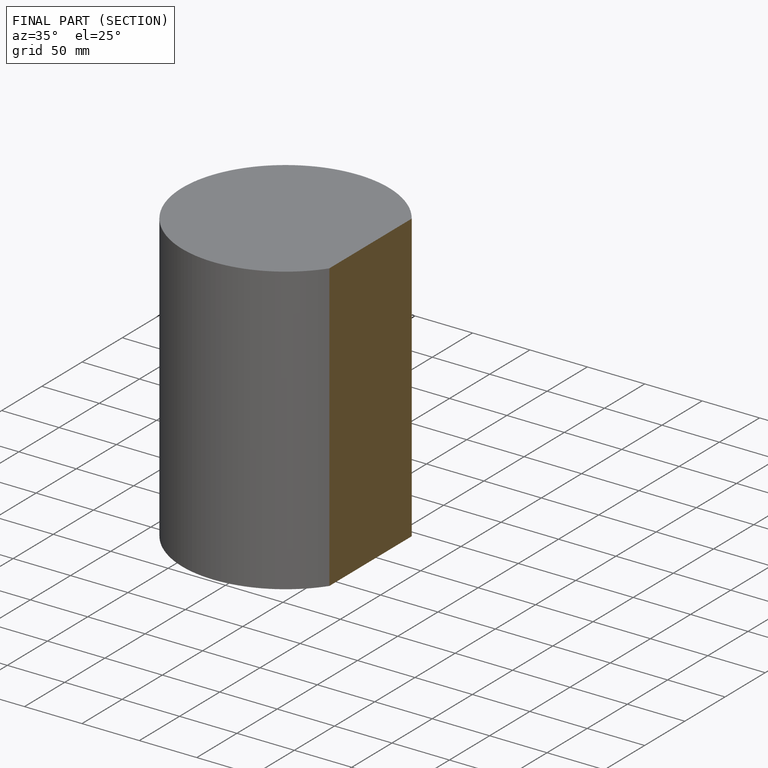
[diagram: finished part — half-section view (interior)]
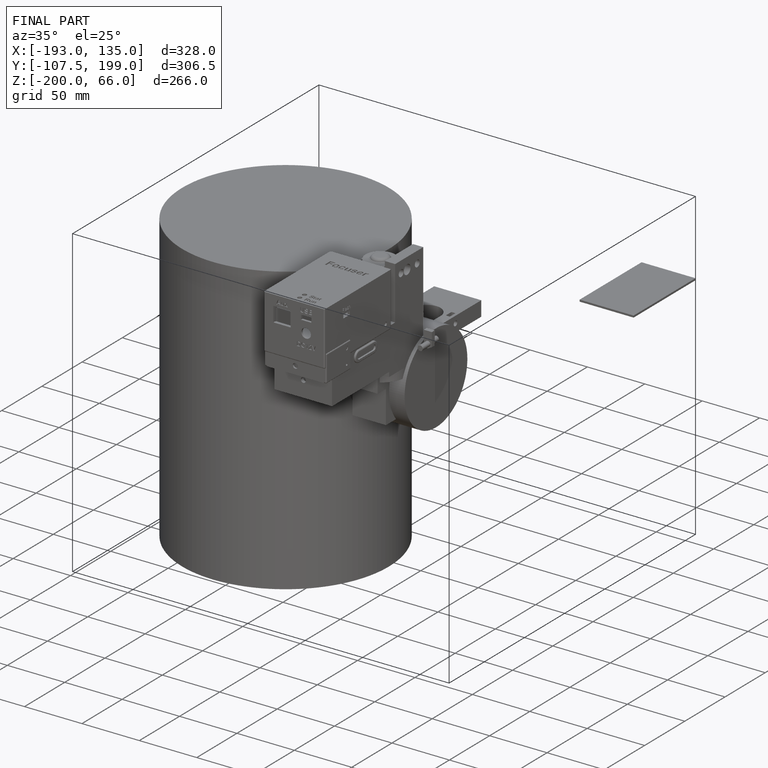
[diagram: finished part — iso view with bounding-box wireframe]
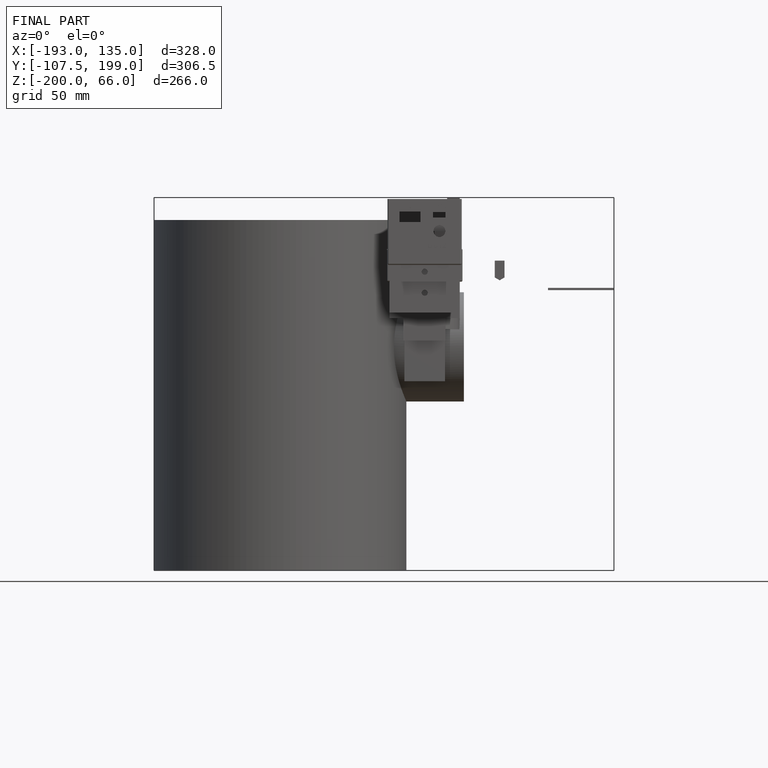
[diagram: finished part — front view with bounding-box wireframe]
